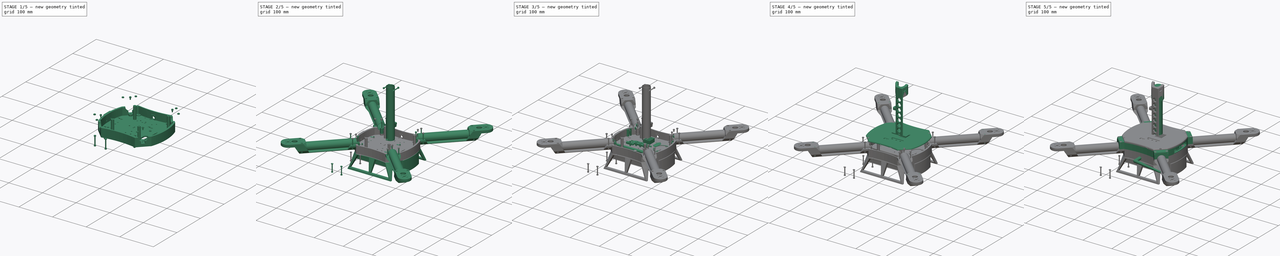
[diagram: build sequence overview — one tinted view per stage of 5, left to right]
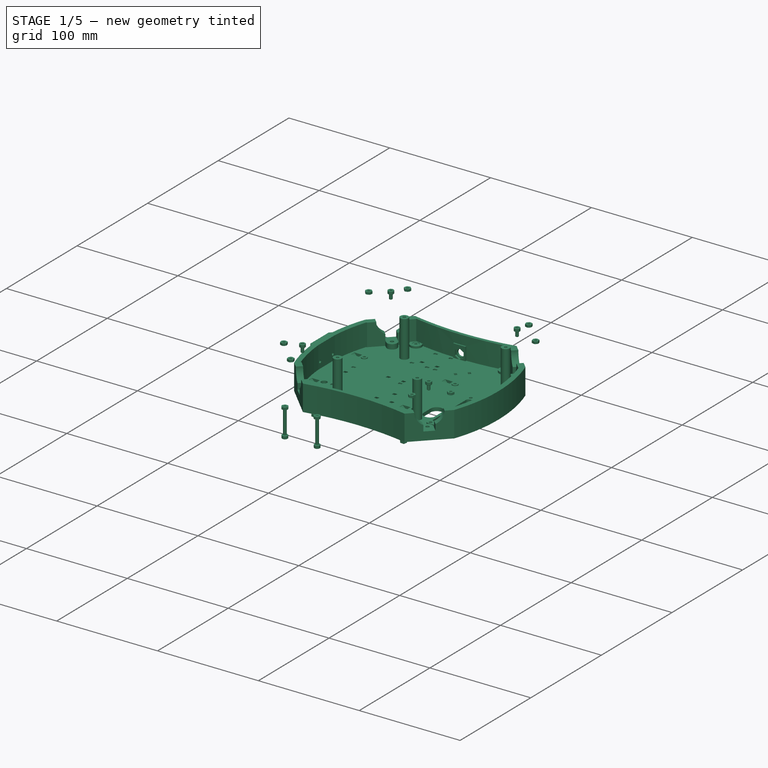
[diagram: stage 1 of 5 — iso view after this stage's code; geometry added in this stage tinted green]
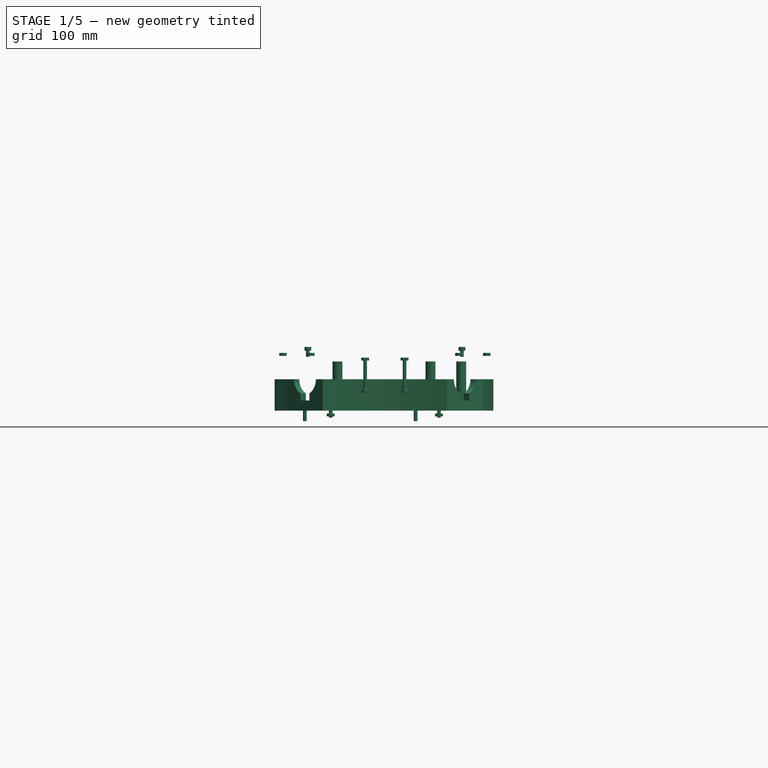
[diagram: stage 1 of 5 — front view after this stage's code; geometry added in this stage tinted green]
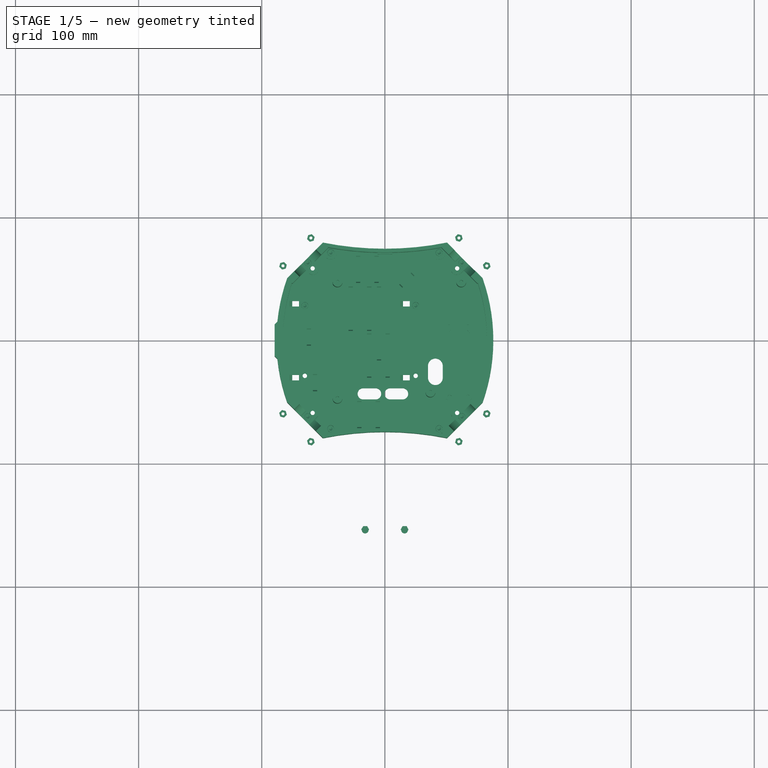
[diagram: stage 1 of 5 — top view after this stage's code; geometry added in this stage tinted green]
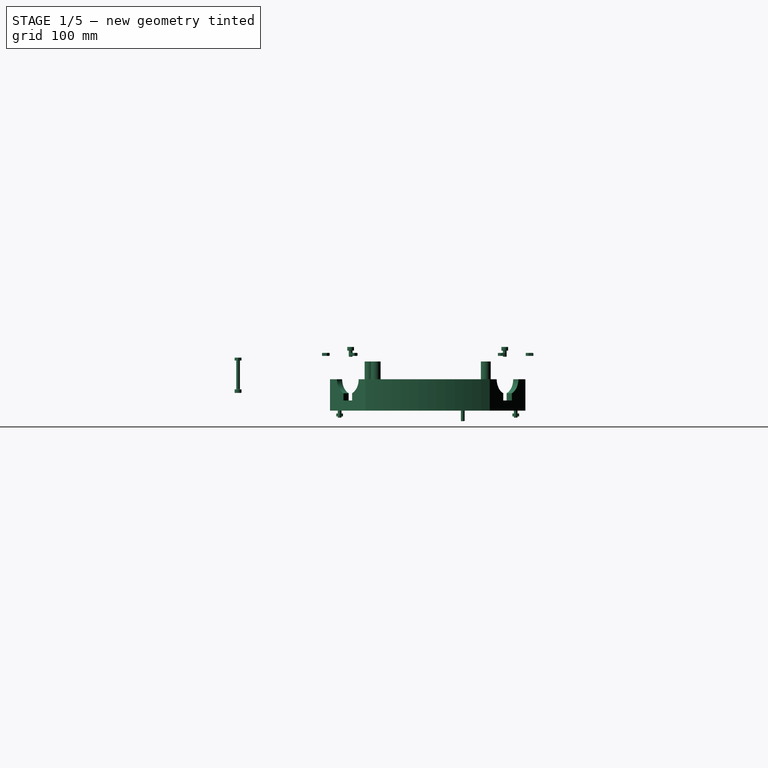
[diagram: stage 1 of 5 — right view after this stage's code; geometry added in this stage tinted green]
FCSTD DOCUMENT  (FreeCAD 0.16R6710 (Git))
Label: sto54
License: All rights reserved
LicenseURL: http://en.wikipedia.org/wiki/All_rights_reserved
objects: Sketcher::SketchObject×178, Part::Extrusion×174, Part::MultiFuse×78, Part::FeaturePython×65, Part::Cut×42, Part::Feature×30, Part::Box×16, Part::Cylinder×11, PartDesign::Pad×6, Part::Chamfer×5, Part::Loft×4, App::DocumentObjectGroup×4, Part::Cone×3, Part::Fillet×3, Part::Prism×2, Part::Revolution×2, Part::Sweep×2, Part::Sphere×1, Part::MultiCommon×1
note: 629 computed .brp shape members not serialized (recipe doc carries the construction recipe); baked Part::Feature solids carry a one-line shape summary decoded from their .brp

FEATURE [Part::FeaturePython] Screw002008  label="M3x10-Screw002"  # Fasteners workbench fastener (typed FeaturePython)
  Placement = pos=(25,28.5,-24) rot=(0,0,1;0rad)
  diameter = 4
  invert = false
  length = 3
  matchOuter = false
  offset = 0
  thread = false
  type = 15
FEATURE [Part::FeaturePython] Screw002009  label="M3x10-Screw003"  # Fasteners workbench fastener (typed FeaturePython)
  Placement = pos=(-65,28.5,-24) rot=(0,0,1;0rad)
  diameter = 4
  invert = false
  length = 3
  matchOuter = false
  offset = 0
  thread = false
  type = 15
FEATURE [Part::Feature] Array019001  label="LandingGearArray027"
  shape: bbox 152.2 x 177.1 x 58.61 mm, 114 faces, 2 solids (baked)
FEATURE [Part::FeaturePython] Screw002010  label="M3x8-Screw001"  # Fasteners workbench fastener (typed FeaturePython)
  Placement = pos=(-44,-71.5,-23.215) rot=(0,0,1;0rad)
  diameter = 4
  invert = false
  length = 2
  matchOuter = false
  offset = 0
  thread = false
  type = 15
FEATURE [Part::FeaturePython] Screw002011  label="M3x8-Screw004"  # Fasteners workbench fastener (typed FeaturePython)
  Placement = pos=(-44,71.5,-23.215) rot=(0,0,1;0rad)
  diameter = 4
  invert = false
  length = 2
  matchOuter = false
  offset = 0
  thread = false
  type = 15
FEATURE [Part::FeaturePython] Screw002012  label="M3x8-Screw002"  # Fasteners workbench fastener (typed FeaturePython)
  Placement = pos=(44,-71.5,-23.215) rot=(0,0,1;0rad)
  diameter = 4
  invert = false
  length = 2
  matchOuter = false
  offset = 0
  thread = false
  type = 15
FEATURE [Part::FeaturePython] Screw002013  label="M3x8-Screw003"  # Fasteners workbench fastener (typed FeaturePython)
  Placement = pos=(44,71.5,-23.215) rot=(0,0,1;0rad)
  diameter = 4
  invert = false
  length = 2
  matchOuter = false
  offset = 0
  thread = false
  type = 15
FEATURE [Part::MultiFuse] Fusion034004041077001008
  Shapes = -> [Screw002010,Screw002012,Screw002013,Screw002011]
FEATURE [Part::FeaturePython] Nut001005  label="M3-Nut010"  # Fasteners workbench fastener (typed FeaturePython)
  Placement = pos=(44,-71.5,28.8245) rot=(0,0,1;0rad)
  diameter = 4
  invert = false
  matchOuter = false
  offset = 0
  thread = false
  type = 1
FEATURE [Part::FeaturePython] Nut001006  label="M3-Nut011"  # Fasteners workbench fastener (typed FeaturePython)
  Placement = pos=(-44,-71.5,28.8245) rot=(0,0,1;0rad)
  diameter = 4
  invert = false
  matchOuter = false
  offset = 0
  thread = false
  type = 1
FEATURE [Part::FeaturePython] Nut001007  label="M3-Nut012"  # Fasteners workbench fastener (typed FeaturePython)
  Placement = pos=(44,71.5,28.8245) rot=(0,0,1;0rad)
  diameter = 4
  invert = false
  matchOuter = false
  offset = 0
  thread = false
  type = 1
FEATURE [Part::FeaturePython] Nut001008  label="M3-Nut013"  # Fasteners workbench fastener (typed FeaturePython)
  Placement = pos=(-44,71.5,28.8245) rot=(0,0,1;0rad)
  diameter = 4
  invert = false
  matchOuter = false
  offset = 0
  thread = false
  type = 1
FEATURE [Part::MultiFuse] Fusion034004041077001009
  Placement = pos=(0,0,-59) rot=(0,0,1;0rad)
  Shapes = -> [Nut001005,Nut001006,Nut001007,Nut001008]
FEATURE [Part::Feature] Cut009010006006006005007001  label="BodyCoverCut009010006006006005008"
  Placement = pos=(0,0,22) rot=(0,0,1;0rad)
  shape: bbox 178.7 x 158.7 x 8 mm, 176 faces (baked)
FEATURE [Part::Feature] Fillet007001  label="BatteryCoverFillet008"
  Placement = pos=(0,0,-25.5) rot=(0,0,1;0rad)
  shape: bbox 28.14 x 89.9 x 42.6 mm, 63 faces (baked)
FEATURE [Part::Feature] Fillet004001  label="LandingGearFillet005"
  Placement = pos=(0,0,0) rot=(1,0,0;1.22173rad)
  shape: bbox 152.2 x 61.4 x 17 mm, 57 faces (baked)
FEATURE [Part::Feature] Fusion034004041077001011001  label="EscPowerSqFusion034004041077001012"
  Placement = pos=(60,-17,-18) rot=(0,0,1;0rad)
  shape: bbox 23 x 63 x 33.1 mm, 1116 faces, 8 solids (baked)
FEATURE [App::DocumentObjectGroup] Group004  label="assembly"
  Group = -> [Fusion034004041014,Box001,Box002,Box004,Compound001,Fusion034004041016,Sketch017,Fusion034004041030,Revolve001,Fusion034004041077001011001]
FEATURE [Sketcher::SketchObject] Sketch306
  Placement = pos=(0,0,-22) rot=(0,0,1;0rad)
  sketch-geometry (15):
    g0: LineSegment [constr] StartX=-79.3638 StartY=50.3724 StartZ=0 EndX=-79.3638 EndY=-50.3724 EndZ=0
    g1: LineSegment StartX=-79.3638 StartY=-50.3724 StartZ=0 EndX=-50.3724 EndY=-79.3638 EndZ=0
    g2: LineSegment [constr] StartX=-50.3724 StartY=-79.3638 StartZ=0 EndX=50.3724 EndY=-79.3638 EndZ=0
    g3: LineSegment StartX=50.3724 StartY=-79.3638 StartZ=0 EndX=79.3638 EndY=-50.3724 EndZ=0
    g4: LineSegment [constr] StartX=79.3638 StartY=-50.3724 StartZ=0 EndX=79.3638 EndY=50.3724 EndZ=0
    g5: LineSegment StartX=79.3638 StartY=50.3724 StartZ=0 EndX=50.3724 EndY=79.3638 EndZ=0
    g6: LineSegment [constr] StartX=50.3724 StartY=79.3638 StartZ=0 EndX=-50.3724 EndY=79.3638 EndZ=0
    g7: LineSegment StartX=-50.3724 StartY=79.3638 StartZ=0 EndX=-79.3638 EndY=50.3724 EndZ=0
    g8: Circle [constr] CenterX=0 CenterY=0 CenterZ=0 NormalX=0 NormalY=0 NormalZ=1 Radius=94
    g9: ArcOfCircle CenterX=0 CenterY=329.364 CenterZ=0 NormalX=0 NormalY=0 NormalZ=1 Radius=255.024 StartAngle=4.51356 EndAngle=4.91122
    g10: ArcOfCircle CenterX=0 CenterY=-329.364 CenterZ=0 NormalX=0 NormalY=0 NormalZ=1 Radius=255.024 StartAngle=1.37197 EndAngle=1.76962
    g11: LineSegment [constr] StartX=0 StartY=-329.364 StartZ=0 EndX=0 EndY=-79.3638 EndZ=0
    g12: LineSegment [constr] StartX=0 StartY=329.364 StartZ=0 EndX=0 EndY=79.3638 EndZ=0
    g13: ArcOfCircle CenterX=61.9253 CenterY=0 CenterZ=0 NormalX=0 NormalY=0 NormalZ=1 Radius=150 StartAngle=2.79912 EndAngle=3.48406
    g14: ArcOfCircle CenterX=-61.9253 CenterY=0 CenterZ=0 NormalX=0 NormalY=0 NormalZ=1 Radius=150 StartAngle=5.94071 EndAngle=6.62566
  constraints (44):
    c: Coincident(g0,g1)
    c: Coincident(g1,g2)
    c: Coincident(g2,g3)
    c: Coincident(g3,g4)
    c: Coincident(g4,g5)
    c: Coincident(g5,g6)
    c: Coincident(g6,g7)
    c: Coincident(g7,g0)
    c: PointOnObject(g0,g8)
    c: PointOnObject(g1,g8)
    c: PointOnObject(g2,g8)
    c: PointOnObject(g3,g8)
    c: PointOnObject(g4,g8)
    c: PointOnObject(g5,g8)
    c: PointOnObject(g6,g8)
    c: PointOnObject(g7,g8)
    c: Coincident(g8,g-1)
    c: Horizontal(g2)
    c: Radius(g8) = 94
    c: Coincident(g9,g6)
    c: Coincident(g9,g5)
    c: Coincident(g10,g1)
    c: Coincident(g10,g2)
    c: Coincident(g11,g10)
    c: PointOnObject(g11,g2)
    c: Vertical(g11)
    c: Coincident(g12,g9)
    c: PointOnObject(g12,g6)
    c: Vertical(g12)
    c: Equal(g1,g3)
    c: Equal(g3,g5)
    c: Equal(g5,g7)
    c: Equal(g0,g2)
    c: Equal(g2,g4)
    c: Equal(g4,g6)
    c: Distance(g3) = 41
    c: Distance(g12) = 250
    c: Equal(g11,g12)
    c: Coincident(g13,g0)
    c: Coincident(g13,g0)
    c: Coincident(g14,g4)
    c: Coincident(g14,g3)
    c: Equal(g13,g14)
    c: Radius(g13) = 150
FEATURE [Part::Extrusion] Extrude136087
  Base = -> Sketch306
  Dir = (0,0,-3.5)
  Solid = true
FEATURE [Sketcher::SketchObject] Sketch307
  Placement = pos=(0,0,0) rot=(1,0,0;1.5708rad)
  sketch-geometry (4):
    g0: LineSegment StartX=20.5 StartY=-23 StartZ=0 EndX=20.5 EndY=0 EndZ=0
    g1: LineSegment StartX=20.5 StartY=0 StartZ=0 EndX=-20.5 EndY=0 EndZ=0
    g2: LineSegment StartX=-20.5 StartY=0 StartZ=0 EndX=-20.5 EndY=-23 EndZ=0
    g3: LineSegment StartX=-20.5 StartY=-23 StartZ=0 EndX=20.5 EndY=-23 EndZ=0
  constraints (12):
    c: Vertical(g0)
    c: Coincident(g0,g1)
    c: Horizontal(g1)
    c: Coincident(g1,g2)
    c: Vertical(g2)
    c: Coincident(g2,g3)
    c: Horizontal(g3)
    c: DistanceX(g2,g0) = 41
    c: DistanceY(g0,g0) = 23
    c: Symmetric(g0,g2,g-2)
    c: Coincident(g3,g0)
    c: PointOnObject(g1,g-1)
FEATURE [Part::Extrusion] Extrude136088
  Base = -> Sketch307
  Dir = (0,-11,0)
  Placement = pos=(0,-83,0) rot=(0,0,1;0rad)
  Solid = true
FEATURE [Part::FeaturePython] Array019002  # Draft array (typed FeaturePython)
  Angle = 360
  ArrayType = 1
  Axis = (0,0,1)
  Base = -> Extrude136088
  Center = (0,0,0)
  Fuse = false
  IntervalAxis = (0,0,0)
  IntervalX = (1,0,0)
  IntervalY = (0,1,0)
  IntervalZ = (0,0,0)
  NumberPolar = 4
  NumberX = 2
  NumberY = 2
  NumberZ = 1
  Placement = pos=(0,0,0) rot=(0,0,1;0.785398rad)
FEATURE [Sketcher::SketchObject] Sketch308
  Placement = pos=(0,0,0) rot=(1,0,0;1.5708rad)
  sketch-geometry (11):
    g0: LineSegment StartX=12.4995 StartY=0 StartZ=0 EndX=20.5 EndY=0 EndZ=0
    g1: LineSegment StartX=20.5 StartY=0 StartZ=0 EndX=20.5 EndY=-23 EndZ=0
    g2: LineSegment StartX=-20.5 StartY=-23 StartZ=0 EndX=-20.5 EndY=0 EndZ=0
    g3: LineSegment StartX=-20.5 StartY=0 StartZ=0 EndX=-12.4995 EndY=0 EndZ=0
    g4: LineSegment StartX=-20.5 StartY=-23 StartZ=0 EndX=-5 EndY=-23 EndZ=0
    g5: LineSegment StartX=20.5 StartY=-23 StartZ=0 EndX=5 EndY=-23 EndZ=0
    g6: LineSegment StartX=-5 StartY=-23 StartZ=0 EndX=-5 EndY=-11.3474 EndZ=0
    g7: LineSegment StartX=5 StartY=-23 StartZ=0 EndX=5 EndY=-11.3474 EndZ=0
    g8: ArcOfCircle CenterX=0 CenterY=0.109082 CenterZ=0 NormalX=0 NormalY=0 NormalZ=1 Radius=12.5 StartAngle=3.15032 EndAngle=4.30087
    g9: ArcOfCircle [constr] CenterX=0 CenterY=0.109082 CenterZ=0 NormalX=0 NormalY=0 NormalZ=1 Radius=12.5 StartAngle=3.15032 EndAngle=6.27446
    g10: ArcOfCircle CenterX=0 CenterY=0.109082 CenterZ=0 NormalX=0 NormalY=0 NormalZ=1 Radius=12.5 StartAngle=5.12391 EndAngle=6.27446
  constraints (33):
    c: Horizontal(g0)
    c: Coincident(g0,g1)
    c: Vertical(g1)
    c: Vertical(g2)
    c: Horizontal(g3)
    c: Equal(g0,g3)
    c: DistanceY(g1,g1) = 23
    c: DistanceX(g2,g1) = 41
    c: Equal(g1,g2)
    c: Symmetric(g2,g1,g-2)
    c: Coincident(g4,g2)
    c: Horizontal(g4)
    c: Coincident(g5,g1)
    c: Horizontal(g5)
    c: Symmetric(g4,g5,g-2)
    c: DistanceX(g4,g5) = 10
    c: Coincident(g6,g4)
    c: Vertical(g6)
    c: Coincident(g7,g5)
    c: Vertical(g7)
    c: Equal(g6,g7)
    c: Coincident(g8,g3)
    c: Coincident(g8,g6)
    c: Coincident(g10,g0)
    c: Coincident(g10,g7)
    c: Coincident(g3,g2)
    c: Coincident(g8,g10)
    c: Coincident(g9,g3)
    c: Coincident(g9,g0)
    c: Coincident(g8,g9)
    c: Angle(g9) = 3.12414
    c: Radius(g9) = 12.5
    c: PointOnObject(g0,g-1)
FEATURE [Part::Extrusion] Extrude136089
  Base = -> Sketch308
  Dir = (0,-6,0)
  Placement = pos=(0,-85.75,0) rot=(0,0,1;0rad)
  Solid = true
FEATURE [Part::FeaturePython] Array019003  # Draft array (typed FeaturePython)
  Angle = 360
  ArrayType = 1
  Axis = (0,0,1)
  Base = -> Extrude136089
  Center = (0,0,0)
  Fuse = false
  IntervalAxis = (0,0,0)
  IntervalX = (1,0,0)
  IntervalY = (0,1,0)
  IntervalZ = (0,0,0)
  NumberPolar = 4
  NumberX = 2
  NumberY = 2
  NumberZ = 1
  Placement = pos=(0,0,0) rot=(0,0,1;0.785398rad)
FEATURE [Sketcher::SketchObject] Sketch309
  sketch-geometry (5):
    g0: LineSegment StartX=-5 StartY=0 StartZ=0 EndX=-5 EndY=9 EndZ=0
    g1: LineSegment StartX=5 StartY=0 StartZ=0 EndX=5 EndY=9 EndZ=0
    g2: LineSegment StartX=-5 StartY=0 StartZ=0 EndX=5 EndY=0 EndZ=0
    g3: ArcOfCircle CenterX=0 CenterY=9 CenterZ=0 NormalX=0 NormalY=0 NormalZ=1 Radius=5 StartAngle=0 EndAngle=3.14159
    g4: LineSegment [constr] StartX=-5 StartY=9 StartZ=0 EndX=5 EndY=9 EndZ=0
  constraints (14):
    c: Vertical(g0)
    c: Vertical(g1)
    c: DistanceY(g1,g1) = 9
    c: Coincident(g2,g0)
    c: Coincident(g2,g1)
    c: PointOnObject(g0,g-1)
    c: Symmetric(g0,g1,g-2)
    c: DistanceX(g2,g2) = 10
    c: Coincident(g3,g1)
    c: Coincident(g3,g0)
    c: Coincident(g4,g0)
    c: Coincident(g4,g1)
    c: Horizontal(g4)
    c: PointOnObject(g3,g4)
FEATURE [Part::Extrusion] Extrude136090
  Base = -> Sketch309
  Dir = (0,0,4.75)
  Placement = pos=(0,-91.75,-22) rot=(0,0,1;0rad)
  Solid = true
FEATURE [Part::FeaturePython] Array019004  # Draft array (typed FeaturePython)
  Angle = 360
  ArrayType = 1
  Axis = (0,0,1)
  Base = -> Extrude136090
  Center = (0,0,0)
  Fuse = false
  IntervalAxis = (0,0,0)
  IntervalX = (1,0,0)
  IntervalY = (0,1,0)
  IntervalZ = (0,0,0)
  NumberPolar = 4
  NumberX = 2
  NumberY = 2
  NumberZ = 1
  Placement = pos=(0,0,0) rot=(0,0,1;0.785398rad)
FEATURE [Sketcher::SketchObject] Sketch310
  Placement = pos=(0,0,14.4) rot=(0,0,1;0rad)
  sketch-geometry (9):
    g0: Circle CenterX=62 CenterY=47.25 CenterZ=0 NormalX=0 NormalY=0 NormalZ=1 Radius=1.45
    g1: Circle CenterX=-38.5 CenterY=47.25 CenterZ=0 NormalX=0 NormalY=0 NormalZ=1 Radius=1.45
    g2: LineSegment [constr] StartX=-38.5 StartY=47.25 StartZ=0 EndX=62 EndY=47.25 EndZ=0
    g3: Circle CenterX=-38.5 CenterY=-47.25 CenterZ=0 NormalX=0 NormalY=0 NormalZ=1 Radius=1.45
    g4: LineSegment [constr] StartX=-38.5 StartY=47.25 StartZ=0 EndX=-38.5 EndY=-47.25 EndZ=0
    g5: LineSegment [constr] StartX=-38.5 StartY=-47.25 StartZ=0 EndX=62 EndY=-47.25 EndZ=0
    g6: LineSegment [constr] StartX=62 StartY=-47.25 StartZ=0 EndX=62 EndY=47.25 EndZ=0
    g7: LineSegment [constr] StartX=37 StartY=-47.25 StartZ=0 EndX=37 EndY=-42.25 EndZ=0
    g8: Circle CenterX=37 CenterY=-42.25 CenterZ=0 NormalX=0 NormalY=0 NormalZ=1 Radius=1.45
  constraints (24):
    c: Radius(g1) = 1.45
    c: Horizontal(g2)
    c: DistanceX(g2,g2) = 100.5
    c: Vertical(g4)
    c: DistanceY(g4,g4) = 94.5
    c: Horizontal(g5)
    c: Vertical(g6)
    c: PointOnObject(g7,g5)
    c: Vertical(g7)
    c: DistanceY(g7,g7) = 5
    c: Coincident(g8,g7)
    c: Equal(g3,g1)
    c: Equal(g1,g0)
    c: Equal(g0,g8)
    c: Coincident(g0,g2)
    c: DistanceX(g-1,g0) = 62
    c: Coincident(g6,g0)
    c: Coincident(g6,g5)
    c: Coincident(g4,g2)
    c: Coincident(g1,g2)
    c: Coincident(g3,g4)
    c: Coincident(g5,g3)
    c: DistanceX(g3,g7) = 75.5
    c: Symmetric(g3,g1,g-1)
FEATURE [Part::Extrusion] Extrude136091
  Base = -> Sketch310
  Dir = (0,0,-10)
  Solid = true
FEATURE [Sketcher::SketchObject] Sketch311
  Placement = pos=(0,0,14.4) rot=(0,0,1;0rad)
  sketch-geometry (9):
    g0: Circle CenterX=62 CenterY=47.25 CenterZ=0 NormalX=0 NormalY=0 NormalZ=1 Radius=4
    g1: Circle CenterX=-38.5 CenterY=47.25 CenterZ=0 NormalX=0 NormalY=0 NormalZ=1 Radius=4
    g2: LineSegment [constr] StartX=-38.5 StartY=47.25 StartZ=0 EndX=62 EndY=47.25 EndZ=0
    g3: Circle CenterX=-38.5 CenterY=-47.25 CenterZ=0 NormalX=0 NormalY=0 NormalZ=1 Radius=4
    g4: LineSegment [constr] StartX=-38.5 StartY=47.25 StartZ=0 EndX=-38.5 EndY=-47.25 EndZ=0
    g5: LineSegment [constr] StartX=-38.5 StartY=-47.25 StartZ=0 EndX=62 EndY=-47.25 EndZ=0
    g6: LineSegment [constr] StartX=62 StartY=-47.25 StartZ=0 EndX=62 EndY=47.25 EndZ=0
    g7: LineSegment [constr] StartX=37 StartY=-47.25 StartZ=0 EndX=37 EndY=-42.25 EndZ=0
    g8: Circle CenterX=37 CenterY=-42.25 CenterZ=0 NormalX=0 NormalY=0 NormalZ=1 Radius=4
  constraints (24):
    c: Radius(g1) = 4
    c: Horizontal(g2)
    c: DistanceX(g2,g2) = 100.5
    c: Vertical(g4)
    c: DistanceY(g4,g4) = 94.5
    c: Horizontal(g5)
    c: Vertical(g6)
    c: PointOnObject(g7,g5)
    c: Vertical(g7)
    c: DistanceY(g7,g7) = 5
    c: Coincident(g8,g7)
    c: Equal(g3,g1)
    c: Equal(g1,g0)
    c: Equal(g0,g8)
    c: Coincident(g0,g2)
    c: DistanceX(g-1,g0) = 62
    c: Coincident(g6,g0)
    c: Coincident(g6,g5)
    c: Coincident(g4,g2)
    c: Coincident(g1,g2)
    c: Coincident(g3,g4)
    c: Coincident(g5,g3)
    c: DistanceX(g3,g7) = 75.5
    c: Symmetric(g3,g1,g-1)
FEATURE [Part::Extrusion] Extrude136092
  Base = -> Sketch311
  Dir = (0,0,-38)
  Solid = true
FEATURE [Part::Cut] Cut009010006006006005025002
  Base = -> Extrude136092
  Tool = -> Extrude136091
FEATURE [Sketcher::SketchObject] Sketch312
  sketch-geometry (8):
    g0: LineSegment StartX=0 StartY=13 StartZ=0 EndX=0 EndY=-13 EndZ=0
    g1: LineSegment StartX=-7 StartY=-13 StartZ=0 EndX=-7 EndY=13 EndZ=0
    g2: LineSegment StartX=-7 StartY=13 StartZ=0 EndX=-3.5 EndY=16.5 EndZ=0
    g3: LineSegment StartX=-3.5 StartY=16.5 StartZ=0 EndX=0 EndY=13 EndZ=0
    g4: LineSegment StartX=-7 StartY=-13 StartZ=0 EndX=-3.5 EndY=-16.5 EndZ=0
    g5: LineSegment StartX=-3.5 StartY=-16.5 StartZ=0 EndX=0 EndY=-13 EndZ=0
    g6: LineSegment [constr] StartX=-7 StartY=13 StartZ=0 EndX=0 EndY=13 EndZ=0
    g7: LineSegment [constr] StartX=-7 StartY=-13 StartZ=0 EndX=0 EndY=-13 EndZ=0
  constraints (22):
    c: Vertical(g0)
    c: Vertical(g1)
    c: Symmetric(g1,g1,g-1)
    c: DistanceY(g1,g1) = 26
    c: DistanceX(g1,g0) = 7
    c: PointOnObject(g-1,g0)
    c: Coincident(g2,g1)
    c: Coincident(g2,g3)
    c: Coincident(g1,g4)
    c: Coincident(g4,g5)
    c: Coincident(g5,g0)
    c: Equal(g4,g5)
    c: Equal(g5,g2)
    c: Equal(g2,g3)
    c: Coincident(g3,g0)
    c: Equal(g0,g1)
    c: Coincident(g6,g1)
    c: Coincident(g6,g0)
    c: Horizontal(g6)
    c: Coincident(g7,g1)
    c: Coincident(g7,g0)
    c: Angle(g4,g1) = 2.35619
FEATURE [Part::Extrusion] Extrude136093
  Base = -> Sketch312
  Dir = (0,0,-25.5)
  Placement = pos=(-82.5,0,0) rot=(0,0,1;0rad)
  Solid = true
FEATURE [Part::Box] Box024  label="Cube021"
  Height = 13
  Length = 12
  Placement = pos=(-6,70,-22) rot=(0,0,1;0rad)
  Width = 3
FEATURE [Sketcher::SketchObject] Sketch313
  sketch-geometry (15):
    g0: LineSegment [constr] StartX=-79.3638 StartY=50.3724 StartZ=0 EndX=-79.3638 EndY=-50.3724 EndZ=0
    g1: LineSegment StartX=-79.3638 StartY=-50.3724 StartZ=0 EndX=-50.3724 EndY=-79.3638 EndZ=0
    g2: LineSegment [constr] StartX=-50.3724 StartY=-79.3638 StartZ=0 EndX=50.3724 EndY=-79.3638 EndZ=0
    g3: LineSegment StartX=50.3724 StartY=-79.3638 StartZ=0 EndX=79.3638 EndY=-50.3724 EndZ=0
    g4: LineSegment [constr] StartX=79.3638 StartY=-50.3724 StartZ=0 EndX=79.3638 EndY=50.3724 EndZ=0
    g5: LineSegment StartX=79.3638 StartY=50.3724 StartZ=0 EndX=50.3724 EndY=79.3638 EndZ=0
    g6: LineSegment [constr] StartX=50.3724 StartY=79.3638 StartZ=0 EndX=-50.3724 EndY=79.3638 EndZ=0
    g7: LineSegment StartX=-50.3724 StartY=79.3638 StartZ=0 EndX=-79.3638 EndY=50.3724 EndZ=0
    g8: Circle [constr] CenterX=0 CenterY=0 CenterZ=0 NormalX=0 NormalY=0 NormalZ=1 Radius=94
    g9: ArcOfCircle CenterX=0 CenterY=329.364 CenterZ=0 NormalX=0 NormalY=0 NormalZ=1 Radius=255.024 StartAngle=4.51356 EndAngle=4.91122
    g10: ArcOfCircle CenterX=0 CenterY=-329.364 CenterZ=0 NormalX=0 NormalY=0 NormalZ=1 Radius=255.024 StartAngle=1.37197 EndAngle=1.76962
    g11: LineSegment [constr] StartX=0 StartY=-329.364 StartZ=0 EndX=0 EndY=-79.3638 EndZ=0
    g12: LineSegment [constr] StartX=0 StartY=329.364 StartZ=0 EndX=0 EndY=79.3638 EndZ=0
    g13: ArcOfCircle CenterX=61.9253 CenterY=0 CenterZ=0 NormalX=0 NormalY=0 NormalZ=1 Radius=150 StartAngle=2.79912 EndAngle=3.48406
    g14: ArcOfCircle CenterX=-61.9253 CenterY=0 CenterZ=0 NormalX=0 NormalY=0 NormalZ=1 Radius=150 StartAngle=5.94071 EndAngle=6.62566
  constraints (44):
    c: Coincident(g0,g1)
    c: Coincident(g1,g2)
    c: Coincident(g2,g3)
    c: Coincident(g3,g4)
    c: Coincident(g4,g5)
    c: Coincident(g5,g6)
    c: Coincident(g6,g7)
    c: Coincident(g7,g0)
    c: PointOnObject(g0,g8)
    c: PointOnObject(g1,g8)
    c: PointOnObject(g2,g8)
    c: PointOnObject(g3,g8)
    c: PointOnObject(g4,g8)
    c: PointOnObject(g5,g8)
    c: PointOnObject(g6,g8)
    c: PointOnObject(g7,g8)
    c: Coincident(g8,g-1)
    c: Horizontal(g2)
    c: Radius(g8) = 94
    c: Coincident(g9,g6)
    c: Coincident(g9,g5)
    c: Coincident(g10,g1)
    c: Coincident(g10,g2)
    c: Coincident(g11,g10)
    c: PointOnObject(g11,g2)
    c: Vertical(g11)
    c: Coincident(g12,g9)
    c: PointOnObject(g12,g6)
    c: Vertical(g12)
    c: Equal(g1,g3)
    c: Equal(g3,g5)
    c: Equal(g5,g7)
    c: Equal(g0,g2)
    c: Equal(g2,g4)
    c: Equal(g4,g6)
    c: Distance(g3) = 41
    c: Distance(g12) = 250
    c: Equal(g11,g12)
    c: Coincident(g13,g0)
    c: Coincident(g13,g0)
    c: Coincident(g14,g4)
    c: Coincident(g14,g3)
    c: Equal(g13,g14)
    c: Radius(g13) = 150
FEATURE [Sketcher::SketchObject] Sketch314
  sketch-geometry (15):
    g0: LineSegment [constr] StartX=-75.5543 StartY=46.5629 StartZ=0 EndX=-75.5543 EndY=-46.5629 EndZ=0
    g1: LineSegment StartX=-75.5543 StartY=-46.5629 StartZ=0 EndX=-46.5629 EndY=-75.5543 EndZ=0
    g2: LineSegment [constr] StartX=-46.5629 StartY=-75.5543 StartZ=0 EndX=46.5629 EndY=-75.5543 EndZ=0
    g3: LineSegment StartX=46.5629 StartY=-75.5543 StartZ=0 EndX=75.5543 EndY=-46.5629 EndZ=0
    g4: LineSegment [constr] StartX=75.5543 StartY=-46.5629 StartZ=0 EndX=75.5543 EndY=46.5629 EndZ=0
    g5: LineSegment StartX=75.5543 StartY=46.5629 StartZ=0 EndX=46.5629 EndY=75.5543 EndZ=0
    g6: LineSegment [constr] StartX=46.5629 StartY=75.5543 StartZ=0 EndX=-46.5629 EndY=75.5543 EndZ=0
    g7: LineSegment StartX=-46.5629 StartY=75.5543 StartZ=0 EndX=-75.5543 EndY=46.5629 EndZ=0
    g8: Circle [constr] CenterX=0 CenterY=0 CenterZ=0 NormalX=0 NormalY=0 NormalZ=1 Radius=88.75
    g9: ArcOfCircle CenterX=0 CenterY=325.554 CenterZ=0 NormalX=0 NormalY=0 NormalZ=1 Radius=254.299 StartAngle=4.52825 EndAngle=4.89653
    g10: ArcOfCircle CenterX=0 CenterY=-325.554 CenterZ=0 NormalX=0 NormalY=0 NormalZ=1 Radius=254.299 StartAngle=1.38665 EndAngle=1.75494
    g11: LineSegment [constr] StartX=0 StartY=-325.554 StartZ=0 EndX=0 EndY=-75.5543 EndZ=0
    g12: LineSegment [constr] StartX=0 StartY=325.554 StartZ=0 EndX=0 EndY=75.5543 EndZ=0
    g13: ArcOfCircle CenterX=67.0356 CenterY=0 CenterZ=0 NormalX=0 NormalY=0 NormalZ=1 Radius=150 StartAngle=2.82596 EndAngle=3.45723
    g14: ArcOfCircle CenterX=-67.0356 CenterY=0 CenterZ=0 NormalX=0 NormalY=0 NormalZ=1 Radius=150 StartAngle=5.96755 EndAngle=6.59882
  constraints (44):
    c: Coincident(g0,g1)
    c: Coincident(g1,g2)
    c: Coincident(g2,g3)
    c: Coincident(g3,g4)
    c: Coincident(g4,g5)
    c: Coincident(g5,g6)
    c: Coincident(g6,g7)
    c: Coincident(g7,g0)
    c: PointOnObject(g0,g8)
    c: PointOnObject(g1,g8)
    c: PointOnObject(g2,g8)
    c: PointOnObject(g3,g8)
    c: PointOnObject(g4,g8)
    c: PointOnObject(g5,g8)
    c: PointOnObject(g6,g8)
    c: PointOnObject(g7,g8)
    c: Coincident(g8,g-1)
    c: Horizontal(g2)
    c: Radius(g8) = 88.75
    c: Coincident(g9,g6)
    c: Coincident(g9,g5)
    c: Coincident(g10,g1)
    c: Coincident(g10,g2)
    c: Coincident(g11,g10)
    c: PointOnObject(g11,g2)
    c: Vertical(g11)
    c: Coincident(g12,g9)
    c: PointOnObject(g12,g6)
    c: Vertical(g12)
    c: Equal(g1,g3)
    c: Equal(g3,g5)
    c: Equal(g5,g7)
    c: Equal(g0,g2)
    c: Equal(g2,g4)
    c: Equal(g4,g6)
    c: Distance(g3) = 41
    c: Distance(g12) = 250
    c: Equal(g11,g12)
    c: Coincident(g13,g0)
    c: Coincident(g13,g0)
    c: Coincident(g14,g4)
    c: Coincident(g14,g3)
    c: Equal(g13,g14)
    c: Radius(g13) = 150
FEATURE [Part::Extrusion] Extrude136094
  Base = -> Sketch313
  Dir = (0,0,-23)
  Solid = true
FEATURE [Part::Extrusion] Extrude136095
  Base = -> Sketch314
  Dir = (0,0,-23)
  Solid = true
FEATURE [Part::MultiFuse] Fusion034004041077001011002
  Shapes = -> [Extrude136095,Array019002]
FEATURE [Part::Cut] Cut009010006006006005025003
  Base = -> Extrude136094
  Tool = -> Fusion034004041077001011002
FEATURE [Sketcher::SketchObject] Sketch315
  sketch-geometry (1):
    g0: Circle CenterX=0 CenterY=0 CenterZ=0 NormalX=0 NormalY=0 NormalZ=1 Radius=1.75
  constraints (2):
    c: Radius(g0) = 1.75
    c: Coincident(g0,g-1)
FEATURE [Part::Extrusion] Extrude136096
  Base = -> Sketch315
  Dir = (0,0,20)
  Solid = true
FEATURE [Sketcher::SketchObject] Sketch316
  sketch-geometry (7):
    g0: LineSegment StartX=3.25 StartY=0 StartZ=0 EndX=1.625 EndY=2.81458 EndZ=0
    g1: LineSegment StartX=1.625 StartY=2.81458 StartZ=0 EndX=-1.625 EndY=2.81458 EndZ=0
    g2: LineSegment StartX=-1.625 StartY=2.81458 StartZ=0 EndX=-3.25 EndY=0 EndZ=0
    g3: LineSegment StartX=-3.25 StartY=0 StartZ=0 EndX=-1.625 EndY=-2.81458 EndZ=0
    g4: LineSegment StartX=-1.625 StartY=-2.81458 StartZ=0 EndX=1.625 EndY=-2.81458 EndZ=0
    g5: LineSegment StartX=1.625 StartY=-2.81458 StartZ=0 EndX=3.25 EndY=0 EndZ=0
    g6: Circle [constr] CenterX=0 CenterY=0 CenterZ=0 NormalX=0 NormalY=0 NormalZ=1 Radius=3.25
  constraints (16):
    c: Coincident(g0,g1)
    c: Coincident(g1,g2)
    c: Coincident(g2,g3)
    c: Coincident(g3,g4)
    c: Coincident(g4,g5)
    c: Coincident(g5,g0)
    c: Equal(g0, g1-g5) x5
    c: PointOnObject(g0,g6)
    c: PointOnObject(g1,g6)
    c: PointOnObject(g2,g6)
    c: PointOnObject(g3,g6)
    c: PointOnObject(g4,g6)
    c: PointOnObject(g5,g6)
    c: Radius(g6) = 3.25
    c: Coincident(g6,g-1)
    c: Horizontal(g1)
FEATURE [Part::Extrusion] Extrude136097
  Base = -> Sketch316
  Dir = (0,0,7)
  Solid = true
FEATURE [Sketcher::SketchObject] Sketch318
  sketch-geometry (8):
    g0: Circle CenterX=7.5 CenterY=28.5 CenterZ=0 NormalX=0 NormalY=0 NormalZ=1 Radius=1.5
    g1: Circle CenterX=-7.5 CenterY=28.5 CenterZ=0 NormalX=0 NormalY=0 NormalZ=1 Radius=1.5
    g2: Circle CenterX=-7.5 CenterY=-28.5 CenterZ=0 NormalX=0 NormalY=0 NormalZ=1 Radius=1.5
    g3: Circle CenterX=7.5 CenterY=-28.5 CenterZ=0 NormalX=0 NormalY=0 NormalZ=1 Radius=1.5
    g4: LineSegment [constr] StartX=-7.5 StartY=28.5 StartZ=0 EndX=7.5 EndY=28.5 EndZ=0
    g5: LineSegment [constr] StartX=7.5 StartY=28.5 StartZ=0 EndX=7.5 EndY=-28.5 EndZ=0
    g6: LineSegment [constr] StartX=7.5 StartY=-28.5 StartZ=0 EndX=-7.5 EndY=-28.5 EndZ=0
    g7: LineSegment [constr] StartX=-7.5 StartY=-28.5 StartZ=0 EndX=-7.5 EndY=28.5 EndZ=0
  constraints (20):
    c: Radius(g1) = 1.5
    c: Equal(g1,g0)
    c: Equal(g0,g3)
    c: Equal(g3,g2)
    c: Coincident(g4,g5)
    c: Coincident(g5,g6)
    c: Coincident(g6,g7)
    c: Coincident(g7,g4)
    c: Horizontal(g4)
    c: Horizontal(g6)
    c: Vertical(g5)
    c: Vertical(g7)
    c: Symmetric(g4,g5,g-1)
    c: Symmetric(g6,g5,g-2)
    c: DistanceY(g5,g5) = 57
    c: DistanceX(g4,g4) = 15
    c: Coincident(g1,g4)
    c: Coincident(g0,g4)
    c: Coincident(g3,g5)
    c: Coincident(g2,g6)
FEATURE [Part::Extrusion] Extrude136099
  Base = -> Sketch318
  Dir = (0,0,10)
  Placement = pos=(60,-17,-24) rot=(0,0,1;0rad)
  Solid = true
FEATURE [Sketcher::SketchObject] Sketch319
  Placement = pos=(0,0,0) rot=(1,0,0;1.5708rad)
  sketch-geometry (10):
    g0: LineSegment StartX=-17.134 StartY=0 StartZ=0 EndX=17.134 EndY=0 EndZ=0
    g1: LineSegment StartX=17.134 StartY=0 StartZ=0 EndX=18 EndY=1.5 EndZ=0
    g2: LineSegment StartX=18 StartY=1.5 StartZ=0 EndX=18 EndY=3.5 EndZ=0
    g3: LineSegment StartX=18 StartY=3.5 StartZ=0 EndX=16 EndY=3.5 EndZ=0
    g4: LineSegment StartX=16 StartY=3.5 StartZ=0 EndX=14.8453 EndY=1.5 EndZ=0
    g5: LineSegment StartX=14.8453 StartY=1.5 StartZ=0 EndX=-14.8453 EndY=1.5 EndZ=0
    g6: LineSegment StartX=-14.8453 StartY=1.5 StartZ=0 EndX=-16 EndY=3.5 EndZ=0
    g7: LineSegment StartX=-16 StartY=3.5 StartZ=0 EndX=-18 EndY=3.5 EndZ=0
    g8: LineSegment StartX=-18 StartY=3.5 StartZ=0 EndX=-18 EndY=1.5 EndZ=0
    g9: LineSegment StartX=-18 StartY=1.5 StartZ=0 EndX=-17.134 EndY=0 EndZ=0
  constraints (29):
    c: Horizontal(g0)
    c: Coincident(g0,g1)
    c: Coincident(g1,g2)
    c: Coincident(g2,g3)
    c: Coincident(g3,g4)
    c: Coincident(g4,g5)
    c: Horizontal(g5)
    c: Coincident(g5,g6)
    c: Coincident(g6,g7)
    c: Coincident(g7,g8)
    c: Vertical(g8)
    c: Coincident(g8,g9)
    c: Coincident(g9,g0)
    c: Horizontal(g7)
    c: Horizontal(g3)
    c: Vertical(g2)
    c: Parallel(g9,g6)
    c: Parallel(g4,g1)
    c: Angle(g5,g6) = 2.0944
    c: Angle(g4,g5) = 2.0944
    c: Equal(g7,g3)
    c: Equal(g9,g1)
    c: DistanceY(g9,g9) = 1.5
    c: DistanceY(g8,g8) = 2
    c: DistanceX(g7,g7) = 2
    c: DistanceY(g6,g6) = 2
    c: Equal(g6,g4)
    c: DistanceX(g6,g3) = 32
    c: Symmetric(g0,g0,g-1)
FEATURE [Sketcher::SketchObject] Sketch320
  Placement = pos=(0,0,0) rot=(1,0,0;1.5708rad)
  sketch-geometry (10):
    g0: LineSegment StartX=-10.134 StartY=0 StartZ=0 EndX=10.134 EndY=0 EndZ=0
    g1: LineSegment StartX=10.134 StartY=0 StartZ=0 EndX=11 EndY=1.5 EndZ=0
    g2: LineSegment StartX=11 StartY=1.5 StartZ=0 EndX=11 EndY=3.5 EndZ=0
    g3: LineSegment StartX=11 StartY=3.5 StartZ=0 EndX=9 EndY=3.5 EndZ=0
    g4: LineSegment StartX=9 StartY=3.5 StartZ=0 EndX=7.8453 EndY=1.5 EndZ=0
    g5: LineSegment StartX=7.8453 StartY=1.5 StartZ=0 EndX=-7.8453 EndY=1.5 EndZ=0
    g6: LineSegment StartX=-7.8453 StartY=1.5 StartZ=0 EndX=-9 EndY=3.5 EndZ=0
    g7: LineSegment StartX=-9 StartY=3.5 StartZ=0 EndX=-11 EndY=3.5 EndZ=0
    g8: LineSegment StartX=-11 StartY=3.5 StartZ=0 EndX=-11 EndY=1.5 EndZ=0
    g9: LineSegment StartX=-11 StartY=1.5 StartZ=0 EndX=-10.134 EndY=0 EndZ=0
  constraints (29):
    c: Horizontal(g0)
    c: Coincident(g0,g1)
    c: Coincident(g1,g2)
    c: Coincident(g2,g3)
    c: Coincident(g3,g4)
    c: Coincident(g4,g5)
    c: Horizontal(g5)
    c: Coincident(g5,g6)
    c: Coincident(g6,g7)
    c: Coincident(g7,g8)
    c: Vertical(g8)
    c: Coincident(g8,g9)
    c: Coincident(g9,g0)
    c: Horizontal(g7)
    c: Horizontal(g3)
    c: Vertical(g2)
    c: Parallel(g9,g6)
    c: Parallel(g4,g1)
    c: Angle(g5,g6) = 2.0944
    c: Angle(g4,g5) = 2.0944
    c: Equal(g7,g3)
    c: Equal(g9,g1)
    c: DistanceY(g9,g9) = 1.5
    c: DistanceY(g8,g8) = 2
    c: DistanceX(g7,g7) = 2
    c: DistanceY(g6,g6) = 2
    c: Equal(g6,g4)
    c: DistanceX(g6,g3) = 18
    c: Symmetric(g0,g0,g-1)
FEATURE [Sketcher::SketchObject] Sketch321
  Placement = pos=(0,0,-17) rot=(0,0,1;0rad)
  sketch-geometry (13):
    g0: ArcOfCircle CenterX=41 CenterY=-30 CenterZ=0 NormalX=0 NormalY=0 NormalZ=1 Radius=6 StartAngle=3.14159 EndAngle=6.28319
    g1: ArcOfCircle CenterX=41 CenterY=-20.5 CenterZ=0 NormalX=0 NormalY=0 NormalZ=1 Radius=6 StartAngle=0 EndAngle=3.14159
    g2: LineSegment StartX=47 StartY=-30 StartZ=0 EndX=47 EndY=-20.5 EndZ=0
    g3: LineSegment StartX=35 StartY=-30 StartZ=0 EndX=35 EndY=-20.5 EndZ=0
    g4: ArcOfCircle CenterX=-17.65 CenterY=-43.15 CenterZ=0 NormalX=0 NormalY=0 NormalZ=1 Radius=4.5 StartAngle=1.5708 EndAngle=4.71239
    g5: ArcOfCircle CenterX=-7.5 CenterY=-43.15 CenterZ=0 NormalX=0 NormalY=0 NormalZ=1 Radius=4.5 StartAngle=4.71239 EndAngle=7.85398
    g6: LineSegment StartX=-17.65 StartY=-47.65 StartZ=0 EndX=-7.5 EndY=-47.65 EndZ=0
    g7: LineSegment StartX=-17.65 StartY=-38.65 StartZ=0 EndX=-7.5 EndY=-38.65 EndZ=0
    g8: ArcOfCircle CenterX=4.25 CenterY=-43.15 CenterZ=0 NormalX=0 NormalY=0 NormalZ=1 Radius=4.5 StartAngle=1.5708 EndAngle=4.71239
    g9: ArcOfCircle CenterX=14.4 CenterY=-43.15 CenterZ=0 NormalX=0 NormalY=0 NormalZ=1 Radius=4.5 StartAngle=4.71239 EndAngle=7.85398
    g10: LineSegment StartX=4.25 StartY=-47.65 StartZ=0 EndX=14.4 EndY=-47.65 EndZ=0
    g11: LineSegment StartX=4.25 StartY=-38.65 StartZ=0 EndX=14.4 EndY=-38.65 EndZ=0
    g12: LineSegment [constr] StartX=-7.5 StartY=-43.15 StartZ=0 EndX=4.25 EndY=-43.15 EndZ=0
  constraints (32):
    c: Tangent(g0,g3) = 1.5708
    c: Tangent(g0,g2) = -1.5708
    c: Tangent(g2,g1) = -1.5708
    c: Tangent(g3,g1) = 1.5708
    c: Equal(g0,g1)
    c: Radius(g0) = 6
    c: Distance(g2) = 9.5
    c: Tangent(g4,g7) = 1.5708
    c: Tangent(g4,g6) = -1.5708
    c: Tangent(g6,g5) = -1.5708
    c: Tangent(g7,g5) = 1.5708
    c: Horizontal(g6)
    c: Equal(g4,g5)
    c: Tangent(g8,g11) = 1.5708
    c: Tangent(g8,g10) = -1.5708
    c: Tangent(g10,g9) = -1.5708
    c: Tangent(g11,g9) = 1.5708
    c: Horizontal(g10)
    c: Equal(g8,g9)
    c: Equal(g4,g8)
    c: Coincident(g12,g5)
    c: Coincident(g12,g8)
    c: Horizontal(g12)
    c: Equal(g6,g10)
    c: Radius(g4) = 4.5
    c: DistanceY(g5,g-1) = 43.15
    c: DistanceX(g5,g-1) = 7.5
    c: DistanceX(g12,g12) = 11.75
    c: DistanceX(g8,g9) = 10.15
    c: DistanceX(g-1,g0) = 41
    c: DistanceY(g0,g-1) = 30
    c: Vertical(g2)
FEATURE [Sketcher::SketchObject] Sketch322
  Placement = pos=(0,0,-22) rot=(0,0,1;0rad)
  sketch-geometry (32):
    g0: LineSegment [constr] StartX=-65 StartY=28.5 StartZ=0 EndX=25 EndY=28.5 EndZ=0
    g1: LineSegment [constr] StartX=25 StartY=28.5 StartZ=0 EndX=25 EndY=-28.5 EndZ=0
    g2: LineSegment [constr] StartX=25 StartY=-28.5 StartZ=0 EndX=-65 EndY=-28.5 EndZ=0
    g3: LineSegment [constr] StartX=-65 StartY=-28.5 StartZ=0 EndX=-65 EndY=28.5 EndZ=0
    g4: LineSegment [constr] StartX=-62.5318 StartY=29.925 StartZ=0 EndX=-65 EndY=31.35 EndZ=0
    g5: LineSegment [constr] StartX=-65 StartY=31.35 StartZ=0 EndX=-67.4682 EndY=29.925 EndZ=0
    g6: LineSegment [constr] StartX=-67.4682 StartY=29.925 StartZ=0 EndX=-67.4682 EndY=27.075 EndZ=0
    g7: LineSegment [constr] StartX=-67.4682 StartY=27.075 StartZ=0 EndX=-65 EndY=25.65 EndZ=0
    g8: LineSegment [constr] StartX=-65 StartY=25.65 StartZ=0 EndX=-62.5318 EndY=27.075 EndZ=0
    g9: LineSegment [constr] StartX=-62.5318 StartY=27.075 StartZ=0 EndX=-62.5318 EndY=29.925 EndZ=0
    g10: Circle CenterX=-65 CenterY=28.5 CenterZ=0 NormalX=0 NormalY=0 NormalZ=1 Radius=2.85
    g11: LineSegment [constr] StartX=27.4682 StartY=29.925 StartZ=0 EndX=25 EndY=31.35 EndZ=0
    g12: LineSegment [constr] StartX=25 StartY=31.35 StartZ=0 EndX=22.5318 EndY=29.925 EndZ=0
    g13: LineSegment [constr] StartX=22.5318 StartY=29.925 StartZ=0 EndX=22.5318 EndY=27.075 EndZ=0
    g14: LineSegment [constr] StartX=22.5318 StartY=27.075 StartZ=0 EndX=25 EndY=25.65 EndZ=0
    g15: LineSegment [constr] StartX=25 StartY=25.65 StartZ=0 EndX=27.4682 EndY=27.075 EndZ=0
    g16: LineSegment [constr] StartX=27.4682 StartY=27.075 StartZ=0 EndX=27.4682 EndY=29.925 EndZ=0
    g17: Circle CenterX=25 CenterY=28.5 CenterZ=0 NormalX=0 NormalY=0 NormalZ=1 Radius=2.85
    g18: LineSegment [constr] StartX=25 StartY=-25.65 StartZ=0 EndX=22.5318 EndY=-27.075 EndZ=0
    g19: LineSegment [constr] StartX=22.5318 StartY=-27.075 StartZ=0 EndX=22.5318 EndY=-29.925 EndZ=0
    g20: LineSegment [constr] StartX=22.5318 StartY=-29.925 StartZ=0 EndX=25 EndY=-31.35 EndZ=0
    g21: LineSegment [constr] StartX=25 StartY=-31.35 StartZ=0 EndX=27.4682 EndY=-29.925 EndZ=0
    g22: LineSegment [constr] StartX=27.4682 StartY=-29.925 StartZ=0 EndX=27.4682 EndY=-27.075 EndZ=0
    g23: LineSegment [constr] StartX=27.4682 StartY=-27.075 StartZ=0 EndX=25 EndY=-25.65 EndZ=0
    g24: Circle CenterX=25 CenterY=-28.5 CenterZ=0 NormalX=0 NormalY=0 NormalZ=1 Radius=2.85
    g25: LineSegment [constr] StartX=-65 StartY=-25.65 StartZ=0 EndX=-67.4682 EndY=-27.075 EndZ=0
    g26: LineSegment [constr] StartX=-67.4682 StartY=-27.075 StartZ=0 EndX=-67.4682 EndY=-29.925 EndZ=0
    g27: LineSegment [constr] StartX=-67.4682 StartY=-29.925 StartZ=0 EndX=-65 EndY=-31.35 EndZ=0
    g28: LineSegment [constr] StartX=-65 StartY=-31.35 StartZ=0 EndX=-62.5318 EndY=-29.925 EndZ=0
    g29: LineSegment [constr] StartX=-62.5318 StartY=-29.925 StartZ=0 EndX=-62.5318 EndY=-27.075 EndZ=0
    g30: LineSegment [constr] StartX=-62.5318 StartY=-27.075 StartZ=0 EndX=-65 EndY=-25.65 EndZ=0
    g31: Circle CenterX=-65 CenterY=-28.5 CenterZ=0 NormalX=0 NormalY=0 NormalZ=1 Radius=2.85
  constraints (76):
    c: Coincident(g0,g1)
    c: Coincident(g1,g2)
    c: Coincident(g2,g3)
    c: Coincident(g3,g0)
    c: Horizontal(g0)
    c: Horizontal(g2)
    c: Vertical(g1)
    c: Vertical(g3)
    c: Symmetric(g2,g0,g-1)
    c: DistanceY(g3,g3) = 57
    c: DistanceX(g2,g2) = 90
    c: Coincident(g4,g5)
    c: Coincident(g5,g6)
    c: Coincident(g6,g7)
    c: Coincident(g7,g8)
    c: Coincident(g8,g9)
    c: Coincident(g9,g4)
    c: Equal(g4, g5-g9) x5
    c: PointOnObject(g4,g10)
    c: PointOnObject(g5,g10)
    c: PointOnObject(g6,g10)
    c: PointOnObject(g7,g10)
    c: PointOnObject(g8,g10)
    c: PointOnObject(g9,g10)
    c: Coincident(g10,g0)
    c: Vertical(g9)
    c: Coincident(g11,g12)
    c: Coincident(g12,g13)
    c: Coincident(g13,g14)
    c: Coincident(g14,g15)
    c: Coincident(g15,g16)
    c: Coincident(g16,g11)
    c: Equal(g11, g12-g16) x5
    c: PointOnObject(g11,g17)
    c: PointOnObject(g12,g17)
    c: PointOnObject(g13,g17)
    c: PointOnObject(g14,g17)
    c: PointOnObject(g15,g17)
    c: PointOnObject(g16,g17)
    c: Coincident(g17,g0)
    c: Vertical(g16)
    c: Coincident(g18,g19)
    c: Coincident(g19,g20)
    c: Coincident(g20,g21)
    c: Coincident(g21,g22)
    c: Coincident(g22,g23)
    c: Coincident(g23,g18)
    c: Equal(g18, g19-g23) x5
    c: PointOnObject(g18,g24)
    c: PointOnObject(g19,g24)
    c: PointOnObject(g20,g24)
    c: PointOnObject(g21,g24)
    c: PointOnObject(g22,g24)
    c: PointOnObject(g23,g24)
    c: Coincident(g24,g1)
    c: Coincident(g25,g26)
    c: Coincident(g26,g27)
    c: Coincident(g27,g28)
    c: Coincident(g28,g29)
    c: Coincident(g29,g30)
    c: Coincident(g30,g25)
    c: Equal(g25, g26-g30) x5
    c: PointOnObject(g25,g31)
    c: PointOnObject(g26,g31)
    c: PointOnObject(g27,g31)
    c: PointOnObject(g28,g31)
    c: PointOnObject(g29,g31)
    c: PointOnObject(g30,g31)
    c: Coincident(g31,g2)
    c: Vertical(g29)
    c: Vertical(g22)
    c: Radius(g31) = 2.85
    c: Equal(g31,g24)
    c: Equal(g31,g17)
    c: Equal(g31,g10)
    c: DistanceX(g-1,g0) = 25
FEATURE [Part::Extrusion] Extrude136100
  Base = -> Sketch321
  Dir = (0,0,-12)
  Solid = true
FEATURE [Part::Extrusion] Extrude136101
  Base = -> Sketch322
  Dir = (0,0,-2.5)
  Solid = true
FEATURE [Sketcher::SketchObject] Sketch323
  Placement = pos=(0,0,0) rot=(0.57735,0.57735,0.57735;2.0944rad)
  sketch-geometry (8):
    g0: LineSegment [constr] StartX=-9 StartY=15.75 StartZ=0 EndX=9 EndY=15.75 EndZ=0
    g1: LineSegment [constr] StartX=9 StartY=15.75 StartZ=0 EndX=9 EndY=-15.75 EndZ=0
    g2: LineSegment [constr] StartX=9 StartY=-15.75 StartZ=0 EndX=-9 EndY=-15.75 EndZ=0
    g3: LineSegment [constr] StartX=-9 StartY=-15.75 StartZ=0 EndX=-9 EndY=15.75 EndZ=0
    g4: Circle CenterX=-9 CenterY=15.75 CenterZ=0 NormalX=0 NormalY=0 NormalZ=1 Radius=1.35
    g5: Circle CenterX=9 CenterY=15.75 CenterZ=0 NormalX=0 NormalY=0 NormalZ=1 Radius=1.35
    g6: Circle CenterX=-9 CenterY=-15.75 CenterZ=0 NormalX=0 NormalY=0 NormalZ=1 Radius=1.35
    g7: Circle CenterX=9 CenterY=-15.75 CenterZ=0 NormalX=0 NormalY=0 NormalZ=1 Radius=1.35
  constraints (20):
    c: Coincident(g0,g1)
    c: Coincident(g1,g2)
    c: Coincident(g2,g3)
    c: Coincident(g3,g0)
    c: Horizontal(g0)
    c: Horizontal(g2)
    c: Vertical(g1)
    c: Vertical(g3)
    c: DistanceX(g2,g2) = 18
    c: DistanceY(g1,g1) = 31.5
    c: Radius(g4) = 1.35
    c: Equal(g4,g5)
    c: Symmetric(g0,g0,g-2)
    c: Symmetric(g0,g2,g-1)
    c: Coincident(g5,g0)
    c: Coincident(g4,g0)
    c: Coincident(g6,g2)
    c: Coincident(g7,g1)
    c: Equal(g6,g7)
    c: Equal(g7,g4)
FEATURE [Part::Extrusion] Extrude136102
  Base = -> Sketch323
  Dir = (10,0,0)
  Placement = pos=(-88,0,0) rot=(0,0,1;0rad)
  Solid = true
FEATURE [Part::Cylinder] Cylinder018
  Angle = 360
  Height = 6
  Placement = pos=(0,0,-1) rot=(-1,0,0;1.5708rad)
  Radius = 3.5
FEATURE [Part::Prism] Prism002
  Circumradius = 5
  Height = 4
  Placement = pos=(0,-4,-1) rot=(0.57735,-0.57735,-0.57735;4.18879rad)
  Polygon = 6
FEATURE [Part::Cylinder] Cylinder019
  Angle = 360
  Height = 4
  Placement = pos=(0,2,-1) rot=(-1,0,0;1.5708rad)
  Radius = 5.5
FEATURE [Part::MultiFuse] Fusion034004041077001011006
  Placement = pos=(0,72,-16) rot=(0,0,1;0rad)
  Shapes = -> [Cylinder018,Prism002,Cylinder019]
FEATURE [Part::Extrusion] Extrude136103
  Base = -> Sketch319
  Dir = (0,3.5,0)
  Solid = true
FEATURE [Part::Extrusion] Extrude136104
  Base = -> Sketch319
  Dir = (0,3.5,0)
  Placement = pos=(0,15,0) rot=(0,0,1;0rad)
  Solid = true
FEATURE [Part::MultiFuse] Fusion034004041077001011007
  Placement = pos=(-11,26,-24.5) rot=(0,0,1;1.5708rad)
  Shapes = -> [Extrude136104,Extrude136103]
FEATURE [Part::MultiFuse] Fusion034004041077001011008
  Placement = pos=(4,-12,-24.5) rot=(0,0,1;1.5708rad)
  Shapes = -> [Extrude136104,Extrude136103]
FEATURE [Part::Extrusion] Extrude136105
  Base = -> Sketch320
  Dir = (0,3.5,0)
  Placement = pos=(0,15,0) rot=(0,0,1;0rad)
  Solid = true
FEATURE [Part::Extrusion] Extrude136106
  Base = -> Sketch320
  Dir = (0,3.5,0)
  Solid = true
FEATURE [Part::MultiFuse] Fusion034004041077001011009
  Placement = pos=(-5,58,-24.5) rot=(0,0,1;1.5708rad)
  Shapes = -> [Extrude136105,Extrude136106]
FEATURE [Sketcher::SketchObject] Sketch324
  Placement = pos=(0,0,0) rot=(1,0,0;1.5708rad)
  sketch-geometry (10):
    g0: LineSegment StartX=-6.13397 StartY=0 StartZ=0 EndX=6.13397 EndY=0 EndZ=0
    g1: LineSegment StartX=6.13397 StartY=0 StartZ=0 EndX=7 EndY=1.5 EndZ=0
    g2: LineSegment StartX=7 StartY=1.5 StartZ=0 EndX=7 EndY=3.5 EndZ=0
    g3: LineSegment StartX=7 StartY=3.5 StartZ=0 EndX=5 EndY=3.5 EndZ=0
    g4: LineSegment StartX=5 StartY=3.5 StartZ=0 EndX=3.8453 EndY=1.5 EndZ=0
    g5: LineSegment StartX=3.8453 StartY=1.5 StartZ=0 EndX=-3.8453 EndY=1.5 EndZ=0
    g6: LineSegment StartX=-3.8453 StartY=1.5 StartZ=0 EndX=-5 EndY=3.5 EndZ=0
    g7: LineSegment StartX=-5 StartY=3.5 StartZ=0 EndX=-7 EndY=3.5 EndZ=0
    g8: LineSegment StartX=-7 StartY=3.5 StartZ=0 EndX=-7 EndY=1.5 EndZ=0
    g9: LineSegment StartX=-7 StartY=1.5 StartZ=0 EndX=-6.13397 EndY=0 EndZ=0
  constraints (29):
    c: Horizontal(g0)
    c: Coincident(g0,g1)
    c: Coincident(g1,g2)
    c: Coincident(g2,g3)
    c: Coincident(g3,g4)
    c: Coincident(g4,g5)
    c: Horizontal(g5)
    c: Coincident(g5,g6)
    c: Coincident(g6,g7)
    c: Coincident(g7,g8)
    c: Vertical(g8)
    c: Coincident(g8,g9)
    c: Coincident(g9,g0)
    c: Horizontal(g7)
    c: Horizontal(g3)
    c: Vertical(g2)
    c: Parallel(g9,g6)
    c: Parallel(g4,g1)
    c: Angle(g5,g6) = 2.0944
    c: Angle(g4,g5) = 2.0944
    c: Equal(g7,g3)
    c: Equal(g9,g1)
    c: DistanceY(g9,g9) = 1.5
    c: DistanceY(g8,g8) = 2
    c: DistanceX(g7,g7) = 2
    c: DistanceY(g6,g6) = 2
    c: Equal(g6,g4)
    c: DistanceX(g6,g3) = 10
    c: Symmetric(g0,g0,g-1)
FEATURE [Part::Extrusion] Extrude136108
  Base = -> Sketch324
  Dir = (0,3.5,0)
  Placement = pos=(-60,3,-24.5) rot=(0,0,1;1.5708rad)
  Solid = true
FEATURE [Part::Extrusion] Extrude136109
  Base = -> Sketch324
  Dir = (0,3.5,0)
  Placement = pos=(-55,-34,-24.5) rot=(0,0,1;1.5708rad)
  Solid = true
FEATURE [Part::Extrusion] Extrude136111
  Base = -> Sketch324
  Dir = (0,3.5,0)
  Placement = pos=(19,48,-24.5) rot=(0,0,1;0.785398rad)
  Solid = true
FEATURE [Part::MultiFuse] Fusion034004041077001011011
  Placement = pos=(-4,-60,-24.5) rot=(0,0,1;1.5708rad)
  Shapes = -> [Extrude136105,Extrude136106]
FEATURE [Sketcher::SketchObject] Sketch325
  Placement = pos=(0,0,-20) rot=(0,0,1;0rad)
  sketch-geometry (32):
    g0: LineSegment [constr] StartX=-44 StartY=71.5 StartZ=0 EndX=44 EndY=71.5 EndZ=0
    g1: LineSegment [constr] StartX=44 StartY=71.5 StartZ=0 EndX=44 EndY=-71.5 EndZ=0
    g2: LineSegment [constr] StartX=44 StartY=-71.5 StartZ=0 EndX=-44 EndY=-71.5 EndZ=0
    g3: LineSegment [constr] StartX=-44 StartY=-71.5 StartZ=0 EndX=-44 EndY=71.5 EndZ=0
    g4: LineSegment [constr] StartX=-39.2369 StartY=74.25 StartZ=0 EndX=-44 EndY=77 EndZ=0
    g5: LineSegment [constr] StartX=-44 StartY=77 StartZ=0 EndX=-48.7631 EndY=74.25 EndZ=0
    g6: LineSegment [constr] StartX=-48.7631 StartY=74.25 StartZ=0 EndX=-48.7631 EndY=68.75 EndZ=0
    g7: LineSegment [constr] StartX=-48.7631 StartY=68.75 StartZ=0 EndX=-44 EndY=66 EndZ=0
    g8: LineSegment [constr] StartX=-44 StartY=66 StartZ=0 EndX=-39.2369 EndY=68.75 EndZ=0
    g9: LineSegment [constr] StartX=-39.2369 StartY=68.75 StartZ=0 EndX=-39.2369 EndY=74.25 EndZ=0
    g10: Circle CenterX=-44 CenterY=71.5 CenterZ=0 NormalX=0 NormalY=0 NormalZ=1 Radius=5.5
    g11: LineSegment [constr] StartX=48.7631 StartY=74.25 StartZ=0 EndX=44 EndY=77 EndZ=0
    g12: LineSegment [constr] StartX=44 StartY=77 StartZ=0 EndX=39.2369 EndY=74.25 EndZ=0
    g13: LineSegment [constr] StartX=39.2369 StartY=74.25 StartZ=0 EndX=39.2369 EndY=68.75 EndZ=0
    g14: LineSegment [constr] StartX=39.2369 StartY=68.75 StartZ=0 EndX=44 EndY=66 EndZ=0
    g15: LineSegment [constr] StartX=44 StartY=66 StartZ=0 EndX=48.7631 EndY=68.75 EndZ=0
    g16: LineSegment [constr] StartX=48.7631 StartY=68.75 StartZ=0 EndX=48.7631 EndY=74.25 EndZ=0
    g17: Circle CenterX=44 CenterY=71.5 CenterZ=0 NormalX=0 NormalY=0 NormalZ=1 Radius=5.5
    g18: LineSegment [constr] StartX=44 StartY=-66 StartZ=0 EndX=39.2369 EndY=-68.75 EndZ=0
    g19: LineSegment [constr] StartX=39.2369 StartY=-68.75 StartZ=0 EndX=39.2369 EndY=-74.25 EndZ=0
    g20: LineSegment [constr] StartX=39.2369 StartY=-74.25 StartZ=0 EndX=44 EndY=-77 EndZ=0
    g21: LineSegment [constr] StartX=44 StartY=-77 StartZ=0 EndX=48.7631 EndY=-74.25 EndZ=0
    g22: LineSegment [constr] StartX=48.7631 StartY=-74.25 StartZ=0 EndX=48.7631 EndY=-68.75 EndZ=0
    g23: LineSegment [constr] StartX=48.7631 StartY=-68.75 StartZ=0 EndX=44 EndY=-66 EndZ=0
    g24: Circle CenterX=44 CenterY=-71.5 CenterZ=0 NormalX=0 NormalY=0 NormalZ=1 Radius=5.5
    g25: LineSegment [constr] StartX=-44 StartY=-66 StartZ=0 EndX=-48.7631 EndY=-68.75 EndZ=0
    g26: LineSegment [constr] StartX=-48.7631 StartY=-68.75 StartZ=0 EndX=-48.7631 EndY=-74.25 EndZ=0
    g27: LineSegment [constr] StartX=-48.7631 StartY=-74.25 StartZ=0 EndX=-44 EndY=-77 EndZ=0
    g28: LineSegment [constr] StartX=-44 StartY=-77 StartZ=0 EndX=-39.2369 EndY=-74.25 EndZ=0
    g29: LineSegment [constr] StartX=-39.2369 StartY=-74.25 StartZ=0 EndX=-39.2369 EndY=-68.75 EndZ=0
    g30: LineSegment [constr] StartX=-39.2369 StartY=-68.75 StartZ=0 EndX=-44 EndY=-66 EndZ=0
    g31: Circle CenterX=-44 CenterY=-71.5 CenterZ=0 NormalX=0 NormalY=0 NormalZ=1 Radius=5.5
  constraints (76):
    c: Coincident(g0,g1)
    c: Coincident(g1,g2)
    c: Coincident(g2,g3)
    c: Coincident(g3,g0)
    c: Horizontal(g0)
    c: Horizontal(g2)
    c: Vertical(g1)
    c: Vertical(g3)
    c: Symmetric(g0,g0,g-2)
    c: Symmetric(g2,g0,g-1)
    c: DistanceY(g3,g3) = 143
    c: DistanceX(g2,g2) = 88
    c: Coincident(g4,g5)
    c: Coincident(g5,g6)
    c: Coincident(g6,g7)
    c: Coincident(g7,g8)
    c: Coincident(g8,g9)
    c: Coincident(g9,g4)
    c: Equal(g4, g5-g9) x5
    c: PointOnObject(g4,g10)
    c: PointOnObject(g5,g10)
    c: PointOnObject(g6,g10)
    c: PointOnObject(g7,g10)
    c: PointOnObject(g8,g10)
    c: PointOnObject(g9,g10)
    c: Coincident(g10,g0)
    c: Vertical(g9)
    c: Coincident(g11,g12)
    c: Coincident(g12,g13)
    c: Coincident(g13,g14)
    c: Coincident(g14,g15)
    c: Coincident(g15,g16)
    c: Coincident(g16,g11)
    c: Equal(g11, g12-g16) x5
    c: PointOnObject(g11,g17)
    c: PointOnObject(g12,g17)
    c: PointOnObject(g13,g17)
    c: PointOnObject(g14,g17)
    c: PointOnObject(g15,g17)
    c: PointOnObject(g16,g17)
    c: Coincident(g17,g0)
    c: Vertical(g16)
    c: Coincident(g18,g19)
    c: Coincident(g19,g20)
    c: Coincident(g20,g21)
    c: Coincident(g21,g22)
    c: Coincident(g22,g23)
    c: Coincident(g23,g18)
    c: Equal(g18, g19-g23) x5
    c: PointOnObject(g18,g24)
    c: PointOnObject(g19,g24)
    c: PointOnObject(g20,g24)
    c: PointOnObject(g21,g24)
    c: PointOnObject(g22,g24)
    c: PointOnObject(g23,g24)
    c: Coincident(g24,g1)
    c: Coincident(g25,g26)
    c: Coincident(g26,g27)
    c: Coincident(g27,g28)
    c: Coincident(g28,g29)
    c: Coincident(g29,g30)
    c: Coincident(g30,g25)
    c: Equal(g25, g26-g30) x5
    c: PointOnObject(g25,g31)
    c: PointOnObject(g26,g31)
    c: PointOnObject(g27,g31)
    c: PointOnObject(g28,g31)
    c: PointOnObject(g29,g31)
    c: PointOnObject(g30,g31)
    c: Coincident(g31,g2)
    c: Vertical(g29)
    c: Vertical(g22)
    c: Radius(g31) = 5.5
    c: Equal(g31,g24)
    c: Equal(g31,g17)
    c: Equal(g31,g10)
FEATURE [Part::Extrusion] Extrude136112
  Base = -> Sketch325
  Dir = (0,0,-2)
  Solid = true
FEATURE [Sketcher::SketchObject] Sketch326
  Placement = pos=(0,0,-20) rot=(0,0,1;0rad)
  sketch-geometry (32):
    g0: LineSegment [constr] StartX=-44 StartY=71.5 StartZ=0 EndX=44 EndY=71.5 EndZ=0
    g1: LineSegment [constr] StartX=44 StartY=71.5 StartZ=0 EndX=44 EndY=-71.5 EndZ=0
    g2: LineSegment [constr] StartX=44 StartY=-71.5 StartZ=0 EndX=-44 EndY=-71.5 EndZ=0
    g3: LineSegment [constr] StartX=-44 StartY=-71.5 StartZ=0 EndX=-44 EndY=71.5 EndZ=0
    g4: LineSegment [constr] StartX=-41.5751 StartY=72.9 StartZ=0 EndX=-44 EndY=74.3 EndZ=0
    g5: LineSegment [constr] StartX=-44 StartY=74.3 StartZ=0 EndX=-46.4249 EndY=72.9 EndZ=0
    g6: LineSegment [constr] StartX=-46.4249 StartY=72.9 StartZ=0 EndX=-46.4249 EndY=70.1 EndZ=0
    g7: LineSegment [constr] StartX=-46.4249 StartY=70.1 StartZ=0 EndX=-44 EndY=68.7 EndZ=0
    g8: LineSegment [constr] StartX=-44 StartY=68.7 StartZ=0 EndX=-41.5751 EndY=70.1 EndZ=0
    g9: LineSegment [constr] StartX=-41.5751 StartY=70.1 StartZ=0 EndX=-41.5751 EndY=72.9 EndZ=0
    g10: Circle CenterX=-44 CenterY=71.5 CenterZ=0 NormalX=0 NormalY=0 NormalZ=1 Radius=2.8
    g11: LineSegment [constr] StartX=46.4249 StartY=72.9 StartZ=0 EndX=44 EndY=74.3 EndZ=0
    g12: LineSegment [constr] StartX=44 StartY=74.3 StartZ=0 EndX=41.5751 EndY=72.9 EndZ=0
    g13: LineSegment [constr] StartX=41.5751 StartY=72.9 StartZ=0 EndX=41.5751 EndY=70.1 EndZ=0
    g14: LineSegment [constr] StartX=41.5751 StartY=70.1 StartZ=0 EndX=44 EndY=68.7 EndZ=0
    g15: LineSegment [constr] StartX=44 StartY=68.7 StartZ=0 EndX=46.4249 EndY=70.1 EndZ=0
    g16: LineSegment [constr] StartX=46.4249 StartY=70.1 StartZ=0 EndX=46.4249 EndY=72.9 EndZ=0
    g17: Circle CenterX=44 CenterY=71.5 CenterZ=0 NormalX=0 NormalY=0 NormalZ=1 Radius=2.8
    g18: LineSegment [constr] StartX=44 StartY=-68.7 StartZ=0 EndX=41.5751 EndY=-70.1 EndZ=0
    g19: LineSegment [constr] StartX=41.5751 StartY=-70.1 StartZ=0 EndX=41.5751 EndY=-72.9 EndZ=0
    g20: LineSegment [constr] StartX=41.5751 StartY=-72.9 StartZ=0 EndX=44 EndY=-74.3 EndZ=0
    g21: LineSegment [constr] StartX=44 StartY=-74.3 StartZ=0 EndX=46.4249 EndY=-72.9 EndZ=0
    g22: LineSegment [constr] StartX=46.4249 StartY=-72.9 StartZ=0 EndX=46.4249 EndY=-70.1 EndZ=0
    g23: LineSegment [constr] StartX=46.4249 StartY=-70.1 StartZ=0 EndX=44 EndY=-68.7 EndZ=0
    g24: Circle CenterX=44 CenterY=-71.5 CenterZ=0 NormalX=0 NormalY=0 NormalZ=1 Radius=2.8
    g25: LineSegment [constr] StartX=-44 StartY=-68.7 StartZ=0 EndX=-46.4249 EndY=-70.1 EndZ=0
    g26: LineSegment [constr] StartX=-46.4249 StartY=-70.1 StartZ=0 EndX=-46.4249 EndY=-72.9 EndZ=0
    g27: LineSegment [constr] StartX=-46.4249 StartY=-72.9 StartZ=0 EndX=-44 EndY=-74.3 EndZ=0
    g28: LineSegment [constr] StartX=-44 StartY=-74.3 StartZ=0 EndX=-41.5751 EndY=-72.9 EndZ=0
    g29: LineSegment [constr] StartX=-41.5751 StartY=-72.9 StartZ=0 EndX=-41.5751 EndY=-70.1 EndZ=0
    g30: LineSegment [constr] StartX=-41.5751 StartY=-70.1 StartZ=0 EndX=-44 EndY=-68.7 EndZ=0
    g31: Circle CenterX=-44 CenterY=-71.5 CenterZ=0 NormalX=0 NormalY=0 NormalZ=1 Radius=2.8
  constraints (76):
    c: Coincident(g0,g1)
    c: Coincident(g1,g2)
    c: Coincident(g2,g3)
    c: Coincident(g3,g0)
    c: Horizontal(g0)
    c: Horizontal(g2)
    c: Vertical(g1)
    c: Vertical(g3)
    c: Symmetric(g0,g0,g-2)
    c: Symmetric(g2,g0,g-1)
    c: DistanceY(g3,g3) = 143
    c: DistanceX(g2,g2) = 88
    c: Coincident(g4,g5)
    c: Coincident(g5,g6)
    c: Coincident(g6,g7)
    c: Coincident(g7,g8)
    c: Coincident(g8,g9)
    c: Coincident(g9,g4)
    c: Equal(g4, g5-g9) x5
    c: PointOnObject(g4,g10)
    c: PointOnObject(g5,g10)
    c: PointOnObject(g6,g10)
    c: PointOnObject(g7,g10)
    c: PointOnObject(g8,g10)
    c: PointOnObject(g9,g10)
    c: Coincident(g10,g0)
    c: Vertical(g9)
    c: Coincident(g11,g12)
    c: Coincident(g12,g13)
    c: Coincident(g13,g14)
    c: Coincident(g14,g15)
    c: Coincident(g15,g16)
    c: Coincident(g16,g11)
    c: Equal(g11, g12-g16) x5
    c: PointOnObject(g11,g17)
    c: PointOnObject(g12,g17)
    c: PointOnObject(g13,g17)
    c: PointOnObject(g14,g17)
    c: PointOnObject(g15,g17)
    c: PointOnObject(g16,g17)
    c: Coincident(g17,g0)
    c: Vertical(g16)
    c: Coincident(g18,g19)
    c: Coincident(g19,g20)
    c: Coincident(g20,g21)
    c: Coincident(g21,g22)
    c: Coincident(g22,g23)
    c: Coincident(g23,g18)
    c: Equal(g18, g19-g23) x5
    c: PointOnObject(g18,g24)
    c: PointOnObject(g19,g24)
    c: PointOnObject(g20,g24)
    c: PointOnObject(g21,g24)
    c: PointOnObject(g22,g24)
    c: PointOnObject(g23,g24)
    c: Coincident(g24,g1)
    c: Coincident(g25,g26)
    c: Coincident(g26,g27)
    c: Coincident(g27,g28)
    c: Coincident(g28,g29)
    c: Coincident(g29,g30)
    c: Coincident(g30,g25)
    c: Equal(g25, g26-g30) x5
    c: PointOnObject(g25,g31)
    c: PointOnObject(g26,g31)
    c: PointOnObject(g27,g31)
    c: PointOnObject(g28,g31)
    c: PointOnObject(g29,g31)
    c: PointOnObject(g30,g31)
    c: Coincident(g31,g2)
    c: Vertical(g29)
    c: Vertical(g22)
    c: Radius(g31) = 2.8
    c: Equal(g31,g24)
    c: Equal(g31,g17)
    c: Equal(g31,g10)
FEATURE [Part::Extrusion] Extrude136113
  Base = -> Sketch326
  Dir = (0,0,-3.5)
  Solid = true
FEATURE [Sketcher::SketchObject] Sketch327
  Placement = pos=(0,0,-20) rot=(0,0,1;0rad)
  sketch-geometry (32):
    g0: LineSegment [constr] StartX=-44 StartY=71.5 StartZ=0 EndX=44 EndY=71.5 EndZ=0
    g1: LineSegment [constr] StartX=44 StartY=71.5 StartZ=0 EndX=44 EndY=-71.5 EndZ=0
    g2: LineSegment [constr] StartX=44 StartY=-71.5 StartZ=0 EndX=-44 EndY=-71.5 EndZ=0
    g3: LineSegment [constr] StartX=-44 StartY=-71.5 StartZ=0 EndX=-44 EndY=71.5 EndZ=0
    g4: LineSegment [constr] StartX=-41.4019 StartY=73 StartZ=0 EndX=-44 EndY=74.5 EndZ=0
    g5: LineSegment [constr] StartX=-44 StartY=74.5 StartZ=0 EndX=-46.5981 EndY=73 EndZ=0
    g6: LineSegment [constr] StartX=-46.5981 StartY=73 StartZ=0 EndX=-46.5981 EndY=70 EndZ=0
    g7: LineSegment [constr] StartX=-46.5981 StartY=70 StartZ=0 EndX=-44 EndY=68.5 EndZ=0
    g8: LineSegment [constr] StartX=-44 StartY=68.5 StartZ=0 EndX=-41.4019 EndY=70 EndZ=0
    g9: LineSegment [constr] StartX=-41.4019 StartY=70 StartZ=0 EndX=-41.4019 EndY=73 EndZ=0
    g10: Circle CenterX=-44 CenterY=71.5 CenterZ=0 NormalX=0 NormalY=0 NormalZ=1 Radius=3
    g11: LineSegment [constr] StartX=46.5981 StartY=73 StartZ=0 EndX=44 EndY=74.5 EndZ=0
    g12: LineSegment [constr] StartX=44 StartY=74.5 StartZ=0 EndX=41.4019 EndY=73 EndZ=0
    g13: LineSegment [constr] StartX=41.4019 StartY=73 StartZ=0 EndX=41.4019 EndY=70 EndZ=0
    g14: LineSegment [constr] StartX=41.4019 StartY=70 StartZ=0 EndX=44 EndY=68.5 EndZ=0
    g15: LineSegment [constr] StartX=44 StartY=68.5 StartZ=0 EndX=46.5981 EndY=70 EndZ=0
    g16: LineSegment [constr] StartX=46.5981 StartY=70 StartZ=0 EndX=46.5981 EndY=73 EndZ=0
    g17: Circle CenterX=44 CenterY=71.5 CenterZ=0 NormalX=0 NormalY=0 NormalZ=1 Radius=3
    g18: LineSegment [constr] StartX=44 StartY=-68.5 StartZ=0 EndX=41.4019 EndY=-70 EndZ=0
    g19: LineSegment [constr] StartX=41.4019 StartY=-70 StartZ=0 EndX=41.4019 EndY=-73 EndZ=0
    g20: LineSegment [constr] StartX=41.4019 StartY=-73 StartZ=0 EndX=44 EndY=-74.5 EndZ=0
    g21: LineSegment [constr] StartX=44 StartY=-74.5 StartZ=0 EndX=46.5981 EndY=-73 EndZ=0
    g22: LineSegment [constr] StartX=46.5981 StartY=-73 StartZ=0 EndX=46.5981 EndY=-70 EndZ=0
    g23: LineSegment [constr] StartX=46.5981 StartY=-70 StartZ=0 EndX=44 EndY=-68.5 EndZ=0
    g24: Circle CenterX=44 CenterY=-71.5 CenterZ=0 NormalX=0 NormalY=0 NormalZ=1 Radius=3
    g25: LineSegment [constr] StartX=-44 StartY=-68.5 StartZ=0 EndX=-46.5981 EndY=-70 EndZ=0
    g26: LineSegment [constr] StartX=-46.5981 StartY=-70 StartZ=0 EndX=-46.5981 EndY=-73 EndZ=0
    g27: LineSegment [constr] StartX=-46.5981 StartY=-73 StartZ=0 EndX=-44 EndY=-74.5 EndZ=0
    g28: LineSegment [constr] StartX=-44 StartY=-74.5 StartZ=0 EndX=-41.4019 EndY=-73 EndZ=0
    g29: LineSegment [constr] StartX=-41.4019 StartY=-73 StartZ=0 EndX=-41.4019 EndY=-70 EndZ=0
    g30: LineSegment [constr] StartX=-41.4019 StartY=-70 StartZ=0 EndX=-44 EndY=-68.5 EndZ=0
    g31: Circle CenterX=-44 CenterY=-71.5 CenterZ=0 NormalX=0 NormalY=0 NormalZ=1 Radius=3
  constraints (76):
    c: Coincident(g0,g1)
    c: Coincident(g1,g2)
    c: Coincident(g2,g3)
    c: Coincident(g3,g0)
    c: Horizontal(g0)
    c: Horizontal(g2)
    c: Vertical(g1)
    c: Vertical(g3)
    c: Symmetric(g0,g0,g-2)
    c: Symmetric(g2,g0,g-1)
    c: DistanceY(g3,g3) = 143
    c: DistanceX(g2,g2) = 88
    c: Coincident(g4,g5)
    c: Coincident(g5,g6)
    c: Coincident(g6,g7)
    c: Coincident(g7,g8)
    c: Coincident(g8,g9)
    c: Coincident(g9,g4)
    c: Equal(g4, g5-g9) x5
    c: PointOnObject(g4,g10)
    c: PointOnObject(g5,g10)
    c: PointOnObject(g6,g10)
    c: PointOnObject(g7,g10)
    c: PointOnObject(g8,g10)
    c: PointOnObject(g9,g10)
    c: Coincident(g10,g0)
    c: Vertical(g9)
    c: Coincident(g11,g12)
    c: Coincident(g12,g13)
    c: Coincident(g13,g14)
    c: Coincident(g14,g15)
    c: Coincident(g15,g16)
    c: Coincident(g16,g11)
    c: Equal(g11, g12-g16) x5
    c: PointOnObject(g11,g17)
    c: PointOnObject(g12,g17)
    c: PointOnObject(g13,g17)
    c: PointOnObject(g14,g17)
    c: PointOnObject(g15,g17)
    c: PointOnObject(g16,g17)
    c: Coincident(g17,g0)
    c: Vertical(g16)
    c: Coincident(g18,g19)
    c: Coincident(g19,g20)
    c: Coincident(g20,g21)
    c: Coincident(g21,g22)
    c: Coincident(g22,g23)
    c: Coincident(g23,g18)
    c: Equal(g18, g19-g23) x5
    c: PointOnObject(g18,g24)
    c: PointOnObject(g19,g24)
    c: PointOnObject(g20,g24)
    c: PointOnObject(g21,g24)
    c: PointOnObject(g22,g24)
    c: PointOnObject(g23,g24)
    c: Coincident(g24,g1)
    c: Coincident(g25,g26)
    c: Coincident(g26,g27)
    c: Coincident(g27,g28)
    c: Coincident(g28,g29)
    c: Coincident(g29,g30)
    c: Coincident(g30,g25)
    c: Equal(g25, g26-g30) x5
    c: PointOnObject(g25,g31)
    c: PointOnObject(g26,g31)
    c: PointOnObject(g27,g31)
    c: PointOnObject(g28,g31)
    c: PointOnObject(g29,g31)
    c: PointOnObject(g30,g31)
    c: Coincident(g31,g2)
    c: Vertical(g29)
    c: Vertical(g22)
    c: Radius(g31) = 3
    c: Equal(g31,g24)
    c: Equal(g31,g17)
    c: Equal(g31,g10)
FEATURE [Part::Extrusion] Extrude136114
  Base = -> Sketch327
  Dir = (0,0,-0.6)
  Solid = true
FEATURE [Sketcher::SketchObject] Sketch328
  Placement = pos=(0,0,-17) rot=(0,0,1;0rad)
  sketch-geometry (8):
    g0: LineSegment [constr] StartX=-44 StartY=71.5 StartZ=0 EndX=44 EndY=71.5 EndZ=0
    g1: LineSegment [constr] StartX=44 StartY=71.5 StartZ=0 EndX=44 EndY=-71.5 EndZ=0
    g2: LineSegment [constr] StartX=44 StartY=-71.5 StartZ=0 EndX=-44 EndY=-71.5 EndZ=0
    g3: LineSegment [constr] StartX=-44 StartY=-71.5 StartZ=0 EndX=-44 EndY=71.5 EndZ=0
    g4: Circle CenterX=-44 CenterY=71.5 CenterZ=0 NormalX=0 NormalY=0 NormalZ=1 Radius=1.8
    g5: Circle CenterX=44 CenterY=71.5 CenterZ=0 NormalX=0 NormalY=0 NormalZ=1 Radius=1.8
    g6: Circle CenterX=-44 CenterY=-71.5 CenterZ=0 NormalX=0 NormalY=0 NormalZ=1 Radius=1.8
    g7: Circle CenterX=44 CenterY=-71.5 CenterZ=0 NormalX=0 NormalY=0 NormalZ=1 Radius=1.8
  constraints (20):
    c: Coincident(g0,g1)
    c: Coincident(g1,g2)
    c: Coincident(g2,g3)
    c: Coincident(g3,g0)
    c: Horizontal(g0)
    c: Horizontal(g2)
    c: Vertical(g1)
    c: Vertical(g3)
    c: Symmetric(g0,g0,g-2)
    c: Symmetric(g2,g0,g-1)
    c: DistanceY(g3,g3) = 143
    c: DistanceX(g2,g2) = 88
    c: Coincident(g4,g0)
    c: Coincident(g5,g0)
    c: Coincident(g6,g2)
    c: Coincident(g7,g1)
    c: Radius(g6) = 1.8
    c: Equal(g6,g7)
    c: Equal(g6,g5)
    c: Equal(g6,g4)
FEATURE [Part::Extrusion] Extrude136115
  Base = -> Sketch328
  Dir = (0,0,-12)
  Solid = true
FEATURE [Part::MultiFuse] Fusion034004041077001011012
  Shapes = -> [Extrude136113,Extrude136114,Extrude136115]
FEATURE [Sketcher::SketchObject] Sketch329
  Placement = pos=(0,0,-17) rot=(0,0,1;0rad)
  sketch-geometry (8):
    g0: LineSegment [constr] StartX=-65 StartY=28.5 StartZ=0 EndX=25 EndY=28.5 EndZ=0
    g1: LineSegment [constr] StartX=25 StartY=28.5 StartZ=0 EndX=25 EndY=-28.5 EndZ=0
    g2: LineSegment [constr] StartX=25 StartY=-28.5 StartZ=0 EndX=-65 EndY=-28.5 EndZ=0
    g3: LineSegment [constr] StartX=-65 StartY=-28.5 StartZ=0 EndX=-65 EndY=28.5 EndZ=0
    g4: Circle CenterX=-65 CenterY=28.5 CenterZ=0 NormalX=0 NormalY=0 NormalZ=1 Radius=1.8
    g5: Circle CenterX=25 CenterY=28.5 CenterZ=0 NormalX=0 NormalY=0 NormalZ=1 Radius=1.8
    g6: Circle CenterX=-65 CenterY=-28.5 CenterZ=0 NormalX=0 NormalY=0 NormalZ=1 Radius=1.8
    g7: Circle CenterX=25 CenterY=-28.5 CenterZ=0 NormalX=0 NormalY=0 NormalZ=1 Radius=1.8
  constraints (20):
    c: Coincident(g0,g1)
    c: Coincident(g1,g2)
    c: Coincident(g2,g3)
    c: Coincident(g3,g0)
    c: Horizontal(g0)
    c: Horizontal(g2)
    c: Vertical(g1)
    c: Vertical(g3)
    c: Symmetric(g2,g0,g-1)
    c: DistanceY(g3,g3) = 57
    c: DistanceX(g2,g2) = 90
    c: Coincident(g4,g0)
    c: Coincident(g5,g0)
    c: Coincident(g6,g2)
    c: Coincident(g7,g1)
    c: Radius(g6) = 1.8
    c: Equal(g6,g7)
    c: Equal(g6,g5)
    c: Equal(g6,g4)
    c: DistanceX(g-1,g0) = 25
FEATURE [Part::Extrusion] Extrude136116
  Base = -> Sketch329
  Dir = (0,0,-12)
  Solid = true
FEATURE [Part::MultiFuse] Fusion034004041077001011013
  Shapes = -> [Extrude136116,Extrude136101]
FEATURE [Sketcher::SketchObject] Sketch330
  Placement = pos=(0,-2.25,0) rot=(1,0,0;1.5708rad)
  sketch-geometry (12):
    g0: LineSegment StartX=-77.5 StartY=4 StartZ=0 EndX=-69.75 EndY=4 EndZ=0
    g1: LineSegment StartX=-69.75 StartY=4 StartZ=0 EndX=-69.75 EndY=0 EndZ=0
    g2: LineSegment StartX=-69.75 StartY=0 StartZ=0 EndX=-75.25 EndY=0 EndZ=0
    g3: LineSegment StartX=-77.5 StartY=3.5 StartZ=0 EndX=-75.25 EndY=1.25 EndZ=0
    g4: LineSegment StartX=14.75 StartY=0 StartZ=0 EndX=14.75 EndY=1.25 EndZ=0
    g5: LineSegment StartX=12.5 StartY=4 StartZ=0 EndX=20.25 EndY=4 EndZ=0
    g6: LineSegment StartX=20.25 StartY=4 StartZ=0 EndX=20.25 EndY=0 EndZ=0
    g7: LineSegment StartX=20.25 StartY=0 StartZ=0 EndX=14.75 EndY=0 EndZ=0
    g8: LineSegment StartX=12.5 StartY=4 StartZ=0 EndX=12.5 EndY=3.5 EndZ=0
    g9: LineSegment StartX=12.5 StartY=3.5 StartZ=0 EndX=14.75 EndY=1.25 EndZ=0
    g10: LineSegment StartX=-75.25 StartY=0 StartZ=0 EndX=-75.25 EndY=1.25 EndZ=0
    g11: LineSegment StartX=-77.5 StartY=3.5 StartZ=0 EndX=-77.5 EndY=4 EndZ=0
  constraints (36):
    c: Horizontal(g0)
    c: Coincident(g0,g1)
    c: Vertical(g1)
    c: Coincident(g1,g2)
    c: Horizontal(g2)
    c: DistanceY(g1,g1) = 4
    c: Angle(g3,g0) = 0.785398
    c: DistanceY(g2,g3) = 1.25
    c: DistanceX(g3,g2) = 2.25
    c: Vertical(g4)
    c: Horizontal(g5)
    c: Coincident(g5,g6)
    c: Vertical(g6)
    c: Coincident(g6,g7)
    c: Coincident(g7,g4)
    c: Horizontal(g7)
    c: Equal(g1,g6) = 4
    c: Coincident(g5,g8)
    c: Vertical(g8)
    c: Coincident(g8,g9)
    c: Coincident(g9,g4)
    c: Angle(g9,g5) = 0.785398
    c: Equal(g7,g2)
    c: Coincident(g10,g2)
    c: Coincident(g10,g3)
    c: Vertical(g10)
    c: Equal(g4,g10)
    c: Equal(g5,g0)
    c: DistanceX(g1,g6) = 90
    c: PointOnObject(g1,g7)
    c: PointOnObject(g2,g-1)
    c: DistanceX(g2,g-1) = 75.25
    c: Coincident(g11,g3)
    c: Vertical(g11)
    c: Coincident(g0,g11)
    c: DistanceX(g2,g2) = 5.5
FEATURE [Part::Extrusion] Extrude136117
  Base = -> Sketch330
  Dir = (0,4.5,0)
  Placement = pos=(0,30,0) rot=(0,0,1;0rad)
  Solid = true
FEATURE [Part::Extrusion] Extrude136118
  Base = -> Sketch330
  Dir = (0,4.5,0)
  Placement = pos=(0,-30,0) rot=(0,0,1;0rad)
  Solid = true
FEATURE [Part::MultiFuse] Fusion034004041077001011014
  Placement = pos=(0,0,-25.75) rot=(0,0,1;0rad)
  Shapes = -> [Extrude136117,Extrude136118]
FEATURE [Sketcher::SketchObject] Sketch331
  Placement = pos=(0,0,0) rot=(1,0,0;1.5708rad)
  sketch-geometry (10):
    g0: LineSegment StartX=-29.134 StartY=0 StartZ=0 EndX=29.134 EndY=0 EndZ=0
    g1: LineSegment StartX=29.134 StartY=0 StartZ=0 EndX=30 EndY=1.5 EndZ=0
    g2: LineSegment StartX=30 StartY=1.5 StartZ=0 EndX=30 EndY=3.5 EndZ=0
    g3: LineSegment StartX=30 StartY=3.5 StartZ=0 EndX=28 EndY=3.5 EndZ=0
    g4: LineSegment StartX=28 StartY=3.5 StartZ=0 EndX=26.8453 EndY=1.5 EndZ=0
    g5: LineSegment StartX=26.8453 StartY=1.5 StartZ=0 EndX=-26.8453 EndY=1.5 EndZ=0
    g6: LineSegment StartX=-26.8453 StartY=1.5 StartZ=0 EndX=-28 EndY=3.5 EndZ=0
    g7: LineSegment StartX=-28 StartY=3.5 StartZ=0 EndX=-30 EndY=3.5 EndZ=0
    g8: LineSegment StartX=-30 StartY=3.5 StartZ=0 EndX=-30 EndY=1.5 EndZ=0
    g9: LineSegment StartX=-30 StartY=1.5 StartZ=0 EndX=-29.134 EndY=0 EndZ=0
  constraints (29):
    c: Horizontal(g0)
    c: Coincident(g0,g1)
    c: Coincident(g1,g2)
    c: Coincident(g2,g3)
    c: Coincident(g3,g4)
    c: Coincident(g4,g5)
    c: Horizontal(g5)
    c: Coincident(g5,g6)
    c: Coincident(g6,g7)
    c: Coincident(g7,g8)
    c: Vertical(g8)
    c: Coincident(g8,g9)
    c: Coincident(g9,g0)
    c: Horizontal(g7)
    c: Horizontal(g3)
    c: Vertical(g2)
    c: Parallel(g9,g6)
    c: Parallel(g4,g1)
    c: Angle(g5,g6) = 2.0944
    c: Angle(g4,g5) = 2.0944
    c: Equal(g7,g3)
    c: Equal(g9,g1)
    c: DistanceY(g9,g9) = 1.5
    c: DistanceY(g8,g8) = 2
    c: DistanceX(g7,g7) = 2
    c: DistanceY(g6,g6) = 2
    c: Equal(g6,g4)
    c: DistanceX(g6,g3) = 56
    c: Symmetric(g0,g0,g-1)
FEATURE [Part::Extrusion] Extrude136119
  Base = -> Sketch331
  Dir = (0,3.5,0)
  Placement = pos=(-3,14,-24.5) rot=(0,0,1;1.5708rad)
  Solid = true
FEATURE [Part::MultiFuse] Fusion034004041077001011010
  Shapes = -> [Fusion034004041077001011007,Fusion034004041077001011008,Extrude136108,Extrude136109,Fusion034004041077001011009,Extrude136111,Fusion034004041077001011011,Extrude136119]
FEATURE [Sketcher::SketchObject] Sketch332
  sketch-geometry (4):
    g0: LineSegment StartX=-1.25 StartY=10.5 StartZ=0 EndX=1.25 EndY=10.5 EndZ=0
    g1: LineSegment StartX=1.25 StartY=10.5 StartZ=0 EndX=1.25 EndY=-10.5 EndZ=0
    g2: LineSegment StartX=1.25 StartY=-10.5 StartZ=0 EndX=-1.25 EndY=-10.5 EndZ=0
    g3: LineSegment StartX=-1.25 StartY=-10.5 StartZ=0 EndX=-1.25 EndY=10.5 EndZ=0
  constraints (12):
    c: Coincident(g0,g1)
    c: Coincident(g1,g2)
    c: Coincident(g2,g3)
    c: Coincident(g3,g0)
    c: Horizontal(g0)
    c: Horizontal(g2)
    c: Vertical(g1)
    c: Vertical(g3)
    c: Symmetric(g1,g0,g-1)
    c: Symmetric(g0,g0,g-2)
    c: DistanceY(g1,g1) = 21
    c: DistanceX(g0,g0) = 2.5
FEATURE [Part::Extrusion] Extrude136120
  Base = -> Sketch332
  Dir = (0,0,3)
  Solid = true
FEATURE [Part::Chamfer] Chamfer004
  Base = -> Extrude136120
  Edges = 2 edges r=1.2: [Edge7,Edge12]
  Placement = pos=(85,0,-25.5) rot=(0,0,1;0rad)
FEATURE [Sketcher::SketchObject] Sketch333
  sketch-geometry (7):
    g0: LineSegment StartX=3.5 StartY=0 StartZ=0 EndX=1.75 EndY=3.03109 EndZ=0
    g1: LineSegment StartX=1.75 StartY=3.03109 StartZ=0 EndX=-1.75 EndY=3.03109 EndZ=0
    g2: LineSegment StartX=-1.75 StartY=3.03109 StartZ=0 EndX=-3.5 EndY=0 EndZ=0
    g3: LineSegment StartX=-3.5 StartY=0 StartZ=0 EndX=-1.75 EndY=-3.03109 EndZ=0
    g4: LineSegment StartX=-1.75 StartY=-3.03109 StartZ=0 EndX=1.75 EndY=-3.03109 EndZ=0
    g5: LineSegment StartX=1.75 StartY=-3.03109 StartZ=0 EndX=3.5 EndY=0 EndZ=0
    g6: Circle [constr] CenterX=0 CenterY=0 CenterZ=0 NormalX=0 NormalY=0 NormalZ=1 Radius=3.5
  constraints (16):
    c: Coincident(g0,g1)
    c: Coincident(g1,g2)
    c: Coincident(g2,g3)
    c: Coincident(g3,g4)
    c: Coincident(g4,g5)
    c: Coincident(g5,g0)
    c: Equal(g0, g1-g5) x5
    c: PointOnObject(g0,g6)
    c: PointOnObject(g1,g6)
    c: PointOnObject(g2,g6)
    c: PointOnObject(g3,g6)
    c: PointOnObject(g4,g6)
    c: PointOnObject(g5,g6)
    c: Radius(g6) = 3.5
    c: Coincident(g6,g-1)
    c: Horizontal(g1)
FEATURE [Part::Extrusion] Extrude136121
  Base = -> Sketch333
  Dir = (0,0,2)
  Solid = true
FEATURE [Part::MultiFuse] Fusion034004041077001011004
  Placement = pos=(0,-83,-26) rot=(0,0,1;0rad)
  Shapes = -> [Extrude136096,Extrude136097,Extrude136121]
FEATURE [Part::FeaturePython] Array019005  # Draft array (typed FeaturePython)
  Angle = 360
  ArrayType = 1
  Axis = (0,0,1)
  Base = -> Fusion034004041077001011004
  Center = (0,0,0)
  Fuse = false
  IntervalAxis = (0,0,0)
  IntervalX = (1,0,0)
  IntervalY = (0,1,0)
  IntervalZ = (0,0,0)
  NumberPolar = 4
  NumberX = 2
  NumberY = 2
  NumberZ = 1
  Placement = pos=(0,0,0) rot=(0,0,1;0.785398rad)
FEATURE [Sketcher::SketchObject] Sketch334
  sketch-geometry (8):
    g0: LineSegment StartX=-8.5 StartY=31 StartZ=0 EndX=8.5 EndY=31 EndZ=0
    g1: LineSegment StartX=11 StartY=28.5 StartZ=0 EndX=11 EndY=-28.5 EndZ=0
    g2: LineSegment StartX=8.5 StartY=-31 StartZ=0 EndX=-8.5 EndY=-31 EndZ=0
    g3: LineSegment StartX=-11 StartY=-28.5 StartZ=0 EndX=-11 EndY=28.5 EndZ=0
    g4: ArcOfCircle CenterX=-8.5 CenterY=28.5 CenterZ=0 NormalX=0 NormalY=0 NormalZ=1 Radius=2.5 StartAngle=1.5708 EndAngle=3.14159
    g5: ArcOfCircle CenterX=8.5 CenterY=28.5 CenterZ=0 NormalX=0 NormalY=0 NormalZ=1 Radius=2.5 StartAngle=0 EndAngle=1.5708
    g6: ArcOfCircle CenterX=8.5 CenterY=-28.5 CenterZ=0 NormalX=0 NormalY=0 NormalZ=1 Radius=2.5 StartAngle=4.71239 EndAngle=6.28319
    g7: ArcOfCircle CenterX=-8.5 CenterY=-28.5 CenterZ=0 NormalX=0 NormalY=0 NormalZ=1 Radius=2.5 StartAngle=3.14159 EndAngle=4.71239
  constraints (20):
    c: Horizontal(g0)
    c: Horizontal(g2)
    c: Vertical(g1)
    c: Vertical(g3)
    c: Tangent(g3,g4) = 1.5708
    c: Tangent(g0,g4) = 1.5708
    c: Tangent(g0,g5) = 1.5708
    c: Tangent(g1,g5) = 1.5708
    c: Tangent(g2,g6) = 1.5708
    c: Tangent(g1,g6) = 1.5708
    c: Tangent(g2,g7) = 1.5708
    c: Tangent(g3,g7) = 1.5708
    c: Radius(g7) = 2.5
    c: Equal(g7,g6)
    c: Equal(g7,g5)
    c: Equal(g7,g4)
    c: Symmetric(g2,g2,g-2)
    c: Symmetric(g1,g1,g-1)
    c: DistanceY(g2,g0) = 62
    c: DistanceX(g3,g1) = 22
FEATURE [Part::Extrusion] Extrude136122
  Base = -> Sketch334
  Dir = (0,0,3)
  Placement = pos=(60,-17,-23) rot=(0,0,1;0rad)
  Solid = true
FEATURE [Part::MultiFuse] Fusion034004041077001011003
  Shapes = -> [Extrude136087,Cut009010006006006005025003,Array019003,Cut009010006006006005025002,Box024,Array019004,Extrude136093,Extrude136112,Extrude136122]
FEATURE [Sketcher::SketchObject] Sketch335
  sketch-geometry (8):
    g0: LineSegment StartX=-6 StartY=25.5 StartZ=0 EndX=6 EndY=25.5 EndZ=0
    g1: LineSegment StartX=8.5 StartY=23 StartZ=0 EndX=8.5 EndY=-23 EndZ=0
    g2: LineSegment StartX=6 StartY=-25.5 StartZ=0 EndX=-6 EndY=-25.5 EndZ=0
    g3: LineSegment StartX=-8.5 StartY=-23 StartZ=0 EndX=-8.5 EndY=23 EndZ=0
    g4: ArcOfCircle CenterX=-6 CenterY=23 CenterZ=0 NormalX=0 NormalY=0 NormalZ=1 Radius=2.5 StartAngle=1.5708 EndAngle=3.14159
    g5: ArcOfCircle CenterX=6 CenterY=23 CenterZ=0 NormalX=0 NormalY=0 NormalZ=1 Radius=2.5 StartAngle=0 EndAngle=1.5708
    g6: ArcOfCircle CenterX=6 CenterY=-23 CenterZ=0 NormalX=0 NormalY=0 NormalZ=1 Radius=2.5 StartAngle=4.71239 EndAngle=6.28319
    g7: ArcOfCircle CenterX=-6 CenterY=-23 CenterZ=0 NormalX=0 NormalY=0 NormalZ=1 Radius=2.5 StartAngle=3.14159 EndAngle=4.71239
  constraints (20):
    c: Horizontal(g0)
    c: Horizontal(g2)
    c: Vertical(g1)
    c: Vertical(g3)
    c: Tangent(g3,g4) = 1.5708
    c: Tangent(g0,g4) = 1.5708
    c: Tangent(g0,g5) = 1.5708
    c: Tangent(g1,g5) = 1.5708
    c: Tangent(g2,g6) = 1.5708
    c: Tangent(g1,g6) = 1.5708
    c: Tangent(g2,g7) = 1.5708
    c: Tangent(g3,g7) = 1.5708
    c: Radius(g7) = 2.5
    c: Equal(g7,g6)
    c: Equal(g7,g5)
    c: Equal(g7,g4)
    c: Symmetric(g2,g2,g-2)
    c: Symmetric(g1,g1,g-1)
    c: DistanceY(g2,g0) = 51
    c: DistanceX(g3,g1) = 17
FEATURE [Part::Extrusion] Extrude136123
  Base = -> Sketch335
  Dir = (0,0,4)
  Placement = pos=(60,-17,-24) rot=(0,0,1;0rad)
  Solid = true
FEATURE [Part::MultiFuse] Fusion034004041077001011005
  Shapes = -> [Array019005,Extrude136099,Extrude136100,Extrude136102,Fusion034004041077001011006,Fusion034004041077001011010,Fusion034004041077001011012,Fusion034004041077001011013,Fusion034004041077001011014,Chamfer004,Extrude136123]
FEATURE [Part::Cut] Cut009010006006006005025004  label="BodyBottomSqPowerCut003004006"
  Base = -> Fusion034004041077001011003
  Tool = -> Fusion034004041077001011005
FEATURE [Part::Feature] Cut009010006006006005025004001  label="BodyBottomSqPowerCut003004007"
  shape: bbox 177.6 x 158.7 x 39.9 mm, 463 faces (baked)
FEATURE [Part::FeaturePython] Nut001009  label="M3-Nut014"  # Fasteners workbench fastener (typed FeaturePython)
  Placement = pos=(82.7315,-60.1041,19) rot=(0,0,1;2.35619rad)
  diameter = 4
  invert = false
  matchOuter = false
  offset = 0
  thread = false
  type = 1
FEATURE [Part::FeaturePython] Nut001010  label="M3-Nut015"  # Fasteners workbench fastener (typed FeaturePython)
  Placement = pos=(60.1041,-82.7315,19) rot=(0,0,1;2.35619rad)
  diameter = 4
  invert = false
  matchOuter = false
  offset = 0
  thread = false
  type = 1
FEATURE [Part::MultiFuse] Fusion034004041077001011015
  Shapes = -> [Nut001009,Nut001010]
FEATURE [Part::FeaturePython] Array019006  # Draft array (typed FeaturePython)
  Angle = 360
  ArrayType = 1
  Axis = (0,0,1)
  Base = -> Fusion034004041077001011015
  Center = (0,0,0)
  Fuse = false
  IntervalAxis = (0,0,0)
  IntervalX = (1,0,0)
  IntervalY = (0,1,0)
  IntervalZ = (0,0,0)
  NumberPolar = 4
  NumberX = 2
  NumberY = 2
  NumberZ = 1
FEATURE [Part::Feature] Clone001001001  label="Clone of Chamfer002"
  Placement = pos=(0,-191,0) rot=(0,0,1;0rad)
  shape: bbox 41 x 70.5 x 17.5 mm, 101 faces (baked)
FEATURE [Part::Feature] Cut009010006005001001  label="165mmWingCut009010006007"
  Placement = pos=(0,0,-17) rot=(1,0,0;1.5708rad)
  shape: bbox 41 x 183.9 x 16.89 mm, 113 faces (baked)
FEATURE [Part::Feature] Cut009010006006006005025004002  label="165mmTubeCut009010006006006005028"
  Placement = pos=(0,0,-17) rot=(1,0,0;1.5708rad)
  shape: bbox 25 x 165 x 25 mm, 4 faces (baked)
FEATURE [Part::FeaturePython] Screw  label="M3x25-Screw004"  # Fasteners workbench fastener (typed FeaturePython)
  Placement = pos=(16,-154,-8.1) rot=(1,0,0;3.14159rad)
  diameter = 4
  invert = false
  length = 8
  matchOuter = false
  offset = 0
  thread = false
  type = 15
FEATURE [Part::FeaturePython] Screw002018  label="M3x25-Screw005"  # Fasteners workbench fastener (typed FeaturePython)
  Placement = pos=(-16,-154,-8.1) rot=(1,0,0;3.14159rad)
  diameter = 4
  invert = false
  length = 8
  matchOuter = false
  offset = 0
  thread = false
  type = 15
FEATURE [Part::FeaturePython] Nut001011  label="M3-Nut016"  # Fasteners workbench fastener (typed FeaturePython)
  Placement = pos=(16,-154,14.1933) rot=(0,0,1;0rad)
  diameter = 4
  invert = false
  matchOuter = false
  offset = 0
  thread = false
  type = 1
FEATURE [Part::FeaturePython] Nut001012  label="M3-Nut017"  # Fasteners workbench fastener (typed FeaturePython)
  Placement = pos=(-16,-154,14.1933) rot=(0,0,1;0rad)
  diameter = 4
  invert = false
  matchOuter = false
  offset = 0
  thread = false
  type = 1
FEATURE [Part::MultiFuse] Fusion034004041077001011016
  Placement = pos=(0,0,1) rot=(0,0,1;0rad)
  Shapes = -> [Nut001011,Nut001012]
FEATURE [Part::MultiFuse] Fusion034004041077001011017
  Shapes = -> [Screw,Screw002018]
FEATURE [App::DocumentObjectGroup] Group005  label="WingAssembly"
  Group = -> [Clone001001001,Cut009010006005001001,Cut009010006006006005025004002,Fusion034004041077001011016,Fusion034004041077001011017]
FEATURE [Part::FeaturePython] Screw002019  label="M3x5-Screw004"  # Fasteners workbench fastener (typed FeaturePython)
  Placement = pos=(-62.579,62.579,23.285) rot=(0,0,1;0rad)
  diameter = 4
  invert = false
  length = 0
  matchOuter = false
  offset = 0
  thread = false
  type = 15
FEATURE [Part::FeaturePython] Array019007  # Draft array (typed FeaturePython)
  Angle = 360
  ArrayType = 1
  Axis = (0,0,1)
  Base = -> Screw002019
  Center = (0,0,0)
  Fuse = false
  IntervalAxis = (0,0,0)
  IntervalX = (1,0,0)
  IntervalY = (0,1,0)
  IntervalZ = (0,0,0)
  NumberPolar = 4
  NumberX = 2
  NumberY = 2
  NumberZ = 1
FEATURE [App::DocumentObjectGroup] Group  label="Rendering"
  Group = -> [Cut003004004001,Cut003004006001,Array021,Array022,Array023,Array024,Array025,Array026,Fillet004002,Fusion034004041077001007,Array019001,Fusion034004041077001008,Fusion034004041077001009,Cut009010006006006005007001,Fillet007001,Fillet004001,Cut009010006006006005025004001,Group005,Array019006,Array019007]
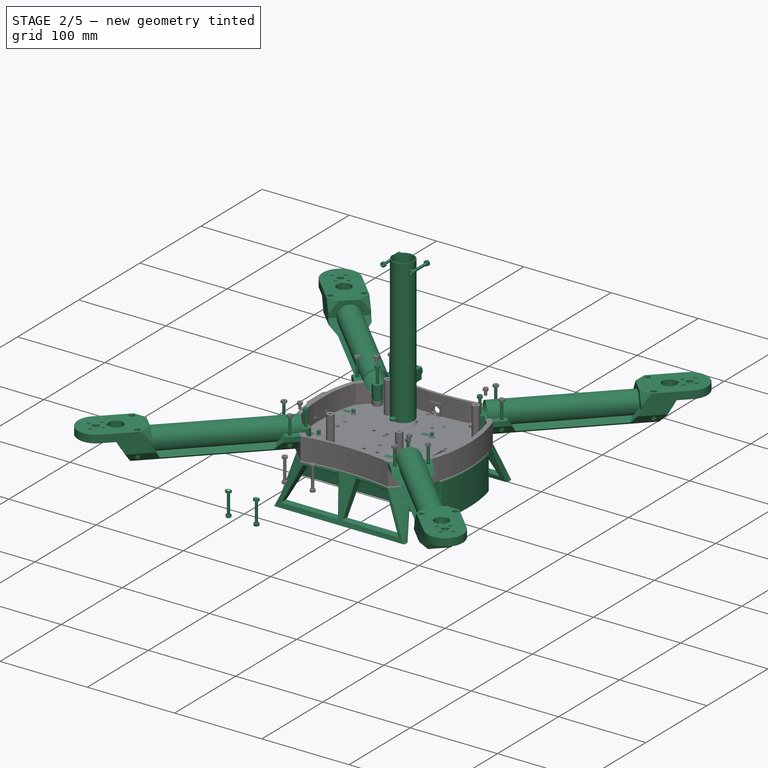
[diagram: stage 2 of 5 — iso view after this stage's code; geometry added in this stage tinted green]
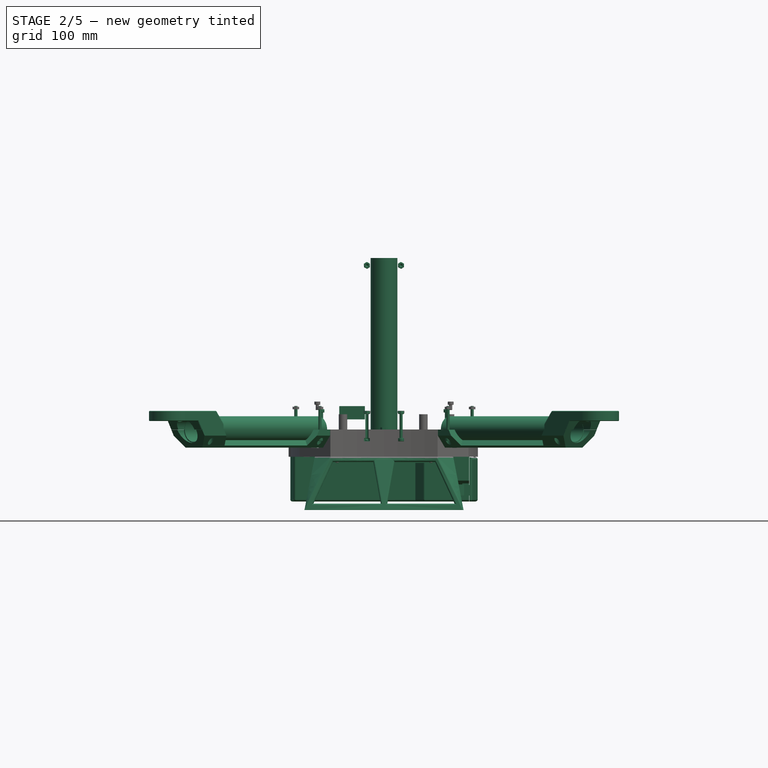
[diagram: stage 2 of 5 — front view after this stage's code; geometry added in this stage tinted green]
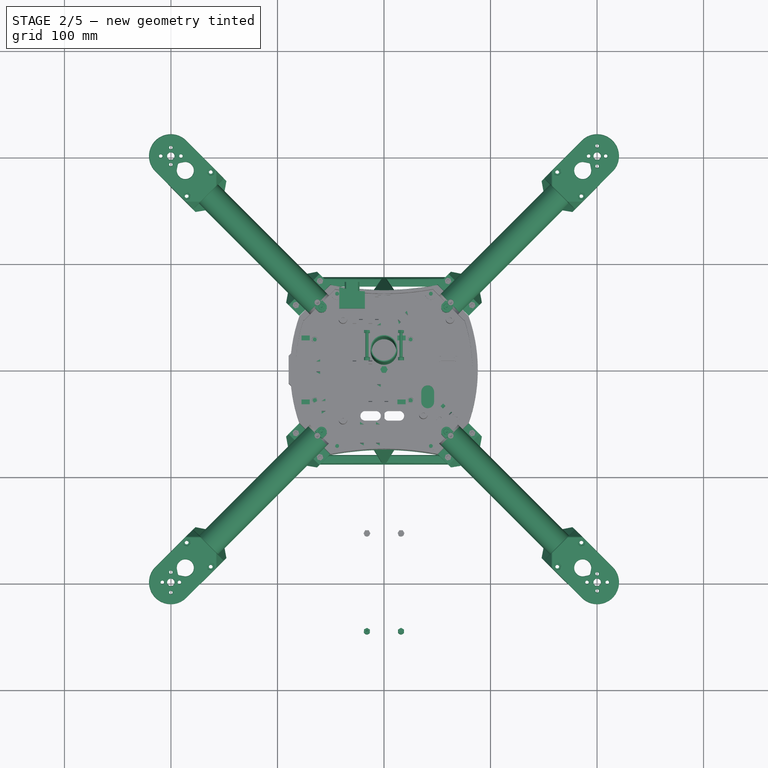
[diagram: stage 2 of 5 — top view after this stage's code; geometry added in this stage tinted green]
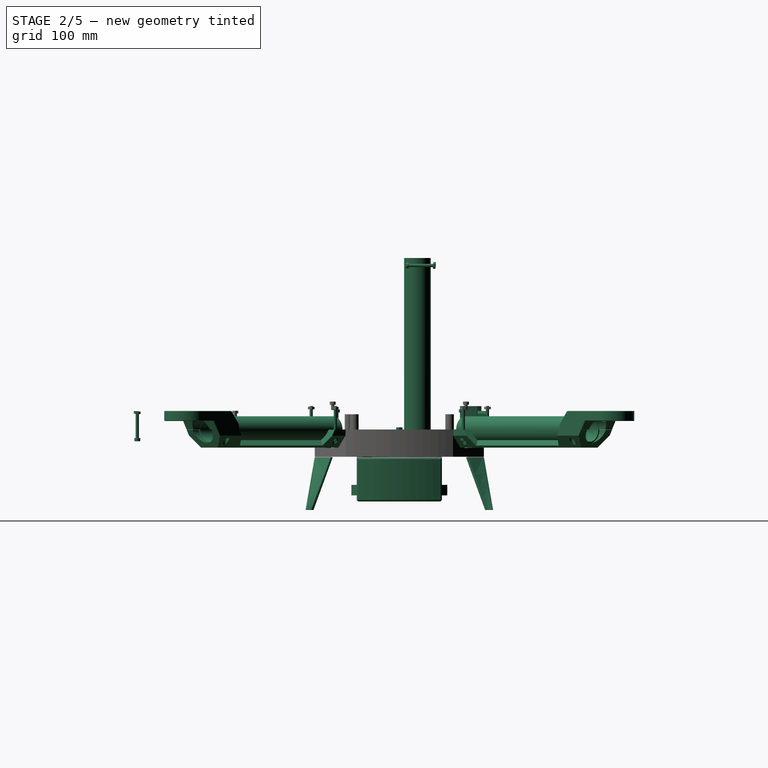
[diagram: stage 2 of 5 — right view after this stage's code; geometry added in this stage tinted green]
FEATURE [Part::Extrusion] Extrude121
  Base = -> Sketch132
  Dir = (0,0,-2.5)
  Solid = true
FEATURE [Part::Extrusion] Extrude174
  Base = -> Sketch129
  Dir = (0,3.5,0)
  Placement = pos=(0,15,0) rot=(0,0,1;0rad)
  Solid = true
FEATURE [Part::Extrusion] Extrude175
  Base = -> Sketch129
  Dir = (0,3.5,0)
  Solid = true
FEATURE [Part::Extrusion] Extrude177
  Base = -> Sketch193
  Dir = (0,3.5,0)
  Placement = pos=(-60,3,-24.5) rot=(0,0,1;1.5708rad)
  Solid = true
FEATURE [Part::Extrusion] Extrude178
  Base = -> Sketch193
  Dir = (0,3.5,0)
  Placement = pos=(-55,-34,-24.5) rot=(0,0,1;1.5708rad)
  Solid = true
FEATURE [Part::Extrusion] Extrude136040
  Base = -> Sketch193
  Dir = (0,3.5,0)
  Placement = pos=(58,-39,-24.5) rot=(0,0,-1;0.785398rad)
  Solid = true
FEATURE [Part::Extrusion] Extrude136041
  Base = -> Sketch193
  Dir = (0,3.5,0)
  Placement = pos=(19,48,-24.5) rot=(0,0,1;0.785398rad)
  Solid = true
FEATURE [Part::MultiFuse] Fusion034004041047
  Placement = pos=(-4,-60,-24.5) rot=(0,0,1;1.5708rad)
  Shapes = -> [Extrude174,Extrude175]
FEATURE [Sketcher::SketchObject] Sketch263
  Placement = pos=(0,0,-20) rot=(0,0,1;0rad)
  sketch-geometry (32):
    g0: LineSegment [constr] StartX=-44 StartY=71.5 StartZ=0 EndX=44 EndY=71.5 EndZ=0
    g1: LineSegment [constr] StartX=44 StartY=71.5 StartZ=0 EndX=44 EndY=-71.5 EndZ=0
    g2: LineSegment [constr] StartX=44 StartY=-71.5 StartZ=0 EndX=-44 EndY=-71.5 EndZ=0
    g3: LineSegment [constr] StartX=-44 StartY=-71.5 StartZ=0 EndX=-44 EndY=71.5 EndZ=0
    g4: LineSegment [constr] StartX=-39.2369 StartY=74.25 StartZ=0 EndX=-44 EndY=77 EndZ=0
    g5: LineSegment [constr] StartX=-44 StartY=77 StartZ=0 EndX=-48.7631 EndY=74.25 EndZ=0
    g6: LineSegment [constr] StartX=-48.7631 StartY=74.25 StartZ=0 EndX=-48.7631 EndY=68.75 EndZ=0
    g7: LineSegment [constr] StartX=-48.7631 StartY=68.75 StartZ=0 EndX=-44 EndY=66 EndZ=0
    g8: LineSegment [constr] StartX=-44 StartY=66 StartZ=0 EndX=-39.2369 EndY=68.75 EndZ=0
    g9: LineSegment [constr] StartX=-39.2369 StartY=68.75 StartZ=0 EndX=-39.2369 EndY=74.25 EndZ=0
    g10: Circle CenterX=-44 CenterY=71.5 CenterZ=0 NormalX=0 NormalY=0 NormalZ=1 Radius=5.5
    g11: LineSegment [constr] StartX=48.7631 StartY=74.25 StartZ=0 EndX=44 EndY=77 EndZ=0
    g12: LineSegment [constr] StartX=44 StartY=77 StartZ=0 EndX=39.2369 EndY=74.25 EndZ=0
    g13: LineSegment [constr] StartX=39.2369 StartY=74.25 StartZ=0 EndX=39.2369 EndY=68.75 EndZ=0
    g14: LineSegment [constr] StartX=39.2369 StartY=68.75 StartZ=0 EndX=44 EndY=66 EndZ=0
    g15: LineSegment [constr] StartX=44 StartY=66 StartZ=0 EndX=48.7631 EndY=68.75 EndZ=0
    g16: LineSegment [constr] StartX=48.7631 StartY=68.75 StartZ=0 EndX=48.7631 EndY=74.25 EndZ=0
    g17: Circle CenterX=44 CenterY=71.5 CenterZ=0 NormalX=0 NormalY=0 NormalZ=1 Radius=5.5
    g18: LineSegment [constr] StartX=44 StartY=-66 StartZ=0 EndX=39.2369 EndY=-68.75 EndZ=0
    g19: LineSegment [constr] StartX=39.2369 StartY=-68.75 StartZ=0 EndX=39.2369 EndY=-74.25 EndZ=0
    g20: LineSegment [constr] StartX=39.2369 StartY=-74.25 StartZ=0 EndX=44 EndY=-77 EndZ=0
    g21: LineSegment [constr] StartX=44 StartY=-77 StartZ=0 EndX=48.7631 EndY=-74.25 EndZ=0
    g22: LineSegment [constr] StartX=48.7631 StartY=-74.25 StartZ=0 EndX=48.7631 EndY=-68.75 EndZ=0
    g23: LineSegment [constr] StartX=48.7631 StartY=-68.75 StartZ=0 EndX=44 EndY=-66 EndZ=0
    g24: Circle CenterX=44 CenterY=-71.5 CenterZ=0 NormalX=0 NormalY=0 NormalZ=1 Radius=5.5
    g25: LineSegment [constr] StartX=-44 StartY=-66 StartZ=0 EndX=-48.7631 EndY=-68.75 EndZ=0
    g26: LineSegment [constr] StartX=-48.7631 StartY=-68.75 StartZ=0 EndX=-48.7631 EndY=-74.25 EndZ=0
    g27: LineSegment [constr] StartX=-48.7631 StartY=-74.25 StartZ=0 EndX=-44 EndY=-77 EndZ=0
    g28: LineSegment [constr] StartX=-44 StartY=-77 StartZ=0 EndX=-39.2369 EndY=-74.25 EndZ=0
    g29: LineSegment [constr] StartX=-39.2369 StartY=-74.25 StartZ=0 EndX=-39.2369 EndY=-68.75 EndZ=0
    g30: LineSegment [constr] StartX=-39.2369 StartY=-68.75 StartZ=0 EndX=-44 EndY=-66 EndZ=0
    g31: Circle CenterX=-44 CenterY=-71.5 CenterZ=0 NormalX=0 NormalY=0 NormalZ=1 Radius=5.5
  constraints (76):
    c: Coincident(g0,g1)
    c: Coincident(g1,g2)
    c: Coincident(g2,g3)
    c: Coincident(g3,g0)
    c: Horizontal(g0)
    c: Horizontal(g2)
    c: Vertical(g1)
    c: Vertical(g3)
    c: Symmetric(g0,g0,g-2)
    c: Symmetric(g2,g0,g-1)
    c: DistanceY(g3,g3) = 143
    c: DistanceX(g2,g2) = 88
    c: Coincident(g4,g5)
    c: Coincident(g5,g6)
    c: Coincident(g6,g7)
    c: Coincident(g7,g8)
    c: Coincident(g8,g9)
    c: Coincident(g9,g4)
    c: Equal(g4, g5-g9) x5
    c: PointOnObject(g4,g10)
    c: PointOnObject(g5,g10)
    c: PointOnObject(g6,g10)
    c: PointOnObject(g7,g10)
    c: PointOnObject(g8,g10)
    c: PointOnObject(g9,g10)
    c: Coincident(g10,g0)
    c: Vertical(g9)
    c: Coincident(g11,g12)
    c: Coincident(g12,g13)
    c: Coincident(g13,g14)
    c: Coincident(g14,g15)
    c: Coincident(g15,g16)
    c: Coincident(g16,g11)
    c: Equal(g11, g12-g16) x5
    c: PointOnObject(g11,g17)
    c: PointOnObject(g12,g17)
    c: PointOnObject(g13,g17)
    c: PointOnObject(g14,g17)
    c: PointOnObject(g15,g17)
    c: PointOnObject(g16,g17)
    c: Coincident(g17,g0)
    c: Vertical(g16)
    c: Coincident(g18,g19)
    c: Coincident(g19,g20)
    c: Coincident(g20,g21)
    c: Coincident(g21,g22)
    c: Coincident(g22,g23)
    c: Coincident(g23,g18)
    c: Equal(g18, g19-g23) x5
    c: PointOnObject(g18,g24)
    c: PointOnObject(g19,g24)
    c: PointOnObject(g20,g24)
    c: PointOnObject(g21,g24)
    c: PointOnObject(g22,g24)
    c: PointOnObject(g23,g24)
    c: Coincident(g24,g1)
    c: Coincident(g25,g26)
    c: Coincident(g26,g27)
    c: Coincident(g27,g28)
    c: Coincident(g28,g29)
    c: Coincident(g29,g30)
    c: Coincident(g30,g25)
    c: Equal(g25, g26-g30) x5
    c: PointOnObject(g25,g31)
    c: PointOnObject(g26,g31)
    c: PointOnObject(g27,g31)
    c: PointOnObject(g28,g31)
    c: PointOnObject(g29,g31)
    c: PointOnObject(g30,g31)
    c: Coincident(g31,g2)
    c: Vertical(g29)
    c: Vertical(g22)
    c: Radius(g31) = 5.5
    c: Equal(g31,g24)
    c: Equal(g31,g17)
    c: Equal(g31,g10)
FEATURE [Part::Extrusion] Extrude136045
  Base = -> Sketch263
  Dir = (0,0,-2)
  Solid = true
FEATURE [Sketcher::SketchObject] Sketch264
  Placement = pos=(0,0,-20) rot=(0,0,1;0rad)
  sketch-geometry (32):
    g0: LineSegment [constr] StartX=-44 StartY=71.5 StartZ=0 EndX=44 EndY=71.5 EndZ=0
    g1: LineSegment [constr] StartX=44 StartY=71.5 StartZ=0 EndX=44 EndY=-71.5 EndZ=0
    g2: LineSegment [constr] StartX=44 StartY=-71.5 StartZ=0 EndX=-44 EndY=-71.5 EndZ=0
    g3: LineSegment [constr] StartX=-44 StartY=-71.5 StartZ=0 EndX=-44 EndY=71.5 EndZ=0
    g4: LineSegment [constr] StartX=-41.5751 StartY=72.9 StartZ=0 EndX=-44 EndY=74.3 EndZ=0
    g5: LineSegment [constr] StartX=-44 StartY=74.3 StartZ=0 EndX=-46.4249 EndY=72.9 EndZ=0
    g6: LineSegment [constr] StartX=-46.4249 StartY=72.9 StartZ=0 EndX=-46.4249 EndY=70.1 EndZ=0
    g7: LineSegment [constr] StartX=-46.4249 StartY=70.1 StartZ=0 EndX=-44 EndY=68.7 EndZ=0
    g8: LineSegment [constr] StartX=-44 StartY=68.7 StartZ=0 EndX=-41.5751 EndY=70.1 EndZ=0
    g9: LineSegment [constr] StartX=-41.5751 StartY=70.1 StartZ=0 EndX=-41.5751 EndY=72.9 EndZ=0
    g10: Circle CenterX=-44 CenterY=71.5 CenterZ=0 NormalX=0 NormalY=0 NormalZ=1 Radius=2.8
    g11: LineSegment [constr] StartX=46.4249 StartY=72.9 StartZ=0 EndX=44 EndY=74.3 EndZ=0
    g12: LineSegment [constr] StartX=44 StartY=74.3 StartZ=0 EndX=41.5751 EndY=72.9 EndZ=0
    g13: LineSegment [constr] StartX=41.5751 StartY=72.9 StartZ=0 EndX=41.5751 EndY=70.1 EndZ=0
    g14: LineSegment [constr] StartX=41.5751 StartY=70.1 StartZ=0 EndX=44 EndY=68.7 EndZ=0
    g15: LineSegment [constr] StartX=44 StartY=68.7 StartZ=0 EndX=46.4249 EndY=70.1 EndZ=0
    g16: LineSegment [constr] StartX=46.4249 StartY=70.1 StartZ=0 EndX=46.4249 EndY=72.9 EndZ=0
    g17: Circle CenterX=44 CenterY=71.5 CenterZ=0 NormalX=0 NormalY=0 NormalZ=1 Radius=2.8
    g18: LineSegment [constr] StartX=44 StartY=-68.7 StartZ=0 EndX=41.5751 EndY=-70.1 EndZ=0
    g19: LineSegment [constr] StartX=41.5751 StartY=-70.1 StartZ=0 EndX=41.5751 EndY=-72.9 EndZ=0
    g20: LineSegment [constr] StartX=41.5751 StartY=-72.9 StartZ=0 EndX=44 EndY=-74.3 EndZ=0
    g21: LineSegment [constr] StartX=44 StartY=-74.3 StartZ=0 EndX=46.4249 EndY=-72.9 EndZ=0
    g22: LineSegment [constr] StartX=46.4249 StartY=-72.9 StartZ=0 EndX=46.4249 EndY=-70.1 EndZ=0
    g23: LineSegment [constr] StartX=46.4249 StartY=-70.1 StartZ=0 EndX=44 EndY=-68.7 EndZ=0
    g24: Circle CenterX=44 CenterY=-71.5 CenterZ=0 NormalX=0 NormalY=0 NormalZ=1 Radius=2.8
    g25: LineSegment [constr] StartX=-44 StartY=-68.7 StartZ=0 EndX=-46.4249 EndY=-70.1 EndZ=0
    g26: LineSegment [constr] StartX=-46.4249 StartY=-70.1 StartZ=0 EndX=-46.4249 EndY=-72.9 EndZ=0
    g27: LineSegment [constr] StartX=-46.4249 StartY=-72.9 StartZ=0 EndX=-44 EndY=-74.3 EndZ=0
    g28: LineSegment [constr] StartX=-44 StartY=-74.3 StartZ=0 EndX=-41.5751 EndY=-72.9 EndZ=0
    g29: LineSegment [constr] StartX=-41.5751 StartY=-72.9 StartZ=0 EndX=-41.5751 EndY=-70.1 EndZ=0
    g30: LineSegment [constr] StartX=-41.5751 StartY=-70.1 StartZ=0 EndX=-44 EndY=-68.7 EndZ=0
    g31: Circle CenterX=-44 CenterY=-71.5 CenterZ=0 NormalX=0 NormalY=0 NormalZ=1 Radius=2.8
  constraints (76):
    c: Coincident(g0,g1)
    c: Coincident(g1,g2)
    c: Coincident(g2,g3)
    c: Coincident(g3,g0)
    c: Horizontal(g0)
    c: Horizontal(g2)
    c: Vertical(g1)
    c: Vertical(g3)
    c: Symmetric(g0,g0,g-2)
    c: Symmetric(g2,g0,g-1)
    c: DistanceY(g3,g3) = 143
    c: DistanceX(g2,g2) = 88
    c: Coincident(g4,g5)
    c: Coincident(g5,g6)
    c: Coincident(g6,g7)
    c: Coincident(g7,g8)
    c: Coincident(g8,g9)
    c: Coincident(g9,g4)
    c: Equal(g4, g5-g9) x5
    c: PointOnObject(g4,g10)
    c: PointOnObject(g5,g10)
    c: PointOnObject(g6,g10)
    c: PointOnObject(g7,g10)
    c: PointOnObject(g8,g10)
    c: PointOnObject(g9,g10)
    c: Coincident(g10,g0)
    c: Vertical(g9)
    c: Coincident(g11,g12)
    c: Coincident(g12,g13)
    c: Coincident(g13,g14)
    c: Coincident(g14,g15)
    c: Coincident(g15,g16)
    c: Coincident(g16,g11)
    c: Equal(g11, g12-g16) x5
    c: PointOnObject(g11,g17)
    c: PointOnObject(g12,g17)
    c: PointOnObject(g13,g17)
    c: PointOnObject(g14,g17)
    c: PointOnObject(g15,g17)
    c: PointOnObject(g16,g17)
    c: Coincident(g17,g0)
    c: Vertical(g16)
    c: Coincident(g18,g19)
    c: Coincident(g19,g20)
    c: Coincident(g20,g21)
    c: Coincident(g21,g22)
    c: Coincident(g22,g23)
    c: Coincident(g23,g18)
    c: Equal(g18, g19-g23) x5
    c: PointOnObject(g18,g24)
    c: PointOnObject(g19,g24)
    c: PointOnObject(g20,g24)
    c: PointOnObject(g21,g24)
    c: PointOnObject(g22,g24)
    c: PointOnObject(g23,g24)
    c: Coincident(g24,g1)
    c: Coincident(g25,g26)
    c: Coincident(g26,g27)
    c: Coincident(g27,g28)
    c: Coincident(g28,g29)
    c: Coincident(g29,g30)
    c: Coincident(g30,g25)
    c: Equal(g25, g26-g30) x5
    c: PointOnObject(g25,g31)
    c: PointOnObject(g26,g31)
    c: PointOnObject(g27,g31)
    c: PointOnObject(g28,g31)
    c: PointOnObject(g29,g31)
    c: PointOnObject(g30,g31)
    c: Coincident(g31,g2)
    c: Vertical(g29)
    c: Vertical(g22)
    c: Radius(g31) = 2.8
    c: Equal(g31,g24)
    c: Equal(g31,g17)
    c: Equal(g31,g10)
FEATURE [Part::Extrusion] Extrude136046
  Base = -> Sketch264
  Dir = (0,0,-3.5)
  Solid = true
FEATURE [Sketcher::SketchObject] Sketch265
  Placement = pos=(0,0,-20) rot=(0,0,1;0rad)
  sketch-geometry (32):
    g0: LineSegment [constr] StartX=-44 StartY=71.5 StartZ=0 EndX=44 EndY=71.5 EndZ=0
    g1: LineSegment [constr] StartX=44 StartY=71.5 StartZ=0 EndX=44 EndY=-71.5 EndZ=0
    g2: LineSegment [constr] StartX=44 StartY=-71.5 StartZ=0 EndX=-44 EndY=-71.5 EndZ=0
    g3: LineSegment [constr] StartX=-44 StartY=-71.5 StartZ=0 EndX=-44 EndY=71.5 EndZ=0
    g4: LineSegment [constr] StartX=-41.4019 StartY=73 StartZ=0 EndX=-44 EndY=74.5 EndZ=0
    g5: LineSegment [constr] StartX=-44 StartY=74.5 StartZ=0 EndX=-46.5981 EndY=73 EndZ=0
    g6: LineSegment [constr] StartX=-46.5981 StartY=73 StartZ=0 EndX=-46.5981 EndY=70 EndZ=0
    g7: LineSegment [constr] StartX=-46.5981 StartY=70 StartZ=0 EndX=-44 EndY=68.5 EndZ=0
    g8: LineSegment [constr] StartX=-44 StartY=68.5 StartZ=0 EndX=-41.4019 EndY=70 EndZ=0
    g9: LineSegment [constr] StartX=-41.4019 StartY=70 StartZ=0 EndX=-41.4019 EndY=73 EndZ=0
    g10: Circle CenterX=-44 CenterY=71.5 CenterZ=0 NormalX=0 NormalY=0 NormalZ=1 Radius=3
    g11: LineSegment [constr] StartX=46.5981 StartY=73 StartZ=0 EndX=44 EndY=74.5 EndZ=0
    g12: LineSegment [constr] StartX=44 StartY=74.5 StartZ=0 EndX=41.4019 EndY=73 EndZ=0
    g13: LineSegment [constr] StartX=41.4019 StartY=73 StartZ=0 EndX=41.4019 EndY=70 EndZ=0
    g14: LineSegment [constr] StartX=41.4019 StartY=70 StartZ=0 EndX=44 EndY=68.5 EndZ=0
    g15: LineSegment [constr] StartX=44 StartY=68.5 StartZ=0 EndX=46.5981 EndY=70 EndZ=0
    g16: LineSegment [constr] StartX=46.5981 StartY=70 StartZ=0 EndX=46.5981 EndY=73 EndZ=0
    g17: Circle CenterX=44 CenterY=71.5 CenterZ=0 NormalX=0 NormalY=0 NormalZ=1 Radius=3
    g18: LineSegment [constr] StartX=44 StartY=-68.5 StartZ=0 EndX=41.4019 EndY=-70 EndZ=0
    g19: LineSegment [constr] StartX=41.4019 StartY=-70 StartZ=0 EndX=41.4019 EndY=-73 EndZ=0
    g20: LineSegment [constr] StartX=41.4019 StartY=-73 StartZ=0 EndX=44 EndY=-74.5 EndZ=0
    g21: LineSegment [constr] StartX=44 StartY=-74.5 StartZ=0 EndX=46.5981 EndY=-73 EndZ=0
    g22: LineSegment [constr] StartX=46.5981 StartY=-73 StartZ=0 EndX=46.5981 EndY=-70 EndZ=0
    g23: LineSegment [constr] StartX=46.5981 StartY=-70 StartZ=0 EndX=44 EndY=-68.5 EndZ=0
    g24: Circle CenterX=44 CenterY=-71.5 CenterZ=0 NormalX=0 NormalY=0 NormalZ=1 Radius=3
    g25: LineSegment [constr] StartX=-44 StartY=-68.5 StartZ=0 EndX=-46.5981 EndY=-70 EndZ=0
    g26: LineSegment [constr] StartX=-46.5981 StartY=-70 StartZ=0 EndX=-46.5981 EndY=-73 EndZ=0
    g27: LineSegment [constr] StartX=-46.5981 StartY=-73 StartZ=0 EndX=-44 EndY=-74.5 EndZ=0
    g28: LineSegment [constr] StartX=-44 StartY=-74.5 StartZ=0 EndX=-41.4019 EndY=-73 EndZ=0
    g29: LineSegment [constr] StartX=-41.4019 StartY=-73 StartZ=0 EndX=-41.4019 EndY=-70 EndZ=0
    g30: LineSegment [constr] StartX=-41.4019 StartY=-70 StartZ=0 EndX=-44 EndY=-68.5 EndZ=0
    g31: Circle CenterX=-44 CenterY=-71.5 CenterZ=0 NormalX=0 NormalY=0 NormalZ=1 Radius=3
  constraints (76):
    c: Coincident(g0,g1)
    c: Coincident(g1,g2)
    c: Coincident(g2,g3)
    c: Coincident(g3,g0)
    c: Horizontal(g0)
    c: Horizontal(g2)
    c: Vertical(g1)
    c: Vertical(g3)
    c: Symmetric(g0,g0,g-2)
    c: Symmetric(g2,g0,g-1)
    c: DistanceY(g3,g3) = 143
    c: DistanceX(g2,g2) = 88
    c: Coincident(g4,g5)
    c: Coincident(g5,g6)
    c: Coincident(g6,g7)
    c: Coincident(g7,g8)
    c: Coincident(g8,g9)
    c: Coincident(g9,g4)
    c: Equal(g4, g5-g9) x5
    c: PointOnObject(g4,g10)
    c: PointOnObject(g5,g10)
    c: PointOnObject(g6,g10)
    c: PointOnObject(g7,g10)
    c: PointOnObject(g8,g10)
    c: PointOnObject(g9,g10)
    c: Coincident(g10,g0)
    c: Vertical(g9)
    c: Coincident(g11,g12)
    c: Coincident(g12,g13)
    c: Coincident(g13,g14)
    c: Coincident(g14,g15)
    c: Coincident(g15,g16)
    c: Coincident(g16,g11)
    c: Equal(g11, g12-g16) x5
    c: PointOnObject(g11,g17)
    c: PointOnObject(g12,g17)
    c: PointOnObject(g13,g17)
    c: PointOnObject(g14,g17)
    c: PointOnObject(g15,g17)
    c: PointOnObject(g16,g17)
    c: Coincident(g17,g0)
    c: Vertical(g16)
    c: Coincident(g18,g19)
    c: Coincident(g19,g20)
    c: Coincident(g20,g21)
    c: Coincident(g21,g22)
    c: Coincident(g22,g23)
    c: Coincident(g23,g18)
    c: Equal(g18, g19-g23) x5
    c: PointOnObject(g18,g24)
    c: PointOnObject(g19,g24)
    c: PointOnObject(g20,g24)
    c: PointOnObject(g21,g24)
    c: PointOnObject(g22,g24)
    c: PointOnObject(g23,g24)
    c: Coincident(g24,g1)
    c: Coincident(g25,g26)
    c: Coincident(g26,g27)
    c: Coincident(g27,g28)
    c: Coincident(g28,g29)
    c: Coincident(g29,g30)
    c: Coincident(g30,g25)
    c: Equal(g25, g26-g30) x5
    c: PointOnObject(g25,g31)
    c: PointOnObject(g26,g31)
    c: PointOnObject(g27,g31)
    c: PointOnObject(g28,g31)
    c: PointOnObject(g29,g31)
    c: PointOnObject(g30,g31)
    c: Coincident(g31,g2)
    c: Vertical(g29)
    c: Vertical(g22)
    c: Radius(g31) = 3
    c: Equal(g31,g24)
    c: Equal(g31,g17)
    c: Equal(g31,g10)
FEATURE [Part::Extrusion] Extrude136047
  Base = -> Sketch265
  Dir = (0,0,-0.6)
  Solid = true
FEATURE [Sketcher::SketchObject] Sketch266
  Placement = pos=(0,0,-17) rot=(0,0,1;0rad)
  sketch-geometry (8):
    g0: LineSegment [constr] StartX=-44 StartY=71.5 StartZ=0 EndX=44 EndY=71.5 EndZ=0
    g1: LineSegment [constr] StartX=44 StartY=71.5 StartZ=0 EndX=44 EndY=-71.5 EndZ=0
    g2: LineSegment [constr] StartX=44 StartY=-71.5 StartZ=0 EndX=-44 EndY=-71.5 EndZ=0
    g3: LineSegment [constr] StartX=-44 StartY=-71.5 StartZ=0 EndX=-44 EndY=71.5 EndZ=0
    g4: Circle CenterX=-44 CenterY=71.5 CenterZ=0 NormalX=0 NormalY=0 NormalZ=1 Radius=1.8
    g5: Circle CenterX=44 CenterY=71.5 CenterZ=0 NormalX=0 NormalY=0 NormalZ=1 Radius=1.8
    g6: Circle CenterX=-44 CenterY=-71.5 CenterZ=0 NormalX=0 NormalY=0 NormalZ=1 Radius=1.8
    g7: Circle CenterX=44 CenterY=-71.5 CenterZ=0 NormalX=0 NormalY=0 NormalZ=1 Radius=1.8
  constraints (20):
    c: Coincident(g0,g1)
    c: Coincident(g1,g2)
    c: Coincident(g2,g3)
    c: Coincident(g3,g0)
    c: Horizontal(g0)
    c: Horizontal(g2)
    c: Vertical(g1)
    c: Vertical(g3)
    c: Symmetric(g0,g0,g-2)
    c: Symmetric(g2,g0,g-1)
    c: DistanceY(g3,g3) = 143
    c: DistanceX(g2,g2) = 88
    c: Coincident(g4,g0)
    c: Coincident(g5,g0)
    c: Coincident(g6,g2)
    c: Coincident(g7,g1)
    c: Radius(g6) = 1.8
    c: Equal(g6,g7)
    c: Equal(g6,g5)
    c: Equal(g6,g4)
FEATURE [Part::Extrusion] Extrude136048
  Base = -> Sketch266
  Dir = (0,0,-12)
  Solid = true
FEATURE [Part::MultiFuse] Fusion034004041048
  Shapes = -> [Extrude136046,Extrude136047,Extrude136048]
FEATURE [Sketcher::SketchObject] Sketch268
  sketch-geometry (6):
    g0: LineSegment StartX=-65 StartY=0 StartZ=0 EndX=-47.1237 EndY=15 EndZ=0
    g1: LineSegment StartX=65 StartY=0 StartZ=0 EndX=47.1237 EndY=15 EndZ=0
    g2: ArcOfCircle CenterX=0 CenterY=209.369 CenterZ=0 NormalX=0 NormalY=0 NormalZ=1 Radius=200 StartAngle=4.47453 EndAngle=4.95024
    g3: LineSegment StartX=-65 StartY=0 StartZ=0 EndX=-65 EndY=-2 EndZ=0
    g4: LineSegment StartX=-65 StartY=-2 StartZ=0 EndX=65 EndY=-2 EndZ=0
    g5: LineSegment StartX=65 StartY=-2 StartZ=0 EndX=65 EndY=0 EndZ=0
  constraints (18):
    c: Coincident(g2,g0)
    c: Coincident(g2,g1)
    c: Radius(g2) = 200
    c: Symmetric(g0,g1,g-1)
    c: Equal(g0,g1)
    c: PointOnObject(g2,g-2)
    c: DistanceY(g0,g0) = 15
    c: Vertical(g3)
    c: Coincident(g3,g4)
    c: Horizontal(g4)
    c: Coincident(g4,g5)
    c: Vertical(g5)
    c: DistanceY(g5,g5) = 2
    c: DistanceX(g4,g4) = 130
    c: Angle(g4,g0) = 0.698132
    c: Coincident(g3,g0)
    c: Coincident(g5,g1)
    c: PointOnObject(g0,g-1)
FEATURE [Sketcher::SketchObject] Sketch269
  Placement = pos=(0,0,-55) rot=(0,0,1;0rad)
  sketch-geometry (7):
    g0: LineSegment [constr] StartX=-75 StartY=0 StartZ=0 EndX=75 EndY=0 EndZ=0
    g1: LineSegment StartX=-75 StartY=0 StartZ=0 EndX=-75 EndY=5 EndZ=0
    g2: LineSegment StartX=75 StartY=0 StartZ=0 EndX=75 EndY=5 EndZ=0
    g3: LineSegment StartX=-75 StartY=5 StartZ=0 EndX=75 EndY=5 EndZ=0
    g4: LineSegment StartX=-75 StartY=0 StartZ=0 EndX=-73.8453 EndY=-2 EndZ=0
    g5: LineSegment StartX=-73.8453 StartY=-2 StartZ=0 EndX=73.8453 EndY=-2 EndZ=0
    g6: LineSegment StartX=73.8453 StartY=-2 StartZ=0 EndX=75 EndY=0 EndZ=0
  constraints (20):
    c: Horizontal(g0)
    c: Coincident(g1,g0)
    c: Coincident(g2,g0)
    c: Equal(g1,g2)
    c: DistanceX(g0,g0) = 150
    c: Angle(g0,g1) = 1.5708
    c: Distance(g1) = 5
    c: Coincident(g3,g1)
    c: Coincident(g3,g2)
    c: Horizontal(g3)
    c: Symmetric(g0,g0,g-2)
    c: PointOnObject(g0,g-1)
    c: Coincident(g0,g4)
    c: Coincident(g4,g5)
    c: Horizontal(g5)
    c: Coincident(g5,g6)
    c: Coincident(g6,g0)
    c: Equal(g4,g6)
    c: DistanceY(g5,g0) = 2
    c: Angle(g6,g5) = 2.0944
FEATURE [Part::Loft] Loft005
  Closed = false
  Placement = pos=(0,0,0) rot=(1,0,0;0.349066rad)
  Ruled = true
  Sections = -> [Sketch268,Sketch269]
  Solid = true
FEATURE [Part::Box] Box019  label="Cube016"
  Height = 10
  Length = 200
  Placement = pos=(-100,-5,0) rot=(0,0,1;0rad)
  Width = 30
FEATURE [Part::Box] Box020  label="Cube017"
  Height = 10
  Length = 200
  Placement = pos=(-100,-5,-60) rot=(0,0,1;0rad)
  Width = 30
FEATURE [Sketcher::SketchObject] Sketch270
  Placement = pos=(0,0,0) rot=(1,0,0;1.5708rad)
  sketch-geometry (8):
    g0: LineSegment StartX=-48 StartY=-5 StartZ=0 EndX=-10 EndY=-5 EndZ=0
    g1: LineSegment StartX=-10 StartY=-5 StartZ=0 EndX=-3.12325 EndY=-44 EndZ=0
    g2: LineSegment StartX=-3.12325 StartY=-44 StartZ=0 EndX=-66.186 EndY=-44 EndZ=0
    g3: LineSegment StartX=-66.186 StartY=-44 StartZ=0 EndX=-48 EndY=-5 EndZ=0
    g4: LineSegment StartX=48 StartY=-5 StartZ=0 EndX=10 EndY=-5 EndZ=0
    g5: LineSegment StartX=10 StartY=-5 StartZ=0 EndX=3.12325 EndY=-44 EndZ=0
    g6: LineSegment StartX=3.12325 StartY=-44 StartZ=0 EndX=66.186 EndY=-44 EndZ=0
    g7: LineSegment StartX=66.186 StartY=-44 StartZ=0 EndX=48 EndY=-5 EndZ=0
  constraints (23):
    c: Coincident(g0,g1)
    c: Coincident(g1,g2)
    c: Coincident(g3,g0)
    c: Horizontal(g0)
    c: Horizontal(g2)
    c: Angle(g2,g3) = 1.13446
    c: DistanceY(g0,g-1) = 5
    c: Coincident(g2,g3)
    c: DistanceY(g2,g-1) = 44
    c: DistanceX(g0,g-1) = 10
    c: DistanceX(g0,g-1) = 48
    c: Coincident(g4,g5)
    c: Coincident(g5,g6)
    c: Coincident(g7,g4)
    c: Horizontal(g4)
    c: Horizontal(g6)
    c: Coincident(g6,g7)
    c: Equal(g4,g0)
    c: Equal(g6,g2)
    c: Equal(g5,g1)
    c: Symmetric(g4,g0,g-2)
    c: Symmetric(g5,g1,g-2)
    c: Angle(g1,g2) = 1.39626
FEATURE [Part::Extrusion] Extrude136049
  Base = -> Sketch270
  Dir = (0,30,0)
  Solid = true
FEATURE [Sketcher::SketchObject] Sketch271
  sketch-geometry (3):
    g0: Circle CenterX=-44 CenterY=7 CenterZ=0 NormalX=0 NormalY=0 NormalZ=1 Radius=1.85
    g1: Circle CenterX=44 CenterY=7 CenterZ=0 NormalX=0 NormalY=0 NormalZ=1 Radius=1.85
    g2: LineSegment [constr] StartX=-44 StartY=7 StartZ=0 EndX=44 EndY=7 EndZ=0
  constraints (8):
    c: Coincident(g2,g0)
    c: Coincident(g2,g1)
    c: Horizontal(g2)
    c: DistanceX(g2,g2) = 88
    c: Equal(g0,g1)
    c: Radius(g0) = 1.85
    c: Symmetric(g0,g1,g-2)
    c: DistanceY(g-1,g0) = 7
FEATURE [Part::Extrusion] Extrude136050
  Base = -> Sketch271
  Dir = (0,0,-15)
  Solid = true
FEATURE [Sketcher::SketchObject] Sketch272
  Placement = pos=(0,0,-2.5) rot=(0,0,1;0rad)
  sketch-geometry (3):
    g0: Circle CenterX=-44 CenterY=7 CenterZ=0 NormalX=0 NormalY=0 NormalZ=1 Radius=2.75
    g1: Circle CenterX=44 CenterY=7 CenterZ=0 NormalX=0 NormalY=0 NormalZ=1 Radius=2.75
    g2: LineSegment [constr] StartX=-44 StartY=7 StartZ=0 EndX=44 EndY=7 EndZ=0
  constraints (8):
    c: Coincident(g2,g0)
    c: Coincident(g2,g1)
    c: Horizontal(g2)
    c: DistanceX(g2,g2) = 88
    c: Equal(g0,g1)
    c: Radius(g0) = 2.75
    c: Symmetric(g0,g1,g-2)
    c: DistanceY(g-1,g0) = 7
FEATURE [Part::Extrusion] Extrude136051
  Base = -> Sketch272
  Dir = (0,0,-15)
  Solid = true
FEATURE [Sketcher::SketchObject] Sketch275
  Placement = pos=(0,0,-17) rot=(0,0,1;0rad)
  sketch-geometry (8):
    g0: LineSegment [constr] StartX=-65 StartY=28.5 StartZ=0 EndX=25 EndY=28.5 EndZ=0
    g1: LineSegment [constr] StartX=25 StartY=28.5 StartZ=0 EndX=25 EndY=-28.5 EndZ=0
    g2: LineSegment [constr] StartX=25 StartY=-28.5 StartZ=0 EndX=-65 EndY=-28.5 EndZ=0
    g3: LineSegment [constr] StartX=-65 StartY=-28.5 StartZ=0 EndX=-65 EndY=28.5 EndZ=0
    g4: Circle CenterX=-65 CenterY=28.5 CenterZ=0 NormalX=0 NormalY=0 NormalZ=1 Radius=1.8
    g5: Circle CenterX=25 CenterY=28.5 CenterZ=0 NormalX=0 NormalY=0 NormalZ=1 Radius=1.8
    g6: Circle CenterX=-65 CenterY=-28.5 CenterZ=0 NormalX=0 NormalY=0 NormalZ=1 Radius=1.8
    g7: Circle CenterX=25 CenterY=-28.5 CenterZ=0 NormalX=0 NormalY=0 NormalZ=1 Radius=1.8
  constraints (20):
    c: Coincident(g0,g1)
    c: Coincident(g1,g2)
    c: Coincident(g2,g3)
    c: Coincident(g3,g0)
    c: Horizontal(g0)
    c: Horizontal(g2)
    c: Vertical(g1)
    c: Vertical(g3)
    c: Symmetric(g2,g0,g-1)
    c: DistanceY(g3,g3) = 57
    c: DistanceX(g2,g2) = 90
    c: Coincident(g4,g0)
    c: Coincident(g5,g0)
    c: Coincident(g6,g2)
    c: Coincident(g7,g1)
    c: Radius(g6) = 1.8
    c: Equal(g6,g7)
    c: Equal(g6,g5)
    c: Equal(g6,g4)
    c: DistanceX(g-1,g0) = 25
FEATURE [Part::Extrusion] Extrude136054
  Base = -> Sketch275
  Dir = (0,0,-12)
  Solid = true
FEATURE [Part::MultiFuse] Fusion034004041051
  Shapes = -> [Extrude136054,Extrude121]
FEATURE [Sketcher::SketchObject] Sketch276
  sketch-geometry (10):
    g0: LineSegment [constr] StartX=82.5107 StartY=40 StartZ=0 EndX=82.5107 EndY=-40 EndZ=0
    g1: LineSegment [constr] StartX=-84.4893 StartY=-32 StartZ=0 EndX=-84.4893 EndY=32 EndZ=0
    g2: ArcOfCircle CenterX=62.0576 CenterY=0 CenterZ=0 NormalX=0 NormalY=0 NormalZ=1 Radius=150 StartAngle=2.92661 EndAngle=3.35658
    g3: ArcOfCircle CenterX=-62.0576 CenterY=0 CenterZ=0 NormalX=0 NormalY=0 NormalZ=1 Radius=150 StartAngle=6.01325 EndAngle=6.55312
    g4: LineSegment StartX=-84.4893 StartY=32 StartZ=0 EndX=29.5107 EndY=32 EndZ=0
    g5: LineSegment StartX=29.5107 StartY=32 StartZ=0 EndX=37.5107 EndY=40 EndZ=0
    g6: LineSegment StartX=37.5107 StartY=40 StartZ=0 EndX=82.5107 EndY=40 EndZ=0
    g7: LineSegment StartX=-84.4893 StartY=-32 StartZ=0 EndX=29.5107 EndY=-32 EndZ=0
    g8: LineSegment StartX=29.5107 StartY=-32 StartZ=0 EndX=37.5107 EndY=-40 EndZ=0
    g9: LineSegment StartX=37.5107 StartY=-40 StartZ=0 EndX=82.5107 EndY=-40 EndZ=0
  constraints (29):
    c: Vertical(g0)
    c: Vertical(g1)
    c: PointOnObject(g2,g-1)
    c: Radius(g2) = 150
    c: Coincident(g3,g0)
    c: Equal(g3,g2)
    c: DistanceX(g1,g0) = 167
    c: Symmetric(g3,g2,g-2)
    c: Coincident(g1,g2)
    c: Coincident(g3,g0)
    c: Coincident(g1,g4)
    c: Horizontal(g4)
    c: Coincident(g4,g5)
    c: Coincident(g5,g6)
    c: Horizontal(g6)
    c: Angle(g5,g4) = 2.35619
    c: DistanceX(g4,g4) = 114
    c: Coincident(g2,g1)
    c: DistanceY(g1,g1) = 64
    c: Coincident(g0,g6)
    c: DistanceY(g0,g0) = 80
    c: Coincident(g1,g7)
    c: Horizontal(g7)
    c: Coincident(g7,g8)
    c: Coincident(g8,g9)
    c: Coincident(g9,g0)
    c: Horizontal(g9)
    c: Equal(g8,g5)
    c: Equal(g9,g6)
FEATURE [Part::Extrusion] Extrude136055
  Base = -> Sketch276
  Dir = (0,0,-42)
  Solid = true
FEATURE [Sketcher::SketchObject] Sketch277
  sketch-geometry (26):
    g0: LineSegment [constr] StartX=81.0383 StartY=34.5 StartZ=0 EndX=81.0383 EndY=-34.5 EndZ=0
    g1: LineSegment [constr] StartX=-82.9617 StartY=-25 StartZ=0 EndX=-82.9617 EndY=25 EndZ=0
    g2: ArcOfCircle CenterX=-64.9403 CenterY=0 CenterZ=0 NormalX=0 NormalY=0 NormalZ=1 Radius=150 StartAngle=6.05111 EndAngle=6.51526
    g3: LineSegment StartX=63.0383 StartY=38 StartZ=0 EndX=66.5383 EndY=34.5 EndZ=0
    g4: LineSegment StartX=66.5383 StartY=34.5 StartZ=0 EndX=81.0383 EndY=34.5 EndZ=0
    g5: LineSegment StartX=63.0383 StartY=-38 StartZ=0 EndX=66.5383 EndY=-34.5 EndZ=0
    g6: LineSegment StartX=66.5383 StartY=-34.5 StartZ=0 EndX=81.0383 EndY=-34.5 EndZ=0
    g7: GeomPoint [constr] X=-82.9617 Y=0 Z=0
    g8: GeomPoint [constr] X=81.0383 Y=0 Z=0
    g9: LineSegment StartX=10.0383 StartY=-30 StartZ=0 EndX=12.6364 EndY=-25.5 EndZ=0
    g10: LineSegment StartX=12.6364 StartY=-25.5 StartZ=0 EndX=27.5383 EndY=-25.5 EndZ=0
    g11: LineSegment StartX=27.5383 StartY=-25.5 StartZ=0 EndX=40.0383 EndY=-38 EndZ=0
    g12: LineSegment StartX=40.0383 StartY=-38 StartZ=0 EndX=63.0383 EndY=-38 EndZ=0
    g13: LineSegment [constr] StartX=10.0383 StartY=-30 StartZ=0 EndX=40.0383 EndY=-38 EndZ=0
    g14: LineSegment StartX=10.0383 StartY=30 StartZ=0 EndX=12.6364 EndY=25.5 EndZ=0
    g15: LineSegment StartX=12.6364 StartY=25.5 StartZ=0 EndX=27.5383 EndY=25.5 EndZ=0
    g16: LineSegment StartX=27.5383 StartY=25.5 StartZ=0 EndX=40.0383 EndY=38 EndZ=0
    g17: LineSegment StartX=40.0383 StartY=38 StartZ=0 EndX=63.0383 EndY=38 EndZ=0
    g18: LineSegment [constr] StartX=10.0383 StartY=30 StartZ=0 EndX=40.0383 EndY=38 EndZ=0
    g19: ArcOfCircle CenterX=64.9403 CenterY=0 CenterZ=0 NormalX=0 NormalY=0 NormalZ=1 Radius=150 StartAngle=2.97414 EndAngle=3.30904
    g20: LineSegment StartX=-62.9617 StartY=-26 StartZ=0 EndX=-52.9617 EndY=-30 EndZ=0
    g21: LineSegment StartX=-62.9617 StartY=26 StartZ=0 EndX=-52.9617 EndY=30 EndZ=0
    g22: LineSegment StartX=-82.9617 StartY=25 StartZ=0 EndX=-62.9617 EndY=26 EndZ=0
    g23: LineSegment StartX=-82.9617 StartY=-25 StartZ=0 EndX=-62.9617 EndY=-26 EndZ=0
    g24: LineSegment StartX=10.0383 StartY=-30 StartZ=0 EndX=-52.9617 EndY=-30 EndZ=0
    g25: LineSegment StartX=10.0383 StartY=30 StartZ=0 EndX=-52.9617 EndY=30 EndZ=0
  constraints (72):
    c: Vertical(g0)
    c: Vertical(g1)
    c: Coincident(g2,g0)
    c: Coincident(g3,g4)
    c: Horizontal(g4)
    c: Coincident(g2,g0)
    c: Coincident(g4,g0)
    c: Coincident(g5,g6)
    c: Coincident(g6,g0)
    c: Horizontal(g6)
    c: Equal(g5,g3)
    c: Equal(g6,g4)
    c: PointOnObject(g7,g1)
    c: Symmetric(g1,g1,g7)
    c: PointOnObject(g8,g0)
    c: Symmetric(g0,g0,g8)
    c: Coincident(g9,g10)
    c: Horizontal(g10)
    c: Coincident(g10,g11)
    c: Coincident(g11,g12)
    c: Coincident(g12,g5)
    c: Horizontal(g12)
    c: Coincident(g13,g11)
    c: DistanceX(g1,g0) = 164
    c: Angle(g5,g6) = 2.35619
    c: Coincident(g14,g15)
    c: Horizontal(g15)
    c: Coincident(g15,g16)
    c: Coincident(g16,g17)
    c: Coincident(g17,g3)
    c: Horizontal(g17)
    c: Equal(g17,g12)
    c: Equal(g15,g10)
    c: Coincident(g18,g16)
    c: Equal(g16,g11)
    c: DistanceY(g1,g1) = 50
    c: Symmetric(g21,g20,g-1)
    c: DistanceX(g1,g20) = 30
    c: DistanceY(g20,g21) = 60
    c: Coincident(g19,g1)
    c: Coincident(g19,g1)
    c: Radius(g19) = 150
    c: Equal(g19,g2)
    c: DistanceX(g1,g20) = 20
    c: Equal(g21,g20)
    c: Symmetric(g21,g20,g-1)
    c: Coincident(g22,g1)
    c: Coincident(g22,g21)
    c: Coincident(g23,g1)
    c: Coincident(g23,g20)
    c: PointOnObject(g7,g-1)
    c: DistanceY(g20,g21) = 52
    c: Coincident(g9,g24)
    c: Horizontal(g24)
    c: Coincident(g9,g13)
    c: Equal(g14,g9)
    c: Coincident(g14,g18)
    c: Coincident(g25,g14)
    c: Horizontal(g25)
    c: Coincident(g24,g20)
    c: Coincident(g25,g21)
    c: Equal(g24,g25)
    c: Angle(g9,g24) = 2.0944
    c: DistanceX(g1,g9) = 93
    c: Symmetric(g2,g19,g-2)
    c: Angle(g25,g14) = 2.0944
    c: Angle(g12,g11) = 2.35619
    c: DistanceY(g0,g0) = 69
    c: DistanceY(g5,g3) = 76
    c: DistanceY(g10,g15) = 51
    c: DistanceX(g1,g11) = 123
    c: DistanceX(g1,g5) = 146
FEATURE [Part::Extrusion] Extrude136056
  Base = -> Sketch277
  Dir = (0,0,-40)
  Solid = true
FEATURE [Part::Box] Box022  label="Cube019"
  Height = 51
  Length = 25
  Placement = pos=(80,-40,-44) rot=(0,0,1;0rad)
  Width = 80
FEATURE [Part::Box] Box023  label="Cube020"
  Height = 51
  Length = 25
  Placement = pos=(80.25,-40,-51.5) rot=(0,0,1;0rad)
  Width = 80
FEATURE [Part::Cut] Cut009010006006006005016
  Base = -> Extrude136055
  Tool = -> Extrude136056
FEATURE [Sketcher::SketchObject] Sketch292
  Placement = pos=(0,0,0) rot=(0.57735,0.57735,0.57735;2.0944rad)
  sketch-geometry (10):
    g0: LineSegment StartX=-40 StartY=8.5 StartZ=0 EndX=-37.5 EndY=6 EndZ=0
    g1: LineSegment StartX=-37.5 StartY=6 StartZ=0 EndX=-37.5 EndY=-6 EndZ=0
    g2: LineSegment StartX=-37.5 StartY=-6 StartZ=0 EndX=-40 EndY=-6 EndZ=0
    g3: LineSegment StartX=-40 StartY=-6 StartZ=0 EndX=-40 EndY=8.5 EndZ=0
    g4: LineSegment StartX=40 StartY=8.5 StartZ=0 EndX=37.5 EndY=6 EndZ=0
    g5: LineSegment StartX=37.5 StartY=6 StartZ=0 EndX=37.5 EndY=-6 EndZ=0
    g6: LineSegment StartX=37.5 StartY=-6 StartZ=0 EndX=40 EndY=-6 EndZ=0
    g7: LineSegment StartX=40 StartY=-6 StartZ=0 EndX=40 EndY=8.5 EndZ=0
    g8: GeomPoint [constr] X=-40 Y=0 Z=0
    g9: GeomPoint [constr] X=40 Y=0 Z=0
  constraints (27):
    c: Coincident(g0,g1)
    c: Coincident(g1,g2)
    c: Coincident(g2,g3)
    c: Coincident(g3,g0)
    c: Vertical(g1)
    c: Vertical(g3)
    c: Coincident(g4,g5)
    c: Coincident(g5,g6)
    c: Coincident(g6,g7)
    c: Coincident(g7,g4)
    c: Vertical(g5)
    c: Vertical(g7)
    c: Equal(g5,g1)
    c: DistanceY(g1,g1) = 12
    c: DistanceX(g0,g0) = 2.5
    c: Equal(g4,g0)
    c: DistanceX(g0,g4) = 80
    c: PointOnObject(g8,g3)
    c: PointOnObject(g9,g7)
    c: Symmetric(g8,g9,g-1)
    c: PointOnObject(g8,g-1)
    c: Angle(g3,g0) = 0.785398
    c: Angle(g4,g7) = 0.785398
    c: Horizontal(g2)
    c: Horizontal(g6)
    c: Symmetric(g1,g0,g-1)
    c: PointOnObject(g5,g2)
FEATURE [Part::Extrusion] Extrude136071
  Base = -> Sketch292
  Dir = (15,0,0)
  Solid = true
FEATURE [Sketcher::SketchObject] Sketch293
  sketch-geometry (8):
    g0: LineSegment StartX=0 StartY=37.5 StartZ=0 EndX=5 EndY=37.5 EndZ=0
    g1: LineSegment StartX=5 StartY=37.5 StartZ=0 EndX=5 EndY=35.5 EndZ=0
    g2: LineSegment StartX=5 StartY=35.5 StartZ=0 EndX=2 EndY=35.5 EndZ=0
    g3: LineSegment StartX=2 StartY=35.5 StartZ=0 EndX=0 EndY=37.5 EndZ=0
    g4: LineSegment StartX=0 StartY=-37.5 StartZ=0 EndX=5 EndY=-37.5 EndZ=0
    g5: LineSegment StartX=5 StartY=-37.5 StartZ=0 EndX=5 EndY=-35.5 EndZ=0
    g6: LineSegment StartX=5 StartY=-35.5 StartZ=0 EndX=2 EndY=-35.5 EndZ=0
    g7: LineSegment StartX=2 StartY=-35.5 StartZ=0 EndX=0 EndY=-37.5 EndZ=0
  constraints (24):
    c: Coincident(g0,g1)
    c: Coincident(g1,g2)
    c: Coincident(g2,g3)
    c: Coincident(g3,g0)
    c: Horizontal(g0)
    c: Horizontal(g2)
    c: Vertical(g1)
    c: Angle(g3,g0) = 0.785398
    c: DistanceY(g1,g1) = 2
    c: DistanceX(g2,g2) = 3
    c: Coincident(g4,g5)
    c: Coincident(g5,g6)
    c: Coincident(g6,g7)
    c: Coincident(g7,g4)
    c: Horizontal(g4)
    c: Horizontal(g6)
    c: Vertical(g5)
    c: Angle(g4,g7) = 0.785398
    c: Equal(g4,g0)
    c: Equal(g1,g5)
    c: PointOnObject(g4,g-2)
    c: PointOnObject(g0,g-2)
    c: Symmetric(g0,g4,g-1)
    c: DistanceY(g4,g0) = 75
FEATURE [Part::Extrusion] Extrude136072
  Base = -> Sketch293
  Dir = (0,0,-12)
  Placement = pos=(4,0,6) rot=(0,0,1;0rad)
  Solid = true
FEATURE [Part::Chamfer] Chamfer001
  Base = -> Extrude136071
  Edges = 2 edges r=2: [Edge6,Edge18]
  Placement = pos=(1.5,0,0) rot=(0,0,1;0rad)
FEATURE [Sketcher::SketchObject] Sketch294
  sketch-geometry (25):
    g0: LineSegment StartX=-1 StartY=35.75 StartZ=0 EndX=0 EndY=35.75 EndZ=0
    g1: LineSegment StartX=0 StartY=35.75 StartZ=0 EndX=0.352654 EndY=37.75 EndZ=0
    g2: LineSegment StartX=0.352654 StartY=37.75 StartZ=0 EndX=8.25 EndY=37.75 EndZ=0
    g3: LineSegment StartX=8.25 StartY=37.75 StartZ=0 EndX=8.25 EndY=40 EndZ=0
    g4: LineSegment StartX=-4.75 StartY=38.3758 StartZ=0 EndX=-1 EndY=35.75 EndZ=0
    g5: LineSegment StartX=8.25 StartY=40 StartZ=0 EndX=2.25 EndY=40 EndZ=0
    g6: LineSegment StartX=-6.28553 StartY=44.9497 StartZ=0 EndX=-2.69975 EndY=44.9497 EndZ=0
    g7: LineSegment StartX=-2.69975 StartY=44.9497 StartZ=0 EndX=2.25 EndY=40 EndZ=0
    g8: LineSegment [constr] StartX=0 StartY=-35.75 StartZ=0 EndX=0 EndY=35.75 EndZ=0
    g9: LineSegment StartX=-6.28553 StartY=44.9497 StartZ=0 EndX=-6.28553 EndY=42.9497 EndZ=0
    g10: LineSegment StartX=-6.28553 StartY=42.9497 StartZ=0 EndX=-4.04289 EndY=40.7071 EndZ=0
    g11: LineSegment StartX=-4.04289 StartY=40.7071 StartZ=0 EndX=-4.75 EndY=40 EndZ=0
    g12: LineSegment StartX=-4.75 StartY=40 StartZ=0 EndX=-4.75 EndY=38.3758 EndZ=0
    g13: LineSegment StartX=-1 StartY=-35.75 StartZ=0 EndX=0 EndY=-35.75 EndZ=0
    g14: LineSegment StartX=0 StartY=-35.75 StartZ=0 EndX=0.352654 EndY=-37.75 EndZ=0
    g15: LineSegment StartX=0.352654 StartY=-37.75 StartZ=0 EndX=8.25 EndY=-37.75 EndZ=0
    g16: LineSegment StartX=8.25 StartY=-37.75 StartZ=0 EndX=8.25 EndY=-40 EndZ=0
    g17: LineSegment StartX=-4.75 StartY=-38.3758 StartZ=0 EndX=-1 EndY=-35.75 EndZ=0
    g18: LineSegment StartX=8.25 StartY=-40 StartZ=0 EndX=2.25 EndY=-40 EndZ=0
    g19: LineSegment StartX=-6.28553 StartY=-44.9497 StartZ=0 EndX=-2.69975 EndY=-44.9497 EndZ=0
    g20: LineSegment StartX=-2.69975 StartY=-44.9497 StartZ=0 EndX=2.25 EndY=-40 EndZ=0
    g21: LineSegment StartX=-6.28553 StartY=-44.9497 StartZ=0 EndX=-6.28553 EndY=-42.9497 EndZ=0
    g22: LineSegment StartX=-6.28553 StartY=-42.9497 StartZ=0 EndX=-4.04289 EndY=-40.7071 EndZ=0
    g23: LineSegment StartX=-4.04289 StartY=-40.7071 StartZ=0 EndX=-4.75 EndY=-40 EndZ=0
    g24: LineSegment StartX=-4.75 StartY=-40 StartZ=0 EndX=-4.75 EndY=-38.3758 EndZ=0
  constraints (74):
    c: Horizontal(g0)
    c: Coincident(g0,g1)
    c: Coincident(g1,g2)
    c: Horizontal(g2)
    c: Coincident(g2,g3)
    c: Vertical(g3)
    c: Coincident(g4,g0)
    c: DistanceX(g0,g0) = 1
    c: Angle(g0,g4) = 2.53073
    c: Coincident(g3,g5)
    c: Horizontal(g5)
    c: Horizontal(g6)
    c: Coincident(g6,g7)
    c: Coincident(g7,g5)
    c: DistanceX(g4,g0) = 4.75
    c: DistanceX(g4,g2) = 13
    c: Coincident(g8,g0)
    c: Vertical(g8)
    c: PointOnObject(g-1,g8)
    c: DistanceY(g-1,g0) = 35.75
    c: Coincident(g6,g9)
    c: Vertical(g9)
    c: Coincident(g9,g10)
    c: Coincident(g10,g11)
    c: Coincident(g11,g12)
    c: Coincident(g12,g4)
    c: Vertical(g12)
    c: Parallel(g10,g7)
    c: Perpendicular(g10,g11)
    c: Angle(g5,g7) = 2.35619
    c: PointOnObject(g11,g5)
    c: Distance(g7) = 7
    c: Equal(g11,g0)
    c: DistanceX(g5,g5) = 6
    c: DistanceY(g9,g9) = 2
    c: Horizontal(g13)
    c: Coincident(g13,g14)
    c: Coincident(g14,g15)
    c: Horizontal(g15)
    c: Coincident(g15,g16)
    c: Vertical(g16)
    c: Coincident(g17,g13)
    c: Coincident(g16,g18)
    c: Horizontal(g18)
    c: Horizontal(g19)
    c: Coincident(g19,g20)
    c: Coincident(g20,g18)
    c: Coincident(g19,g21)
    c: Vertical(g21)
    c: Coincident(g21,g22)
    c: Coincident(g22,g23)
    c: Coincident(g23,g24)
    c: Coincident(g24,g17)
    c: Vertical(g24)
    c: Parallel(g22,g20)
    c: Perpendicular(g22,g23)
    c: PointOnObject(g23,g18)
    c: Distance(g20) = 7
    c: Equal(g23,g13)
    c: Equal(g18,g5)
    c: Equal(g2,g15)
    c: Equal(g3,g16)
    c: Equal(g17,g4)
    c: Equal(g12,g24)
    c: Equal(g21,g9)
    c: Angle(g20,g18) = 2.35619
    c: Equal(g13,g0)
    c: Angle(g17,g13) = 2.53073
    c: Coincident(g13,g8)
    c: Symmetric(g8,g0,g-1)
    c: Angle(g1,g2) = 1.74533
    c: Equal(g19,g6)
    c: DistanceY(g0,g2) = 2
    c: DistanceY(g0,g3) = 4.25
FEATURE [Part::Extrusion] Extrude136073
  Base = -> Sketch294
  Dir = (0,0,-9.75)
  Placement = pos=(73,0,-26.5) rot=(0,0,1;0rad)
  Solid = true
FEATURE [Part::FeaturePython] Clone010  label="Clone of Cut009010006006006005016"  # Draft clone (typed FeaturePython)
  Objects = -> [Cut009010006006006005016]
  Scale = (1,1,1)
FEATURE [Part::Cut] Cut009010006006006005021
  Base = -> Cut009010006006006005016
  Tool = -> Box022
FEATURE [Part::MultiCommon] Common001
  Shapes = -> [Clone010,Box023]
FEATURE [Sketcher::SketchObject] Sketch295
  sketch-geometry (8):
    g0: LineSegment [constr] StartX=-65 StartY=28.5 StartZ=0 EndX=25 EndY=28.5 EndZ=0
    g1: LineSegment [constr] StartX=25 StartY=28.5 StartZ=0 EndX=25 EndY=-28.5 EndZ=0
    g2: LineSegment [constr] StartX=25 StartY=-28.5 StartZ=0 EndX=-65 EndY=-28.5 EndZ=0
    g3: LineSegment [constr] StartX=-65 StartY=-28.5 StartZ=0 EndX=-65 EndY=28.5 EndZ=0
    g4: Circle CenterX=-65 CenterY=28.5 CenterZ=0 NormalX=0 NormalY=0 NormalZ=1 Radius=1.4
    g5: Circle CenterX=25 CenterY=28.5 CenterZ=0 NormalX=0 NormalY=0 NormalZ=1 Radius=1.4
    g6: Circle CenterX=-65 CenterY=-28.5 CenterZ=0 NormalX=0 NormalY=0 NormalZ=1 Radius=1.4
    g7: Circle CenterX=25 CenterY=-28.5 CenterZ=0 NormalX=0 NormalY=0 NormalZ=1 Radius=1.4
  constraints (20):
    c: Coincident(g0,g1)
    c: Coincident(g1,g2)
    c: Coincident(g2,g3)
    c: Coincident(g3,g0)
    c: Horizontal(g0)
    c: Horizontal(g2)
    c: Vertical(g1)
    c: Vertical(g3)
    c: Symmetric(g2,g0,g-1)
    c: DistanceY(g3,g3) = 57
    c: DistanceX(g2,g2) = 90
    c: Coincident(g4,g0)
    c: Coincident(g5,g0)
    c: Coincident(g6,g2)
    c: Coincident(g7,g1)
    c: Radius(g6) = 1.4
    c: Equal(g6,g7)
    c: Equal(g6,g5)
    c: Equal(g6,g4)
    c: DistanceX(g-1,g0) = 25
FEATURE [Part::Extrusion] Extrude136074
  Base = -> Sketch295
  Dir = (0,0,-50)
  Solid = true
FEATURE [Sketcher::SketchObject] Sketch296
  Placement = pos=(0,-2,0) rot=(1,0,0;1.5708rad)
  sketch-geometry (12):
    g0: LineSegment StartX=-77 StartY=3.5 StartZ=0 EndX=-72 EndY=3.5 EndZ=0
    g1: LineSegment StartX=-72 StartY=3.5 StartZ=0 EndX=-72 EndY=0 EndZ=0
    g2: LineSegment StartX=-72 StartY=0 StartZ=0 EndX=-75 EndY=0 EndZ=0
    g3: LineSegment StartX=-77 StartY=3 StartZ=0 EndX=-75 EndY=1 EndZ=0
    g4: LineSegment StartX=15 StartY=0 StartZ=0 EndX=15 EndY=1 EndZ=0
    g5: LineSegment StartX=13 StartY=3.5 StartZ=0 EndX=18 EndY=3.5 EndZ=0
    g6: LineSegment StartX=18 StartY=3.5 StartZ=0 EndX=18 EndY=0 EndZ=0
    g7: LineSegment StartX=18 StartY=0 StartZ=0 EndX=15 EndY=0 EndZ=0
    g8: LineSegment StartX=13 StartY=3.5 StartZ=0 EndX=13 EndY=3 EndZ=0
    g9: LineSegment StartX=13 StartY=3 StartZ=0 EndX=15 EndY=1 EndZ=0
    g10: LineSegment StartX=-75 StartY=0 StartZ=0 EndX=-75 EndY=1 EndZ=0
    g11: LineSegment StartX=-77 StartY=3 StartZ=0 EndX=-77 EndY=3.5 EndZ=0
  constraints (36):
    c: Horizontal(g0)
    c: Coincident(g0,g1)
    c: Vertical(g1)
    c: Coincident(g1,g2)
    c: Horizontal(g2)
    c: DistanceY(g1,g1) = 3.5
    c: Angle(g3,g0) = 0.785398
    c: DistanceY(g2,g3) = 1
    c: DistanceX(g3,g1) = 5
    c: DistanceX(g3,g2) = 2
    c: Vertical(g4)
    c: Horizontal(g5)
    c: Coincident(g5,g6)
    c: Vertical(g6)
    c: Coincident(g6,g7)
    c: Coincident(g7,g4)
    c: Horizontal(g7)
    c: Equal(g1,g6) = 4
    c: Coincident(g5,g8)
    c: Vertical(g8)
    c: Coincident(g8,g9)
    c: Coincident(g9,g4)
    c: Angle(g9,g5) = 0.785398
    c: Equal(g7,g2)
    c: Coincident(g10,g2)
    c: Coincident(g10,g3)
    c: Vertical(g10)
    c: Equal(g4,g10)
    c: Equal(g5,g0)
    c: DistanceX(g1,g6) = 90
    c: PointOnObject(g1,g7)
    c: PointOnObject(g2,g-1)
    c: DistanceX(g2,g-1) = 75
    c: Coincident(g11,g3)
    c: Vertical(g11)
    c: Coincident(g0,g11)
FEATURE [Part::Extrusion] Extrude136075
  Base = -> Sketch296
  Dir = (0,4,0)
  Placement = pos=(0,30,0) rot=(0,0,1;0rad)
  Solid = true
FEATURE [Part::Extrusion] Extrude136076
  Base = -> Sketch296
  Dir = (0,4,0)
  Placement = pos=(0,-30,0) rot=(0,0,1;0rad)
  Solid = true
FEATURE [Part::MultiFuse] Fusion034004041067
  Shapes = -> [Extrude136075,Extrude136076]
FEATURE [Part::MultiFuse] Fusion034004041068
  Shapes = -> [Cut009010006006006005021,Fusion034004041067]
FEATURE [Sketcher::SketchObject] Sketch297
  Placement = pos=(0,-2.25,0) rot=(1,0,0;1.5708rad)
  sketch-geometry (12):
    g0: LineSegment StartX=-77.5 StartY=4 StartZ=0 EndX=-69.75 EndY=4 EndZ=0
    g1: LineSegment StartX=-69.75 StartY=4 StartZ=0 EndX=-69.75 EndY=0 EndZ=0
    g2: LineSegment StartX=-69.75 StartY=0 StartZ=0 EndX=-75.25 EndY=0 EndZ=0
    g3: LineSegment StartX=-77.5 StartY=3.5 StartZ=0 EndX=-75.25 EndY=1.25 EndZ=0
    g4: LineSegment StartX=14.75 StartY=0 StartZ=0 EndX=14.75 EndY=1.25 EndZ=0
    g5: LineSegment StartX=12.5 StartY=4 StartZ=0 EndX=20.25 EndY=4 EndZ=0
    g6: LineSegment StartX=20.25 StartY=4 StartZ=0 EndX=20.25 EndY=0 EndZ=0
    g7: LineSegment StartX=20.25 StartY=0 StartZ=0 EndX=14.75 EndY=0 EndZ=0
    g8: LineSegment StartX=12.5 StartY=4 StartZ=0 EndX=12.5 EndY=3.5 EndZ=0
    g9: LineSegment StartX=12.5 StartY=3.5 StartZ=0 EndX=14.75 EndY=1.25 EndZ=0
    g10: LineSegment StartX=-75.25 StartY=0 StartZ=0 EndX=-75.25 EndY=1.25 EndZ=0
    g11: LineSegment StartX=-77.5 StartY=3.5 StartZ=0 EndX=-77.5 EndY=4 EndZ=0
  constraints (36):
    c: Horizontal(g0)
    c: Coincident(g0,g1)
    c: Vertical(g1)
    c: Coincident(g1,g2)
    c: Horizontal(g2)
    c: DistanceY(g1,g1) = 4
    c: Angle(g3,g0) = 0.785398
    c: DistanceY(g2,g3) = 1.25
    c: DistanceX(g3,g2) = 2.25
    c: Vertical(g4)
    c: Horizontal(g5)
    c: Coincident(g5,g6)
    c: Vertical(g6)
    c: Coincident(g6,g7)
    c: Coincident(g7,g4)
    c: Horizontal(g7)
    c: Equal(g1,g6) = 4
    c: Coincident(g5,g8)
    c: Vertical(g8)
    c: Coincident(g8,g9)
    c: Coincident(g9,g4)
    c: Angle(g9,g5) = 0.785398
    c: Equal(g7,g2)
    c: Coincident(g10,g2)
    c: Coincident(g10,g3)
    c: Vertical(g10)
    c: Equal(g4,g10)
    c: Equal(g5,g0)
    c: DistanceX(g1,g6) = 90
    c: PointOnObject(g1,g7)
    c: PointOnObject(g2,g-1)
    c: DistanceX(g2,g-1) = 75.25
    c: Coincident(g11,g3)
    c: Vertical(g11)
    c: Coincident(g0,g11)
    c: DistanceX(g2,g2) = 5.5
FEATURE [Part::Extrusion] Extrude136077
  Base = -> Sketch297
  Dir = (0,4.5,0)
  Placement = pos=(0,30,0) rot=(0,0,1;0rad)
  Solid = true
FEATURE [Part::Extrusion] Extrude136078
  Base = -> Sketch297
  Dir = (0,4.5,0)
  Placement = pos=(0,-30,0) rot=(0,0,1;0rad)
  Solid = true
FEATURE [Part::MultiFuse] Fusion034004041069
  Placement = pos=(0,0,-25.75) rot=(0,0,1;0rad)
  Shapes = -> [Extrude136077,Extrude136078]
FEATURE [Part::Chamfer] Chamfer002
  Base = -> Extrude136072
  Edges = 2 edges r=1: [Edge9,Edge21]
FEATURE [Part::MultiFuse] Fusion034004041070
  Placement = pos=(64.5,0,-31) rot=(0,0,1;0rad)
  Shapes = -> [Chamfer001,Chamfer002]
FEATURE [Part::MultiFuse] Fusion034004041071
  Shapes = -> [Extrude136074,Fusion034004041070]
FEATURE [Part::Cut] Cut009010006006006005024
  Base = -> Fusion034004041068
  Tool = -> Fusion034004041071
FEATURE [Sketcher::SketchObject] Sketch298
  Placement = pos=(0,0,0) rot=(1,0,0;1.5708rad)
  sketch-geometry (9):
    g0: LineSegment StartX=-35.5 StartY=17.5 StartZ=0 EndX=-24.5 EndY=17.5 EndZ=0
    g1: LineSegment StartX=-24.5 StartY=17.5 StartZ=0 EndX=-23.0359 EndY=14.9641 EndZ=0
    g2: LineSegment StartX=-23.0359 StartY=14.9641 StartZ=0 EndX=-23.0359 EndY=12.0359 EndZ=0
    g3: LineSegment StartX=-23.0359 StartY=12.0359 StartZ=0 EndX=-24.5 EndY=9.5 EndZ=0
    g4: LineSegment StartX=-24.5 StartY=9.5 StartZ=0 EndX=-35.5 EndY=9.5 EndZ=0
    g5: LineSegment StartX=-35.5 StartY=9.5 StartZ=0 EndX=-36.9641 EndY=12.0359 EndZ=0
    g6: LineSegment StartX=-36.9641 StartY=12.0359 StartZ=0 EndX=-36.9641 EndY=14.9641 EndZ=0
    g7: LineSegment StartX=-36.9641 StartY=14.9641 StartZ=0 EndX=-35.5 EndY=17.5 EndZ=0
    g8: LineSegment [constr] StartX=-35.5 StartY=17.5 StartZ=0 EndX=-35.5 EndY=9.5 EndZ=0
  constraints (26):
    c: Horizontal(g0)
    c: Coincident(g0,g1)
    c: Coincident(g1,g2)
    c: Vertical(g2)
    c: Coincident(g2,g3)
    c: Coincident(g3,g4)
    c: Horizontal(g4)
    c: Coincident(g4,g5)
    c: Coincident(g5,g6)
    c: Vertical(g6)
    c: Coincident(g6,g7)
    c: Coincident(g7,g0)
    c: Equal(g7,g6)
    c: Equal(g6,g5)
    c: Equal(g5,g3)
    c: Equal(g3,g2)
    c: Equal(g2,g1)
    c: Equal(g4,g0)
    c: Angle(g4,g5) = 2.0944
    c: Coincident(g8,g0)
    c: Coincident(g8,g4)
    c: Vertical(g8)
    c: DistanceY(g8,g8) = 8
    c: DistanceX(g4,g4) = 11
    c: DistanceX(g3,g-1) = 24.5
    c: DistanceY(g-1,g4) = 9.5
FEATURE [Part::Extrusion] Extrude136079
  Base = -> Sketch298
  Dir = (0,25,0)
  Placement = pos=(0,57,0) rot=(0,0,1;0rad)
  Solid = true
FEATURE [Sketcher::SketchObject] Sketch299
  Placement = pos=(0,0,22) rot=(0,0,1;0rad)
  sketch-geometry (4):
    g0: LineSegment StartX=-42 StartY=77 StartZ=0 EndX=-42 EndY=57 EndZ=0
    g1: LineSegment StartX=-42 StartY=57 StartZ=0 EndX=-18 EndY=57 EndZ=0
    g2: LineSegment StartX=-18 StartY=57 StartZ=0 EndX=-18 EndY=73 EndZ=0
    g3: ArcOfCircle CenterX=-13.6822 CenterY=172.907 CenterZ=0 NormalX=0 NormalY=0 NormalZ=1 Radius=100 StartAngle=4.42528 EndAngle=4.6692
  constraints (13):
    c: Vertical(g0)
    c: Coincident(g0,g1)
    c: Horizontal(g1)
    c: Coincident(g1,g2)
    c: Vertical(g2)
    c: Coincident(g3,g0)
    c: Coincident(g3,g2)
    c: DistanceY(g-1,g1) = 57
    c: DistanceY(g-1,g2) = 73
    c: DistanceY(g-1,g0) = 77
    c: DistanceX(g1,g-1) = 18
    c: DistanceX(g0,g-1) = 42
    c: Radius(g3) = 100
FEATURE [Part::Extrusion] Extrude136080
  Base = -> Sketch299
  Dir = (0,0,-12.5)
  Solid = true
FEATURE [Sketcher::SketchObject] Sketch300
  Placement = pos=(0,0,0) rot=(1,0,0;1.5708rad)
  sketch-geometry (10):
    g0: LineSegment StartX=-29.134 StartY=0 StartZ=0 EndX=29.134 EndY=0 EndZ=0
    g1: LineSegment StartX=29.134 StartY=0 StartZ=0 EndX=30 EndY=1.5 EndZ=0
    g2: LineSegment StartX=30 StartY=1.5 StartZ=0 EndX=30 EndY=3.5 EndZ=0
    g3: LineSegment StartX=30 StartY=3.5 StartZ=0 EndX=28 EndY=3.5 EndZ=0
    g4: LineSegment StartX=28 StartY=3.5 StartZ=0 EndX=26.8453 EndY=1.5 EndZ=0
    g5: LineSegment StartX=26.8453 StartY=1.5 StartZ=0 EndX=-26.8453 EndY=1.5 EndZ=0
    g6: LineSegment StartX=-26.8453 StartY=1.5 StartZ=0 EndX=-28 EndY=3.5 EndZ=0
    g7: LineSegment StartX=-28 StartY=3.5 StartZ=0 EndX=-30 EndY=3.5 EndZ=0
    g8: LineSegment StartX=-30 StartY=3.5 StartZ=0 EndX=-30 EndY=1.5 EndZ=0
    g9: LineSegment StartX=-30 StartY=1.5 StartZ=0 EndX=-29.134 EndY=0 EndZ=0
  constraints (29):
    c: Horizontal(g0)
    c: Coincident(g0,g1)
    c: Coincident(g1,g2)
    c: Coincident(g2,g3)
    c: Coincident(g3,g4)
    c: Coincident(g4,g5)
    c: Horizontal(g5)
    c: Coincident(g5,g6)
    c: Coincident(g6,g7)
    c: Coincident(g7,g8)
    c: Vertical(g8)
    c: Coincident(g8,g9)
    c: Coincident(g9,g0)
    c: Horizontal(g7)
    c: Horizontal(g3)
    c: Vertical(g2)
    c: Parallel(g9,g6)
    c: Parallel(g4,g1)
    c: Angle(g5,g6) = 2.0944
    c: Angle(g4,g5) = 2.0944
    c: Equal(g7,g3)
    c: Equal(g9,g1)
    c: DistanceY(g9,g9) = 1.5
    c: DistanceY(g8,g8) = 2
    c: DistanceX(g7,g7) = 2
    c: DistanceY(g6,g6) = 2
    c: Equal(g6,g4)
    c: DistanceX(g6,g3) = 56
    c: Symmetric(g0,g0,g-1)
FEATURE [Part::Extrusion] Extrude136081
  Base = -> Sketch300
  Dir = (0,3.5,0)
  Placement = pos=(-3,14,-24.5) rot=(0,0,1;1.5708rad)
  Solid = true
FEATURE [Sketcher::SketchObject] Sketch302
  Placement = pos=(0,-10,0) rot=(1,0,0;1.5708rad)
  sketch-geometry (4):
    g0: LineSegment StartX=2 StartY=-3.4641 StartZ=0 EndX=0 EndY=0 EndZ=0
    g1: LineSegment StartX=0 StartY=0 StartZ=0 EndX=1.03923 EndY=0.6 EndZ=0
    g2: LineSegment StartX=2 StartY=0.6 StartZ=0 EndX=2 EndY=-3.4641 EndZ=0
    g3: LineSegment StartX=1.03923 StartY=0.6 StartZ=0 EndX=2 EndY=0.6 EndZ=0
  constraints (11):
    c: Coincident(g0,g1)
    c: Coincident(g2,g0)
    c: Vertical(g2)
    c: Angle(g2,g0) = 0.523599
    c: DistanceY(g1,g1) = 0.6
    c: Coincident(g0,g-1)
    c: Coincident(g3,g1)
    c: Coincident(g3,g2)
    c: Horizontal(g3)
    c: Angle(g-1,g1) = 0.523599
    c: DistanceX(g-1,g2) = 2
FEATURE [Part::Extrusion] Extrude136083
  Base = -> Sketch302
  Dir = (0,20,0)
  Placement = pos=(84,0,0) rot=(0,0,1;0rad)
  Solid = true
FEATURE [Part::MultiFuse] Fusion034004041072
  Shapes = -> [Extrude136073,Extrude136083]
FEATURE [Part::MultiFuse] Fusion034004041073
  Shapes = -> [Common001,Fusion034004041072]
FEATURE [Sketcher::SketchObject] Sketch303
  sketch-geometry (4):
    g0: LineSegment StartX=-1.25 StartY=10.5 StartZ=0 EndX=1.25 EndY=10.5 EndZ=0
    g1: LineSegment StartX=1.25 StartY=10.5 StartZ=0 EndX=1.25 EndY=-10.5 EndZ=0
    g2: LineSegment StartX=1.25 StartY=-10.5 StartZ=0 EndX=-1.25 EndY=-10.5 EndZ=0
    g3: LineSegment StartX=-1.25 StartY=-10.5 StartZ=0 EndX=-1.25 EndY=10.5 EndZ=0
  constraints (12):
    c: Coincident(g0,g1)
    c: Coincident(g1,g2)
    c: Coincident(g2,g3)
    c: Coincident(g3,g0)
    c: Horizontal(g0)
    c: Horizontal(g2)
    c: Vertical(g1)
    c: Vertical(g3)
    c: Symmetric(g1,g0,g-1)
    c: Symmetric(g0,g0,g-2)
    c: DistanceY(g1,g1) = 21
    c: DistanceX(g0,g0) = 2.5
FEATURE [Part::Extrusion] Extrude136084
  Base = -> Sketch303
  Dir = (0,0,3)
  Solid = true
FEATURE [Part::Chamfer] Chamfer003
  Base = -> Extrude136084
  Edges = 2 edges r=1.2: [Edge7,Edge12]
  Placement = pos=(85,0,-25.5) rot=(0,0,1;0rad)
FEATURE [Sketcher::SketchObject] Sketch304
  sketch-geometry (7):
    g0: LineSegment StartX=3.5 StartY=0 StartZ=0 EndX=1.75 EndY=3.03109 EndZ=0
    g1: LineSegment StartX=1.75 StartY=3.03109 StartZ=0 EndX=-1.75 EndY=3.03109 EndZ=0
    g2: LineSegment StartX=-1.75 StartY=3.03109 StartZ=0 EndX=-3.5 EndY=0 EndZ=0
    g3: LineSegment StartX=-3.5 StartY=0 StartZ=0 EndX=-1.75 EndY=-3.03109 EndZ=0
    g4: LineSegment StartX=-1.75 StartY=-3.03109 StartZ=0 EndX=1.75 EndY=-3.03109 EndZ=0
    g5: LineSegment StartX=1.75 StartY=-3.03109 StartZ=0 EndX=3.5 EndY=0 EndZ=0
    g6: Circle [constr] CenterX=0 CenterY=0 CenterZ=0 NormalX=0 NormalY=0 NormalZ=1 Radius=3.5
  constraints (16):
    c: Coincident(g0,g1)
    c: Coincident(g1,g2)
    c: Coincident(g2,g3)
    c: Coincident(g3,g4)
    c: Coincident(g4,g5)
    c: Coincident(g5,g0)
    c: Equal(g0, g1-g5) x5
    c: PointOnObject(g0,g6)
    c: PointOnObject(g1,g6)
    c: PointOnObject(g2,g6)
    c: PointOnObject(g3,g6)
    c: PointOnObject(g4,g6)
    c: PointOnObject(g5,g6)
    c: Radius(g6) = 3.5
    c: Coincident(g6,g-1)
    c: Horizontal(g1)
FEATURE [Part::Extrusion] Extrude136085
  Base = -> Sketch304
  Dir = (0,0,2)
  Solid = true
FEATURE [Sketcher::SketchObject] Sketch305
  Placement = pos=(0,0,-20) rot=(0,0,1;0rad)
  sketch-geometry (15):
    g0: LineSegment [constr] StartX=-44 StartY=0 StartZ=0 EndX=44 EndY=0 EndZ=0
    g1: LineSegment StartX=-41.1854 StartY=1.625 StartZ=0 EndX=-44 EndY=3.25 EndZ=0
    g2: LineSegment StartX=-44 StartY=3.25 StartZ=0 EndX=-46.8146 EndY=1.625 EndZ=0
    g3: LineSegment StartX=-46.8146 StartY=1.625 StartZ=0 EndX=-46.8146 EndY=-1.625 EndZ=0
    g4: LineSegment StartX=-46.8146 StartY=-1.625 StartZ=0 EndX=-44 EndY=-3.25 EndZ=0
    g5: LineSegment StartX=-44 StartY=-3.25 StartZ=0 EndX=-41.1854 EndY=-1.625 EndZ=0
    g6: LineSegment StartX=-41.1854 StartY=-1.625 StartZ=0 EndX=-41.1854 EndY=1.625 EndZ=0
    g7: Circle [constr] CenterX=-44 CenterY=0 CenterZ=0 NormalX=0 NormalY=0 NormalZ=1 Radius=3.25
    g8: LineSegment StartX=46.8146 StartY=1.625 StartZ=0 EndX=44 EndY=3.25 EndZ=0
    g9: LineSegment StartX=44 StartY=3.25 StartZ=0 EndX=41.1854 EndY=1.625 EndZ=0
    g10: LineSegment StartX=41.1854 StartY=1.625 StartZ=0 EndX=41.1854 EndY=-1.625 EndZ=0
    g11: LineSegment StartX=41.1854 StartY=-1.625 StartZ=0 EndX=44 EndY=-3.25 EndZ=0
    g12: LineSegment StartX=44 StartY=-3.25 StartZ=0 EndX=46.8146 EndY=-1.625 EndZ=0
    g13: LineSegment StartX=46.8146 StartY=-1.625 StartZ=0 EndX=46.8146 EndY=1.625 EndZ=0
    g14: Circle [constr] CenterX=44 CenterY=0 CenterZ=0 NormalX=0 NormalY=0 NormalZ=1 Radius=3.25
  constraints (36):
    c: Horizontal(g0)
    c: Symmetric(g0,g0,g-2)
    c: Coincident(g1,g2)
    c: Coincident(g2,g3)
    c: Coincident(g3,g4)
    c: Coincident(g4,g5)
    c: Coincident(g5,g6)
    c: Coincident(g6,g1)
    c: Equal(g1, g2-g6) x5
    c: PointOnObject(g1,g7)
    c: PointOnObject(g2,g7)
    c: PointOnObject(g3,g7)
    c: PointOnObject(g4,g7)
    c: PointOnObject(g5,g7)
    c: PointOnObject(g6,g7)
    c: Coincident(g7,g0)
    c: Vertical(g6)
    c: Coincident(g8,g9)
    c: Coincident(g9,g10)
    c: Coincident(g10,g11)
    c: Coincident(g11,g12)
    c: Coincident(g12,g13)
    c: Coincident(g13,g8)
    c: Equal(g8, g9-g13) x5
    c: PointOnObject(g8,g14)
    c: PointOnObject(g9,g14)
    c: PointOnObject(g10,g14)
    c: PointOnObject(g11,g14)
    c: PointOnObject(g12,g14)
    c: PointOnObject(g13,g14)
    c: Coincident(g14,g0)
    c: Vertical(g13)
    c: DistanceX(g0,g0) = 88
    c: Radius(g7) = 3.25
    c: Equal(g7,g14)
    c: PointOnObject(g0,g-1)
FEATURE [Part::Extrusion] Extrude136086
  Base = -> Sketch305
  Dir = (0,0,-3.5)
  Placement = pos=(0,7,18) rot=(0,0,1;0rad)
  Solid = true
FEATURE [Part::MultiFuse] Fusion034004041049
  Shapes = -> [Box019,Box020,Extrude136049,Extrude136050,Extrude136051,Extrude136086]
FEATURE [Part::Cut] Cut009010006006006005008
  Base = -> Loft005
  Placement = pos=(0,64.5,-25.5) rot=(0,0,1;0rad)
  Tool = -> Fusion034004041049
FEATURE [Part::Fillet] Fillet004
  Base = -> Cut009010006006006005008
  Edges = 19 edges r=1.5: [Edge4,Edge5,Edge7,Edge15,Edge16,Edge17,Edge18,Edge19,Edge20,Edge21,Edge22,Edge23,Edge24,Edge25,Edge31,Edge32,Edge33,Edge38,Edge39]
FEATURE [Part::FeaturePython] Array019  # Draft array (typed FeaturePython)
  Angle = 360
  ArrayType = 1
  Axis = (0,0,1)
  Base = -> Fillet004
  Center = (0,0,0)
  Fuse = false
  IntervalAxis = (0,0,0)
  IntervalX = (1,0,0)
  IntervalY = (0,1,0)
  IntervalZ = (0,0,0)
  NumberPolar = 2
  NumberX = 2
  NumberY = 2
  NumberZ = 1
FEATURE [Part::Fillet] Fillet  label="BatteryBoxFillet"
  Base = -> Cut009010006006006005024
  Edges = 11 edges r=2: [Edge1,Edge2,Edge4,Edge6,Edge13,Edge60,Edge61,Edge62,Edge64,Edge74,Edge85]
  Placement = pos=(0,0,-25.5) rot=(0,0,1;0rad)
FEATURE [Part::Fillet] Fillet007  label="BatteryCoverFillet007"
  Base = -> Fusion034004041073
  Edges = 6 edges r=2: [Edge1,Edge2,Edge3,Edge11,Edge12,Edge13]
  Placement = pos=(0,0,-25.5) rot=(0,0,1;0rad)
FEATURE [Part::Cylinder] Cylinder015  label="165mmCylinder001"
  Angle = 360
  Height = 165
  Placement = pos=(0,17,-4) rot=(0,0,1;0rad)
  Radius = 12.5
FEATURE [Part::Cylinder] Cylinder016  label="165mmCylinder002"
  Angle = 360
  Height = 165
  Placement = pos=(0,17,-4) rot=(0,0,1;0rad)
  Radius = 11.5
FEATURE [Part::Cut] Cut009010006006006005025  label="165mmTubeCut009010006006006005025"
  Base = -> Cylinder015
  Tool = -> Cylinder016
FEATURE [Part::FeaturePython] Screw001  label="M3x25-Screw"  # Fasteners workbench fastener (typed FeaturePython)
  Placement = pos=(16,9,154) rot=(1,0,0;1.5708rad)
  diameter = 4
  invert = false
  length = 8
  matchOuter = false
  offset = 0
  thread = false
  type = 15
FEATURE [Part::FeaturePython] Screw002  label="M3x25-Screw001"  # Fasteners workbench fastener (typed FeaturePython)
  Placement = pos=(-16,9,154) rot=(1,0,0;1.5708rad)
  diameter = 4
  invert = false
  length = 8
  matchOuter = false
  offset = 0
  thread = false
  type = 15
FEATURE [Part::FeaturePython] Nut  label="M3-Nut"  # Fasteners workbench fastener (typed FeaturePython)
  Placement = pos=(16,34.1328,154) rot=(0.931631,0.226034,-0.284557;1.56401rad)
  diameter = 4
  invert = false
  matchOuter = false
  offset = 0
  thread = false
  type = 1
FEATURE [Part::FeaturePython] Nut001  label="M3-Nut001"  # Fasteners workbench fastener (typed FeaturePython)
  Placement = pos=(-16,34.1328,154) rot=(0.931631,0.226034,-0.284557;1.56401rad)
  diameter = 4
  invert = false
  matchOuter = false
  offset = 0
  thread = false
  type = 1
FEATURE [Part::Feature] Clone001001  label="Clone of Chamfer001"
  Placement = pos=(0,17,191) rot=(-1,0,0;1.5708rad)
  shape: bbox 41 x 17.5 x 70.5 mm, 101 faces (baked)
FEATURE [Part::Feature] Cut009010006005001  label="165mmWingCut009010006006"
  shape: bbox 41 x 16.89 x 183.9 mm, 113 faces (baked)
FEATURE [Part::Feature] Nut002  label="M3-Nut002"
  Placement = pos=(16,34.1328,154) rot=(0.931631,0.226034,-0.284557;1.56401rad)
  shape: bbox 6.424 x 2.911 x 6.509 mm, 25 faces (baked)
FEATURE [Part::Feature] Cut009010006006006005025001  label="165mmTubeCut009010006006006005026"
  Placement = pos=(0,-92,-17) rot=(1,0,0;1.5708rad)
  shape: bbox 25 x 165 x 25 mm, 4 faces (baked)
FEATURE [Part::Feature] Screw001001  label="M3x25-Screw002"
  Placement = pos=(16,9,154) rot=(1,0,0;1.5708rad)
  shape: bbox 5.5 x 28 x 5.5 mm, 19 faces (baked)
FEATURE [Part::Feature] Screw002001  label="M3x25-Screw003"
  Placement = pos=(-16,9,154) rot=(1,0,0;1.5708rad)
  shape: bbox 5.5 x 28 x 5.5 mm, 19 faces (baked)
FEATURE [Part::Feature] Nut001001  label="M3-Nut003"
  Placement = pos=(-16,34.1328,154) rot=(0.931631,0.226034,-0.284557;1.56401rad)
  shape: bbox 6.424 x 2.911 x 6.509 mm, 25 faces (baked)
FEATURE [Part::Feature] Cut003004004001  label="BodyBottomCut003004005"
  shape: bbox 177.6 x 158.7 x 39.9 mm, 472 faces (baked)
FEATURE [Part::Feature] Cut003004006001  label="BodyTopCut003004007"
  shape: bbox 179.3 x 179.3 x 22 mm, 388 faces (baked)
FEATURE [Part::FeaturePython] Screw002002  label="M3x30-Screw"  # Fasteners workbench fastener (typed FeaturePython)
  Placement = pos=(82.7315,-60.1041,-7.785) rot=(1,0,0;3.14159rad)
  diameter = 3
  invert = false
  length = 8
  matchOuter = false
  offset = 0
  thread = false
  type = 5
FEATURE [Part::FeaturePython] Screw002003  label="M3x30-Screw001"  # Fasteners workbench fastener (typed FeaturePython)
  Placement = pos=(60.1041,-82.7315,-7.785) rot=(1,0,0;3.14159rad)
  diameter = 3
  invert = false
  length = 8
  matchOuter = false
  offset = 0
  thread = false
  type = 5
FEATURE [Part::MultiFuse] Fusion034004041077001004  label="WingFusion034004041077001004"
  Placement = pos=(0,-92,-17) rot=(1,0,0;1.5708rad)
  Shapes = -> [Clone001001,Cut009010006005001]
FEATURE [Part::MultiFuse] Fusion034004041077001005  label="ScrewNutsFusion034004041077001005"
  Placement = pos=(0,-92,-17) rot=(1,0,0;1.5708rad)
  Shapes = -> [Nut002,Screw001001,Screw002001,Nut001001]
FEATURE [Part::FeaturePython] Array021  # Draft array (typed FeaturePython)
  Angle = 360
  ArrayType = 1
  Axis = (0,0,1)
  Base = -> Fusion034004041077001004
  Center = (0,0,0)
  Fuse = false
  IntervalAxis = (0,0,0)
  IntervalX = (1,0,0)
  IntervalY = (0,1,0)
  IntervalZ = (0,0,0)
  NumberPolar = 4
  NumberX = 2
  NumberY = 2
  NumberZ = 1
  Placement = pos=(0,0,0) rot=(0,0,1;0.785398rad)
FEATURE [Part::FeaturePython] Array022  # Draft array (typed FeaturePython)
  Angle = 360
  ArrayType = 1
  Axis = (0,0,1)
  Base = -> Cut009010006006006005025001
  Center = (0,0,0)
  Fuse = false
  IntervalAxis = (0,0,0)
  IntervalX = (1,0,0)
  IntervalY = (0,1,0)
  IntervalZ = (0,0,0)
  NumberPolar = 4
  NumberX = 2
  NumberY = 2
  NumberZ = 1
  Placement = pos=(0,0,0) rot=(0,0,1;0.785398rad)
FEATURE [Part::FeaturePython] Array023  # Draft array (typed FeaturePython)
  Angle = 360
  ArrayType = 1
  Axis = (0,0,1)
  Base = -> Fusion034004041077001005
  Center = (0,0,0)
  Fuse = false
  IntervalAxis = (0,0,0)
  IntervalX = (1,0,0)
  IntervalY = (0,1,0)
  IntervalZ = (0,0,0)
  NumberPolar = 4
  NumberX = 2
  NumberY = 2
  NumberZ = 1
  Placement = pos=(0,0,0) rot=(0,0,1;0.785398rad)
FEATURE [Part::MultiFuse] Fusion034004041077001006
  Shapes = -> [Screw002002,Screw002003]
FEATURE [Part::FeaturePython] Array024  # Draft array (typed FeaturePython)
  Angle = 360
  ArrayType = 1
  Axis = (0,0,1)
  Base = -> Fusion034004041077001006
  Center = (0,0,0)
  Fuse = false
  IntervalAxis = (0,0,0)
  IntervalX = (1,0,0)
  IntervalY = (0,1,0)
  IntervalZ = (0,0,0)
  NumberPolar = 4
  NumberX = 2
  NumberY = 2
  NumberZ = 1
FEATURE [Part::FeaturePython] Screw002004  label="M3x40-Screw"  # Fasteners workbench fastener (typed FeaturePython)
  Placement = pos=(58.6899,58.6899,16) rot=(0,0,1;0rad)
  diameter = 3
  invert = false
  length = 10
  matchOuter = false
  offset = 0
  thread = false
  type = 5
FEATURE [Part::FeaturePython] Array025  # Draft array (typed FeaturePython)
  Angle = 360
  ArrayType = 1
  Axis = (0,0,1)
  Base = -> Screw002004
  Center = (0,0,0)
  Fuse = false
  IntervalAxis = (0,0,0)
  IntervalX = (1,0,0)
  IntervalY = (0,1,0)
  IntervalZ = (0,0,0)
  NumberPolar = 4
  NumberX = 2
  NumberY = 2
  NumberZ = 1
FEATURE [Part::FeaturePython] Nut001004  label="M3-Nut009"  # Fasteners workbench fastener (typed FeaturePython)
  Placement = pos=(58.6899,58.6899,0) rot=(0,0,1;0rad)
  diameter = 4
  invert = false
  matchOuter = false
  offset = 0
  thread = false
  type = 1
FEATURE [Part::FeaturePython] Array026  # Draft array (typed FeaturePython)
  Angle = 360
  ArrayType = 1
  Axis = (0,0,1)
  Base = -> Nut001004
  Center = (0,0,0)
  Fuse = false
  IntervalAxis = (0,0,0)
  IntervalX = (1,0,0)
  IntervalY = (0,1,0)
  IntervalZ = (0,0,0)
  NumberPolar = 4
  NumberX = 2
  NumberY = 2
  NumberZ = 1
  Placement = pos=(0,0,-25) rot=(0,0,1;0rad)
FEATURE [Part::Feature] Fillet004002  label="BatteryBoxFillet001"
  Placement = pos=(0,0,-25.5) rot=(0,0,1;0rad)
  shape: bbox 176.9 x 80 x 45.5 mm, 101 faces (baked)
FEATURE [Part::FeaturePython] Screw002006  label="M3x10-Screw"  # Fasteners workbench fastener (typed FeaturePython)
  Placement = pos=(25,-28.5,-24) rot=(0,0,1;0rad)
  diameter = 4
  invert = false
  length = 3
  matchOuter = false
  offset = 0
  thread = false
  type = 15
FEATURE [Part::FeaturePython] Screw002007  label="M3x10-Screw001"  # Fasteners workbench fastener (typed FeaturePython)
  Placement = pos=(-65,-28.5,-24) rot=(0,0,1;0rad)
  diameter = 4
  invert = false
  length = 3
  matchOuter = false
  offset = 0
  thread = false
  type = 15
FEATURE [Part::MultiFuse] Fusion034004041077001007  label="BatteryBoxScrewsFusion034004041077001007"
  Shapes = -> [Screw002006,Screw002008,Screw002009,Screw002007]
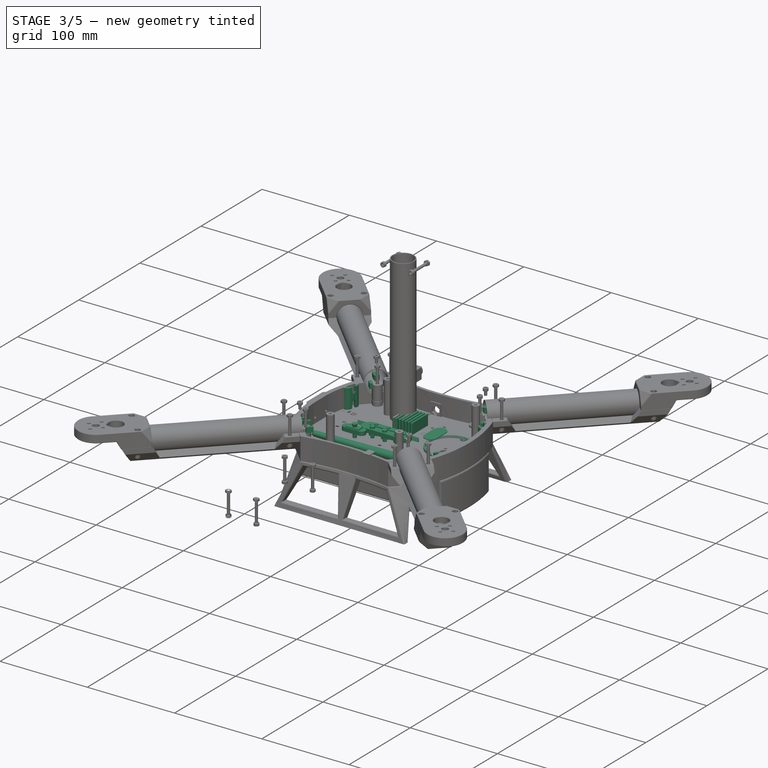
[diagram: stage 3 of 5 — iso view after this stage's code; geometry added in this stage tinted green]
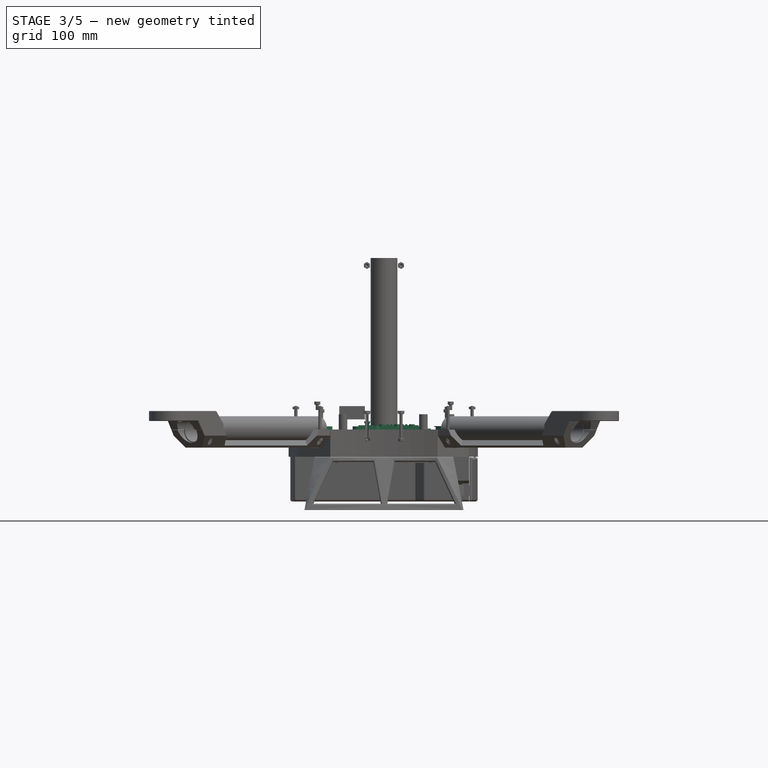
[diagram: stage 3 of 5 — front view after this stage's code; geometry added in this stage tinted green]
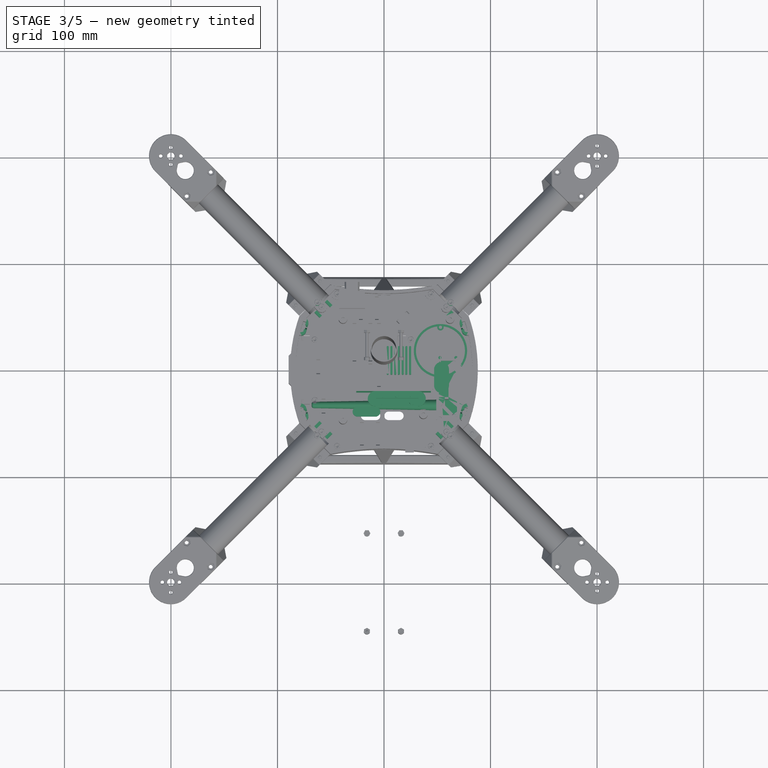
[diagram: stage 3 of 5 — top view after this stage's code; geometry added in this stage tinted green]
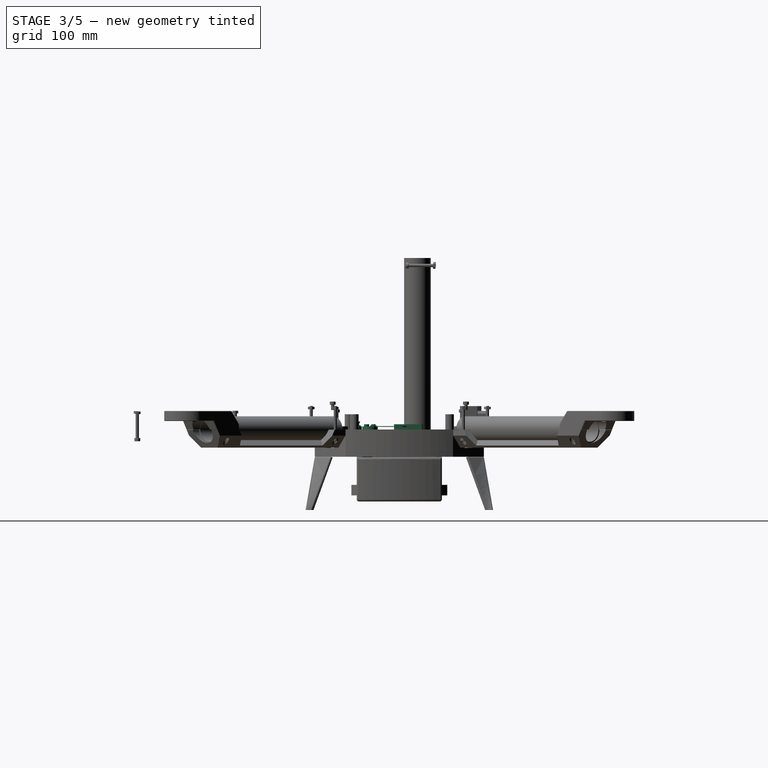
[diagram: stage 3 of 5 — right view after this stage's code; geometry added in this stage tinted green]
FEATURE [Sketcher::SketchObject] Sketch123
  Placement = pos=(0,0,-22) rot=(0,0,1;0rad)
  sketch-geometry (15):
    g0: LineSegment [constr] StartX=-79.3638 StartY=50.3724 StartZ=0 EndX=-79.3638 EndY=-50.3724 EndZ=0
    g1: LineSegment StartX=-79.3638 StartY=-50.3724 StartZ=0 EndX=-50.3724 EndY=-79.3638 EndZ=0
    g2: LineSegment [constr] StartX=-50.3724 StartY=-79.3638 StartZ=0 EndX=50.3724 EndY=-79.3638 EndZ=0
    g3: LineSegment StartX=50.3724 StartY=-79.3638 StartZ=0 EndX=79.3638 EndY=-50.3724 EndZ=0
    g4: LineSegment [constr] StartX=79.3638 StartY=-50.3724 StartZ=0 EndX=79.3638 EndY=50.3724 EndZ=0
    g5: LineSegment StartX=79.3638 StartY=50.3724 StartZ=0 EndX=50.3724 EndY=79.3638 EndZ=0
    g6: LineSegment [constr] StartX=50.3724 StartY=79.3638 StartZ=0 EndX=-50.3724 EndY=79.3638 EndZ=0
    g7: LineSegment StartX=-50.3724 StartY=79.3638 StartZ=0 EndX=-79.3638 EndY=50.3724 EndZ=0
    g8: Circle [constr] CenterX=0 CenterY=0 CenterZ=0 NormalX=0 NormalY=0 NormalZ=1 Radius=94
    g9: ArcOfCircle CenterX=0 CenterY=329.364 CenterZ=0 NormalX=0 NormalY=0 NormalZ=1 Radius=255.024 StartAngle=4.51356 EndAngle=4.91122
    g10: ArcOfCircle CenterX=0 CenterY=-329.364 CenterZ=0 NormalX=0 NormalY=0 NormalZ=1 Radius=255.024 StartAngle=1.37197 EndAngle=1.76962
    g11: LineSegment [constr] StartX=0 StartY=-329.364 StartZ=0 EndX=0 EndY=-79.3638 EndZ=0
    g12: LineSegment [constr] StartX=0 StartY=329.364 StartZ=0 EndX=0 EndY=79.3638 EndZ=0
    g13: ArcOfCircle CenterX=61.9253 CenterY=0 CenterZ=0 NormalX=0 NormalY=0 NormalZ=1 Radius=150 StartAngle=2.79912 EndAngle=3.48406
    g14: ArcOfCircle CenterX=-61.9253 CenterY=0 CenterZ=0 NormalX=0 NormalY=0 NormalZ=1 Radius=150 StartAngle=5.94071 EndAngle=6.62566
  constraints (44):
    c: Coincident(g0,g1)
    c: Coincident(g1,g2)
    c: Coincident(g2,g3)
    c: Coincident(g3,g4)
    c: Coincident(g4,g5)
    c: Coincident(g5,g6)
    c: Coincident(g6,g7)
    c: Coincident(g7,g0)
    c: PointOnObject(g0,g8)
    c: PointOnObject(g1,g8)
    c: PointOnObject(g2,g8)
    c: PointOnObject(g3,g8)
    c: PointOnObject(g4,g8)
    c: PointOnObject(g5,g8)
    c: PointOnObject(g6,g8)
    c: PointOnObject(g7,g8)
    c: Coincident(g8,g-1)
    c: Horizontal(g2)
    c: Radius(g8) = 94
    c: Coincident(g9,g6)
    c: Coincident(g9,g5)
    c: Coincident(g10,g1)
    c: Coincident(g10,g2)
    c: Coincident(g11,g10)
    c: PointOnObject(g11,g2)
    c: Vertical(g11)
    c: Coincident(g12,g9)
    c: PointOnObject(g12,g6)
    c: Vertical(g12)
    c: Equal(g1,g3)
    c: Equal(g3,g5)
    c: Equal(g5,g7)
    c: Equal(g0,g2)
    c: Equal(g2,g4)
    c: Equal(g4,g6)
    c: Distance(g3) = 41
    c: Distance(g12) = 250
    c: Equal(g11,g12)
    c: Coincident(g13,g0)
    c: Coincident(g13,g0)
    c: Coincident(g14,g4)
    c: Coincident(g14,g3)
    c: Equal(g13,g14)
    c: Radius(g13) = 150
FEATURE [Part::Extrusion] Extrude108
  Base = -> Sketch123
  Dir = (0,0,-3.5)
  Solid = true
FEATURE [Sketcher::SketchObject] Sketch097
  Placement = pos=(0,0,0) rot=(1,0,0;1.5708rad)
  sketch-geometry (4):
    g0: LineSegment StartX=20.5 StartY=-23 StartZ=0 EndX=20.5 EndY=0 EndZ=0
    g1: LineSegment StartX=20.5 StartY=0 StartZ=0 EndX=-20.5 EndY=0 EndZ=0
    g2: LineSegment StartX=-20.5 StartY=0 StartZ=0 EndX=-20.5 EndY=-23 EndZ=0
    g3: LineSegment StartX=-20.5 StartY=-23 StartZ=0 EndX=20.5 EndY=-23 EndZ=0
  constraints (12):
    c: Vertical(g0)
    c: Coincident(g0,g1)
    c: Horizontal(g1)
    c: Coincident(g1,g2)
    c: Vertical(g2)
    c: Coincident(g2,g3)
    c: Horizontal(g3)
    c: DistanceX(g2,g0) = 41
    c: DistanceY(g0,g0) = 23
    c: Symmetric(g0,g2,g-2)
    c: Coincident(g3,g0)
    c: PointOnObject(g1,g-1)
FEATURE [Part::Extrusion] Extrude094
  Base = -> Sketch097
  Dir = (0,-11,0)
  Placement = pos=(0,-83,0) rot=(0,0,1;0rad)
  Solid = true
FEATURE [Part::FeaturePython] Array006  # Draft array (typed FeaturePython)
  Angle = 360
  ArrayType = 1
  Axis = (0,0,1)
  Base = -> Extrude094
  Center = (0,0,0)
  Fuse = false
  IntervalAxis = (0,0,0)
  IntervalX = (1,0,0)
  IntervalY = (0,1,0)
  IntervalZ = (0,0,0)
  NumberPolar = 4
  NumberX = 2
  NumberY = 2
  NumberZ = 1
  Placement = pos=(0,0,0) rot=(0,0,1;0.785398rad)
FEATURE [Sketcher::SketchObject] Sketch083
  Placement = pos=(0,0,0) rot=(1,0,0;1.5708rad)
  sketch-geometry (11):
    g0: LineSegment StartX=12.4995 StartY=0 StartZ=0 EndX=20.5 EndY=0 EndZ=0
    g1: LineSegment StartX=20.5 StartY=0 StartZ=0 EndX=20.5 EndY=-23 EndZ=0
    g2: LineSegment StartX=-20.5 StartY=-23 StartZ=0 EndX=-20.5 EndY=0 EndZ=0
    g3: LineSegment StartX=-20.5 StartY=0 StartZ=0 EndX=-12.4995 EndY=0 EndZ=0
    g4: LineSegment StartX=-20.5 StartY=-23 StartZ=0 EndX=-5 EndY=-23 EndZ=0
    g5: LineSegment StartX=20.5 StartY=-23 StartZ=0 EndX=5 EndY=-23 EndZ=0
    g6: LineSegment StartX=-5 StartY=-23 StartZ=0 EndX=-5 EndY=-11.3474 EndZ=0
    g7: LineSegment StartX=5 StartY=-23 StartZ=0 EndX=5 EndY=-11.3474 EndZ=0
    g8: ArcOfCircle CenterX=0 CenterY=0.109082 CenterZ=0 NormalX=0 NormalY=0 NormalZ=1 Radius=12.5 StartAngle=3.15032 EndAngle=4.30087
    g9: ArcOfCircle [constr] CenterX=0 CenterY=0.109082 CenterZ=0 NormalX=0 NormalY=0 NormalZ=1 Radius=12.5 StartAngle=3.15032 EndAngle=6.27446
    g10: ArcOfCircle CenterX=0 CenterY=0.109082 CenterZ=0 NormalX=0 NormalY=0 NormalZ=1 Radius=12.5 StartAngle=5.12391 EndAngle=6.27446
  constraints (33):
    c: Horizontal(g0)
    c: Coincident(g0,g1)
    c: Vertical(g1)
    c: Vertical(g2)
    c: Horizontal(g3)
    c: Equal(g0,g3)
    c: DistanceY(g1,g1) = 23
    c: DistanceX(g2,g1) = 41
    c: Equal(g1,g2)
    c: Symmetric(g2,g1,g-2)
    c: Coincident(g4,g2)
    c: Horizontal(g4)
    c: Coincident(g5,g1)
    c: Horizontal(g5)
    c: Symmetric(g4,g5,g-2)
    c: DistanceX(g4,g5) = 10
    c: Coincident(g6,g4)
    c: Vertical(g6)
    c: Coincident(g7,g5)
    c: Vertical(g7)
    c: Equal(g6,g7)
    c: Coincident(g8,g3)
    c: Coincident(g8,g6)
    c: Coincident(g10,g0)
    c: Coincident(g10,g7)
    c: Coincident(g3,g2)
    c: Coincident(g8,g10)
    c: Coincident(g9,g3)
    c: Coincident(g9,g0)
    c: Coincident(g8,g9)
    c: Angle(g9) = 3.12414
    c: Radius(g9) = 12.5
    c: PointOnObject(g0,g-1)
FEATURE [Part::Extrusion] Extrude083
  Base = -> Sketch083
  Dir = (0,-6,0)
  Placement = pos=(0,-85.75,0) rot=(0,0,1;0rad)
  Solid = true
FEATURE [Part::FeaturePython] Array001  # Draft array (typed FeaturePython)
  Angle = 360
  ArrayType = 1
  Axis = (0,0,1)
  Base = -> Extrude083
  Center = (0,0,0)
  Fuse = false
  IntervalAxis = (0,0,0)
  IntervalX = (1,0,0)
  IntervalY = (0,1,0)
  IntervalZ = (0,0,0)
  NumberPolar = 4
  NumberX = 2
  NumberY = 2
  NumberZ = 1
  Placement = pos=(0,0,0) rot=(0,0,1;0.785398rad)
FEATURE [Sketcher::SketchObject] Sketch126
  sketch-geometry (5):
    g0: LineSegment StartX=-5 StartY=0 StartZ=0 EndX=-5 EndY=9 EndZ=0
    g1: LineSegment StartX=5 StartY=0 StartZ=0 EndX=5 EndY=9 EndZ=0
    g2: LineSegment StartX=-5 StartY=0 StartZ=0 EndX=5 EndY=0 EndZ=0
    g3: ArcOfCircle CenterX=0 CenterY=9 CenterZ=0 NormalX=0 NormalY=0 NormalZ=1 Radius=5 StartAngle=0 EndAngle=3.14159
    g4: LineSegment [constr] StartX=-5 StartY=9 StartZ=0 EndX=5 EndY=9 EndZ=0
  constraints (14):
    c: Vertical(g0)
    c: Vertical(g1)
    c: DistanceY(g1,g1) = 9
    c: Coincident(g2,g0)
    c: Coincident(g2,g1)
    c: PointOnObject(g0,g-1)
    c: Symmetric(g0,g1,g-2)
    c: DistanceX(g2,g2) = 10
    c: Coincident(g3,g1)
    c: Coincident(g3,g0)
    c: Coincident(g4,g0)
    c: Coincident(g4,g1)
    c: Horizontal(g4)
    c: PointOnObject(g3,g4)
FEATURE [Part::Extrusion] Extrude110
  Base = -> Sketch126
  Dir = (0,0,4.75)
  Placement = pos=(0,-91.75,-22) rot=(0,0,1;0rad)
  Solid = true
FEATURE [Part::FeaturePython] Array  # Draft array (typed FeaturePython)
  Angle = 360
  ArrayType = 1
  Axis = (0,0,1)
  Base = -> Extrude110
  Center = (0,0,0)
  Fuse = false
  IntervalAxis = (0,0,0)
  IntervalX = (1,0,0)
  IntervalY = (0,1,0)
  IntervalZ = (0,0,0)
  NumberPolar = 4
  NumberX = 2
  NumberY = 2
  NumberZ = 1
  Placement = pos=(0,0,0) rot=(0,0,1;0.785398rad)
FEATURE [Part::Cylinder] Cylinder005
  Angle = 360
  Height = 4
  Placement = pos=(53,18,-24) rot=(0,0,1;0rad)
  Radius = 25
FEATURE [Sketcher::SketchObject] Sketch127
  Placement = pos=(0,0,14.4) rot=(0,0,1;0rad)
  sketch-geometry (9):
    g0: Circle CenterX=62 CenterY=47.25 CenterZ=0 NormalX=0 NormalY=0 NormalZ=1 Radius=1.45
    g1: Circle CenterX=-38.5 CenterY=47.25 CenterZ=0 NormalX=0 NormalY=0 NormalZ=1 Radius=1.45
    g2: LineSegment [constr] StartX=-38.5 StartY=47.25 StartZ=0 EndX=62 EndY=47.25 EndZ=0
    g3: Circle CenterX=-38.5 CenterY=-47.25 CenterZ=0 NormalX=0 NormalY=0 NormalZ=1 Radius=1.45
    g4: LineSegment [constr] StartX=-38.5 StartY=47.25 StartZ=0 EndX=-38.5 EndY=-47.25 EndZ=0
    g5: LineSegment [constr] StartX=-38.5 StartY=-47.25 StartZ=0 EndX=62 EndY=-47.25 EndZ=0
    g6: LineSegment [constr] StartX=62 StartY=-47.25 StartZ=0 EndX=62 EndY=47.25 EndZ=0
    g7: LineSegment [constr] StartX=37 StartY=-47.25 StartZ=0 EndX=37 EndY=-42.25 EndZ=0
    g8: Circle CenterX=37 CenterY=-42.25 CenterZ=0 NormalX=0 NormalY=0 NormalZ=1 Radius=1.45
  constraints (24):
    c: Radius(g1) = 1.45
    c: Horizontal(g2)
    c: DistanceX(g2,g2) = 100.5
    c: Vertical(g4)
    c: DistanceY(g4,g4) = 94.5
    c: Horizontal(g5)
    c: Vertical(g6)
    c: PointOnObject(g7,g5)
    c: Vertical(g7)
    c: DistanceY(g7,g7) = 5
    c: Coincident(g8,g7)
    c: Equal(g3,g1)
    c: Equal(g1,g0)
    c: Equal(g0,g8)
    c: Coincident(g0,g2)
    c: DistanceX(g-1,g0) = 62
    c: Coincident(g6,g0)
    c: Coincident(g6,g5)
    c: Coincident(g4,g2)
    c: Coincident(g1,g2)
    c: Coincident(g3,g4)
    c: Coincident(g5,g3)
    c: DistanceX(g3,g7) = 75.5
    c: Symmetric(g3,g1,g-1)
FEATURE [Part::Extrusion] Extrude112
  Base = -> Sketch127
  Dir = (0,0,-10)
  Solid = true
FEATURE [Sketcher::SketchObject] Sketch128
  Placement = pos=(0,0,14.4) rot=(0,0,1;0rad)
  sketch-geometry (9):
    g0: Circle CenterX=62 CenterY=47.25 CenterZ=0 NormalX=0 NormalY=0 NormalZ=1 Radius=4
    g1: Circle CenterX=-38.5 CenterY=47.25 CenterZ=0 NormalX=0 NormalY=0 NormalZ=1 Radius=4
    g2: LineSegment [constr] StartX=-38.5 StartY=47.25 StartZ=0 EndX=62 EndY=47.25 EndZ=0
    g3: Circle CenterX=-38.5 CenterY=-47.25 CenterZ=0 NormalX=0 NormalY=0 NormalZ=1 Radius=4
    g4: LineSegment [constr] StartX=-38.5 StartY=47.25 StartZ=0 EndX=-38.5 EndY=-47.25 EndZ=0
    g5: LineSegment [constr] StartX=-38.5 StartY=-47.25 StartZ=0 EndX=62 EndY=-47.25 EndZ=0
    g6: LineSegment [constr] StartX=62 StartY=-47.25 StartZ=0 EndX=62 EndY=47.25 EndZ=0
    g7: LineSegment [constr] StartX=37 StartY=-47.25 StartZ=0 EndX=37 EndY=-42.25 EndZ=0
    g8: Circle CenterX=37 CenterY=-42.25 CenterZ=0 NormalX=0 NormalY=0 NormalZ=1 Radius=4
  constraints (24):
    c: Radius(g1) = 4
    c: Horizontal(g2)
    c: DistanceX(g2,g2) = 100.5
    c: Vertical(g4)
    c: DistanceY(g4,g4) = 94.5
    c: Horizontal(g5)
    c: Vertical(g6)
    c: PointOnObject(g7,g5)
    c: Vertical(g7)
    c: DistanceY(g7,g7) = 5
    c: Coincident(g8,g7)
    c: Equal(g3,g1)
    c: Equal(g1,g0)
    c: Equal(g0,g8)
    c: Coincident(g0,g2)
    c: DistanceX(g-1,g0) = 62
    c: Coincident(g6,g0)
    c: Coincident(g6,g5)
    c: Coincident(g4,g2)
    c: Coincident(g1,g2)
    c: Coincident(g3,g4)
    c: Coincident(g5,g3)
    c: DistanceX(g3,g7) = 75.5
    c: Symmetric(g3,g1,g-1)
FEATURE [Part::Extrusion] Extrude113
  Base = -> Sketch128
  Dir = (0,0,-38)
  Solid = true
FEATURE [Part::Cut] Cut003004003
  Base = -> Extrude113
  Tool = -> Extrude112
FEATURE [Sketcher::SketchObject] Sketch185
  sketch-geometry (8):
    g0: LineSegment StartX=0 StartY=13 StartZ=0 EndX=0 EndY=-13 EndZ=0
    g1: LineSegment StartX=-7 StartY=-13 StartZ=0 EndX=-7 EndY=13 EndZ=0
    g2: LineSegment StartX=-7 StartY=13 StartZ=0 EndX=-3.5 EndY=16.5 EndZ=0
    g3: LineSegment StartX=-3.5 StartY=16.5 StartZ=0 EndX=0 EndY=13 EndZ=0
    g4: LineSegment StartX=-7 StartY=-13 StartZ=0 EndX=-3.5 EndY=-16.5 EndZ=0
    g5: LineSegment StartX=-3.5 StartY=-16.5 StartZ=0 EndX=0 EndY=-13 EndZ=0
    g6: LineSegment [constr] StartX=-7 StartY=13 StartZ=0 EndX=0 EndY=13 EndZ=0
    g7: LineSegment [constr] StartX=-7 StartY=-13 StartZ=0 EndX=0 EndY=-13 EndZ=0
  constraints (22):
    c: Vertical(g0)
    c: Vertical(g1)
    c: Symmetric(g1,g1,g-1)
    c: DistanceY(g1,g1) = 26
    c: DistanceX(g1,g0) = 7
    c: PointOnObject(g-1,g0)
    c: Coincident(g2,g1)
    c: Coincident(g2,g3)
    c: Coincident(g1,g4)
    c: Coincident(g4,g5)
    c: Coincident(g5,g0)
    c: Equal(g4,g5)
    c: Equal(g5,g2)
    c: Equal(g2,g3)
    c: Coincident(g3,g0)
    c: Equal(g0,g1)
    c: Coincident(g6,g1)
    c: Coincident(g6,g0)
    c: Horizontal(g6)
    c: Coincident(g7,g1)
    c: Coincident(g7,g0)
    c: Angle(g4,g1) = 2.35619
FEATURE [Part::Extrusion] Extrude166
  Base = -> Sketch185
  Dir = (0,0,-25.5)
  Placement = pos=(-82.5,0,0) rot=(0,0,1;0rad)
  Solid = true
FEATURE [Part::Box] Box015  label="Cube011"
  Height = 13
  Length = 12
  Placement = pos=(-6,70,-22) rot=(0,0,1;0rad)
  Width = 3
FEATURE [Sketcher::SketchObject] Sketch187
  sketch-geometry (15):
    g0: LineSegment [constr] StartX=-79.3638 StartY=50.3724 StartZ=0 EndX=-79.3638 EndY=-50.3724 EndZ=0
    g1: LineSegment StartX=-79.3638 StartY=-50.3724 StartZ=0 EndX=-50.3724 EndY=-79.3638 EndZ=0
    g2: LineSegment [constr] StartX=-50.3724 StartY=-79.3638 StartZ=0 EndX=50.3724 EndY=-79.3638 EndZ=0
    g3: LineSegment StartX=50.3724 StartY=-79.3638 StartZ=0 EndX=79.3638 EndY=-50.3724 EndZ=0
    g4: LineSegment [constr] StartX=79.3638 StartY=-50.3724 StartZ=0 EndX=79.3638 EndY=50.3724 EndZ=0
    g5: LineSegment StartX=79.3638 StartY=50.3724 StartZ=0 EndX=50.3724 EndY=79.3638 EndZ=0
    g6: LineSegment [constr] StartX=50.3724 StartY=79.3638 StartZ=0 EndX=-50.3724 EndY=79.3638 EndZ=0
    g7: LineSegment StartX=-50.3724 StartY=79.3638 StartZ=0 EndX=-79.3638 EndY=50.3724 EndZ=0
    g8: Circle [constr] CenterX=0 CenterY=0 CenterZ=0 NormalX=0 NormalY=0 NormalZ=1 Radius=94
    g9: ArcOfCircle CenterX=0 CenterY=329.364 CenterZ=0 NormalX=0 NormalY=0 NormalZ=1 Radius=255.024 StartAngle=4.51356 EndAngle=4.91122
    g10: ArcOfCircle CenterX=0 CenterY=-329.364 CenterZ=0 NormalX=0 NormalY=0 NormalZ=1 Radius=255.024 StartAngle=1.37197 EndAngle=1.76962
    g11: LineSegment [constr] StartX=0 StartY=-329.364 StartZ=0 EndX=0 EndY=-79.3638 EndZ=0
    g12: LineSegment [constr] StartX=0 StartY=329.364 StartZ=0 EndX=0 EndY=79.3638 EndZ=0
    g13: ArcOfCircle CenterX=61.9253 CenterY=0 CenterZ=0 NormalX=0 NormalY=0 NormalZ=1 Radius=150 StartAngle=2.79912 EndAngle=3.48406
    g14: ArcOfCircle CenterX=-61.9253 CenterY=0 CenterZ=0 NormalX=0 NormalY=0 NormalZ=1 Radius=150 StartAngle=5.94071 EndAngle=6.62566
  constraints (44):
    c: Coincident(g0,g1)
    c: Coincident(g1,g2)
    c: Coincident(g2,g3)
    c: Coincident(g3,g4)
    c: Coincident(g4,g5)
    c: Coincident(g5,g6)
    c: Coincident(g6,g7)
    c: Coincident(g7,g0)
    c: PointOnObject(g0,g8)
    c: PointOnObject(g1,g8)
    c: PointOnObject(g2,g8)
    c: PointOnObject(g3,g8)
    c: PointOnObject(g4,g8)
    c: PointOnObject(g5,g8)
    c: PointOnObject(g6,g8)
    c: PointOnObject(g7,g8)
    c: Coincident(g8,g-1)
    c: Horizontal(g2)
    c: Radius(g8) = 94
    c: Coincident(g9,g6)
    c: Coincident(g9,g5)
    c: Coincident(g10,g1)
    c: Coincident(g10,g2)
    c: Coincident(g11,g10)
    c: PointOnObject(g11,g2)
    c: Vertical(g11)
    c: Coincident(g12,g9)
    c: PointOnObject(g12,g6)
    c: Vertical(g12)
    c: Equal(g1,g3)
    c: Equal(g3,g5)
    c: Equal(g5,g7)
    c: Equal(g0,g2)
    c: Equal(g2,g4)
    c: Equal(g4,g6)
    c: Distance(g3) = 41
    c: Distance(g12) = 250
    c: Equal(g11,g12)
    c: Coincident(g13,g0)
    c: Coincident(g13,g0)
    c: Coincident(g14,g4)
    c: Coincident(g14,g3)
    c: Equal(g13,g14)
    c: Radius(g13) = 150
FEATURE [Sketcher::SketchObject] Sketch188
  sketch-geometry (15):
    g0: LineSegment [constr] StartX=-75.5543 StartY=46.5629 StartZ=0 EndX=-75.5543 EndY=-46.5629 EndZ=0
    g1: LineSegment StartX=-75.5543 StartY=-46.5629 StartZ=0 EndX=-46.5629 EndY=-75.5543 EndZ=0
    g2: LineSegment [constr] StartX=-46.5629 StartY=-75.5543 StartZ=0 EndX=46.5629 EndY=-75.5543 EndZ=0
    g3: LineSegment StartX=46.5629 StartY=-75.5543 StartZ=0 EndX=75.5543 EndY=-46.5629 EndZ=0
    g4: LineSegment [constr] StartX=75.5543 StartY=-46.5629 StartZ=0 EndX=75.5543 EndY=46.5629 EndZ=0
    g5: LineSegment StartX=75.5543 StartY=46.5629 StartZ=0 EndX=46.5629 EndY=75.5543 EndZ=0
    g6: LineSegment [constr] StartX=46.5629 StartY=75.5543 StartZ=0 EndX=-46.5629 EndY=75.5543 EndZ=0
    g7: LineSegment StartX=-46.5629 StartY=75.5543 StartZ=0 EndX=-75.5543 EndY=46.5629 EndZ=0
    g8: Circle [constr] CenterX=0 CenterY=0 CenterZ=0 NormalX=0 NormalY=0 NormalZ=1 Radius=88.75
    g9: ArcOfCircle CenterX=0 CenterY=325.554 CenterZ=0 NormalX=0 NormalY=0 NormalZ=1 Radius=254.299 StartAngle=4.52825 EndAngle=4.89653
    g10: ArcOfCircle CenterX=0 CenterY=-325.554 CenterZ=0 NormalX=0 NormalY=0 NormalZ=1 Radius=254.299 StartAngle=1.38665 EndAngle=1.75494
    g11: LineSegment [constr] StartX=0 StartY=-325.554 StartZ=0 EndX=0 EndY=-75.5543 EndZ=0
    g12: LineSegment [constr] StartX=0 StartY=325.554 StartZ=0 EndX=0 EndY=75.5543 EndZ=0
    g13: ArcOfCircle CenterX=67.0356 CenterY=0 CenterZ=0 NormalX=0 NormalY=0 NormalZ=1 Radius=150 StartAngle=2.82596 EndAngle=3.45723
    g14: ArcOfCircle CenterX=-67.0356 CenterY=0 CenterZ=0 NormalX=0 NormalY=0 NormalZ=1 Radius=150 StartAngle=5.96755 EndAngle=6.59882
  constraints (44):
    c: Coincident(g0,g1)
    c: Coincident(g1,g2)
    c: Coincident(g2,g3)
    c: Coincident(g3,g4)
    c: Coincident(g4,g5)
    c: Coincident(g5,g6)
    c: Coincident(g6,g7)
    c: Coincident(g7,g0)
    c: PointOnObject(g0,g8)
    c: PointOnObject(g1,g8)
    c: PointOnObject(g2,g8)
    c: PointOnObject(g3,g8)
    c: PointOnObject(g4,g8)
    c: PointOnObject(g5,g8)
    c: PointOnObject(g6,g8)
    c: PointOnObject(g7,g8)
    c: Coincident(g8,g-1)
    c: Horizontal(g2)
    c: Radius(g8) = 88.75
    c: Coincident(g9,g6)
    c: Coincident(g9,g5)
    c: Coincident(g10,g1)
    c: Coincident(g10,g2)
    c: Coincident(g11,g10)
    c: PointOnObject(g11,g2)
    c: Vertical(g11)
    c: Coincident(g12,g9)
    c: PointOnObject(g12,g6)
    c: Vertical(g12)
    c: Equal(g1,g3)
    c: Equal(g3,g5)
    c: Equal(g5,g7)
    c: Equal(g0,g2)
    c: Equal(g2,g4)
    c: Equal(g4,g6)
    c: Distance(g3) = 41
    c: Distance(g12) = 250
    c: Equal(g11,g12)
    c: Coincident(g13,g0)
    c: Coincident(g13,g0)
    c: Coincident(g14,g4)
    c: Coincident(g14,g3)
    c: Equal(g13,g14)
    c: Radius(g13) = 150
FEATURE [Part::Extrusion] Extrude
  Base = -> Sketch187
  Dir = (0,0,-23)
  Solid = true
FEATURE [Part::Extrusion] Extrude168
  Base = -> Sketch188
  Dir = (0,0,-23)
  Solid = true
FEATURE [Part::MultiFuse] Fusion
  Shapes = -> [Extrude168,Array006]
FEATURE [Part::Cut] Cut
  Base = -> Extrude
  Tool = -> Fusion
FEATURE [Sketcher::SketchObject] Sketch125
  sketch-geometry (1):
    g0: Circle CenterX=0 CenterY=0 CenterZ=0 NormalX=0 NormalY=0 NormalZ=1 Radius=1.75
  constraints (2):
    c: Radius(g0) = 1.75
    c: Coincident(g0,g-1)
FEATURE [Part::Extrusion] Extrude169
  Base = -> Sketch125
  Dir = (0,0,20)
  Solid = true
FEATURE [Sketcher::SketchObject] Sketch189
  sketch-geometry (7):
    g0: LineSegment StartX=3.25 StartY=0 StartZ=0 EndX=1.625 EndY=2.81458 EndZ=0
    g1: LineSegment StartX=1.625 StartY=2.81458 StartZ=0 EndX=-1.625 EndY=2.81458 EndZ=0
    g2: LineSegment StartX=-1.625 StartY=2.81458 StartZ=0 EndX=-3.25 EndY=0 EndZ=0
    g3: LineSegment StartX=-3.25 StartY=0 StartZ=0 EndX=-1.625 EndY=-2.81458 EndZ=0
    g4: LineSegment StartX=-1.625 StartY=-2.81458 StartZ=0 EndX=1.625 EndY=-2.81458 EndZ=0
    g5: LineSegment StartX=1.625 StartY=-2.81458 StartZ=0 EndX=3.25 EndY=0 EndZ=0
    g6: Circle [constr] CenterX=0 CenterY=0 CenterZ=0 NormalX=0 NormalY=0 NormalZ=1 Radius=3.25
  constraints (16):
    c: Coincident(g0,g1)
    c: Coincident(g1,g2)
    c: Coincident(g2,g3)
    c: Coincident(g3,g4)
    c: Coincident(g4,g5)
    c: Coincident(g5,g0)
    c: Equal(g0, g1-g5) x5
    c: PointOnObject(g0,g6)
    c: PointOnObject(g1,g6)
    c: PointOnObject(g2,g6)
    c: PointOnObject(g3,g6)
    c: PointOnObject(g4,g6)
    c: PointOnObject(g5,g6)
    c: Radius(g6) = 3.25
    c: Coincident(g6,g-1)
    c: Horizontal(g1)
FEATURE [Part::Extrusion] Extrude111
  Base = -> Sketch189
  Dir = (0,0,7)
  Solid = true
FEATURE [Sketcher::SketchObject] Sketch054
  sketch-geometry (10):
    g0: ArcOfCircle CenterX=22 CenterY=0 CenterZ=0 NormalX=0 NormalY=0 NormalZ=1 Radius=3 StartAngle=1.5708 EndAngle=4.71239
    g1: ArcOfCircle CenterX=-22 CenterY=0 CenterZ=0 NormalX=0 NormalY=0 NormalZ=1 Radius=3 StartAngle=4.71239 EndAngle=7.85398
    g2: LineSegment [constr] StartX=-22 StartY=3 StartZ=0 EndX=-22 EndY=-3 EndZ=0
    g3: LineSegment [constr] StartX=22 StartY=3 StartZ=0 EndX=22 EndY=-3 EndZ=0
    g4: ArcOfCircle CenterX=0 CenterY=0 CenterZ=0 NormalX=0 NormalY=0 NormalZ=1 Radius=23 StartAngle=3.2724 EndAngle=6.15238
    g5: LineSegment StartX=22 StartY=-3 StartZ=0 EndX=22.8035 EndY=-3 EndZ=0
    g6: LineSegment StartX=22 StartY=3 StartZ=0 EndX=22.8035 EndY=3 EndZ=0
    g7: LineSegment StartX=-22 StartY=3 StartZ=0 EndX=-22.8035 EndY=3 EndZ=0
    g8: LineSegment StartX=-22 StartY=-3 StartZ=0 EndX=-22.8035 EndY=-3 EndZ=0
    g9: ArcOfCircle CenterX=0 CenterY=0 CenterZ=0 NormalX=0 NormalY=0 NormalZ=1 Radius=23 StartAngle=0.130807 EndAngle=3.01079
  constraints (31):
    c: Radius(g1) = 3
    c: Equal(g1,g0)
    c: Coincident(g2,g1)
    c: Coincident(g2,g1)
    c: Coincident(g3,g0)
    c: Coincident(g3,g0)
    c: PointOnObject(g1,g2)
    c: PointOnObject(g0,g3)
    c: Vertical(g2)
    c: Vertical(g3)
    c: PointOnObject(g1,g-1)
    c: DistanceX(g1,g0) = 44
    c: Coincident(g4,g-1)
    c: Radius(g4) = 23
    c: PointOnObject(g0,g-1)
    c: Coincident(g5,g0)
    c: Horizontal(g5)
    c: Coincident(g6,g0)
    c: Horizontal(g6)
    c: Coincident(g7,g1)
    c: Horizontal(g7)
    c: Coincident(g8,g1)
    c: Horizontal(g8)
    c: Equal(g8,g7)
    c: Equal(g7,g5)
    c: Equal(g5,g6)
    c: Coincident(g4,g5)
    c: Coincident(g8,g4)
    c: Coincident(g9,g-1)
    c: Coincident(g9,g7)
    c: Coincident(g9,g6)
FEATURE [Part::Extrusion] Extrude053
  Base = -> Sketch054
  Dir = (0,0,3.5)
  Placement = pos=(53,18,-23.5) rot=(0,0,1;1.5708rad)
  Solid = true
FEATURE [Sketcher::SketchObject] Sketch058
  sketch-geometry (2):
    g0: Circle CenterX=22 CenterY=0 CenterZ=0 NormalX=0 NormalY=0 NormalZ=1 Radius=1.5
    g1: Circle CenterX=-22 CenterY=0 CenterZ=0 NormalX=0 NormalY=0 NormalZ=1 Radius=1.5
  constraints (5):
    c: Radius(g1) = 1.5
    c: Equal(g1,g0)
    c: DistanceX(g1,g0) = 44
    c: Symmetric(g0,g1,g-1)
    c: PointOnObject(g0,g-1)
FEATURE [Part::Extrusion] Extrude057
  Base = -> Sketch058
  Dir = (0,0,10)
  Placement = pos=(53,18,-25) rot=(0,0,1;1.5708rad)
  Solid = true
FEATURE [Sketcher::SketchObject] Sketch053
  Placement = pos=(0,0,0) rot=(1,0,0;1.5708rad)
  sketch-geometry (10):
    g0: LineSegment StartX=-17.134 StartY=0 StartZ=0 EndX=17.134 EndY=0 EndZ=0
    g1: LineSegment StartX=17.134 StartY=0 StartZ=0 EndX=18 EndY=1.5 EndZ=0
    g2: LineSegment StartX=18 StartY=1.5 StartZ=0 EndX=18 EndY=3.5 EndZ=0
    g3: LineSegment StartX=18 StartY=3.5 StartZ=0 EndX=16 EndY=3.5 EndZ=0
    g4: LineSegment StartX=16 StartY=3.5 StartZ=0 EndX=14.8453 EndY=1.5 EndZ=0
    g5: LineSegment StartX=14.8453 StartY=1.5 StartZ=0 EndX=-14.8453 EndY=1.5 EndZ=0
    g6: LineSegment StartX=-14.8453 StartY=1.5 StartZ=0 EndX=-16 EndY=3.5 EndZ=0
    g7: LineSegment StartX=-16 StartY=3.5 StartZ=0 EndX=-18 EndY=3.5 EndZ=0
    g8: LineSegment StartX=-18 StartY=3.5 StartZ=0 EndX=-18 EndY=1.5 EndZ=0
    g9: LineSegment StartX=-18 StartY=1.5 StartZ=0 EndX=-17.134 EndY=0 EndZ=0
  constraints (29):
    c: Horizontal(g0)
    c: Coincident(g0,g1)
    c: Coincident(g1,g2)
    c: Coincident(g2,g3)
    c: Coincident(g3,g4)
    c: Coincident(g4,g5)
    c: Horizontal(g5)
    c: Coincident(g5,g6)
    c: Coincident(g6,g7)
    c: Coincident(g7,g8)
    c: Vertical(g8)
    c: Coincident(g8,g9)
    c: Coincident(g9,g0)
    c: Horizontal(g7)
    c: Horizontal(g3)
    c: Vertical(g2)
    c: Parallel(g9,g6)
    c: Parallel(g4,g1)
    c: Angle(g5,g6) = 2.0944
    c: Angle(g4,g5) = 2.0944
    c: Equal(g7,g3)
    c: Equal(g9,g1)
    c: DistanceY(g9,g9) = 1.5
    c: DistanceY(g8,g8) = 2
    c: DistanceX(g7,g7) = 2
    c: DistanceY(g6,g6) = 2
    c: Equal(g6,g4)
    c: DistanceX(g6,g3) = 32
    c: Symmetric(g0,g0,g-1)
FEATURE [Sketcher::SketchObject] Sketch129
  Placement = pos=(0,0,0) rot=(1,0,0;1.5708rad)
  sketch-geometry (10):
    g0: LineSegment StartX=-10.134 StartY=0 StartZ=0 EndX=10.134 EndY=0 EndZ=0
    g1: LineSegment StartX=10.134 StartY=0 StartZ=0 EndX=11 EndY=1.5 EndZ=0
    g2: LineSegment StartX=11 StartY=1.5 StartZ=0 EndX=11 EndY=3.5 EndZ=0
    g3: LineSegment StartX=11 StartY=3.5 StartZ=0 EndX=9 EndY=3.5 EndZ=0
    g4: LineSegment StartX=9 StartY=3.5 StartZ=0 EndX=7.8453 EndY=1.5 EndZ=0
    g5: LineSegment StartX=7.8453 StartY=1.5 StartZ=0 EndX=-7.8453 EndY=1.5 EndZ=0
    g6: LineSegment StartX=-7.8453 StartY=1.5 StartZ=0 EndX=-9 EndY=3.5 EndZ=0
    g7: LineSegment StartX=-9 StartY=3.5 StartZ=0 EndX=-11 EndY=3.5 EndZ=0
    g8: LineSegment StartX=-11 StartY=3.5 StartZ=0 EndX=-11 EndY=1.5 EndZ=0
    g9: LineSegment StartX=-11 StartY=1.5 StartZ=0 EndX=-10.134 EndY=0 EndZ=0
  constraints (29):
    c: Horizontal(g0)
    c: Coincident(g0,g1)
    c: Coincident(g1,g2)
    c: Coincident(g2,g3)
    c: Coincident(g3,g4)
    c: Coincident(g4,g5)
    c: Horizontal(g5)
    c: Coincident(g5,g6)
    c: Coincident(g6,g7)
    c: Coincident(g7,g8)
    c: Vertical(g8)
    c: Coincident(g8,g9)
    c: Coincident(g9,g0)
    c: Horizontal(g7)
    c: Horizontal(g3)
    c: Vertical(g2)
    c: Parallel(g9,g6)
    c: Parallel(g4,g1)
    c: Angle(g5,g6) = 2.0944
    c: Angle(g4,g5) = 2.0944
    c: Equal(g7,g3)
    c: Equal(g9,g1)
    c: DistanceY(g9,g9) = 1.5
    c: DistanceY(g8,g8) = 2
    c: DistanceX(g7,g7) = 2
    c: DistanceY(g6,g6) = 2
    c: Equal(g6,g4)
    c: DistanceX(g6,g3) = 18
    c: Symmetric(g0,g0,g-1)
FEATURE [Sketcher::SketchObject] Sketch131
  Placement = pos=(0,0,-17) rot=(0,0,1;0rad)
  sketch-geometry (13):
    g0: ArcOfCircle CenterX=35 CenterY=-24 CenterZ=0 NormalX=0 NormalY=0 NormalZ=1 Radius=6 StartAngle=1.5708 EndAngle=4.71239
    g1: ArcOfCircle CenterX=44.5 CenterY=-24 CenterZ=0 NormalX=0 NormalY=0 NormalZ=1 Radius=6 StartAngle=4.71239 EndAngle=7.85398
    g2: LineSegment StartX=35 StartY=-30 StartZ=0 EndX=44.5 EndY=-30 EndZ=0
    g3: LineSegment StartX=35 StartY=-18 StartZ=0 EndX=44.5 EndY=-18 EndZ=0
    g4: ArcOfCircle CenterX=-17.65 CenterY=-43.15 CenterZ=0 NormalX=0 NormalY=0 NormalZ=1 Radius=4 StartAngle=1.5708 EndAngle=4.71239
    g5: ArcOfCircle CenterX=-7.5 CenterY=-43.15 CenterZ=0 NormalX=0 NormalY=0 NormalZ=1 Radius=4 StartAngle=4.71239 EndAngle=7.85398
    g6: LineSegment StartX=-17.65 StartY=-47.15 StartZ=0 EndX=-7.5 EndY=-47.15 EndZ=0
    g7: LineSegment StartX=-17.65 StartY=-39.15 StartZ=0 EndX=-7.5 EndY=-39.15 EndZ=0
    g8: ArcOfCircle CenterX=4.25 CenterY=-43.15 CenterZ=0 NormalX=0 NormalY=0 NormalZ=1 Radius=4 StartAngle=1.5708 EndAngle=4.71239
    g9: ArcOfCircle CenterX=14.4 CenterY=-43.15 CenterZ=0 NormalX=0 NormalY=0 NormalZ=1 Radius=4 StartAngle=4.71239 EndAngle=7.85398
    g10: LineSegment StartX=4.25 StartY=-47.15 StartZ=0 EndX=14.4 EndY=-47.15 EndZ=0
    g11: LineSegment StartX=4.25 StartY=-39.15 StartZ=0 EndX=14.4 EndY=-39.15 EndZ=0
    g12: LineSegment [constr] StartX=-7.5 StartY=-43.15 StartZ=0 EndX=4.25 EndY=-43.15 EndZ=0
  constraints (32):
    c: Tangent(g0,g3) = 1.5708
    c: Tangent(g0,g2) = -1.5708
    c: Tangent(g2,g1) = -1.5708
    c: Tangent(g3,g1) = 1.5708
    c: Equal(g0,g1)
    c: Radius(g0) = 6
    c: Distance(g2) = 9.5
    c: Tangent(g4,g7) = 1.5708
    c: Tangent(g4,g6) = -1.5708
    c: Tangent(g6,g5) = -1.5708
    c: Tangent(g7,g5) = 1.5708
    c: Horizontal(g6)
    c: Equal(g4,g5)
    c: Tangent(g8,g11) = 1.5708
    c: Tangent(g8,g10) = -1.5708
    c: Tangent(g10,g9) = -1.5708
    c: Tangent(g11,g9) = 1.5708
    c: Horizontal(g10)
    c: Equal(g8,g9)
    c: Equal(g4,g8)
    c: Coincident(g12,g5)
    c: Coincident(g12,g8)
    c: Horizontal(g12)
    c: Equal(g6,g10)
    c: Radius(g4) = 4
    c: DistanceY(g5,g-1) = 43.15
    c: DistanceX(g5,g-1) = 7.5
    c: DistanceX(g12,g12) = 11.75
    c: DistanceX(g8,g9) = 10.15
    c: Horizontal(g2)
    c: DistanceX(g-1,g0) = 35
    c: DistanceY(g0,g-1) = 24
FEATURE [Sketcher::SketchObject] Sketch132
  Placement = pos=(0,0,-22) rot=(0,0,1;0rad)
  sketch-geometry (32):
    g0: LineSegment [constr] StartX=-65 StartY=28.5 StartZ=0 EndX=25 EndY=28.5 EndZ=0
    g1: LineSegment [constr] StartX=25 StartY=28.5 StartZ=0 EndX=25 EndY=-28.5 EndZ=0
    g2: LineSegment [constr] StartX=25 StartY=-28.5 StartZ=0 EndX=-65 EndY=-28.5 EndZ=0
    g3: LineSegment [constr] StartX=-65 StartY=-28.5 StartZ=0 EndX=-65 EndY=28.5 EndZ=0
    g4: LineSegment [constr] StartX=-62.5318 StartY=29.925 StartZ=0 EndX=-65 EndY=31.35 EndZ=0
    g5: LineSegment [constr] StartX=-65 StartY=31.35 StartZ=0 EndX=-67.4682 EndY=29.925 EndZ=0
    g6: LineSegment [constr] StartX=-67.4682 StartY=29.925 StartZ=0 EndX=-67.4682 EndY=27.075 EndZ=0
    g7: LineSegment [constr] StartX=-67.4682 StartY=27.075 StartZ=0 EndX=-65 EndY=25.65 EndZ=0
    g8: LineSegment [constr] StartX=-65 StartY=25.65 StartZ=0 EndX=-62.5318 EndY=27.075 EndZ=0
    g9: LineSegment [constr] StartX=-62.5318 StartY=27.075 StartZ=0 EndX=-62.5318 EndY=29.925 EndZ=0
    g10: Circle CenterX=-65 CenterY=28.5 CenterZ=0 NormalX=0 NormalY=0 NormalZ=1 Radius=2.85
    g11: LineSegment [constr] StartX=27.4682 StartY=29.925 StartZ=0 EndX=25 EndY=31.35 EndZ=0
    g12: LineSegment [constr] StartX=25 StartY=31.35 StartZ=0 EndX=22.5318 EndY=29.925 EndZ=0
    g13: LineSegment [constr] StartX=22.5318 StartY=29.925 StartZ=0 EndX=22.5318 EndY=27.075 EndZ=0
    g14: LineSegment [constr] StartX=22.5318 StartY=27.075 StartZ=0 EndX=25 EndY=25.65 EndZ=0
    g15: LineSegment [constr] StartX=25 StartY=25.65 StartZ=0 EndX=27.4682 EndY=27.075 EndZ=0
    g16: LineSegment [constr] StartX=27.4682 StartY=27.075 StartZ=0 EndX=27.4682 EndY=29.925 EndZ=0
    g17: Circle CenterX=25 CenterY=28.5 CenterZ=0 NormalX=0 NormalY=0 NormalZ=1 Radius=2.85
    g18: LineSegment [constr] StartX=25 StartY=-25.65 StartZ=0 EndX=22.5318 EndY=-27.075 EndZ=0
    g19: LineSegment [constr] StartX=22.5318 StartY=-27.075 StartZ=0 EndX=22.5318 EndY=-29.925 EndZ=0
    g20: LineSegment [constr] StartX=22.5318 StartY=-29.925 StartZ=0 EndX=25 EndY=-31.35 EndZ=0
    g21: LineSegment [constr] StartX=25 StartY=-31.35 StartZ=0 EndX=27.4682 EndY=-29.925 EndZ=0
    g22: LineSegment [constr] StartX=27.4682 StartY=-29.925 StartZ=0 EndX=27.4682 EndY=-27.075 EndZ=0
    g23: LineSegment [constr] StartX=27.4682 StartY=-27.075 StartZ=0 EndX=25 EndY=-25.65 EndZ=0
    g24: Circle CenterX=25 CenterY=-28.5 CenterZ=0 NormalX=0 NormalY=0 NormalZ=1 Radius=2.85
    g25: LineSegment [constr] StartX=-65 StartY=-25.65 StartZ=0 EndX=-67.4682 EndY=-27.075 EndZ=0
    g26: LineSegment [constr] StartX=-67.4682 StartY=-27.075 StartZ=0 EndX=-67.4682 EndY=-29.925 EndZ=0
    g27: LineSegment [constr] StartX=-67.4682 StartY=-29.925 StartZ=0 EndX=-65 EndY=-31.35 EndZ=0
    g28: LineSegment [constr] StartX=-65 StartY=-31.35 StartZ=0 EndX=-62.5318 EndY=-29.925 EndZ=0
    g29: LineSegment [constr] StartX=-62.5318 StartY=-29.925 StartZ=0 EndX=-62.5318 EndY=-27.075 EndZ=0
    g30: LineSegment [constr] StartX=-62.5318 StartY=-27.075 StartZ=0 EndX=-65 EndY=-25.65 EndZ=0
    g31: Circle CenterX=-65 CenterY=-28.5 CenterZ=0 NormalX=0 NormalY=0 NormalZ=1 Radius=2.85
  constraints (76):
    c: Coincident(g0,g1)
    c: Coincident(g1,g2)
    c: Coincident(g2,g3)
    c: Coincident(g3,g0)
    c: Horizontal(g0)
    c: Horizontal(g2)
    c: Vertical(g1)
    c: Vertical(g3)
    c: Symmetric(g2,g0,g-1)
    c: DistanceY(g3,g3) = 57
    c: DistanceX(g2,g2) = 90
    c: Coincident(g4,g5)
    c: Coincident(g5,g6)
    c: Coincident(g6,g7)
    c: Coincident(g7,g8)
    c: Coincident(g8,g9)
    c: Coincident(g9,g4)
    c: Equal(g4, g5-g9) x5
    c: PointOnObject(g4,g10)
    c: PointOnObject(g5,g10)
    c: PointOnObject(g6,g10)
    c: PointOnObject(g7,g10)
    c: PointOnObject(g8,g10)
    c: PointOnObject(g9,g10)
    c: Coincident(g10,g0)
    c: Vertical(g9)
    c: Coincident(g11,g12)
    c: Coincident(g12,g13)
    c: Coincident(g13,g14)
    c: Coincident(g14,g15)
    c: Coincident(g15,g16)
    c: Coincident(g16,g11)
    c: Equal(g11, g12-g16) x5
    c: PointOnObject(g11,g17)
    c: PointOnObject(g12,g17)
    c: PointOnObject(g13,g17)
    c: PointOnObject(g14,g17)
    c: PointOnObject(g15,g17)
    c: PointOnObject(g16,g17)
    c: Coincident(g17,g0)
    c: Vertical(g16)
    c: Coincident(g18,g19)
    c: Coincident(g19,g20)
    c: Coincident(g20,g21)
    c: Coincident(g21,g22)
    c: Coincident(g22,g23)
    c: Coincident(g23,g18)
    c: Equal(g18, g19-g23) x5
    c: PointOnObject(g18,g24)
    c: PointOnObject(g19,g24)
    c: PointOnObject(g20,g24)
    c: PointOnObject(g21,g24)
    c: PointOnObject(g22,g24)
    c: PointOnObject(g23,g24)
    c: Coincident(g24,g1)
    c: Coincident(g25,g26)
    c: Coincident(g26,g27)
    c: Coincident(g27,g28)
    c: Coincident(g28,g29)
    c: Coincident(g29,g30)
    c: Coincident(g30,g25)
    c: Equal(g25, g26-g30) x5
    c: PointOnObject(g25,g31)
    c: PointOnObject(g26,g31)
    c: PointOnObject(g27,g31)
    c: PointOnObject(g28,g31)
    c: PointOnObject(g29,g31)
    c: PointOnObject(g30,g31)
    c: Coincident(g31,g2)
    c: Vertical(g29)
    c: Vertical(g22)
    c: Radius(g31) = 2.85
    c: Equal(g31,g24)
    c: Equal(g31,g17)
    c: Equal(g31,g10)
    c: DistanceX(g-1,g0) = 25
FEATURE [Part::Extrusion] Extrude120
  Base = -> Sketch131
  Dir = (0,0,-12)
  Solid = true
FEATURE [Sketcher::SketchObject] Sketch169
  Placement = pos=(0,0,0) rot=(0.57735,0.57735,0.57735;2.0944rad)
  sketch-geometry (8):
    g0: LineSegment [constr] StartX=-9 StartY=15.75 StartZ=0 EndX=9 EndY=15.75 EndZ=0
    g1: LineSegment [constr] StartX=9 StartY=15.75 StartZ=0 EndX=9 EndY=-15.75 EndZ=0
    g2: LineSegment [constr] StartX=9 StartY=-15.75 StartZ=0 EndX=-9 EndY=-15.75 EndZ=0
    g3: LineSegment [constr] StartX=-9 StartY=-15.75 StartZ=0 EndX=-9 EndY=15.75 EndZ=0
    g4: Circle CenterX=-9 CenterY=15.75 CenterZ=0 NormalX=0 NormalY=0 NormalZ=1 Radius=1.35
    g5: Circle CenterX=9 CenterY=15.75 CenterZ=0 NormalX=0 NormalY=0 NormalZ=1 Radius=1.35
    g6: Circle CenterX=-9 CenterY=-15.75 CenterZ=0 NormalX=0 NormalY=0 NormalZ=1 Radius=1.35
    g7: Circle CenterX=9 CenterY=-15.75 CenterZ=0 NormalX=0 NormalY=0 NormalZ=1 Radius=1.35
  constraints (20):
    c: Coincident(g0,g1)
    c: Coincident(g1,g2)
    c: Coincident(g2,g3)
    c: Coincident(g3,g0)
    c: Horizontal(g0)
    c: Horizontal(g2)
    c: Vertical(g1)
    c: Vertical(g3)
    c: DistanceX(g2,g2) = 18
    c: DistanceY(g1,g1) = 31.5
    c: Radius(g4) = 1.35
    c: Equal(g4,g5)
    c: Symmetric(g0,g0,g-2)
    c: Symmetric(g0,g2,g-1)
    c: Coincident(g5,g0)
    c: Coincident(g4,g0)
    c: Coincident(g6,g2)
    c: Coincident(g7,g1)
    c: Equal(g6,g7)
    c: Equal(g7,g4)
FEATURE [Part::Extrusion] Extrude144
  Base = -> Sketch169
  Dir = (10,0,0)
  Placement = pos=(-88,0,0) rot=(0,0,1;0rad)
  Solid = true
FEATURE [Part::Cylinder] Cylinder012
  Angle = 360
  Height = 6
  Placement = pos=(0,0,-1) rot=(-1,0,0;1.5708rad)
  Radius = 3.5
FEATURE [Part::Prism] Prism001
  Circumradius = 5
  Height = 4
  Placement = pos=(0,-4,-1) rot=(0.57735,-0.57735,-0.57735;4.18879rad)
  Polygon = 6
FEATURE [Part::Cylinder] Cylinder013
  Angle = 360
  Height = 4
  Placement = pos=(0,2,-1) rot=(-1,0,0;1.5708rad)
  Radius = 5.5
FEATURE [Part::MultiFuse] Fusion034004041013
  Placement = pos=(0,72,-16) rot=(0,0,1;0rad)
  Shapes = -> [Cylinder012,Prism001,Cylinder013]
FEATURE [Part::Extrusion] Extrude172
  Base = -> Sketch053
  Dir = (0,3.5,0)
  Solid = true
FEATURE [Part::Extrusion] Extrude173
  Base = -> Sketch053
  Dir = (0,3.5,0)
  Placement = pos=(0,15,0) rot=(0,0,1;0rad)
  Solid = true
FEATURE [Part::MultiFuse] Fusion034004041017
  Placement = pos=(-11,26,-24.5) rot=(0,0,1;1.5708rad)
  Shapes = -> [Extrude173,Extrude172]
FEATURE [Part::MultiFuse] Fusion034004041018
  Placement = pos=(4,-12,-24.5) rot=(0,0,1;1.5708rad)
  Shapes = -> [Extrude173,Extrude172]
FEATURE [Part::MultiFuse] Fusion034004041019
  Placement = pos=(-5,58,-24.5) rot=(0,0,1;1.5708rad)
  Shapes = -> [Extrude174,Extrude175]
FEATURE [Sketcher::SketchObject] Sketch193
  Placement = pos=(0,0,0) rot=(1,0,0;1.5708rad)
  sketch-geometry (10):
    g0: LineSegment StartX=-6.13397 StartY=0 StartZ=0 EndX=6.13397 EndY=0 EndZ=0
    g1: LineSegment StartX=6.13397 StartY=0 StartZ=0 EndX=7 EndY=1.5 EndZ=0
    g2: LineSegment StartX=7 StartY=1.5 StartZ=0 EndX=7 EndY=3.5 EndZ=0
    g3: LineSegment StartX=7 StartY=3.5 StartZ=0 EndX=5 EndY=3.5 EndZ=0
    g4: LineSegment StartX=5 StartY=3.5 StartZ=0 EndX=3.8453 EndY=1.5 EndZ=0
    g5: LineSegment StartX=3.8453 StartY=1.5 StartZ=0 EndX=-3.8453 EndY=1.5 EndZ=0
    g6: LineSegment StartX=-3.8453 StartY=1.5 StartZ=0 EndX=-5 EndY=3.5 EndZ=0
    g7: LineSegment StartX=-5 StartY=3.5 StartZ=0 EndX=-7 EndY=3.5 EndZ=0
    g8: LineSegment StartX=-7 StartY=3.5 StartZ=0 EndX=-7 EndY=1.5 EndZ=0
    g9: LineSegment StartX=-7 StartY=1.5 StartZ=0 EndX=-6.13397 EndY=0 EndZ=0
  constraints (29):
    c: Horizontal(g0)
    c: Coincident(g0,g1)
    c: Coincident(g1,g2)
    c: Coincident(g2,g3)
    c: Coincident(g3,g4)
    c: Coincident(g4,g5)
    c: Horizontal(g5)
    c: Coincident(g5,g6)
    c: Coincident(g6,g7)
    c: Coincident(g7,g8)
    c: Vertical(g8)
    c: Coincident(g8,g9)
    c: Coincident(g9,g0)
    c: Horizontal(g7)
    c: Horizontal(g3)
    c: Vertical(g2)
    c: Parallel(g9,g6)
    c: Parallel(g4,g1)
    c: Angle(g5,g6) = 2.0944
    c: Angle(g4,g5) = 2.0944
    c: Equal(g7,g3)
    c: Equal(g9,g1)
    c: DistanceY(g9,g9) = 1.5
    c: DistanceY(g8,g8) = 2
    c: DistanceX(g7,g7) = 2
    c: DistanceY(g6,g6) = 2
    c: Equal(g6,g4)
    c: DistanceX(g6,g3) = 10
    c: Symmetric(g0,g0,g-1)
FEATURE [Part::Extrusion] Extrude176
  Base = -> Sketch193
  Dir = (0,3.5,0)
  Placement = pos=(57,-21,-24.5) rot=(0,0,-1;1.5708rad)
  Solid = true
FEATURE [Sketcher::SketchObject] Sketch
  sketch-geometry (4):
    g0: LineSegment StartX=-4.75 StartY=0 StartZ=0 EndX=4.75 EndY=0 EndZ=0
    g1: LineSegment StartX=4.75 StartY=0 StartZ=0 EndX=4.75 EndY=4 EndZ=0
    g2: LineSegment StartX=-4.75 StartY=0 StartZ=0 EndX=-4.75 EndY=4 EndZ=0
    g3: ArcOfCircle CenterX=0 CenterY=-1.80409 CenterZ=0 NormalX=0 NormalY=0 NormalZ=1 Radius=7.5 StartAngle=0.884943 EndAngle=2.25665
  constraints (12):
    c: Horizontal(g0)
    c: Coincident(g0,g1)
    c: Vertical(g1)
    c: Coincident(g2,g0)
    c: Vertical(g2)
    c: Equal(g2,g1)
    c: Symmetric(g0,g0,g-1)
    c: DistanceY(g1,g1) = 4
    c: DistanceX(g0,g0) = 9.5
    c: Coincident(g3,g2)
    c: Coincident(g3,g1)
    c: Radius(g3) = 7.5
FEATURE [Sketcher::SketchObject] Sketch194
  Placement = pos=(0,0,4.5) rot=(0,0,1;0rad)
  sketch-geometry (4):
    g0: LineSegment StartX=-4.75 StartY=0 StartZ=0 EndX=4.75 EndY=0 EndZ=0
    g1: LineSegment StartX=4.75 StartY=0 StartZ=0 EndX=4.75 EndY=4.35 EndZ=0
    g2: LineSegment StartX=-4.75 StartY=0 StartZ=0 EndX=-4.75 EndY=4.35 EndZ=0
    g3: ArcOfCircle CenterX=0 CenterY=-1.45409 CenterZ=0 NormalX=0 NormalY=0 NormalZ=1 Radius=7.5 StartAngle=0.884943 EndAngle=2.25665
  constraints (12):
    c: Horizontal(g0)
    c: Coincident(g0,g1)
    c: Vertical(g1)
    c: Coincident(g2,g0)
    c: Vertical(g2)
    c: Equal(g2,g1)
    c: Symmetric(g0,g0,g-1)
    c: DistanceY(g1,g1) = 4.35
    c: DistanceX(g0,g0) = 9.5
    c: Coincident(g3,g2)
    c: Coincident(g3,g1)
    c: Radius(g3) = 7.5
FEATURE [Sketcher::SketchObject] Sketch195
  Placement = pos=(0,0,9.5) rot=(0,0,1;0rad)
  sketch-geometry (4):
    g0: LineSegment StartX=-4.75 StartY=0 StartZ=0 EndX=4.75 EndY=0 EndZ=0
    g1: LineSegment StartX=4.75 StartY=0 StartZ=0 EndX=4.75 EndY=4.75 EndZ=0
    g2: LineSegment StartX=-4.75 StartY=0 StartZ=0 EndX=-4.75 EndY=4.75 EndZ=0
    g3: ArcOfCircle CenterX=0 CenterY=-1.05409 CenterZ=0 NormalX=0 NormalY=0 NormalZ=1 Radius=7.5 StartAngle=0.884943 EndAngle=2.25665
  constraints (12):
    c: Horizontal(g0)
    c: Coincident(g0,g1)
    c: Vertical(g1)
    c: Coincident(g2,g0)
    c: Vertical(g2)
    c: Equal(g2,g1)
    c: Symmetric(g0,g0,g-1)
    c: DistanceY(g1,g1) = 4.75
    c: DistanceX(g0,g0) = 9.5
    c: Coincident(g3,g2)
    c: Coincident(g3,g1)
    c: Radius(g3) = 7.5
FEATURE [Sketcher::SketchObject] Sketch196
  Placement = pos=(0,0,14) rot=(0,0,1;0rad)
  sketch-geometry (4):
    g0: LineSegment StartX=-4.75 StartY=0 StartZ=0 EndX=4.75 EndY=0 EndZ=0
    g1: LineSegment StartX=4.75 StartY=0 StartZ=0 EndX=4.75 EndY=4.5 EndZ=0
    g2: LineSegment StartX=-4.75 StartY=0 StartZ=0 EndX=-4.75 EndY=4.5 EndZ=0
    g3: ArcOfCircle CenterX=6e-12 CenterY=-1.30409 CenterZ=0 NormalX=0 NormalY=0 NormalZ=1 Radius=7.5 StartAngle=0.884943 EndAngle=2.25665
  constraints (12):
    c: Horizontal(g0)
    c: Coincident(g0,g1)
    c: Vertical(g1)
    c: Coincident(g2,g0)
    c: Vertical(g2)
    c: Equal(g2,g1)
    c: Symmetric(g0,g0,g-1)
    c: DistanceY(g1,g1) = 4.5
    c: DistanceX(g0,g0) = 9.5
    c: Coincident(g3,g2)
    c: Coincident(g3,g1)
    c: Radius(g3) = 7.5
FEATURE [Sketcher::SketchObject] Sketch197
  Placement = pos=(0,0,19) rot=(0,0,1;0rad)
  sketch-geometry (4):
    g0: LineSegment StartX=-4.75 StartY=0 StartZ=0 EndX=4.75 EndY=0 EndZ=0
    g1: LineSegment StartX=4.75 StartY=0 StartZ=0 EndX=4.75 EndY=4.5 EndZ=0
    g2: LineSegment StartX=-4.75 StartY=0 StartZ=0 EndX=-4.75 EndY=4.5 EndZ=0
    g3: ArcOfCircle CenterX=6e-12 CenterY=-1.30409 CenterZ=0 NormalX=0 NormalY=0 NormalZ=1 Radius=7.5 StartAngle=0.884943 EndAngle=2.25665
  constraints (12):
    c: Horizontal(g0)
    c: Coincident(g0,g1)
    c: Vertical(g1)
    c: Coincident(g2,g0)
    c: Vertical(g2)
    c: Equal(g2,g1)
    c: Symmetric(g0,g0,g-1)
    c: DistanceY(g1,g1) = 4.5
    c: DistanceX(g0,g0) = 9.5
    c: Coincident(g3,g2)
    c: Coincident(g3,g1)
    c: Radius(g3) = 7.5
FEATURE [Part::Box] Box  label="Cube"
  Height = 22
  Length = 4
  Placement = pos=(-2,-0.85,0) rot=(0,0,1;0rad)
  Width = 3
FEATURE [Sketcher::SketchObject] Sketch254
  Placement = pos=(0,0,22) rot=(0,0,1;0rad)
  sketch-geometry (4):
    g0: LineSegment StartX=-4.75 StartY=0 StartZ=0 EndX=4.75 EndY=0 EndZ=0
    g1: LineSegment StartX=4.75 StartY=0 StartZ=0 EndX=4.75 EndY=4.5 EndZ=0
    g2: LineSegment StartX=-4.75 StartY=0 StartZ=0 EndX=-4.75 EndY=4.5 EndZ=0
    g3: ArcOfCircle CenterX=6e-12 CenterY=-1.30409 CenterZ=0 NormalX=0 NormalY=0 NormalZ=1 Radius=7.5 StartAngle=0.884943 EndAngle=2.25665
  constraints (12):
    c: Horizontal(g0)
    c: Coincident(g0,g1)
    c: Vertical(g1)
    c: Coincident(g2,g0)
    c: Vertical(g2)
    c: Equal(g2,g1)
    c: Symmetric(g0,g0,g-1)
    c: DistanceY(g1,g1) = 4.5
    c: DistanceX(g0,g0) = 9.5
    c: Coincident(g3,g2)
    c: Coincident(g3,g1)
    c: Radius(g3) = 7.5
FEATURE [Part::Loft] Loft
  Closed = false
  Ruled = false
  Sections = -> [Sketch,Sketch194,Sketch195,Sketch196,Sketch197,Sketch254]
  Solid = true
FEATURE [Sketcher::SketchObject] Sketch255
  Placement = pos=(0,0,0) rot=(1,0,0;1.5708rad)
  sketch-geometry (8):
    g0: LineSegment StartX=0 StartY=12 StartZ=0 EndX=-2.5 EndY=9.5 EndZ=0
    g1: LineSegment StartX=-2.5 StartY=9.5 StartZ=0 EndX=-2.5 EndY=2.5 EndZ=0
    g2: LineSegment StartX=-2.5 StartY=2.5 StartZ=0 EndX=0 EndY=0 EndZ=0
    g3: LineSegment StartX=0 StartY=0 StartZ=0 EndX=2.5 EndY=2.5 EndZ=0
    g4: LineSegment StartX=2.5 StartY=2.5 StartZ=0 EndX=2.5 EndY=9.5 EndZ=0
    g5: LineSegment StartX=2.5 StartY=9.5 StartZ=0 EndX=0 EndY=12 EndZ=0
    g6: LineSegment [constr] StartX=-2.5 StartY=9.5 StartZ=0 EndX=2.5 EndY=9.5 EndZ=0
    g7: LineSegment [constr] StartX=-2.5 StartY=2.5 StartZ=0 EndX=2.5 EndY=2.5 EndZ=0
  constraints (23):
    c: Coincident(g0,g1)
    c: Vertical(g1)
    c: Coincident(g1,g2)
    c: Coincident(g2,g3)
    c: Coincident(g3,g4)
    c: Vertical(g4)
    c: Coincident(g4,g5)
    c: Coincident(g5,g0)
    c: Equal(g1,g4)
    c: Coincident(g6,g0)
    c: Horizontal(g6)
    c: Coincident(g7,g1)
    c: Coincident(g7,g3)
    c: Horizontal(g7)
    c: Coincident(g6,g4)
    c: Perpendicular(g5,g0)
    c: Perpendicular(g3,g2)
    c: Equal(g2,g3)
    c: Equal(g3,g0)
    c: Equal(g0,g5)
    c: DistanceX(g7,g7) = 5
    c: DistanceY(g4,g4) = 7
    c: Coincident(g2,g-1)
FEATURE [Part::Extrusion] Extrude136042
  Base = -> Sketch255
  Dir = (0,4,0)
  Placement = pos=(0,4,2) rot=(0,0,1;0rad)
  Solid = true
FEATURE [Sketcher::SketchObject] Sketch256
  sketch-geometry (4):
    g0: ArcOfCircle CenterX=0 CenterY=3.5 CenterZ=0 NormalX=0 NormalY=0 NormalZ=1 Radius=5.1 StartAngle=0 EndAngle=3.14159
    g1: ArcOfCircle CenterX=0 CenterY=-3.5 CenterZ=0 NormalX=0 NormalY=0 NormalZ=1 Radius=5.1 StartAngle=3.14159 EndAngle=6.28319
    g2: LineSegment StartX=-5.1 StartY=3.5 StartZ=0 EndX=-5.1 EndY=-3.5 EndZ=0
    g3: LineSegment StartX=5.1 StartY=3.5 StartZ=0 EndX=5.1 EndY=-3.5 EndZ=0
  constraints (9):
    c: Tangent(g0,g3) = 1.5708
    c: Tangent(g0,g2) = -1.5708
    c: Tangent(g2,g1) = -1.5708
    c: Tangent(g3,g1) = 1.5708
    c: Vertical(g2)
    c: Equal(g0,g1)
    c: DistanceY(g3,g3) = 7
    c: Radius(g0) = 5.1
    c: Symmetric(g0,g1,g-1)
FEATURE [Part::Extrusion] Extrude136043
  Base = -> Sketch256
  Dir = (0,0,-23)
  Placement = pos=(-77,40.5,0) rot=(0,0,-1;0.279253rad)
  Solid = true
FEATURE [Part::FeaturePython] Clone006  label="Clone of Extrude136043"  # Draft clone (typed FeaturePython)
  Objects = -> [Extrude136043]
  Placement = pos=(77,40.5,0) rot=(0,0,1;0.279253rad)
  Scale = (1,1,1)
FEATURE [Part::FeaturePython] Clone007  label="Clone of Extrude136044"  # Draft clone (typed FeaturePython)
  Objects = -> [Extrude136043]
  Placement = pos=(-77,-40.5,0) rot=(0,0,1;0.279253rad)
  Scale = (1,1,1)
FEATURE [Part::FeaturePython] Clone008  label="Clone of Extrude136045"  # Draft clone (typed FeaturePython)
  Objects = -> [Extrude136043]
  Placement = pos=(77,-40.5,0) rot=(0,0,-1;0.279253rad)
  Scale = (1,1,1)
FEATURE [Part::MultiFuse] Fusion034004041045
  Shapes = -> [Extrude136043,Clone006,Clone007,Clone008]
FEATURE [Sketcher::SketchObject] Sketch257
  Placement = pos=(0,0,0) rot=(1,0,0;1.5708rad)
  sketch-geometry (15):
    g0: LineSegment StartX=-2 StartY=0 StartZ=0 EndX=2 EndY=0 EndZ=0
    g1: LineSegment StartX=2 StartY=0 StartZ=0 EndX=2 EndY=6 EndZ=0
    g2: LineSegment [constr] StartX=2 StartY=6 StartZ=0 EndX=-2 EndY=6 EndZ=0
    g3: LineSegment StartX=-2 StartY=6 StartZ=0 EndX=-2 EndY=0 EndZ=0
    g4: LineSegment StartX=-2 StartY=22 StartZ=0 EndX=2 EndY=22 EndZ=0
    g5: LineSegment StartX=2 StartY=22 StartZ=0 EndX=2 EndY=17 EndZ=0
    g6: LineSegment [constr] StartX=2 StartY=17 StartZ=0 EndX=-2 EndY=17 EndZ=0
    g7: LineSegment StartX=-2 StartY=17 StartZ=0 EndX=-2 EndY=22 EndZ=0
    g8: LineSegment [constr] StartX=-0.5 StartY=14.4019 StartZ=0 EndX=0.5 EndY=14.4019 EndZ=0
    g9: LineSegment StartX=0.5 StartY=14.4019 StartZ=0 EndX=0.5 EndY=8.59808 EndZ=0
    g10: LineSegment StartX=-0.5 StartY=8.59808 StartZ=0 EndX=-0.5 EndY=14.4019 EndZ=0
    g11: LineSegment StartX=-2 StartY=17 StartZ=0 EndX=-0.5 EndY=14.4019 EndZ=0
    g12: LineSegment StartX=-2 StartY=6 StartZ=0 EndX=-0.5 EndY=8.59808 EndZ=0
    g13: LineSegment StartX=0.5 StartY=8.59808 StartZ=0 EndX=2 EndY=6 EndZ=0
    g14: LineSegment StartX=0.5 StartY=14.4019 StartZ=0 EndX=2 EndY=17 EndZ=0
  constraints (42):
    c: Coincident(g0,g1)
    c: Coincident(g1,g2)
    c: Coincident(g2,g3)
    c: Coincident(g3,g0)
    c: Horizontal(g0)
    c: Horizontal(g2)
    c: Vertical(g1)
    c: Vertical(g3)
    c: Coincident(g4,g5)
    c: Coincident(g5,g6)
    c: Coincident(g6,g7)
    c: Coincident(g7,g4)
    c: Horizontal(g4)
    c: Horizontal(g6)
    c: Vertical(g5)
    c: Vertical(g7)
    c: Coincident(g8,g9)
    c: Coincident(g10,g8)
    c: Horizontal(g8)
    c: Vertical(g9)
    c: Vertical(g10)
    c: Coincident(g11,g6)
    c: Coincident(g11,g8)
    c: Coincident(g12,g2)
    c: Coincident(g13,g9)
    c: Coincident(g13,g1)
    c: Coincident(g14,g8)
    c: Coincident(g14,g5)
    c: Symmetric(g8,g8,g-2)
    c: Symmetric(g6,g5,g-2)
    c: Equal(g2,g6)
    c: Symmetric(g2,g1,g-2)
    c: Coincident(g12,g10)
    c: Equal(g10,g9)
    c: Equal(g12,g11)
    c: DistanceX(g8,g8) = 1
    c: Symmetric(g0,g0,g-1)
    c: Angle(g10,g12) = 2.61799
    c: DistanceY(g-1,g1) = 6
    c: DistanceX(g0,g0) = 4
    c: DistanceY(g-1,g5) = 17
    c: DistanceY(g-1,g4) = 22
FEATURE [Part::Extrusion] Extrude136044
  Base = -> Sketch257
  Dir = (0,4,0)
  Placement = pos=(0,-4,0) rot=(0,0,1;0rad)
  Solid = true
FEATURE [Part::MultiFuse] Fusion034004041022
  Placement = pos=(-74.5,40,-22) rot=(0,0,1;1.29154rad)
  Shapes = -> [Box,Loft,Extrude136042,Extrude136044]
FEATURE [Part::FeaturePython] Clone003  label="Clone of Fusion034004041022"  # Draft clone (typed FeaturePython)
  Objects = -> [Fusion034004041022]
  Placement = pos=(74.5,40,-22) rot=(0,0,-1;1.29154rad)
  Scale = (1,1,1)
FEATURE [Part::FeaturePython] Clone004  label="Clone of Fusion034004041023"  # Draft clone (typed FeaturePython)
  Objects = -> [Fusion034004041022]
  Placement = pos=(-74.5,-40,-22) rot=(0,0,1;1.85005rad)
  Scale = (1,1,1)
FEATURE [Part::FeaturePython] Clone005  label="Clone of Fusion034004041024"  # Draft clone (typed FeaturePython)
  Objects = -> [Fusion034004041022]
  Placement = pos=(74.5,-40,-22) rot=(0,0,-1;1.85005rad)
  Scale = (1,1,1)
FEATURE [Part::MultiFuse] Fusion034004041044
  Shapes = -> [Fusion034004041022,Clone003,Clone004,Clone005]
FEATURE [Sketcher::SketchObject] Sketch080
  sketch-geometry (8):
    g0: LineSegment StartX=-8.00003 StartY=-20.25 StartZ=0 EndX=32 EndY=-20.25 EndZ=0
    g1: LineSegment StartX=32 StartY=-34.75 StartZ=0 EndX=-8.00003 EndY=-34.75 EndZ=0
    g2: ArcOfCircle CenterX=-8 CenterY=-27.5 CenterZ=0 NormalX=0 NormalY=0 NormalZ=1 Radius=7.25 StartAngle=1.5708 EndAngle=4.71239
    g3: ArcOfCircle CenterX=32 CenterY=-27.5 CenterZ=0 NormalX=0 NormalY=0 NormalZ=1 Radius=7.25 StartAngle=4.71239 EndAngle=7.85398
    g4: ArcOfCircle CenterX=-25 CenterY=-39.75 CenterZ=0 NormalX=0 NormalY=0 NormalZ=1 Radius=4.5 StartAngle=1.5708 EndAngle=4.71239
    g5: ArcOfCircle CenterX=-8 CenterY=-39.75 CenterZ=0 NormalX=0 NormalY=0 NormalZ=1 Radius=4.5 StartAngle=4.71239 EndAngle=7.85398
    g6: LineSegment StartX=-25 StartY=-44.25 StartZ=0 EndX=-8 EndY=-44.25 EndZ=0
    g7: LineSegment StartX=-25 StartY=-35.25 StartZ=0 EndX=-8 EndY=-35.25 EndZ=0
  constraints (24):
    c: Horizontal(g0)
    c: Horizontal(g1)
    c: DistanceY(g1,g0) = 14.5
    c: DistanceX(g0,g0) = 40
    c: DistanceY(g0,g-1) = 20.25
    c: Coincident(g2,g0)
    c: Coincident(g2,g1)
    c: Tangent(g2,g0)
    c: Tangent(g2,g1)
    c: Coincident(g3,g0)
    c: Coincident(g3,g1)
    c: Tangent(g3,g0)
    c: Tangent(g3,g1)
    c: Tangent(g4,g7) = 1.5708
    c: Tangent(g4,g6) = -1.5708
    c: Tangent(g6,g5) = -1.5708
    c: Tangent(g7,g5) = 1.5708
    c: Horizontal(g6)
    c: Equal(g4,g5)
    c: DistanceX(g6,g6) = 17
    c: Radius(g4) = 4.5
    c: DistanceY(g4,g-1) = 39.75
    c: DistanceX(g2,g-1) = 8
    c: DistanceX(g4,g2) = 17
FEATURE [Part::Extrusion] Extrude101
  Base = -> Sketch080
  Dir = (0,0,-4.5)
  Placement = pos=(0,0,3) rot=(0,0,1;0rad)
  Solid = true
FEATURE [Sketcher::SketchObject] Sketch147
  Placement = pos=(9.75,0.05,-1.5) rot=(0,0,1;0rad)
  sketch-geometry (8):
    g0: LineSegment [constr] StartX=-11.5 StartY=-24.3 StartZ=0 EndX=2.5 EndY=-24.3 EndZ=0
    g1: LineSegment [constr] StartX=2.5 StartY=-24.3 StartZ=0 EndX=16.5 EndY=-24.3 EndZ=0
    g2: LineSegment [constr] StartX=-11.5 StartY=-24.3 StartZ=0 EndX=-11.5 EndY=-30.8 EndZ=0
    g3: LineSegment [constr] StartX=2.5 StartY=-24.3 StartZ=0 EndX=2.5 EndY=-30.8 EndZ=0
    g4: LineSegment [constr] StartX=16.5 StartY=-24.3 StartZ=0 EndX=16.5 EndY=-30.8 EndZ=0
    g5: Circle CenterX=-11.5 CenterY=-30.8 CenterZ=0 NormalX=0 NormalY=0 NormalZ=1 Radius=3.35
    g6: Circle CenterX=2.5 CenterY=-30.8 CenterZ=0 NormalX=0 NormalY=0 NormalZ=1 Radius=3.35
    g7: Circle CenterX=16.5 CenterY=-30.8 CenterZ=0 NormalX=0 NormalY=0 NormalZ=1 Radius=3.35
  constraints (22):
    c: Horizontal(g0)
    c: Coincident(g1,g0)
    c: Horizontal(g1)
    c: Equal(g0,g1)
    c: DistanceX(g0,g0) = 14
    c: Vertical(g2)
    c: Coincident(g3,g0)
    c: Vertical(g3)
    c: Coincident(g4,g1)
    c: Vertical(g4)
    c: Equal(g2,g3)
    c: Equal(g3,g4)
    c: DistanceY(g4,g4) = 6.5
    c: Coincident(g5,g2)
    c: Coincident(g6,g3)
    c: Coincident(g7,g4)
    c: Radius(g7) = 3.35
    c: Equal(g7,g6)
    c: Equal(g7,g5)
    c: DistanceY(g0,g-1) = 24.3
    c: Coincident(g2,g0)
    c: DistanceX(g2,g-1) = 11.5
FEATURE [Part::Extrusion] Extrude090
  Base = -> Sketch147
  Dir = (0,0,-2.5)
  Solid = true
FEATURE [Part::Box] Box006  label="Cube015"
  Height = 6
  Length = 3
  Placement = pos=(5.5,0,0) rot=(0,0,1;0rad)
  Width = 7
FEATURE [Part::Box] Box007  label="Cube003"
  Height = 6
  Length = 3
  Placement = pos=(-8.5,0,0) rot=(0,0,1;0rad)
  Width = 7
FEATURE [Part::MultiFuse] Fusion034004039
  Placement = pos=(0,-84,-3) rot=(0,0,1;0rad)
  Shapes = -> [Box006,Box007]
FEATURE [Part::FeaturePython] Array012  # Draft array (typed FeaturePython)
  Angle = 180
  ArrayType = 1
  Axis = (0,0,1)
  Base = -> Fusion034004039
  Center = (0,0,0)
  Fuse = false
  IntervalAxis = (0,0,0)
  IntervalX = (1,0,0)
  IntervalY = (0,1,0)
  IntervalZ = (0,0,0)
  NumberPolar = 3
  NumberX = 2
  NumberY = 2
  NumberZ = 1
  Placement = pos=(0,0,0) rot=(0,0,1;3.92699rad)
FEATURE [Sketcher::SketchObject] Sketch107
  sketch-geometry (44):
    g0: ArcOfCircle CenterX=3.5 CenterY=21 CenterZ=0 NormalX=0 NormalY=0 NormalZ=1 Radius=1 StartAngle=0 EndAngle=3.14159
    g1: ArcOfCircle CenterX=3.5 CenterY=-4 CenterZ=0 NormalX=0 NormalY=0 NormalZ=1 Radius=1 StartAngle=3.14159 EndAngle=6.28319
    g2: LineSegment StartX=2.5 StartY=21 StartZ=0 EndX=2.5 EndY=-4 EndZ=0
    g3: LineSegment StartX=4.5 StartY=21 StartZ=0 EndX=4.5 EndY=-4 EndZ=0
    g4: ArcOfCircle CenterX=7 CenterY=21 CenterZ=0 NormalX=0 NormalY=0 NormalZ=1 Radius=1 StartAngle=0 EndAngle=3.14159
    g5: ArcOfCircle CenterX=7 CenterY=-4 CenterZ=0 NormalX=0 NormalY=0 NormalZ=1 Radius=1 StartAngle=3.14159 EndAngle=6.28319
    g6: LineSegment StartX=6 StartY=21 StartZ=0 EndX=6 EndY=-4 EndZ=0
    g7: LineSegment StartX=8 StartY=21 StartZ=0 EndX=8 EndY=-4 EndZ=0
    g8: ArcOfCircle CenterX=10.5 CenterY=21 CenterZ=0 NormalX=0 NormalY=0 NormalZ=1 Radius=1 StartAngle=0 EndAngle=3.14159
    g9: ArcOfCircle CenterX=10.5 CenterY=-4 CenterZ=0 NormalX=0 NormalY=0 NormalZ=1 Radius=1 StartAngle=3.14159 EndAngle=6.28319
    g10: LineSegment StartX=9.5 StartY=21 StartZ=0 EndX=9.5 EndY=-4 EndZ=0
    g11: LineSegment StartX=11.5 StartY=21 StartZ=0 EndX=11.5 EndY=-4 EndZ=0
    g12: ArcOfCircle CenterX=14 CenterY=21 CenterZ=0 NormalX=0 NormalY=0 NormalZ=1 Radius=1 StartAngle=0 EndAngle=3.14159
    g13: ArcOfCircle CenterX=14 CenterY=-4 CenterZ=0 NormalX=0 NormalY=0 NormalZ=1 Radius=1 StartAngle=3.14159 EndAngle=6.28319
    g14: LineSegment StartX=13 StartY=21 StartZ=0 EndX=13 EndY=-4 EndZ=0
    g15: LineSegment StartX=15 StartY=21 StartZ=0 EndX=15 EndY=-4 EndZ=0
    g16: ArcOfCircle CenterX=24.5 CenterY=21 CenterZ=0 NormalX=0 NormalY=0 NormalZ=1 Radius=1 StartAngle=0 EndAngle=3.14159
    g17: ArcOfCircle CenterX=24.5 CenterY=-4 CenterZ=0 NormalX=0 NormalY=0 NormalZ=1 Radius=1 StartAngle=3.14159 EndAngle=6.28319
    g18: LineSegment StartX=23.5 StartY=21 StartZ=0 EndX=23.5 EndY=-4 EndZ=0
    g19: LineSegment StartX=25.5 StartY=21 StartZ=0 EndX=25.5 EndY=-4 EndZ=0
    g20: LineSegment [constr] StartX=3.5 StartY=21 StartZ=0 EndX=24.5 EndY=21 EndZ=0
    g21: LineSegment [constr] StartX=24.5 StartY=21 StartZ=0 EndX=24.5 EndY=-4 EndZ=0
    g22: LineSegment [constr] StartX=24.5 StartY=-4 StartZ=0 EndX=3.5 EndY=-4 EndZ=0
    g23: LineSegment [constr] StartX=3.5 StartY=-4 StartZ=0 EndX=3.5 EndY=21 EndZ=0
    g24: ArcOfCircle CenterX=17.5 CenterY=21 CenterZ=0 NormalX=0 NormalY=0 NormalZ=1 Radius=1 StartAngle=0 EndAngle=3.14159
    g25: ArcOfCircle CenterX=17.5 CenterY=-4 CenterZ=0 NormalX=0 NormalY=0 NormalZ=1 Radius=1 StartAngle=3.14159 EndAngle=6.28319
    g26: LineSegment StartX=16.5 StartY=21 StartZ=0 EndX=16.5 EndY=-4 EndZ=0
    g27: LineSegment StartX=18.5 StartY=21 StartZ=0 EndX=18.5 EndY=-4 EndZ=0
    g28: ArcOfCircle CenterX=21 CenterY=21 CenterZ=0 NormalX=0 NormalY=0 NormalZ=1 Radius=1 StartAngle=0 EndAngle=3.14159
    g29: ArcOfCircle CenterX=21 CenterY=-4 CenterZ=0 NormalX=0 NormalY=0 NormalZ=1 Radius=1 StartAngle=3.14159 EndAngle=6.28319
    g30: LineSegment StartX=20 StartY=21 StartZ=0 EndX=20 EndY=-4 EndZ=0
    g31: LineSegment StartX=22 StartY=21 StartZ=0 EndX=22 EndY=-4 EndZ=0
    g32: Circle CenterX=-15.8 CenterY=-39.75 CenterZ=0 NormalX=0 NormalY=0 NormalZ=1 Radius=2
    g33: LineSegment [constr] StartX=-1.75 StartY=-24.35 StartZ=0 EndX=-1.75 EndY=-30.75 EndZ=0
    g34: LineSegment [constr] StartX=26.25 StartY=-24.35 StartZ=0 EndX=26.25 EndY=-30.75 EndZ=0
    g35: Circle CenterX=-1.75 CenterY=-30.75 CenterZ=0 NormalX=0 NormalY=0 NormalZ=1 Radius=1.9
    g36: Circle CenterX=12.25 CenterY=-30.75 CenterZ=0 NormalX=0 NormalY=0 NormalZ=1 Radius=1.9
    g37: Circle CenterX=26.25 CenterY=-30.75 CenterZ=0 NormalX=0 NormalY=0 NormalZ=1 Radius=1.9
    g38: Circle CenterX=-1.75 CenterY=-24.35 CenterZ=0 NormalX=0 NormalY=0 NormalZ=1 Radius=2
    g39: Circle CenterX=12.25 CenterY=-24.35 CenterZ=0 NormalX=0 NormalY=0 NormalZ=1 Radius=2
    g40: Circle CenterX=26.25 CenterY=-24.35 CenterZ=0 NormalX=0 NormalY=0 NormalZ=1 Radius=2
    g41: LineSegment [constr] StartX=-1.75 StartY=-30.75 StartZ=0 EndX=12.25 EndY=-30.75 EndZ=0
    g42: LineSegment [constr] StartX=12.25 StartY=-30.75 StartZ=0 EndX=26.25 EndY=-30.75 EndZ=0
    g43: LineSegment [constr] StartX=12.25 StartY=-30.75 StartZ=0 EndX=12.25 EndY=-24.35 EndZ=0
  constraints (111):
    c: Tangent(g0,g3) = 1.5708
    c: Tangent(g0,g2) = -1.5708
    c: Tangent(g2,g1) = -1.5708
    c: Tangent(g3,g1) = 1.5708
    c: Vertical(g2)
    c: Equal(g0,g1)
    c: Tangent(g4,g7) = 1.5708
    c: Tangent(g4,g6) = -1.5708
    c: Tangent(g6,g5) = -1.5708
    c: Tangent(g7,g5) = 1.5708
    c: Vertical(g6)
    c: Equal(g4,g5)
    c: Tangent(g8,g11) = 1.5708
    c: Tangent(g8,g10) = -1.5708
    c: Tangent(g10,g9) = -1.5708
    c: Tangent(g11,g9) = 1.5708
    c: Vertical(g10)
    c: Equal(g8,g9)
    c: Tangent(g12,g15) = 1.5708
    c: Tangent(g12,g14) = -1.5708
    c: Tangent(g14,g13) = -1.5708
    c: Tangent(g15,g13) = 1.5708
    c: Vertical(g14)
    c: Equal(g12,g13)
    c: Tangent(g16,g19) = 1.5708
    c: Tangent(g16,g18) = -1.5708
    c: Tangent(g18,g17) = -1.5708
    c: Tangent(g19,g17) = 1.5708
    c: Vertical(g18)
    c: Equal(g16,g17)
    c: Radius(g0) = 1
    c: Equal(g0,g4)
    c: Equal(g0,g8)
    c: Equal(g0,g12)
    c: Equal(g0,g16)
    c: Equal(g2,g6)
    c: Equal(g6,g10)
    c: Equal(g10,g14)
    c: Equal(g14,g18)
    c: Coincident(g20,g21)
    c: Coincident(g21,g22)
    c: Coincident(g22,g23)
    c: Coincident(g23,g20)
    c: Horizontal(g20)
    c: Horizontal(g22)
    c: Vertical(g21)
    c: Vertical(g23)
    c: Coincident(g20,g0)
    c: Coincident(g21,g17)
    c: PointOnObject(g4,g20)
    c: PointOnObject(g8,g20)
    c: PointOnObject(g12,g20)
    c: Coincident(g16,g20)
    c: DistanceY(g23,g23) = 25
    c: DistanceX(g0,g4) = 3.5
    c: DistanceX(g4,g8) = 3.5
    c: DistanceX(g8,g12) = 3.5
    c: Tangent(g24,g27) = 1.5708
    c: Tangent(g24,g26) = -1.5708
    c: Tangent(g26,g25) = -1.5708
    c: Tangent(g27,g25) = 1.5708
    c: Vertical(g26)
    c: Equal(g24,g25)
    c: Tangent(g28,g31) = 1.5708
    c: Tangent(g28,g30) = -1.5708
    c: Tangent(g30,g29) = -1.5708
    c: Tangent(g31,g29) = 1.5708
    c: Vertical(g30)
    c: Equal(g28,g29)
    c: PointOnObject(g24,g20)
    c: PointOnObject(g28,g20)
    c: Equal(g28,g16)
    c: DistanceX(g12,g24) = 3.5
    c: DistanceX(g24,g28) = 3.5
    c: DistanceX(g28,g16) = 3.5
    c: Equal(g2,g26)
    c: Equal(g26,g30)
    c: DistanceY(g1,g-1) = 4
    c: Equal(g24,g0)
    c: Vertical(g33)
    c: Vertical(g34)
    c: Coincident(g35,g33)
    c: Coincident(g37,g34)
    c: Radius(g37) = 1.9
    c: Equal(g37,g36)
    c: Equal(g37,g35)
    c: Radius(g32) = 2
    c: DistanceY(g32,g9) = 35.75
    c: Equal(g38,g32)
    c: Equal(g39,g32)
    c: Coincident(g41,g33)
    c: Coincident(g41,g36)
    c: Horizontal(g41)
    c: Coincident(g42,g36)
    c: Coincident(g42,g34)
    c: Horizontal(g42)
    c: Coincident(g43,g36)
    c: Coincident(g43,g39)
    c: Vertical(g43)
    c: Coincident(g40,g34)
    c: DistanceX(g41,g41) = 14
    c: Equal(g41,g42)
    c: Equal(g34,g43)
    c: Equal(g43,g33)
    c: Equal(g39,g40)
    c: Coincident(g38,g33)
    c: DistanceY(g34,g34) = 6.4
    c: DistanceY(g34,g-1) = 30.75
    c: DistanceX(g32,g33) = 14.05
    c: DistanceX(g33,g-1) = 1.75
    c: DistanceX(g33,g1) = 5.25
FEATURE [Part::Extrusion] Extrude097
  Base = -> Sketch107
  Dir = (0,0,12)
  Placement = pos=(0,0,-7) rot=(0,0,1;0rad)
  Solid = true
FEATURE [Sketcher::SketchObject] Sketch110
  sketch-geometry (8):
    g0: LineSegment [constr] StartX=-1.75 StartY=-24.35 StartZ=0 EndX=-1.75 EndY=-30.75 EndZ=0
    g1: LineSegment [constr] StartX=12.25 StartY=-24.35 StartZ=0 EndX=12.25 EndY=-30.75 EndZ=0
    g2: LineSegment [constr] StartX=26.25 StartY=-24.35 StartZ=0 EndX=26.25 EndY=-30.75 EndZ=0
    g3: Circle CenterX=-1.75 CenterY=-30.75 CenterZ=0 NormalX=0 NormalY=0 NormalZ=1 Radius=2.45
    g4: Circle CenterX=12.25 CenterY=-30.75 CenterZ=0 NormalX=0 NormalY=0 NormalZ=1 Radius=2.45
    g5: Circle CenterX=26.25 CenterY=-30.75 CenterZ=0 NormalX=0 NormalY=0 NormalZ=1 Radius=2.45
    g6: LineSegment [constr] StartX=-1.75 StartY=-30.75 StartZ=0 EndX=12.25 EndY=-30.75 EndZ=0
    g7: LineSegment [constr] StartX=12.25 StartY=-30.75 StartZ=0 EndX=26.25 EndY=-30.75 EndZ=0
  constraints (22):
    c: DistanceX(g0,g1) = 14
    c: Vertical(g0)
    c: Vertical(g1)
    c: Vertical(g2)
    c: Equal(g0,g1)
    c: Equal(g1,g2)
    c: DistanceY(g2,g2) = 6.4
    c: Coincident(g3,g0)
    c: Coincident(g4,g1)
    c: Coincident(g5,g2)
    c: Radius(g5) = 2.45
    c: Equal(g5,g4)
    c: Equal(g5,g3)
    c: Coincident(g6,g0)
    c: Coincident(g6,g1)
    c: Horizontal(g6)
    c: Coincident(g7,g1)
    c: Coincident(g7,g2)
    c: Horizontal(g7)
    c: Equal(g6,g7)
    c: DistanceY(g2,g-1) = 30.75
    c: DistanceX(g0,g-1) = 1.75
FEATURE [Part::Extrusion] Extrude099
  Base = -> Sketch110
  Dir = (0,0,3)
  Placement = pos=(0,0,2) rot=(0,0,1;0rad)
  Solid = true
FEATURE [Part::Cone] Cone
  Angle = 360
  Height = 3
  Placement = pos=(-15.8,-39.75,4.5) rot=(0,0,1;0rad)
  Radius1 = 1.75
  Radius2 = 3
FEATURE [Part::Cone] Cone001
  Angle = 360
  Height = 3
  Placement = pos=(-1.75,-24.35,-1.5) rot=(0,0,1;0rad)
  Radius1 = 1.75
  Radius2 = 3
FEATURE [Part::FeaturePython] Array007  # Draft array (typed FeaturePython)
  Angle = 360
  ArrayType = 0
  Axis = (0,0,1)
  Base = -> Cone001
  Center = (0,0,0)
  Fuse = false
  IntervalAxis = (0,0,0)
  IntervalX = (14,0,0)
  IntervalY = (0,1,0)
  IntervalZ = (0,0,0)
  NumberPolar = 1
  NumberX = 3
  NumberY = 1
  NumberZ = 1
  Placement = pos=(0,0,2) rot=(0,0,1;0rad)
FEATURE [PartDesign::Pad] Pad003
  Length = 40
  Length2 = 100
  Midplane = true
  Placement = pos=(12.5,-24.25,0) rot=(0.57735,0.57735,0.57735;2.0944rad)
  Type = 0
FEATURE [Sketcher::SketchObject] Sketch114
  sketch-geometry (4):
    g0: ArcOfCircle CenterX=54 CenterY=-15 CenterZ=0 NormalX=0 NormalY=0 NormalZ=1 Radius=7 StartAngle=3.14159 EndAngle=6.28319
    g1: ArcOfCircle CenterX=54 CenterY=1e-12 CenterZ=0 NormalX=0 NormalY=0 NormalZ=1 Radius=7 StartAngle=1e-12 EndAngle=3.14159
    g2: LineSegment StartX=61 StartY=-15 StartZ=0 EndX=61 EndY=1e-11 EndZ=0
    g3: LineSegment StartX=47 StartY=-15 StartZ=0 EndX=47 EndY=1e-12 EndZ=0
  constraints (10):
    c: Tangent(g0,g3) = 1.5708
    c: Tangent(g0,g2) = -1.5708
    c: Tangent(g2,g1) = -1.5708
    c: Tangent(g3,g1) = 1.5708
    c: Equal(g0,g1)
    c: Radius(g1) = 7
    c: DistanceY(g0,g-1) = 15
    c: DistanceX(g-1,g0) = 54
    c: Distance(g2) = 15
    c: Vertical(g3)
FEATURE [Part::Extrusion] Extrude100
  Base = -> Sketch114
  Dir = (0,0,0.7)
  Placement = pos=(0,0,2.5) rot=(0,0,1;0rad)
  Solid = true
FEATURE [PartDesign::Pad] Pad004
  Length = 15
  Length2 = 100
  Midplane = true
  Placement = pos=(-16.5,-39.75,0) rot=(0.57735,0.57735,0.57735;2.0944rad)
  Type = 0
FEATURE [PartDesign::Pad] Pad005
  Length = 70
  Length2 = 100
  Midplane = true
  Placement = pos=(9,-21.6642,-3) rot=(0.57735,0.57735,0.57735;2.0944rad)
  Type = 0
FEATURE [Sketcher::SketchObject] Sketch149
  sketch-geometry (1):
    g0: Circle CenterX=0 CenterY=0 CenterZ=0 NormalX=0 NormalY=0 NormalZ=1 Radius=1.75
  constraints (2):
    c: Coincident(g0,g-1)
    c: Radius(g0) = 1.75
FEATURE [Part::Extrusion] Extrude126
  Base = -> Sketch149
  Dir = (0,0,5)
  Solid = true
FEATURE [Sketcher::SketchObject] Sketch150
  sketch-geometry (4):
    g0: LineSegment StartX=-2.85 StartY=1.61584e-05 StartZ=0 EndX=-2.85 EndY=-6.99998 EndZ=0
    g1: LineSegment StartX=-2.85 StartY=-6.99998 StartZ=0 EndX=2.85 EndY=-6.99998 EndZ=0
    g2: LineSegment StartX=2.85 StartY=-6.99998 StartZ=0 EndX=2.85 EndY=8.94552e-06 EndZ=0
    g3: ArcOfCircle CenterX=0 CenterY=0 CenterZ=0 NormalX=0 NormalY=0 NormalZ=1 Radius=2.85 StartAngle=3.13878e-06 EndAngle=3.14159
  constraints (12):
    c: Coincident(g0,g1)
    c: Coincident(g1,g2)
    c: Coincident(g3,g0)
    c: Coincident(g3,g2)
    c: Tangent(g0,g3)
    c: Tangent(g2,g3)
    c: Perpendicular(g1,g2)
    c: Perpendicular(g1,g0)
    c: Radius(g3) = 2.85
    c: Distance(g0) = 7
    c: Coincident(g3,g-1)
    c: Horizontal(g1)
FEATURE [Part::Extrusion] Extrude127
  Base = -> Sketch150
  Dir = (0,0,5)
  Placement = pos=(0,0,1.5) rot=(0,0,1;0rad)
  Solid = true
FEATURE [Part::MultiFuse] Fusion034004038
  Placement = pos=(0,-88.5,0) rot=(0,0,1;0rad)
  Shapes = -> [Extrude126,Extrude127]
FEATURE [Part::FeaturePython] Array016  # Draft array (typed FeaturePython)
  Angle = 360
  ArrayType = 1
  Axis = (0,0,1)
  Base = -> Fusion034004038
  Center = (0,0,0)
  Fuse = false
  IntervalAxis = (0,0,0)
  IntervalX = (1,0,0)
  IntervalY = (0,1,0)
  IntervalZ = (0,0,0)
  NumberPolar = 4
  NumberX = 2
  NumberY = 2
  NumberZ = 1
  Placement = pos=(0,0,0) rot=(0,0,1;0.785398rad)
FEATURE [Part::Cone] Cone002
  Angle = 360
  Height = 1.5
  Placement = pos=(-1.75,-30.75,-1.5) rot=(0,0,1;0rad)
  Radius1 = 1.75
  Radius2 = 2.45
FEATURE [Part::FeaturePython] Array013  # Draft array (typed FeaturePython)
  Angle = 360
  ArrayType = 0
  Axis = (0,0,1)
  Base = -> Cone002
  Center = (0,0,0)
  Fuse = false
  IntervalAxis = (0,0,0)
  IntervalX = (14,0,0)
  IntervalY = (0,1,0)
  IntervalZ = (0,0,0)
  NumberPolar = 1
  NumberX = 3
  NumberY = 1
  NumberZ = 1
  Placement = pos=(0,0,2) rot=(0,0,1;0rad)
FEATURE [Part::Box] Box008  label="Cube004"
  Height = 0.8
  Length = 8
  Placement = pos=(20,-78,0) rot=(0,0,1;0rad)
  Width = 10
FEATURE [Part::MultiFuse] Fusion029
  Shapes = -> [Cone,Pad003,Extrude100,Pad004,Pad005,Extrude097,Extrude099,Array007,Array016,Array013,Box008]
FEATURE [Part::MultiFuse] Fusion001
  Shapes = -> [Extrude108,Cut,Array001,Cut003004003,Box015,Array,Cylinder005,Extrude166,Extrude136045]
FEATURE [Sketcher::SketchObject] Sketch273
  Placement = pos=(0,0,0) rot=(1,0,0;1.5708rad)
  sketch-geometry (5):
    g0: LineSegment StartX=0 StartY=0 StartZ=0 EndX=5 EndY=0 EndZ=0
    g1: LineSegment StartX=5 StartY=0 StartZ=0 EndX=3 EndY=115.035 EndZ=0
    g2: LineSegment StartX=1.0003 StartY=117 StartZ=0 EndX=0 EndY=117 EndZ=0
    g3: ArcOfCircle CenterX=1.0003 CenterY=115 CenterZ=0 NormalX=0 NormalY=0 NormalZ=1 Radius=2 StartAngle=0.0173843 EndAngle=1.5708
    g4: LineSegment StartX=0 StartY=0 StartZ=0 EndX=0 EndY=117 EndZ=0
  constraints (13):
    c: Coincident(g-1,g0)
    c: Horizontal(g0)
    c: Coincident(g0,g1)
    c: Horizontal(g2)
    c: DistanceX(g0,g0) = 5
    c: DistanceY(g-1,g2) = 117
    c: Tangent(g2,g3) = -1.5708
    c: Tangent(g1,g3) = -1.5708
    c: DistanceX(g2,g1) = 3
    c: Coincident(g4,g-1)
    c: Coincident(g4,g2)
    c: Vertical(g4)
    c: Radius(g3) = 2
FEATURE [Part::Revolution] Revolve001  label="InternalAntenaRevolve001"
  Angle = 360
  Axis = (0,0,1)
  Base = (0,0,0)
  Placement = pos=(49,-33,-19) rot=(0,-1,0;1.5708rad)
  Solid = true
  Source = -> Sketch273
FEATURE [Part::Box] Box021  label="Cube018"
  Height = 6
  Length = 3
  Placement = pos=(-8.5,-84,-3) rot=(0,0,1;0rad)
  Width = 7
FEATURE [Part::FeaturePython] Array018  # Draft array (typed FeaturePython)
  Angle = 360
  ArrayType = 1
  Axis = (0,0,1)
  Base = -> Box021
  Center = (0,0,0)
  Fuse = false
  IntervalAxis = (0,0,0)
  IntervalX = (1,0,0)
  IntervalY = (0,1,0)
  IntervalZ = (0,0,0)
  NumberPolar = 1
  NumberX = 2
  NumberY = 2
  NumberZ = 1
  Placement = pos=(0,0,0) rot=(0,0,1;2.35619rad)
FEATURE [Part::MultiFuse] Fusion034004041020
  Shapes = -> [Fusion034004041017,Fusion034004041018,Extrude177,Extrude178,Fusion034004041019,Extrude176,Extrude136040,Extrude136041,Fusion034004041047,Extrude136081]
FEATURE [Part::MultiFuse] Fusion034004015
  Placement = pos=(0,-83,-26) rot=(0,0,1;0rad)
  Shapes = -> [Extrude169,Extrude111,Extrude136085]
FEATURE [Part::FeaturePython] Array009  # Draft array (typed FeaturePython)
  Angle = 360
  ArrayType = 1
  Axis = (0,0,1)
  Base = -> Fusion034004015
  Center = (0,0,0)
  Fuse = false
  IntervalAxis = (0,0,0)
  IntervalX = (1,0,0)
  IntervalY = (0,1,0)
  IntervalZ = (0,0,0)
  NumberPolar = 4
  NumberX = 2
  NumberY = 2
  NumberZ = 1
  Placement = pos=(0,0,0) rot=(0,0,1;0.785398rad)
FEATURE [Part::MultiFuse] Fusion034004016
  Shapes = -> [Array009,Extrude053,Extrude057,Extrude120,Extrude144,Fusion034004041013,Fusion034004041020,Fusion034004041048,Fusion034004041051,Fusion034004041069,Chamfer003]
FEATURE [Part::Cut] Cut003004004  label="BodyBottomCut003004004"
  Base = -> Fusion001
  Tool = -> Fusion034004016
FEATURE [Part::FeaturePython] Clone009  label="Clone of BodyBottomCut003004004"  # Draft clone (typed FeaturePython)
  Objects = -> [Cut003004004]
  Scale = (1,1,1)
FEATURE [Part::MultiFuse] Fusion034004041052
  Shapes = -> [Fusion034004041045,Clone009]
FEATURE [Part::Cut] Cut009010006006006005009  label="BodyBottomWithLedsCut009010006006006005009"
  Base = -> Fusion034004041052
  Tool = -> Fusion034004041044
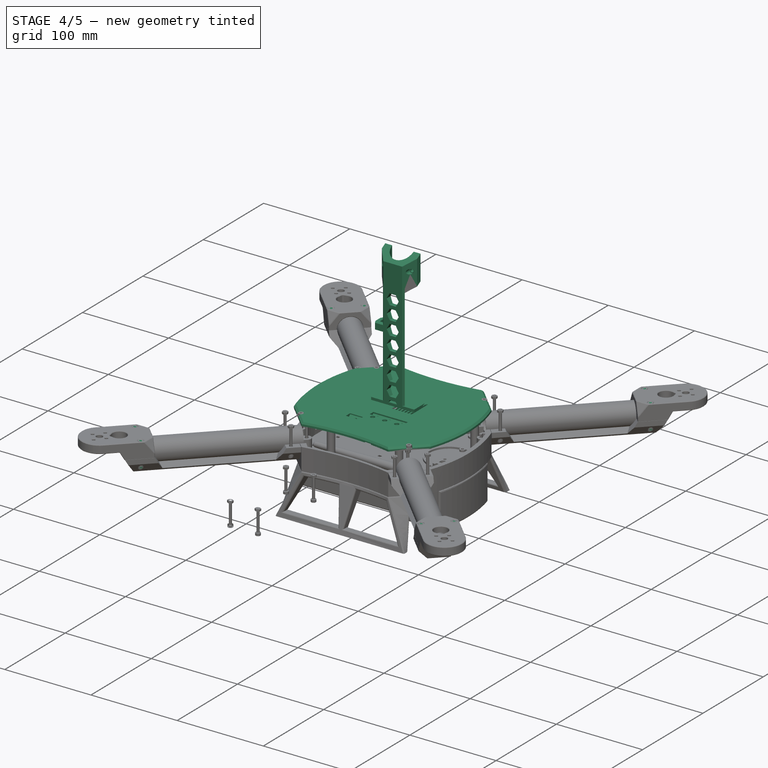
[diagram: stage 4 of 5 — iso view after this stage's code; geometry added in this stage tinted green]
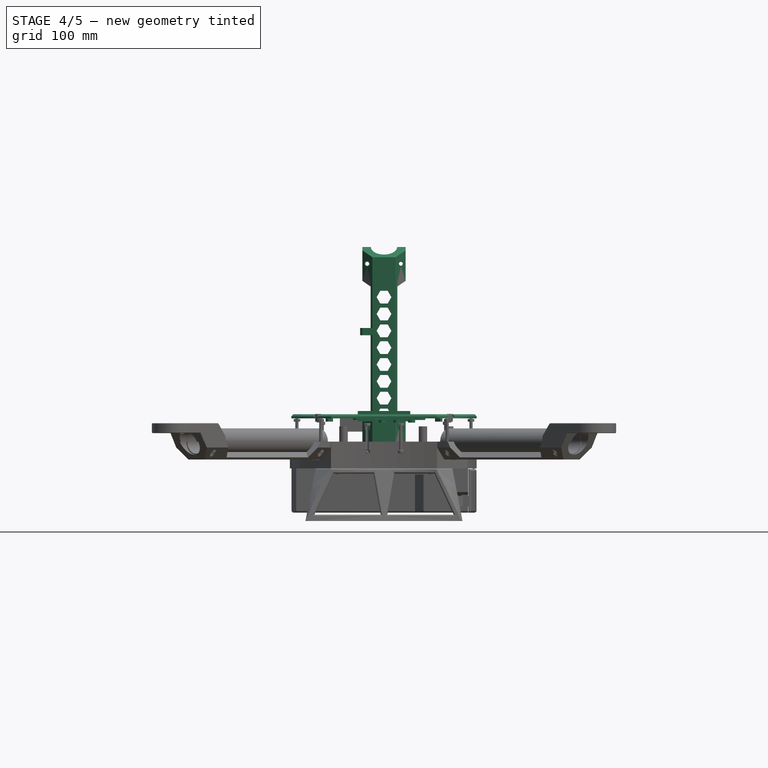
[diagram: stage 4 of 5 — front view after this stage's code; geometry added in this stage tinted green]
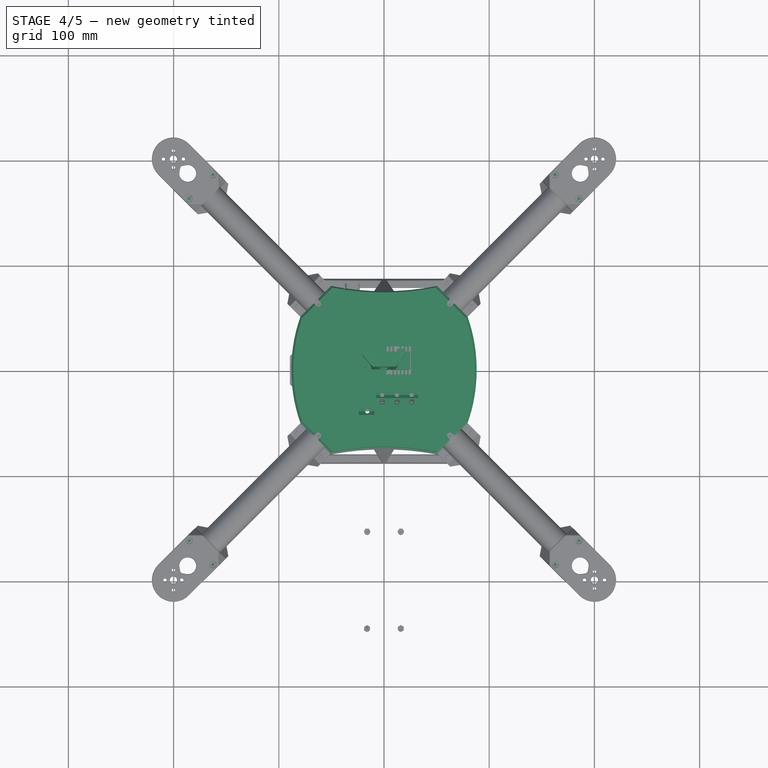
[diagram: stage 4 of 5 — top view after this stage's code; geometry added in this stage tinted green]
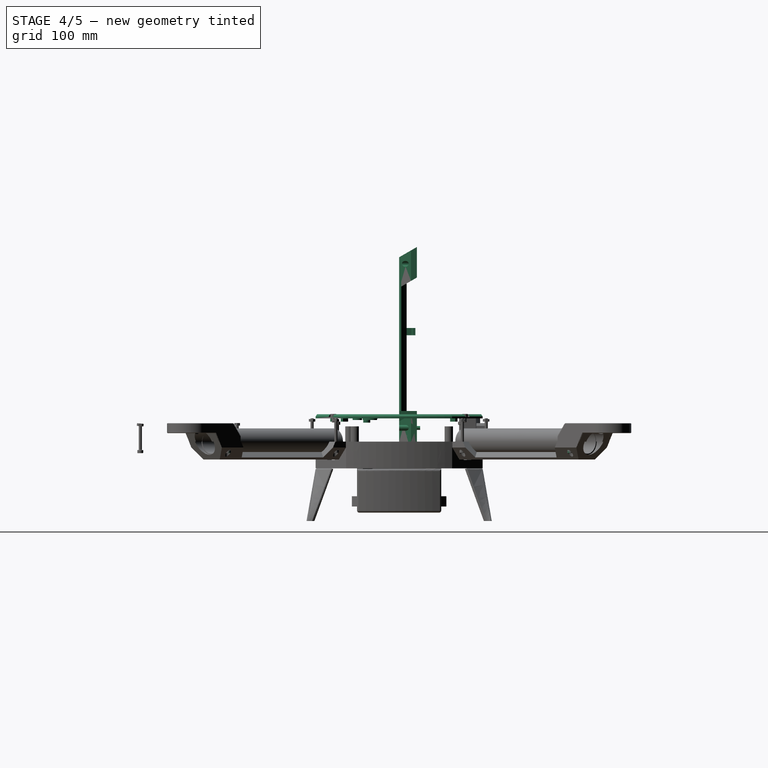
[diagram: stage 4 of 5 — right view after this stage's code; geometry added in this stage tinted green]
FEATURE [Sketcher::SketchObject] Sketch041
  sketch-geometry (7):
    g0: LineSegment StartX=-11 StartY=0 StartZ=0 EndX=11 EndY=0 EndZ=0
    g1: ArcOfCircle CenterX=0 CenterY=17 CenterZ=0 NormalX=0 NormalY=0 NormalZ=1 Radius=12.5 StartAngle=4.05789 EndAngle=5.36689
    g2: LineSegment [constr] StartX=-7.60952 StartY=7.08308 StartZ=0 EndX=7.60952 EndY=7.08308 EndZ=0
    g3: LineSegment StartX=11 StartY=0 StartZ=0 EndX=12.6782 EndY=2 EndZ=0
    g4: LineSegment StartX=12.6782 StartY=2 StartZ=0 EndX=7.60952 EndY=7.08308 EndZ=0
    g5: LineSegment StartX=-11 StartY=0 StartZ=0 EndX=-12.6782 EndY=2 EndZ=0
    g6: LineSegment StartX=-12.6782 StartY=2 StartZ=0 EndX=-7.60952 EndY=7.08308 EndZ=0
  constraints (20):
    c: Symmetric(g0,g0,g-2)
    c: DistanceX(g0,g0) = 22
    c: PointOnObject(g0,g-1)
    c: PointOnObject(g1,g-2)
    c: Radius(g1) = 12.5
    c: Coincident(g2,g1)
    c: Coincident(g2,g1)
    c: Horizontal(g2)
    c: Angle(g1) = 1.309
    c: DistanceY(g-1,g1) = 17
    c: Coincident(g3,g0)
    c: Coincident(g4,g3)
    c: Coincident(g4,g1)
    c: Coincident(g0,g5)
    c: Coincident(g5,g6)
    c: Coincident(g6,g1)
    c: Equal(g5,g3)
    c: Equal(g6,g4)
    c: Angle(g3,g0) = 2.26893
    c: DistanceY(g0,g3) = 2
FEATURE [Part::Extrusion] Extrude037  label="Wing"
  Base = -> Sketch041
  Dir = (0,0,128)
  Placement = pos=(0,0,17) rot=(0,0,1;0rad)
  Solid = true
FEATURE [Sketcher::SketchObject] Sketch042
  Placement = pos=(0,0,0) rot=(1,0,0;1.5708rad)
  sketch-geometry (69):
    g0: LineSegment StartX=3.5 StartY=19.1878 StartZ=0 EndX=7 EndY=25.25 EndZ=0
    g1: LineSegment StartX=7 StartY=25.25 StartZ=0 EndX=3.5 EndY=31.3122 EndZ=0
    g2: LineSegment StartX=3.5 StartY=31.3122 StartZ=0 EndX=-3.5 EndY=31.3122 EndZ=0
    g3: LineSegment StartX=-3.5 StartY=31.3122 StartZ=0 EndX=-7 EndY=25.25 EndZ=0
    g4: LineSegment StartX=-7 StartY=25.25 StartZ=0 EndX=-3.5 EndY=19.1878 EndZ=0
    g5: LineSegment StartX=-3.5 StartY=19.1878 StartZ=0 EndX=3.5 EndY=19.1878 EndZ=0
    g6: Circle [constr] CenterX=0 CenterY=25.25 CenterZ=0 NormalX=0 NormalY=0 NormalZ=1 Radius=7
    g7: LineSegment StartX=3.5 StartY=35.1878 StartZ=0 EndX=7 EndY=41.25 EndZ=0
    g8: LineSegment StartX=7 StartY=41.25 StartZ=0 EndX=3.5 EndY=47.3122 EndZ=0
    g9: LineSegment StartX=3.5 StartY=47.3122 StartZ=0 EndX=-3.5 EndY=47.3122 EndZ=0
    g10: LineSegment StartX=-3.5 StartY=47.3122 StartZ=0 EndX=-7 EndY=41.25 EndZ=0
    g11: LineSegment StartX=-7 StartY=41.25 StartZ=0 EndX=-3.5 EndY=35.1878 EndZ=0
    g12: LineSegment StartX=-3.5 StartY=35.1878 StartZ=0 EndX=3.5 EndY=35.1878 EndZ=0
    g13: Circle [constr] CenterX=0 CenterY=41.25 CenterZ=0 NormalX=0 NormalY=0 NormalZ=1 Radius=7
    g14: LineSegment StartX=3.5 StartY=51.1878 StartZ=0 EndX=7 EndY=57.25 EndZ=0
    g15: LineSegment StartX=7 StartY=57.25 StartZ=0 EndX=3.5 EndY=63.3122 EndZ=0
    g16: LineSegment StartX=3.5 StartY=63.3122 StartZ=0 EndX=-3.5 EndY=63.3122 EndZ=0
    g17: LineSegment StartX=-3.5 StartY=63.3122 StartZ=0 EndX=-7 EndY=57.25 EndZ=0
    g18: LineSegment StartX=-7 StartY=57.25 StartZ=0 EndX=-3.5 EndY=51.1878 EndZ=0
    g19: LineSegment StartX=-3.5 StartY=51.1878 StartZ=0 EndX=3.5 EndY=51.1878 EndZ=0
    g20: Circle [constr] CenterX=0 CenterY=57.25 CenterZ=0 NormalX=0 NormalY=0 NormalZ=1 Radius=7
    g21: LineSegment StartX=3.5 StartY=67.1878 StartZ=0 EndX=7 EndY=73.25 EndZ=0
    g22: LineSegment StartX=7 StartY=73.25 StartZ=0 EndX=3.5 EndY=79.3122 EndZ=0
    g23: LineSegment StartX=3.5 StartY=79.3122 StartZ=0 EndX=-3.5 EndY=79.3122 EndZ=0
    g24: LineSegment StartX=-3.5 StartY=79.3122 StartZ=0 EndX=-7 EndY=73.25 EndZ=0
    g25: LineSegment StartX=-7 StartY=73.25 StartZ=0 EndX=-3.5 EndY=67.1878 EndZ=0
    g26: LineSegment StartX=-3.5 StartY=67.1878 StartZ=0 EndX=3.5 EndY=67.1878 EndZ=0
    g27: Circle [constr] CenterX=0 CenterY=73.25 CenterZ=0 NormalX=0 NormalY=0 NormalZ=1 Radius=7
    g28: LineSegment StartX=3.5 StartY=83.1878 StartZ=0 EndX=7 EndY=89.25 EndZ=0
    g29: LineSegment StartX=7 StartY=89.25 StartZ=0 EndX=3.5 EndY=95.3122 EndZ=0
    g30: LineSegment StartX=3.5 StartY=95.3122 StartZ=0 EndX=-3.5 EndY=95.3122 EndZ=0
    g31: LineSegment StartX=-3.5 StartY=95.3122 StartZ=0 EndX=-7 EndY=89.25 EndZ=0
    g32: LineSegment StartX=-7 StartY=89.25 StartZ=0 EndX=-3.5 EndY=83.1878 EndZ=0
    g33: LineSegment StartX=-3.5 StartY=83.1878 StartZ=0 EndX=3.5 EndY=83.1878 EndZ=0
    g34: Circle [constr] CenterX=0 CenterY=89.25 CenterZ=0 NormalX=0 NormalY=0 NormalZ=1 Radius=7
    g35: LineSegment StartX=3.5 StartY=99.1878 StartZ=0 EndX=7 EndY=105.25 EndZ=0
    g36: LineSegment StartX=7 StartY=105.25 StartZ=0 EndX=3.5 EndY=111.312 EndZ=0
    g37: LineSegment StartX=3.5 StartY=111.312 StartZ=0 EndX=-3.5 EndY=111.312 EndZ=0
    g38: LineSegment StartX=-3.5 StartY=111.312 StartZ=0 EndX=-7 EndY=105.25 EndZ=0
    g39: LineSegment StartX=-7 StartY=105.25 StartZ=0 EndX=-3.5 EndY=99.1878 EndZ=0
    g40: LineSegment StartX=-3.5 StartY=99.1878 StartZ=0 EndX=3.5 EndY=99.1878 EndZ=0
    g41: Circle [constr] CenterX=0 CenterY=105.25 CenterZ=0 NormalX=0 NormalY=0 NormalZ=1 Radius=7
    g42: LineSegment StartX=3.5 StartY=115.188 StartZ=0 EndX=7 EndY=121.25 EndZ=0
    g43: LineSegment StartX=7 StartY=121.25 StartZ=0 EndX=3.5 EndY=127.312 EndZ=0
    g44: LineSegment StartX=3.5 StartY=127.312 StartZ=0 EndX=-3.5 EndY=127.312 EndZ=0
    g45: LineSegment StartX=-3.5 StartY=127.312 StartZ=0 EndX=-7 EndY=121.25 EndZ=0
    g46: LineSegment StartX=-7 StartY=121.25 StartZ=0 EndX=-3.5 EndY=115.188 EndZ=0
    g47: LineSegment StartX=-3.5 StartY=115.188 StartZ=0 EndX=3.5 EndY=115.188 EndZ=0
    g48: Circle [constr] CenterX=0 CenterY=121.25 CenterZ=0 NormalX=0 NormalY=0 NormalZ=1 Radius=7
    g49: LineSegment StartX=3.5 StartY=131.188 StartZ=0 EndX=7 EndY=137.25 EndZ=0
    g50: LineSegment StartX=7 StartY=137.25 StartZ=0 EndX=3.5 EndY=143.312 EndZ=0
    g51: LineSegment StartX=3.5 StartY=143.312 StartZ=0 EndX=-3.5 EndY=143.312 EndZ=0
    g52: LineSegment StartX=-3.5 StartY=143.312 StartZ=0 EndX=-7 EndY=137.25 EndZ=0
    g53: LineSegment StartX=-7 StartY=137.25 StartZ=0 EndX=-3.5 EndY=131.188 EndZ=0
    g54: LineSegment StartX=-3.5 StartY=131.188 StartZ=0 EndX=3.5 EndY=131.188 EndZ=0
    g55: Circle [constr] CenterX=0 CenterY=137.25 CenterZ=0 NormalX=0 NormalY=0 NormalZ=1 Radius=7
    g56: LineSegment [constr] StartX=0 StartY=137.25 StartZ=0 EndX=0 EndY=121.25 EndZ=0
    g57: LineSegment [constr] StartX=0 StartY=121.25 StartZ=0 EndX=0 EndY=105.25 EndZ=0
    g58: LineSegment [constr] StartX=0 StartY=105.25 StartZ=0 EndX=0 EndY=89.25 EndZ=0
    g59: LineSegment [constr] StartX=0 StartY=89.25 StartZ=0 EndX=0 EndY=73.25 EndZ=0
    g60: LineSegment [constr] StartX=0 StartY=73.25 StartZ=0 EndX=0 EndY=57.25 EndZ=0
    g61: LineSegment [constr] StartX=0 StartY=57.25 StartZ=0 EndX=0 EndY=41.25 EndZ=0
    g62: LineSegment [constr] StartX=0 StartY=41.25 StartZ=0 EndX=0 EndY=25.25 EndZ=0
    g63: LineSegment [constr] StartX=0 StartY=25.25 StartZ=0 EndX=0 EndY=9.25 EndZ=0
    g64: LineSegment StartX=5 StartY=-8.99998 StartZ=0 EndX=5 EndY=-16 EndZ=0
    g65: LineSegment StartX=5 StartY=-16 StartZ=0 EndX=-5 EndY=-16 EndZ=0
    g66: LineSegment StartX=-5 StartY=-16 StartZ=0 EndX=-5 EndY=-8.99998 EndZ=0
    g67: ArcOfCircle CenterX=0 CenterY=-9 CenterZ=0 NormalX=0 NormalY=0 NormalZ=1 Radius=5 StartAngle=3.14159 EndAngle=6.28319
    g68: Circle CenterX=0 CenterY=-9 CenterZ=0 NormalX=0 NormalY=0 NormalZ=1 Radius=1.85
  constraints (169):
    c: Coincident(g0,g1)
    c: Coincident(g1,g2)
    c: Coincident(g2,g3)
    c: Coincident(g3,g4)
    c: Coincident(g4,g5)
    c: Coincident(g5,g0)
    c: Equal(g0, g1-g5) x5
    c: PointOnObject(g0,g6)
    c: PointOnObject(g1,g6)
    c: PointOnObject(g2,g6)
    c: PointOnObject(g3,g6)
    c: PointOnObject(g4,g6)
    c: PointOnObject(g5,g6)
    c: PointOnObject(g6,g-2)
    c: Coincident(g7,g8)
    c: Coincident(g8,g9)
    c: Coincident(g9,g10)
    c: Coincident(g10,g11)
    c: Coincident(g11,g12)
    c: Coincident(g12,g7)
    c: Equal(g7, g8-g12) x5
    c: PointOnObject(g7,g13)
    c: PointOnObject(g8,g13)
    c: PointOnObject(g9,g13)
    c: PointOnObject(g10,g13)
    c: PointOnObject(g11,g13)
    c: PointOnObject(g12,g13)
    c: PointOnObject(g13,g-2)
    c: Horizontal(g12)
    c: Radius(g13) = 7
    c: Equal(g13,g6)
    c: Parallel(g12,g5)
    c: Coincident(g14,g15)
    c: Coincident(g15,g16)
    c: Coincident(g16,g17)
    c: Coincident(g17,g18)
    c: Coincident(g18,g19)
    c: Coincident(g19,g14)
    c: Equal(g14, g15-g19) x5
    c: PointOnObject(g14,g20)
    c: PointOnObject(g15,g20)
    c: PointOnObject(g16,g20)
    c: PointOnObject(g17,g20)
    c: PointOnObject(g18,g20)
    c: PointOnObject(g19,g20)
    c: PointOnObject(g20,g-2)
    c: Coincident(g21,g22)
    c: Coincident(g22,g23)
    c: Coincident(g23,g24)
    c: Coincident(g24,g25)
    c: Coincident(g25,g26)
    c: Coincident(g26,g21)
    c: Equal(g21, g22-g26) x5
    c: PointOnObject(g21,g27)
    c: PointOnObject(g22,g27)
    c: PointOnObject(g23,g27)
    c: PointOnObject(g24,g27)
    c: PointOnObject(g25,g27)
    c: PointOnObject(g26,g27)
    c: PointOnObject(g27,g-2)
    c: Horizontal(g26)
    c: Equal(g20,g27)
    c: Equal(g27,g13)
    c: Horizontal(g19)
    c: Coincident(g28,g29)
    c: Coincident(g29,g30)
    c: Coincident(g30,g31)
    c: Coincident(g31,g32)
    c: Coincident(g32,g33)
    c: Coincident(g33,g28)
    c: Equal(g28, g29-g33) x5
    c: PointOnObject(g28,g34)
    c: PointOnObject(g29,g34)
    c: PointOnObject(g30,g34)
    c: PointOnObject(g31,g34)
    c: PointOnObject(g32,g34)
    c: PointOnObject(g33,g34)
    c: PointOnObject(g34,g-2)
    c: Coincident(g35,g36)
    c: Coincident(g36,g37)
    c: Coincident(g37,g38)
    c: Coincident(g38,g39)
    c: Coincident(g39,g40)
    c: Coincident(g40,g35)
    c: Equal(g35, g36-g40) x5
    c: PointOnObject(g35,g41)
    c: PointOnObject(g36,g41)
    c: PointOnObject(g37,g41)
    c: PointOnObject(g38,g41)
    c: PointOnObject(g39,g41)
    c: PointOnObject(g40,g41)
    c: PointOnObject(g41,g-2)
    c: Horizontal(g33)
    c: Horizontal(g40)
    c: Equal(g34,g41)
    c: Equal(g41,g27)
    c: Coincident(g42,g43)
    c: Coincident(g43,g44)
    c: Coincident(g44,g45)
    c: Coincident(g45,g46)
    c: Coincident(g46,g47)
    c: Coincident(g47,g42)
    c: Equal(g42, g43-g47) x5
    c: PointOnObject(g42,g48)
    c: PointOnObject(g43,g48)
    c: PointOnObject(g44,g48)
    c: PointOnObject(g45,g48)
    c: PointOnObject(g46,g48)
    c: PointOnObject(g47,g48)
    c: PointOnObject(g48,g-2)
    c: Equal(g48,g41)
    c: Horizontal(g47)
    c: Coincident(g49,g50)
    c: Coincident(g50,g51)
    c: Coincident(g51,g52)
    c: Coincident(g52,g53)
    c: Coincident(g53,g54)
    c: Coincident(g54,g49)
    c: Equal(g49, g50-g54) x5
    c: PointOnObject(g49,g55)
    c: PointOnObject(g50,g55)
    c: PointOnObject(g51,g55)
    c: PointOnObject(g52,g55)
    c: PointOnObject(g53,g55)
    c: PointOnObject(g54,g55)
    c: PointOnObject(g55,g-2)
    c: Horizontal(g54)
    c: Coincident(g56,g55)
    c: Coincident(g56,g48)
    c: Coincident(g57,g48)
    c: Coincident(g57,g41)
    c: Coincident(g58,g41)
    c: Coincident(g58,g34)
    c: Coincident(g59,g34)
    c: Coincident(g59,g27)
    c: Coincident(g60,g27)
    c: Coincident(g60,g20)
    c: Coincident(g61,g20)
    c: Coincident(g61,g13)
    c: Coincident(g62,g13)
    c: Coincident(g62,g6)
    c: Coincident(g63,g6)
    c: Equal(g63,g62)
    c: Equal(g62,g61)
    c: Equal(g61,g60)
    c: Equal(g60,g59)
    c: Equal(g59,g58)
    c: Equal(g58,g57)
    c: Equal(g57,g56)
    c: DistanceY(g-1,g6) = 25.25
    c: DistanceY(g63,g63) = 16
    c: Equal(g55,g48)
    c: Vertical(g63)
    c: Coincident(g64,g65)
    c: Coincident(g65,g66)
    c: Horizontal(g65)
    c: Vertical(g64)
    c: Vertical(g66)
    c: PointOnObject(g67,g-2)
    c: Coincident(g67,g66)
    c: Coincident(g67,g64)
    c: Tangent(g64,g67)
    c: Tangent(g67,g66)
    c: Radius(g67) = 5
    c: PointOnObject(g68,g-2)
    c: Radius(g68) = 1.85
    c: DistanceY(g68,g-1) = 9
    c: Coincident(g67,g68)
    c: DistanceY(g64,g64) = 7
FEATURE [Part::Extrusion] Extrude038
  Base = -> Sketch042
  Dir = (0,20,0)
  Solid = true
FEATURE [Sketcher::SketchObject] Sketch005
  sketch-geometry (9):
    g0: LineSegment StartX=-11 StartY=0 StartZ=0 EndX=11 EndY=0 EndZ=0
    g1: ArcOfCircle CenterX=0 CenterY=17 CenterZ=0 NormalX=0 NormalY=0 NormalZ=1 Radius=12.5 StartAngle=3.15032 EndAngle=6.27446
    g2: LineSegment [constr] StartX=-12.4995 StartY=16.8909 StartZ=0 EndX=12.4995 EndY=16.8909 EndZ=0
    g3: LineSegment StartX=-20.5 StartY=11.3217 StartZ=0 EndX=-20.5 EndY=16.8909 EndZ=0
    g4: LineSegment StartX=-20.5 StartY=16.8909 StartZ=0 EndX=-12.4995 EndY=16.8909 EndZ=0
    g5: LineSegment StartX=20.5 StartY=11.3217 StartZ=0 EndX=20.5 EndY=16.8909 EndZ=0
    g6: LineSegment StartX=20.5 StartY=16.8909 StartZ=0 EndX=12.4995 EndY=16.8909 EndZ=0
    g7: LineSegment StartX=20.5 StartY=11.3217 StartZ=0 EndX=11 EndY=0 EndZ=0
    g8: LineSegment StartX=-20.5 StartY=11.3217 StartZ=0 EndX=-11 EndY=0 EndZ=0
  constraints (26):
    c: Symmetric(g0,g0,g-2)
    c: PointOnObject(g0,g-1)
    c: PointOnObject(g1,g-2)
    c: Radius(g1) = 12.5
    c: Coincident(g2,g1)
    c: Coincident(g2,g1)
    c: Horizontal(g2)
    c: Angle(g1) = 3.12414
    c: Vertical(g3)
    c: Coincident(g4,g1)
    c: Horizontal(g4)
    c: Coincident(g3,g4)
    c: Vertical(g5)
    c: Coincident(g6,g5)
    c: Horizontal(g6)
    c: Coincident(g6,g1)
    c: Equal(g4,g6)
    c: Equal(g5,g3)
    c: DistanceY(g-1,g1) = 17
    c: Coincident(g7,g5)
    c: Coincident(g7,g0)
    c: Coincident(g8,g0)
    c: Coincident(g8,g3)
    c: DistanceX(g3,g5) = 41
    c: Angle(g7,g0) = 2.26893
    c: DistanceX(g0,g0) = 22
FEATURE [Part::Extrusion] Extrude039
  Base = -> Sketch005
  Dir = (0,0,38)
  Placement = pos=(0,0,-9) rot=(0,0,1;0rad)
  Solid = true
FEATURE [Sketcher::SketchObject] Sketch043
  Placement = pos=(0,0,0) rot=(1,0,0;1.5708rad)
  sketch-geometry (6):
    g0: Circle CenterX=-16 CenterY=0 CenterZ=0 NormalX=0 NormalY=0 NormalZ=1 Radius=1.85
    g1: Circle CenterX=16 CenterY=0 CenterZ=0 NormalX=0 NormalY=0 NormalZ=1 Radius=1.85
    g2: LineSegment [constr] StartX=-16 StartY=30 StartZ=0 EndX=16 EndY=30 EndZ=0
    g3: LineSegment [constr] StartX=16 StartY=30 StartZ=0 EndX=16 EndY=0 EndZ=0
    g4: LineSegment [constr] StartX=16 StartY=0 StartZ=0 EndX=-16 EndY=0 EndZ=0
    g5: LineSegment [constr] StartX=-16 StartY=0 StartZ=0 EndX=-16 EndY=30 EndZ=0
  constraints (16):
    c: PointOnObject(g0,g-1)
    c: Symmetric(g0,g1,g-2)
    c: Radius(g0) = 1.85
    c: Equal(g0,g1)
    c: DistanceX(g0,g1) = 32
    c: Coincident(g2,g3)
    c: Coincident(g3,g4)
    c: Coincident(g4,g5)
    c: Coincident(g5,g2)
    c: Horizontal(g2)
    c: Horizontal(g4)
    c: Vertical(g3)
    c: Vertical(g5)
    c: Coincident(g3,g1)
    c: Coincident(g4,g0)
    c: DistanceY(g5,g5) = 30
FEATURE [Part::Extrusion] Extrude040
  Base = -> Sketch043
  Dir = (0,20,0)
  Solid = true
FEATURE [Sketcher::SketchObject] Sketch044
  Placement = pos=(0,0,0) rot=(1,0,0;1.5708rad)
  sketch-geometry (6):
    g0: Circle CenterX=-16 CenterY=0 CenterZ=0 NormalX=0 NormalY=0 NormalZ=1 Radius=2.75
    g1: Circle CenterX=16 CenterY=0 CenterZ=0 NormalX=0 NormalY=0 NormalZ=1 Radius=2.75
    g2: LineSegment [constr] StartX=-16 StartY=30 StartZ=0 EndX=16 EndY=30 EndZ=0
    g3: LineSegment [constr] StartX=16 StartY=30 StartZ=0 EndX=16 EndY=0 EndZ=0
    g4: LineSegment [constr] StartX=16 StartY=0 StartZ=0 EndX=-16 EndY=0 EndZ=0
    g5: LineSegment [constr] StartX=-16 StartY=0 StartZ=0 EndX=-16 EndY=30 EndZ=0
  constraints (16):
    c: PointOnObject(g0,g-1)
    c: Symmetric(g0,g1,g-2)
    c: Radius(g0) = 2.75
    c: Equal(g0,g1)
    c: DistanceX(g0,g1) = 32
    c: Coincident(g2,g3)
    c: Coincident(g3,g4)
    c: Coincident(g4,g5)
    c: Coincident(g5,g2)
    c: Horizontal(g2)
    c: Horizontal(g4)
    c: Vertical(g3)
    c: Vertical(g5)
    c: Coincident(g3,g1)
    c: Coincident(g4,g0)
    c: DistanceY(g5,g5) = 30
FEATURE [Part::Extrusion] Extrude041
  Base = -> Sketch044
  Dir = (0,9,0)
  Solid = true
FEATURE [Part::MultiFuse] Fusion016
  Placement = pos=(0,0,13) rot=(0,0,1;0rad)
  Shapes = -> [Extrude040,Extrude041]
FEATURE [Sketcher::SketchObject] Sketch045
  sketch-geometry (9):
    g0: LineSegment StartX=-11 StartY=0 StartZ=0 EndX=11 EndY=0 EndZ=0
    g1: ArcOfCircle CenterX=0 CenterY=17 CenterZ=0 NormalX=0 NormalY=0 NormalZ=1 Radius=12.5 StartAngle=3.15032 EndAngle=6.27446
    g2: LineSegment [constr] StartX=-12.4995 StartY=16.8909 StartZ=0 EndX=12.4995 EndY=16.8909 EndZ=0
    g3: LineSegment StartX=-20.5 StartY=11.3217 StartZ=0 EndX=-20.5 EndY=16.8909 EndZ=0
    g4: LineSegment StartX=-20.5 StartY=16.8909 StartZ=0 EndX=-12.4995 EndY=16.8909 EndZ=0
    g5: LineSegment StartX=20.5 StartY=11.3217 StartZ=0 EndX=20.5 EndY=16.8909 EndZ=0
    g6: LineSegment StartX=20.5 StartY=16.8909 StartZ=0 EndX=12.4995 EndY=16.8909 EndZ=0
    g7: LineSegment StartX=20.5 StartY=11.3217 StartZ=0 EndX=11 EndY=0 EndZ=0
    g8: LineSegment StartX=-20.5 StartY=11.3217 StartZ=0 EndX=-11 EndY=0 EndZ=0
  constraints (26):
    c: Symmetric(g0,g0,g-2)
    c: DistanceX(g0,g0) = 22
    c: PointOnObject(g0,g-1)
    c: PointOnObject(g1,g-2)
    c: Radius(g1) = 12.5
    c: Coincident(g2,g1)
    c: Coincident(g2,g1)
    c: Horizontal(g2)
    c: Angle(g1) = 3.12414
    c: Vertical(g3)
    c: Coincident(g4,g1)
    c: Horizontal(g4)
    c: Coincident(g3,g4)
    c: Vertical(g5)
    c: Coincident(g6,g5)
    c: Horizontal(g6)
    c: Coincident(g6,g1)
    c: Equal(g4,g6)
    c: Equal(g5,g3)
    c: DistanceY(g-1,g1) = 17
    c: Coincident(g7,g5)
    c: Coincident(g7,g0)
    c: Coincident(g8,g0)
    c: Coincident(g8,g3)
    c: Angle(g7,g0) = 2.26893
    c: DistanceX(g3,g5) = 41
FEATURE [Part::Extrusion] Extrude042
  Base = -> Sketch045
  Dir = (0,0,24)
  Solid = true
FEATURE [Sketcher::SketchObject] Sketch009
  Placement = pos=(0,0,0) rot=(1,0,0;1.5708rad)
  sketch-geometry (2):
    g0: Circle CenterX=-16 CenterY=0 CenterZ=0 NormalX=0 NormalY=0 NormalZ=1 Radius=1.85
    g1: Circle CenterX=16 CenterY=0 CenterZ=0 NormalX=0 NormalY=0 NormalZ=1 Radius=1.85
  constraints (5):
    c: PointOnObject(g0,g-1)
    c: Symmetric(g0,g1,g-2)
    c: Radius(g0) = 1.85
    c: Equal(g0,g1)
    c: DistanceX(g0,g1) = 32
FEATURE [Part::Extrusion] Extrude009
  Base = -> Sketch009
  Dir = (0,20,0)
  Solid = true
FEATURE [Sketcher::SketchObject] Sketch010
  Placement = pos=(0,0,0) rot=(1,0,0;1.5708rad)
  sketch-geometry (2):
    g0: Circle CenterX=-16 CenterY=0 CenterZ=0 NormalX=0 NormalY=0 NormalZ=1 Radius=2.75
    g1: Circle CenterX=16 CenterY=0 CenterZ=0 NormalX=0 NormalY=0 NormalZ=1 Radius=2.75
  constraints (5):
    c: PointOnObject(g0,g-1)
    c: Symmetric(g0,g1,g-2)
    c: Radius(g0) = 2.75
    c: Equal(g0,g1)
    c: DistanceX(g0,g1) = 32
FEATURE [Part::Extrusion] Extrude043
  Base = -> Sketch010
  Dir = (0,9,0)
  Solid = true
FEATURE [Part::MultiFuse] Fusion017
  Placement = pos=(0,0,9) rot=(0,0,1;0rad)
  Shapes = -> [Extrude009,Extrude043]
FEATURE [Part::Cut] Cut003  label="BodyBracket"
  Base = -> Extrude042
  Tool = -> Fusion017
FEATURE [Sketcher::SketchObject] Sketch216
  Placement = pos=(0,0,0) rot=(0.57735,0.57735,0.57735;2.0944rad)
  sketch-geometry (6):
    g0: LineSegment StartX=0 StartY=-9.81495 StartZ=0 EndX=17 EndY=0 EndZ=0
    g1: LineSegment StartX=17 StartY=0 StartZ=0 EndX=17 EndY=-9.81495 EndZ=0
    g2: LineSegment StartX=17 StartY=-9.81495 StartZ=0 EndX=0 EndY=-9.81495 EndZ=0
    g3: LineSegment StartX=17 StartY=29 StartZ=0 EndX=0 EndY=19.185 EndZ=0
    g4: LineSegment StartX=0 StartY=19.185 StartZ=0 EndX=0 EndY=29 EndZ=0
    g5: LineSegment StartX=0 StartY=29 StartZ=0 EndX=17 EndY=29 EndZ=0
  constraints (18):
    c: Coincident(g0,g1)
    c: Vertical(g1)
    c: Coincident(g1,g2)
    c: Coincident(g2,g0)
    c: Horizontal(g2)
    c: Angle(g2,g0) = 0.523599
    c: DistanceX(g2,g2) = 17
    c: PointOnObject(g0,g-2)
    c: PointOnObject(g0,g-1)
    c: Coincident(g3,g4)
    c: Vertical(g4)
    c: Coincident(g4,g5)
    c: Horizontal(g5)
    c: Coincident(g5,g3)
    c: Equal(g4,g1)
    c: Equal(g2,g5)
    c: PointOnObject(g3,g-2)
    c: DistanceY(g0,g3) = 29
FEATURE [Part::Extrusion] Extrude190
  Base = -> Sketch216
  Dir = (50,0,0)
  Placement = pos=(-25,0,0) rot=(0,0,1;0rad)
  Solid = true
FEATURE [Sketcher::SketchObject] Sketch046
  sketch-geometry (27):
    g0: Circle CenterX=0 CenterY=0 CenterZ=0 NormalX=0 NormalY=0 NormalZ=1 Radius=3.5
    g1: ArcOfCircle CenterX=0 CenterY=19.2111 CenterZ=0 NormalX=0 NormalY=0 NormalZ=1 Radius=8 StartAngle=5.30039 EndAngle=10.4076
    g2: ArcOfCircle CenterX=0 CenterY=12 CenterZ=0 NormalX=0 NormalY=0 NormalZ=1 Radius=2 StartAngle=4.12439 EndAngle=5.30039
    g3: LineSegment StartX=-4.4376 StartY=12.5547 StartZ=0 EndX=-1.1094 EndY=10.3359 EndZ=0
    g4: LineSegment StartX=4.4376 StartY=12.5547 StartZ=0 EndX=1.1094 EndY=10.3359 EndZ=0
    g5: LineSegment StartX=-20.5 StartY=-4e-12 StartZ=0 EndX=-20.5 EndY=70 EndZ=0
    g6: LineSegment StartX=-20.5 StartY=70 StartZ=0 EndX=-29.5 EndY=70 EndZ=0
    g7: LineSegment StartX=-29.5 StartY=70 StartZ=0 EndX=-29.5 EndY=-30 EndZ=0
    g8: LineSegment StartX=-29.5 StartY=-30 StartZ=0 EndX=29.5 EndY=-30 EndZ=0
    g9: LineSegment StartX=29.5 StartY=-30 StartZ=0 EndX=29.5 EndY=70 EndZ=0
    g10: LineSegment StartX=29.5 StartY=70 StartZ=0 EndX=20.5 EndY=70 EndZ=0
    g11: LineSegment StartX=20.5 StartY=70 StartZ=0 EndX=20.5 EndY=8e-12 EndZ=0
    g12: Circle CenterX=-16 CenterY=37 CenterZ=0 NormalX=0 NormalY=0 NormalZ=1 Radius=1.75
    g13: LineSegment [constr] StartX=-16 StartY=37 StartZ=0 EndX=16 EndY=37 EndZ=0
    g14: LineSegment [constr] StartX=16 StartY=37 StartZ=0 EndX=16 EndY=67 EndZ=0
    g15: LineSegment [constr] StartX=16 StartY=67 StartZ=0 EndX=-16 EndY=67 EndZ=0
    g16: LineSegment [constr] StartX=-16 StartY=67 StartZ=0 EndX=-16 EndY=37 EndZ=0
    g17: Circle [constr] CenterX=-16 CenterY=67 CenterZ=0 NormalX=0 NormalY=0 NormalZ=1 Radius=1.75
    g18: Circle [constr] CenterX=16 CenterY=67 CenterZ=0 NormalX=0 NormalY=0 NormalZ=1 Radius=1.75
    g19: Circle CenterX=16 CenterY=37 CenterZ=0 NormalX=0 NormalY=0 NormalZ=1 Radius=1.75
    g20: Circle CenterX=6.71751 CenterY=-6.71751 CenterZ=0 NormalX=0 NormalY=0 NormalZ=1 Radius=1.65
    g21: Circle CenterX=-6.71751 CenterY=6.71751 CenterZ=0 NormalX=0 NormalY=0 NormalZ=1 Radius=1.65
    g22: Circle CenterX=-5.65685 CenterY=-5.65685 CenterZ=0 NormalX=0 NormalY=0 NormalZ=1 Radius=1.65
    g23: Circle CenterX=5.65685 CenterY=5.65685 CenterZ=0 NormalX=0 NormalY=0 NormalZ=1 Radius=1.65
    g24: LineSegment [constr] StartX=-5.65685 StartY=-5.65685 StartZ=0 EndX=5.65685 EndY=5.65685 EndZ=0
    g25: LineSegment [constr] StartX=-6.71751 StartY=6.71751 StartZ=0 EndX=6.71751 EndY=-6.71751 EndZ=0
    g26: ArcOfCircle CenterX=0 CenterY=0 CenterZ=0 NormalX=0 NormalY=0 NormalZ=1 Radius=20.5 StartAngle=3.14159 EndAngle=6.28319
  constraints (71):
    c: Coincident(g0,g-1)
    c: Radius(g0) = 3.5
    c: Tangent(g1,g4) = 1.5708
    c: Tangent(g1,g3) = -1.5708
    c: Tangent(g3,g2) = -1.5708
    c: Tangent(g4,g2) = 1.5708
    c: PointOnObject(g2,g-2)
    c: Distance(g4) = 4
    c: Radius(g2) = 2
    c: Radius(g1) = 8
    c: PointOnObject(g1,g-2)
    c: DistanceY(g-1,g2) = 12
    c: Vertical(g5)
    c: Horizontal(g6)
    c: Vertical(g7)
    c: Coincident(g8,g7)
    c: Horizontal(g8)
    c: Vertical(g9)
    c: Coincident(g10,g9)
    c: Horizontal(g10)
    c: Vertical(g11)
    c: Coincident(g11,g10)
    c: Equal(g5,g11)
    c: Equal(g7,g9)
    c: Equal(g6,g10)
    c: Coincident(g9,g8)
    c: Coincident(g6,g5)
    c: Coincident(g6,g7)
    c: DistanceY(g9,g9) = 100
    c: DistanceX(g10,g10) = 9
    c: Radius(g12) = 1.75
    c: Coincident(g13,g14)
    c: Coincident(g14,g15)
    c: Coincident(g15,g16)
    c: Coincident(g16,g13)
    c: Horizontal(g13)
    c: Horizontal(g15)
    c: Vertical(g14)
    c: Vertical(g16)
    c: Coincident(g13,g12)
    c: DistanceX(g15,g15) = 32
    c: DistanceY(g14,g14) = 30
    c: Symmetric(g15,g14,g-2)
    c: Coincident(g17,g15)
    c: Coincident(g18,g14)
    c: Coincident(g19,g13)
    c: Equal(g17,g18)
    c: Equal(g18,g19)
    c: Equal(g19,g12)
    c: Radius(g22) = 1.65
    c: Equal(g22,g20)
    c: Equal(g22,g23)
    c: Equal(g22,g21)
    c: Symmetric(g22,g23,g-1)
    c: Symmetric(g21,g20,g-1)
    c: Distance(g21,g20) = 19
    c: Distance(g22,g23) = 16
    c: Coincident(g24,g22)
    c: Coincident(g24,g23)
    c: Coincident(g25,g20)
    c: Angle(g25,g24) = 1.5708
    c: Angle(g-1,g24) = 0.785398
    c: DistanceX(g5,g10) = 41
    c: DistanceY(g7,g-1) = 30
    c: Coincident(g21,g25)
    c: Symmetric(g5,g10,g-2)
    c: PointOnObject(g11,g-1)
    c: Coincident(g26,g-1)
    c: Coincident(g26,g5)
    c: Coincident(g26,g11)
    c: DistanceY(g-1,g12) = 37
FEATURE [Sketcher::SketchObject] Sketch047
  Placement = pos=(0,32,0) rot=(1,0,0;1.5708rad)
  sketch-geometry (1):
    g0: Circle CenterX=0 CenterY=0 CenterZ=0 NormalX=0 NormalY=0 NormalZ=1 Radius=12.5
  constraints (2):
    c: Coincident(g0,g-1)
    c: Radius(g0) = 12.5
FEATURE [Part::Extrusion] Extrude044
  Base = -> Sketch046
  Dir = (0,0,30)
  Solid = true
FEATURE [Sketcher::SketchObject] Sketch048
  Placement = pos=(33,0,0) rot=(0.57735,0.57735,0.57735;2.0944rad)
  sketch-geometry (4):
    g0: LineSegment StartX=-30 StartY=8 StartZ=0 EndX=16 EndY=8 EndZ=0
    g1: LineSegment StartX=20.6188 StartY=0 StartZ=0 EndX=-30 EndY=0 EndZ=0
    g2: LineSegment StartX=-30 StartY=0 StartZ=0 EndX=-30 EndY=8 EndZ=0
    g3: LineSegment StartX=16 StartY=8 StartZ=0 EndX=20.6188 EndY=0 EndZ=0
  constraints (12):
    c: Coincident(g1,g2)
    c: Coincident(g2,g0)
    c: Horizontal(g0)
    c: Horizontal(g1)
    c: Vertical(g2)
    c: DistanceY(g2,g2) = 8
    c: PointOnObject(g-1,g1)
    c: DistanceX(g-1,g0) = 16
    c: DistanceX(g0,g-1) = 30
    c: Coincident(g3,g0)
    c: Coincident(g3,g1)
    c: Angle(g3,g1) = 1.0472
FEATURE [Part::Extrusion] Extrude045
  Base = -> Sketch048
  Dir = (-60,0,0)
  Solid = true
FEATURE [Sketcher::SketchObject] Sketch049
  Placement = pos=(0,-28,0) rot=(1,0,0;1.5708rad)
  sketch-geometry (4):
    g0: LineSegment StartX=-25 StartY=17.5 StartZ=0 EndX=25 EndY=17.5 EndZ=0
    g1: LineSegment StartX=25 StartY=17.5 StartZ=0 EndX=25 EndY=0 EndZ=0
    g2: LineSegment StartX=25 StartY=0 StartZ=0 EndX=-25 EndY=0 EndZ=0
    g3: LineSegment StartX=-25 StartY=17.5 StartZ=0 EndX=-25 EndY=0 EndZ=0
  constraints (12):
    c: Coincident(g0,g1)
    c: Horizontal(g0)
    c: Vertical(g1)
    c: Coincident(g2,g1)
    c: Horizontal(g2)
    c: Vertical(g3)
    c: Coincident(g0,g3)
    c: DistanceX(g0,g0) = 50
    c: Coincident(g2,g3)
    c: Symmetric(g2,g1,g-2)
    c: DistanceY(g-1,g0) = 17.5
    c: PointOnObject(g2,g-1)
FEATURE [Part::Extrusion] Extrude046
  Base = -> Sketch049
  Dir = (0,78,0)
  Solid = true
FEATURE [Part::Extrusion] Extrude047
  Base = -> Sketch047
  Dir = (0,50,0)
  Placement = pos=(0,-3,0) rot=(0,0,1;0rad)
  Solid = true
FEATURE [Part::Cut] Cut029
  Base = -> Extrude046
  Tool = -> Extrude045
FEATURE [Part::Cut] Cut001
  Base = -> Cut029
  Tool = -> Extrude047
FEATURE [Part::Cut] Cut030
  Base = -> Cut001
  Tool = -> Extrude044
FEATURE [Sketcher::SketchObject] Sketch050
  Placement = pos=(0,33,0) rot=(1,0,0;1.5708rad)
  sketch-geometry (1):
    g0: Circle CenterX=0 CenterY=0 CenterZ=0 NormalX=0 NormalY=0 NormalZ=1 Radius=10.75
  constraints (2):
    c: Coincident(g0,g-1)
    c: Radius(g0) = 10.75
FEATURE [Part::Extrusion] Extrude048
  Base = -> Sketch050
  Dir = (0,27,0)
  Placement = pos=(0,-17,0) rot=(0,0,1;0rad)
  Solid = true
FEATURE [Sketcher::SketchObject] Sketch051
  Placement = pos=(0,40,0) rot=(0,0,1;0rad)
  sketch-geometry (32):
    g0: LineSegment [constr] StartX=-16 StartY=27 StartZ=0 EndX=16 EndY=27 EndZ=0
    g1: LineSegment [constr] StartX=16 StartY=27 StartZ=0 EndX=16 EndY=-3 EndZ=0
    g2: LineSegment [constr] StartX=16 StartY=-3 StartZ=0 EndX=-16 EndY=-3 EndZ=0
    g3: LineSegment [constr] StartX=-16 StartY=-3 StartZ=0 EndX=-16 EndY=27 EndZ=0
    g4: Circle [constr] CenterX=-16 CenterY=-3 CenterZ=0 NormalX=0 NormalY=0 NormalZ=1 Radius=3.25
    g5: Circle [constr] CenterX=16 CenterY=-3 CenterZ=0 NormalX=0 NormalY=0 NormalZ=1 Radius=3.25
    g6: Circle [constr] CenterX=-16 CenterY=27 CenterZ=0 NormalX=0 NormalY=0 NormalZ=1 Radius=3.25
    g7: Circle [constr] CenterX=16 CenterY=27 CenterZ=0 NormalX=0 NormalY=0 NormalZ=1 Radius=3.25
    g8: LineSegment StartX=-16 StartY=0.25 StartZ=0 EndX=-13.1854 EndY=-1.375 EndZ=0
    g9: LineSegment StartX=-13.1854 StartY=-1.375 StartZ=0 EndX=-13.1854 EndY=-4.625 EndZ=0
    g10: LineSegment StartX=-13.1854 StartY=-4.625 StartZ=0 EndX=-16 EndY=-6.25 EndZ=0
    g11: LineSegment StartX=-16 StartY=-6.25 StartZ=0 EndX=-18.8146 EndY=-4.625 EndZ=0
    g12: LineSegment StartX=-18.8146 StartY=-4.625 StartZ=0 EndX=-18.8146 EndY=-1.375 EndZ=0
    g13: LineSegment StartX=-18.8146 StartY=-1.375 StartZ=0 EndX=-16 EndY=0.25 EndZ=0
    g14: LineSegment StartX=16 StartY=0.25 StartZ=0 EndX=18.8146 EndY=-1.375 EndZ=0
    g15: LineSegment StartX=18.8146 StartY=-1.375 StartZ=0 EndX=18.8146 EndY=-4.625 EndZ=0
    g16: LineSegment StartX=18.8146 StartY=-4.625 StartZ=0 EndX=16 EndY=-6.25 EndZ=0
    g17: LineSegment StartX=16 StartY=-6.25 StartZ=0 EndX=13.1854 EndY=-4.625 EndZ=0
    g18: LineSegment StartX=13.1854 StartY=-4.625 StartZ=0 EndX=13.1854 EndY=-1.375 EndZ=0
    g19: LineSegment StartX=13.1854 StartY=-1.375 StartZ=0 EndX=16 EndY=0.25 EndZ=0
    g20: LineSegment [constr] StartX=14.375 StartY=29.8146 StartZ=0 EndX=17.625 EndY=29.8146 EndZ=0
    g21: LineSegment [constr] StartX=17.625 StartY=29.8146 StartZ=0 EndX=19.25 EndY=27 EndZ=0
    g22: LineSegment [constr] StartX=19.25 StartY=27 StartZ=0 EndX=17.625 EndY=24.1854 EndZ=0
    g23: LineSegment [constr] StartX=17.625 StartY=24.1854 StartZ=0 EndX=14.375 EndY=24.1854 EndZ=0
    g24: LineSegment [constr] StartX=14.375 StartY=24.1854 StartZ=0 EndX=12.75 EndY=27 EndZ=0
    g25: LineSegment [constr] StartX=12.75 StartY=27 StartZ=0 EndX=14.375 EndY=29.8146 EndZ=0
    g26: LineSegment [constr] StartX=-17.625 StartY=29.8146 StartZ=0 EndX=-14.375 EndY=29.8146 EndZ=0
    g27: LineSegment [constr] StartX=-14.375 StartY=29.8146 StartZ=0 EndX=-12.75 EndY=27 EndZ=0
    g28: LineSegment [constr] StartX=-12.75 StartY=27 StartZ=0 EndX=-14.375 EndY=24.1854 EndZ=0
    g29: LineSegment [constr] StartX=-14.375 StartY=24.1854 StartZ=0 EndX=-17.625 EndY=24.1854 EndZ=0
    g30: LineSegment [constr] StartX=-17.625 StartY=24.1854 StartZ=0 EndX=-19.25 EndY=27 EndZ=0
    g31: LineSegment [constr] StartX=-19.25 StartY=27 StartZ=0 EndX=-17.625 EndY=29.8146 EndZ=0
  constraints (92):
    c: Coincident(g0,g1)
    c: Coincident(g1,g2)
    c: Coincident(g2,g3)
    c: Coincident(g3,g0)
    c: Horizontal(g0)
    c: Horizontal(g2)
    c: Vertical(g1)
    c: Vertical(g3)
    c: Symmetric(g2,g1,g-2)
    c: DistanceY(g1,g1) = 30
    c: DistanceX(g0,g0) = 32
    c: Coincident(g5,g1)
    c: Coincident(g6,g0)
    c: Coincident(g7,g0)
    c: Equal(g6,g4)
    c: Equal(g4,g5)
    c: Equal(g5,g7)
    c: Radius(g4) = 3.25
    c: Coincident(g4,g2)
    c: PointOnObject(g8,g4)
    c: Coincident(g8,g9)
    c: PointOnObject(g9,g4)
    c: Coincident(g9,g10)
    c: Coincident(g10,g11)
    c: PointOnObject(g11,g4)
    c: Coincident(g11,g12)
    c: PointOnObject(g12,g4)
    c: Coincident(g12,g13)
    c: Coincident(g13,g8)
    c: Equal(g12,g13)
    c: Equal(g13,g8)
    c: Equal(g8,g9)
    c: Equal(g9,g10)
    c: Equal(g10,g11)
    c: PointOnObject(g8,g4)
    c: PointOnObject(g14,g5)
    c: Coincident(g14,g15)
    c: PointOnObject(g15,g5)
    c: Coincident(g15,g16)
    c: PointOnObject(g16,g5)
    c: Coincident(g16,g17)
    c: PointOnObject(g17,g5)
    c: Coincident(g17,g18)
    c: Coincident(g18,g19)
    c: Coincident(g19,g14)
    c: PointOnObject(g20,g7)
    c: PointOnObject(g20,g7)
    c: Horizontal(g20)
    c: Coincident(g20,g21)
    c: PointOnObject(g21,g7)
    c: Coincident(g21,g22)
    c: PointOnObject(g22,g7)
    c: Coincident(g22,g23)
    c: PointOnObject(g23,g7)
    c: Horizontal(g23)
    c: Coincident(g23,g24)
    c: PointOnObject(g24,g7)
    c: Coincident(g24,g25)
    c: Coincident(g25,g20)
    c: PointOnObject(g26,g6)
    c: Horizontal(g26)
    c: Coincident(g26,g27)
    c: PointOnObject(g27,g6)
    c: Coincident(g27,g28)
    c: PointOnObject(g28,g6)
    c: Coincident(g28,g29)
    c: PointOnObject(g29,g6)
    c: Horizontal(g29)
    c: Coincident(g29,g30)
    c: PointOnObject(g30,g6)
    c: Coincident(g30,g31)
    c: Coincident(g31,g26)
    c: Equal(g31,g26)
    c: Equal(g26,g27)
    c: Equal(g27,g28)
    c: Equal(g28,g29)
    c: Equal(g29,g30)
    c: Equal(g21,g20)
    c: Equal(g20,g25)
    c: Equal(g25,g24)
    c: Equal(g24,g23)
    c: Equal(g14,g15)
    c: Equal(g15,g16)
    c: Equal(g16,g17)
    c: Equal(g17,g18)
    c: Equal(g18,g19)
    c: PointOnObject(g18,g5)
    c: DistanceY(g-1,g0) = 27
    c: PointOnObject(g10,g4)
    c: Vertical(g12)
    c: Vertical(g18)
    c: PointOnObject(g14,g5)
FEATURE [Part::Extrusion] Extrude049
  Base = -> Sketch051
  Dir = (0,0,5)
  Placement = pos=(0,0,13) rot=(0,0,1;0rad)
  Solid = true
FEATURE [Sketcher::SketchObject] Sketch052
  sketch-geometry (9):
    g0: LineSegment [constr] StartX=-30 StartY=-30 StartZ=0 EndX=30 EndY=30 EndZ=0
    g1: LineSegment [constr] StartX=-30 StartY=30 StartZ=0 EndX=30 EndY=-30 EndZ=0
    g2: LineSegment [constr] StartX=30 StartY=30 StartZ=0 EndX=30 EndY=-30 EndZ=0
    g3: LineSegment [constr] StartX=-30 StartY=-30 StartZ=0 EndX=-30 EndY=30 EndZ=0
    g4: LineSegment [constr] StartX=-30 StartY=-30 StartZ=0 EndX=30 EndY=-30 EndZ=0
    g5: Circle CenterX=-6.71751 CenterY=6.71751 CenterZ=0 NormalX=0 NormalY=0 NormalZ=1 Radius=2.75
    g6: Circle CenterX=5.65685 CenterY=5.65685 CenterZ=0 NormalX=0 NormalY=0 NormalZ=1 Radius=2.75
    g7: Circle CenterX=6.71751 CenterY=-6.71751 CenterZ=0 NormalX=0 NormalY=0 NormalZ=1 Radius=2.75
    g8: Circle CenterX=-5.65685 CenterY=-5.65685 CenterZ=0 NormalX=0 NormalY=0 NormalZ=1 Radius=2.75
  constraints (27):
    c: PointOnObject(g-1,g1)
    c: PointOnObject(g-1,g0)
    c: Angle(g0) = 0.785398
    c: Vertical(g3)
    c: Coincident(g1,g2)
    c: DistanceY(g2,g2) = 60
    c: Coincident(g1,g3)
    c: Coincident(g0,g2)
    c: Vertical(g2)
    c: Coincident(g3,g0)
    c: Coincident(g4,g0)
    c: Coincident(g4,g1)
    c: Horizontal(g4)
    c: Equal(g4,g2)
    c: Equal(g3,g2)
    c: PointOnObject(g5,g1)
    c: PointOnObject(g6,g0)
    c: PointOnObject(g7,g1)
    c: PointOnObject(g8,g0)
    c: Radius(g8) = 2.75
    c: Equal(g8,g7)
    c: Equal(g8,g6)
    c: Equal(g8,g5)
    c: Symmetric(g5,g7,g-1)
    c: Symmetric(g8,g6,g-1)
    c: Distance(g5,g7) = 19
    c: Distance(g8,g6) = 16
FEATURE [Part::Extrusion] Extrude050
  Base = -> Sketch052
  Dir = (0,0,3)
  Placement = pos=(0,0,8) rot=(0,0,1;0rad)
  Solid = true
FEATURE [Part::Cut] Cut031
  Base = -> Cut030
  Tool = -> Extrude050
FEATURE [Part::Cut] Cut004
  Base = -> Cut031
  Tool = -> Extrude048
FEATURE [Part::Cut] Cut005
  Base = -> Cut004
  Tool = -> Extrude049
FEATURE [Sketcher::SketchObject] Sketch077
  Placement = pos=(0,0,0) rot=(0.57735,0.57735,0.57735;2.0944rad)
  sketch-geometry (3):
    g0: LineSegment StartX=-8.66025 StartY=15 StartZ=0 EndX=0 EndY=15 EndZ=0
    g1: LineSegment StartX=0 StartY=15 StartZ=0 EndX=0 EndY=0 EndZ=0
    g2: LineSegment StartX=0 StartY=0 StartZ=0 EndX=-8.66025 EndY=15 EndZ=0
  constraints (8):
    c: Horizontal(g0)
    c: Coincident(g0,g1)
    c: Vertical(g1)
    c: Coincident(g1,g2)
    c: Coincident(g2,g0)
    c: DistanceY(g1,g1) = 15
    c: Coincident(g1,g-1)
    c: Angle(g1,g2) = 0.523599
FEATURE [Part::Extrusion] Extrude076
  Base = -> Sketch077
  Dir = (23,0,0)
  Placement = pos=(13,0,0) rot=(0,0,-1;0.785398rad)
  Solid = true
FEATURE [Part::Extrusion] Extrude077
  Base = -> Sketch077
  Dir = (-23,0,0)
  Placement = pos=(-13,0,0) rot=(0,0,1;0.785398rad)
  Solid = true
FEATURE [Part::MultiFuse] Fusion032
  Placement = pos=(0,59,3) rot=(0,0,1;0rad)
  Shapes = -> [Extrude076,Extrude077]
FEATURE [Part::Cut] Cut043
  Base = -> Cut005
  Tool = -> Fusion032
FEATURE [Part::Chamfer] Chamfer
  Base = -> Cut043
  Edges = 46 edges r=0.5: [Edge1,Edge2,Edge3,Edge4,Edge5,Edge6,Edge7,Edge8,Edge9,Edge10,Edge11,Edge12,Edge13,Edge14,Edge15,Edge16,Edge17,Edge18,Edge19,Edge20,Edge21,Edge22,Edge23,Edge24,Edge25,Edge26,Edge27,Edge28,Edge32,Edge33,Edge34,Edge35,Edge36,Edge38,Edge40,Edge41,Edge42,Edge43,Edge44,Edge80,Edge96,Edge97,Edge98,Edge99,+2 more]
  Placement = pos=(0,0,0) rot=(0,1,0;3.14159rad)
FEATURE [Part::MultiFuse] Fusion034002
  Shapes = -> [Fusion016,Extrude190]
FEATURE [Part::Cut] Cut003004011
  Base = -> Extrude039
  Placement = pos=(0,0,141) rot=(0,0,1;0rad)
  Tool = -> Fusion034002
FEATURE [Part::FeaturePython] Clone001  label="Clone of Chamfer"  # Draft clone (typed FeaturePython)
  Objects = -> [Chamfer]
  Placement = pos=(0,17,191) rot=(-1,0,0;1.5708rad)
  Scale = (1,1,1)
FEATURE [Sketcher::SketchObject] Sketch078
  Placement = pos=(0,0,0) rot=(0.57735,0.57735,0.57735;2.0944rad)
  sketch-geometry (3):
    g0: LineSegment StartX=0 StartY=24 StartZ=0 EndX=17 EndY=24 EndZ=0
    g1: LineSegment StartX=0 StartY=24 StartZ=0 EndX=17 EndY=14.185 EndZ=0
    g2: LineSegment StartX=17 StartY=14.185 StartZ=0 EndX=17 EndY=24 EndZ=0
  constraints (9):
    c: Horizontal(g0)
    c: Coincident(g0,g1)
    c: Coincident(g1,g2)
    c: Coincident(g2,g0)
    c: Vertical(g2)
    c: DistanceX(g0,g0) = 17
    c: Angle(g1,g0) = 0.523599
    c: PointOnObject(g0,g-2)
    c: DistanceY(g-1,g0) = 24
FEATURE [Part::Extrusion] Extrude078
  Base = -> Sketch078
  Dir = (50,0,0)
  Placement = pos=(-25,0,0) rot=(0,0,1;0rad)
  Solid = true
FEATURE [Part::Cut] Cut003002
  Base = -> Cut003
  Tool = -> Extrude078
FEATURE [Sketcher::SketchObject] Sketch081
  sketch-geometry (5):
    g0: LineSegment StartX=-4.875 StartY=0 StartZ=0 EndX=4.875 EndY=0 EndZ=0
    g1: ArcOfCircle CenterX=0 CenterY=17 CenterZ=0 NormalX=0 NormalY=0 NormalZ=1 Radius=12.5 StartAngle=4.31176 EndAngle=5.11302
    g2: LineSegment [constr] StartX=-4.875 StartY=5.48981 StartZ=0 EndX=4.875 EndY=5.48981 EndZ=0
    g3: LineSegment StartX=-4.875 StartY=5.48981 StartZ=0 EndX=-4.875 EndY=0 EndZ=0
    g4: LineSegment StartX=4.875 StartY=5.48981 StartZ=0 EndX=4.875 EndY=0 EndZ=0
  constraints (14):
    c: Symmetric(g0,g0,g-2)
    c: PointOnObject(g0,g-1)
    c: PointOnObject(g1,g-2)
    c: Radius(g1) = 12.5
    c: Coincident(g2,g1)
    c: Coincident(g2,g1)
    c: Horizontal(g2)
    c: DistanceY(g-1,g1) = 17
    c: Coincident(g3,g1)
    c: Coincident(g3,g0)
    c: Vertical(g3)
    c: Coincident(g4,g1)
    c: Coincident(g4,g0)
    c: DistanceX(g0,g0) = 9.75
FEATURE [Part::Extrusion] Extrude081
  Base = -> Sketch081
  Dir = (0,0,-14)
  Solid = true
FEATURE [Sketcher::SketchObject] Sketch179
  sketch-geometry (4):
    g0: LineSegment StartX=-4.875 StartY=0 StartZ=0 EndX=4.875 EndY=0 EndZ=0
    g1: LineSegment StartX=-4.875 StartY=16.75 StartZ=0 EndX=4.875 EndY=16.75 EndZ=0
    g2: LineSegment StartX=-4.875 StartY=16.75 StartZ=0 EndX=-4.875 EndY=0 EndZ=0
    g3: LineSegment StartX=4.875 StartY=16.75 StartZ=0 EndX=4.875 EndY=0 EndZ=0
  constraints (11):
    c: Symmetric(g0,g0,g-2)
    c: PointOnObject(g0,g-1)
    c: Horizontal(g1)
    c: Coincident(g2,g0)
    c: Vertical(g2)
    c: Coincident(g3,g0)
    c: DistanceX(g0,g0) = 9.75
    c: Coincident(g3,g1)
    c: Coincident(g2,g1)
    c: Vertical(g3)
    c: DistanceY(g3,g3) = 16.75
FEATURE [Part::Extrusion] Extrude160
  Base = -> Sketch179
  Dir = (0,0,-9)
  Placement = pos=(0,0,-5) rot=(0,0,1;0rad)
  Solid = true
FEATURE [Part::MultiFuse] Fusion034003
  Shapes = -> [Extrude037,Cut003004011,Cut003002,Extrude081,Extrude160]
FEATURE [Part::Cut] Cut009010006005  label="165mmWingCut009010006005"
  Base = -> Fusion034003
  Tool = -> Extrude038
FEATURE [Sketcher::SketchObject] Sketch231
  sketch-geometry (9):
    g0: LineSegment StartX=-11 StartY=0 StartZ=0 EndX=11 EndY=0 EndZ=0
    g1: ArcOfCircle CenterX=0 CenterY=17 CenterZ=0 NormalX=0 NormalY=0 NormalZ=1 Radius=12.5 StartAngle=3.15032 EndAngle=6.27446
    g2: LineSegment [constr] StartX=-12.4995 StartY=16.8909 StartZ=0 EndX=12.4995 EndY=16.8909 EndZ=0
    g3: LineSegment StartX=-20.5 StartY=11.3217 StartZ=0 EndX=-20.5 EndY=16.8909 EndZ=0
    g4: LineSegment StartX=-20.5 StartY=16.8909 StartZ=0 EndX=-12.4995 EndY=16.8909 EndZ=0
    g5: LineSegment StartX=20.5 StartY=11.3217 StartZ=0 EndX=20.5 EndY=16.8909 EndZ=0
    g6: LineSegment StartX=20.5 StartY=16.8909 StartZ=0 EndX=12.4995 EndY=16.8909 EndZ=0
    g7: LineSegment StartX=20.5 StartY=11.3217 StartZ=0 EndX=11 EndY=0 EndZ=0
    g8: LineSegment StartX=-20.5 StartY=11.3217 StartZ=0 EndX=-11 EndY=0 EndZ=0
  constraints (26):
    c: Symmetric(g0,g0,g-2)
    c: PointOnObject(g0,g-1)
    c: PointOnObject(g1,g-2)
    c: Radius(g1) = 12.5
    c: Coincident(g2,g1)
    c: Coincident(g2,g1)
    c: Horizontal(g2)
    c: Angle(g1) = 3.12414
    c: Vertical(g3)
    c: Coincident(g4,g1)
    c: Horizontal(g4)
    c: Coincident(g3,g4)
    c: Vertical(g5)
    c: Coincident(g6,g5)
    c: Horizontal(g6)
    c: Coincident(g6,g1)
    c: Equal(g4,g6)
    c: Equal(g5,g3)
    c: DistanceY(g-1,g1) = 17
    c: Coincident(g7,g5)
    c: Coincident(g7,g0)
    c: Coincident(g8,g0)
    c: Coincident(g8,g3)
    c: DistanceX(g3,g5) = 41
    c: Angle(g7,g0) = 2.26893
    c: DistanceX(g0,g0) = 22
FEATURE [Part::Extrusion] Extrude136017
  Base = -> Sketch231
  Dir = (0,0,38)
  Placement = pos=(0,0,-9) rot=(0,0,1;0rad)
  Solid = true
FEATURE [Sketcher::SketchObject] Sketch232
  Placement = pos=(0,0,0) rot=(1,0,0;1.5708rad)
  sketch-geometry (6):
    g0: Circle CenterX=-16 CenterY=0 CenterZ=0 NormalX=0 NormalY=0 NormalZ=1 Radius=1.85
    g1: Circle CenterX=16 CenterY=0 CenterZ=0 NormalX=0 NormalY=0 NormalZ=1 Radius=1.85
    g2: LineSegment [constr] StartX=-16 StartY=30 StartZ=0 EndX=16 EndY=30 EndZ=0
    g3: LineSegment [constr] StartX=16 StartY=30 StartZ=0 EndX=16 EndY=0 EndZ=0
    g4: LineSegment [constr] StartX=16 StartY=0 StartZ=0 EndX=-16 EndY=0 EndZ=0
    g5: LineSegment [constr] StartX=-16 StartY=0 StartZ=0 EndX=-16 EndY=30 EndZ=0
  constraints (16):
    c: PointOnObject(g0,g-1)
    c: Symmetric(g0,g1,g-2)
    c: Radius(g0) = 1.85
    c: Equal(g0,g1)
    c: DistanceX(g0,g1) = 32
    c: Coincident(g2,g3)
    c: Coincident(g3,g4)
    c: Coincident(g4,g5)
    c: Coincident(g5,g2)
    c: Horizontal(g2)
    c: Horizontal(g4)
    c: Vertical(g3)
    c: Vertical(g5)
    c: Coincident(g3,g1)
    c: Coincident(g4,g0)
    c: DistanceY(g5,g5) = 30
FEATURE [Part::Extrusion] Extrude136018
  Base = -> Sketch232
  Dir = (0,20,0)
  Solid = true
FEATURE [Sketcher::SketchObject] Sketch233
  Placement = pos=(0,0,0) rot=(1,0,0;1.5708rad)
  sketch-geometry (6):
    g0: Circle CenterX=-16 CenterY=0 CenterZ=0 NormalX=0 NormalY=0 NormalZ=1 Radius=2.75
    g1: Circle CenterX=16 CenterY=0 CenterZ=0 NormalX=0 NormalY=0 NormalZ=1 Radius=2.75
    g2: LineSegment [constr] StartX=-16 StartY=30 StartZ=0 EndX=16 EndY=30 EndZ=0
    g3: LineSegment [constr] StartX=16 StartY=30 StartZ=0 EndX=16 EndY=0 EndZ=0
    g4: LineSegment [constr] StartX=16 StartY=0 StartZ=0 EndX=-16 EndY=0 EndZ=0
    g5: LineSegment [constr] StartX=-16 StartY=0 StartZ=0 EndX=-16 EndY=30 EndZ=0
  constraints (16):
    c: PointOnObject(g0,g-1)
    c: Symmetric(g0,g1,g-2)
    c: Radius(g0) = 2.75
    c: Equal(g0,g1)
    c: DistanceX(g0,g1) = 32
    c: Coincident(g2,g3)
    c: Coincident(g3,g4)
    c: Coincident(g4,g5)
    c: Coincident(g5,g2)
    c: Horizontal(g2)
    c: Horizontal(g4)
    c: Vertical(g3)
    c: Vertical(g5)
    c: Coincident(g3,g1)
    c: Coincident(g4,g0)
    c: DistanceY(g5,g5) = 30
FEATURE [Part::Extrusion] Extrude136019
  Base = -> Sketch233
  Dir = (0,9,0)
  Solid = true
FEATURE [Part::MultiFuse] Fusion034004041037
  Placement = pos=(0,0,13) rot=(0,0,1;0rad)
  Shapes = -> [Extrude136018,Extrude136019]
FEATURE [Sketcher::SketchObject] Sketch234
  sketch-geometry (9):
    g0: LineSegment StartX=-11 StartY=0 StartZ=0 EndX=11 EndY=0 EndZ=0
    g1: ArcOfCircle CenterX=0 CenterY=17 CenterZ=0 NormalX=0 NormalY=0 NormalZ=1 Radius=12.5 StartAngle=3.15032 EndAngle=6.27446
    g2: LineSegment [constr] StartX=-12.4995 StartY=16.8909 StartZ=0 EndX=12.4995 EndY=16.8909 EndZ=0
    g3: LineSegment StartX=-20.5 StartY=11.3217 StartZ=0 EndX=-20.5 EndY=16.8909 EndZ=0
    g4: LineSegment StartX=-20.5 StartY=16.8909 StartZ=0 EndX=-12.4995 EndY=16.8909 EndZ=0
    g5: LineSegment StartX=20.5 StartY=11.3217 StartZ=0 EndX=20.5 EndY=16.8909 EndZ=0
    g6: LineSegment StartX=20.5 StartY=16.8909 StartZ=0 EndX=12.4995 EndY=16.8909 EndZ=0
    g7: LineSegment StartX=20.5 StartY=11.3217 StartZ=0 EndX=11 EndY=0 EndZ=0
    g8: LineSegment StartX=-20.5 StartY=11.3217 StartZ=0 EndX=-11 EndY=0 EndZ=0
  constraints (26):
    c: Symmetric(g0,g0,g-2)
    c: DistanceX(g0,g0) = 22
    c: PointOnObject(g0,g-1)
    c: PointOnObject(g1,g-2)
    c: Radius(g1) = 12.5
    c: Coincident(g2,g1)
    c: Coincident(g2,g1)
    c: Horizontal(g2)
    c: Angle(g1) = 3.12414
    c: Vertical(g3)
    c: Coincident(g4,g1)
    c: Horizontal(g4)
    c: Coincident(g3,g4)
    c: Vertical(g5)
    c: Coincident(g6,g5)
    c: Horizontal(g6)
    c: Coincident(g6,g1)
    c: Equal(g4,g6)
    c: Equal(g5,g3)
    c: DistanceY(g-1,g1) = 17
    c: Coincident(g7,g5)
    c: Coincident(g7,g0)
    c: Coincident(g8,g0)
    c: Coincident(g8,g3)
    c: Angle(g7,g0) = 2.26893
    c: DistanceX(g3,g5) = 41
FEATURE [Part::Extrusion] Extrude136020
  Base = -> Sketch234
  Dir = (0,0,24)
  Solid = true
FEATURE [Sketcher::SketchObject] Sketch235
  Placement = pos=(0,0,0) rot=(1,0,0;1.5708rad)
  sketch-geometry (2):
    g0: Circle CenterX=-16 CenterY=0 CenterZ=0 NormalX=0 NormalY=0 NormalZ=1 Radius=1.85
    g1: Circle CenterX=16 CenterY=0 CenterZ=0 NormalX=0 NormalY=0 NormalZ=1 Radius=1.85
  constraints (5):
    c: PointOnObject(g0,g-1)
    c: Symmetric(g0,g1,g-2)
    c: Radius(g0) = 1.85
    c: Equal(g0,g1)
    c: DistanceX(g0,g1) = 32
FEATURE [Part::Extrusion] Extrude136021
  Base = -> Sketch235
  Dir = (0,20,0)
  Solid = true
FEATURE [Sketcher::SketchObject] Sketch236
  Placement = pos=(0,0,0) rot=(1,0,0;1.5708rad)
  sketch-geometry (2):
    g0: Circle CenterX=-16 CenterY=0 CenterZ=0 NormalX=0 NormalY=0 NormalZ=1 Radius=2.75
    g1: Circle CenterX=16 CenterY=0 CenterZ=0 NormalX=0 NormalY=0 NormalZ=1 Radius=2.75
  constraints (5):
    c: PointOnObject(g0,g-1)
    c: Symmetric(g0,g1,g-2)
    c: Radius(g0) = 2.75
    c: Equal(g0,g1)
    c: DistanceX(g0,g1) = 32
FEATURE [Part::Extrusion] Extrude136022
  Base = -> Sketch236
  Dir = (0,9,0)
  Solid = true
FEATURE [Part::MultiFuse] Fusion034004041038
  Placement = pos=(0,0,9) rot=(0,0,1;0rad)
  Shapes = -> [Extrude136021,Extrude136022]
FEATURE [Part::Cut] Cut009010006006006002  label="BodyBracket002"
  Base = -> Extrude136020
  Tool = -> Fusion034004041038
FEATURE [Sketcher::SketchObject] Sketch237
  Placement = pos=(0,0,0) rot=(0.57735,0.57735,0.57735;2.0944rad)
  sketch-geometry (6):
    g0: LineSegment StartX=0 StartY=-9.81495 StartZ=0 EndX=17 EndY=0 EndZ=0
    g1: LineSegment StartX=17 StartY=0 StartZ=0 EndX=17 EndY=-9.81495 EndZ=0
    g2: LineSegment StartX=17 StartY=-9.81495 StartZ=0 EndX=0 EndY=-9.81495 EndZ=0
    g3: LineSegment StartX=17 StartY=29 StartZ=0 EndX=0 EndY=19.185 EndZ=0
    g4: LineSegment StartX=0 StartY=19.185 StartZ=0 EndX=0 EndY=29 EndZ=0
    g5: LineSegment StartX=0 StartY=29 StartZ=0 EndX=17 EndY=29 EndZ=0
  constraints (18):
    c: Coincident(g0,g1)
    c: Vertical(g1)
    c: Coincident(g1,g2)
    c: Coincident(g2,g0)
    c: Horizontal(g2)
    c: Angle(g2,g0) = 0.523599
    c: DistanceX(g2,g2) = 17
    c: PointOnObject(g0,g-2)
    c: PointOnObject(g0,g-1)
    c: Coincident(g3,g4)
    c: Vertical(g4)
    c: Coincident(g4,g5)
    c: Horizontal(g5)
    c: Coincident(g5,g3)
    c: Equal(g4,g1)
    c: Equal(g2,g5)
    c: PointOnObject(g3,g-2)
    c: DistanceY(g0,g3) = 29
FEATURE [Part::Extrusion] Extrude136023
  Base = -> Sketch237
  Dir = (50,0,0)
  Placement = pos=(-25,0,0) rot=(0,0,1;0rad)
  Solid = true
FEATURE [Part::MultiFuse] Fusion034004041039
  Shapes = -> [Fusion034004041037,Extrude136023]
FEATURE [Sketcher::SketchObject] Sketch238
  Placement = pos=(0,0,0) rot=(0.57735,0.57735,0.57735;2.0944rad)
  sketch-geometry (3):
    g0: LineSegment StartX=0 StartY=24 StartZ=0 EndX=17 EndY=24 EndZ=0
    g1: LineSegment StartX=0 StartY=24 StartZ=0 EndX=17 EndY=14.185 EndZ=0
    g2: LineSegment StartX=17 StartY=14.185 StartZ=0 EndX=17 EndY=24 EndZ=0
  constraints (9):
    c: Horizontal(g0)
    c: Coincident(g0,g1)
    c: Coincident(g1,g2)
    c: Coincident(g2,g0)
    c: Vertical(g2)
    c: DistanceX(g0,g0) = 17
    c: Angle(g1,g0) = 0.523599
    c: PointOnObject(g0,g-2)
    c: DistanceY(g-1,g0) = 24
FEATURE [Part::Extrusion] Extrude136024
  Base = -> Sketch238
  Dir = (50,0,0)
  Placement = pos=(-25,0,0) rot=(0,0,1;0rad)
  Solid = true
FEATURE [Part::Cut] Cut009010006006006004
  Base = -> Cut009010006006006002
  Tool = -> Extrude136024
FEATURE [Sketcher::SketchObject] Sketch239
  sketch-geometry (5):
    g0: LineSegment StartX=-4.875 StartY=0 StartZ=0 EndX=4.875 EndY=0 EndZ=0
    g1: ArcOfCircle CenterX=0 CenterY=17 CenterZ=0 NormalX=0 NormalY=0 NormalZ=1 Radius=12.5 StartAngle=4.31176 EndAngle=5.11302
    g2: LineSegment [constr] StartX=-4.875 StartY=5.48981 StartZ=0 EndX=4.875 EndY=5.48981 EndZ=0
    g3: LineSegment StartX=-4.875 StartY=5.48981 StartZ=0 EndX=-4.875 EndY=0 EndZ=0
    g4: LineSegment StartX=4.875 StartY=5.48981 StartZ=0 EndX=4.875 EndY=0 EndZ=0
  constraints (14):
    c: Symmetric(g0,g0,g-2)
    c: PointOnObject(g0,g-1)
    c: PointOnObject(g1,g-2)
    c: Radius(g1) = 12.5
    c: Coincident(g2,g1)
    c: Coincident(g2,g1)
    c: Horizontal(g2)
    c: DistanceY(g-1,g1) = 17
    c: Coincident(g3,g1)
    c: Coincident(g3,g0)
    c: Vertical(g3)
    c: Coincident(g4,g1)
    c: Coincident(g4,g0)
    c: DistanceX(g0,g0) = 9.75
FEATURE [Part::Extrusion] Extrude136025
  Base = -> Sketch239
  Dir = (0,0,-14)
  Solid = true
FEATURE [Sketcher::SketchObject] Sketch240
  sketch-geometry (4):
    g0: LineSegment StartX=-4.875 StartY=0 StartZ=0 EndX=4.875 EndY=0 EndZ=0
    g1: LineSegment StartX=-4.875 StartY=16.75 StartZ=0 EndX=4.875 EndY=16.75 EndZ=0
    g2: LineSegment StartX=-4.875 StartY=16.75 StartZ=0 EndX=-4.875 EndY=0 EndZ=0
    g3: LineSegment StartX=4.875 StartY=16.75 StartZ=0 EndX=4.875 EndY=0 EndZ=0
  constraints (11):
    c: Symmetric(g0,g0,g-2)
    c: PointOnObject(g0,g-1)
    c: Horizontal(g1)
    c: Coincident(g2,g0)
    c: Vertical(g2)
    c: Coincident(g3,g0)
    c: DistanceX(g0,g0) = 9.75
    c: Coincident(g3,g1)
    c: Coincident(g2,g1)
    c: Vertical(g3)
    c: DistanceY(g3,g3) = 16.75
FEATURE [Part::Extrusion] Extrude136026
  Base = -> Sketch240
  Dir = (0,0,-9)
  Placement = pos=(0,0,-5) rot=(0,0,1;0rad)
  Solid = true
FEATURE [Sketcher::SketchObject] Sketch241
  sketch-geometry (7):
    g0: LineSegment StartX=-11 StartY=0 StartZ=0 EndX=11 EndY=0 EndZ=0
    g1: ArcOfCircle CenterX=0 CenterY=17 CenterZ=0 NormalX=0 NormalY=0 NormalZ=1 Radius=12.5 StartAngle=4.05789 EndAngle=5.36689
    g2: LineSegment [constr] StartX=-7.60952 StartY=7.08308 StartZ=0 EndX=7.60952 EndY=7.08308 EndZ=0
    g3: LineSegment StartX=11 StartY=0 StartZ=0 EndX=12.6782 EndY=2 EndZ=0
    g4: LineSegment StartX=12.6782 StartY=2 StartZ=0 EndX=7.60952 EndY=7.08308 EndZ=0
    g5: LineSegment StartX=-11 StartY=0 StartZ=0 EndX=-12.6782 EndY=2 EndZ=0
    g6: LineSegment StartX=-12.6782 StartY=2 StartZ=0 EndX=-7.60952 EndY=7.08308 EndZ=0
  constraints (20):
    c: Symmetric(g0,g0,g-2)
    c: DistanceX(g0,g0) = 22
    c: PointOnObject(g0,g-1)
    c: PointOnObject(g1,g-2)
    c: Radius(g1) = 12.5
    c: Coincident(g2,g1)
    c: Coincident(g2,g1)
    c: Horizontal(g2)
    c: Angle(g1) = 1.309
    c: DistanceY(g-1,g1) = 17
    c: Coincident(g3,g0)
    c: Coincident(g4,g3)
    c: Coincident(g4,g1)
    c: Coincident(g0,g5)
    c: Coincident(g5,g6)
    c: Coincident(g6,g1)
    c: Equal(g5,g3)
    c: Equal(g6,g4)
    c: Angle(g3,g0) = 2.26893
    c: DistanceY(g0,g3) = 2
FEATURE [Part::Extrusion] Extrude136027  label="Wing003"
  Base = -> Sketch241
  Dir = (0,0,135)
  Placement = pos=(0,0,17) rot=(0,0,1;0rad)
  Solid = true
FEATURE [Sketcher::SketchObject] Sketch242
  Placement = pos=(0,0,0) rot=(1,0,0;1.5708rad)
  sketch-geometry (69):
    g0: LineSegment StartX=3.5 StartY=19.1878 StartZ=0 EndX=7 EndY=25.25 EndZ=0
    g1: LineSegment StartX=7 StartY=25.25 StartZ=0 EndX=3.5 EndY=31.3122 EndZ=0
    g2: LineSegment StartX=3.5 StartY=31.3122 StartZ=0 EndX=-3.5 EndY=31.3122 EndZ=0
    g3: LineSegment StartX=-3.5 StartY=31.3122 StartZ=0 EndX=-7 EndY=25.25 EndZ=0
    g4: LineSegment StartX=-7 StartY=25.25 StartZ=0 EndX=-3.5 EndY=19.1878 EndZ=0
    g5: LineSegment StartX=-3.5 StartY=19.1878 StartZ=0 EndX=3.5 EndY=19.1878 EndZ=0
    g6: Circle [constr] CenterX=0 CenterY=25.25 CenterZ=0 NormalX=0 NormalY=0 NormalZ=1 Radius=7
    g7: LineSegment StartX=3.5 StartY=35.1878 StartZ=0 EndX=7 EndY=41.25 EndZ=0
    g8: LineSegment StartX=7 StartY=41.25 StartZ=0 EndX=3.5 EndY=47.3122 EndZ=0
    g9: LineSegment StartX=3.5 StartY=47.3122 StartZ=0 EndX=-3.5 EndY=47.3122 EndZ=0
    g10: LineSegment StartX=-3.5 StartY=47.3122 StartZ=0 EndX=-7 EndY=41.25 EndZ=0
    g11: LineSegment StartX=-7 StartY=41.25 StartZ=0 EndX=-3.5 EndY=35.1878 EndZ=0
    g12: LineSegment StartX=-3.5 StartY=35.1878 StartZ=0 EndX=3.5 EndY=35.1878 EndZ=0
    g13: Circle [constr] CenterX=0 CenterY=41.25 CenterZ=0 NormalX=0 NormalY=0 NormalZ=1 Radius=7
    g14: LineSegment StartX=3.5 StartY=51.1878 StartZ=0 EndX=7 EndY=57.25 EndZ=0
    g15: LineSegment StartX=7 StartY=57.25 StartZ=0 EndX=3.5 EndY=63.3122 EndZ=0
    g16: LineSegment StartX=3.5 StartY=63.3122 StartZ=0 EndX=-3.5 EndY=63.3122 EndZ=0
    g17: LineSegment StartX=-3.5 StartY=63.3122 StartZ=0 EndX=-7 EndY=57.25 EndZ=0
    g18: LineSegment StartX=-7 StartY=57.25 StartZ=0 EndX=-3.5 EndY=51.1878 EndZ=0
    g19: LineSegment StartX=-3.5 StartY=51.1878 StartZ=0 EndX=3.5 EndY=51.1878 EndZ=0
    g20: Circle [constr] CenterX=0 CenterY=57.25 CenterZ=0 NormalX=0 NormalY=0 NormalZ=1 Radius=7
    g21: LineSegment StartX=3.5 StartY=67.1878 StartZ=0 EndX=7 EndY=73.25 EndZ=0
    g22: LineSegment StartX=7 StartY=73.25 StartZ=0 EndX=3.5 EndY=79.3122 EndZ=0
    g23: LineSegment StartX=3.5 StartY=79.3122 StartZ=0 EndX=-3.5 EndY=79.3122 EndZ=0
    g24: LineSegment StartX=-3.5 StartY=79.3122 StartZ=0 EndX=-7 EndY=73.25 EndZ=0
    g25: LineSegment StartX=-7 StartY=73.25 StartZ=0 EndX=-3.5 EndY=67.1878 EndZ=0
    g26: LineSegment StartX=-3.5 StartY=67.1878 StartZ=0 EndX=3.5 EndY=67.1878 EndZ=0
    g27: Circle [constr] CenterX=0 CenterY=73.25 CenterZ=0 NormalX=0 NormalY=0 NormalZ=1 Radius=7
    g28: LineSegment StartX=3.5 StartY=83.1878 StartZ=0 EndX=7 EndY=89.25 EndZ=0
    g29: LineSegment StartX=7 StartY=89.25 StartZ=0 EndX=3.5 EndY=95.3122 EndZ=0
    g30: LineSegment StartX=3.5 StartY=95.3122 StartZ=0 EndX=-3.5 EndY=95.3122 EndZ=0
    g31: LineSegment StartX=-3.5 StartY=95.3122 StartZ=0 EndX=-7 EndY=89.25 EndZ=0
    g32: LineSegment StartX=-7 StartY=89.25 StartZ=0 EndX=-3.5 EndY=83.1878 EndZ=0
    g33: LineSegment StartX=-3.5 StartY=83.1878 StartZ=0 EndX=3.5 EndY=83.1878 EndZ=0
    g34: Circle [constr] CenterX=0 CenterY=89.25 CenterZ=0 NormalX=0 NormalY=0 NormalZ=1 Radius=7
    g35: LineSegment StartX=3.5 StartY=99.1878 StartZ=0 EndX=7 EndY=105.25 EndZ=0
    g36: LineSegment StartX=7 StartY=105.25 StartZ=0 EndX=3.5 EndY=111.312 EndZ=0
    g37: LineSegment StartX=3.5 StartY=111.312 StartZ=0 EndX=-3.5 EndY=111.312 EndZ=0
    g38: LineSegment StartX=-3.5 StartY=111.312 StartZ=0 EndX=-7 EndY=105.25 EndZ=0
    g39: LineSegment StartX=-7 StartY=105.25 StartZ=0 EndX=-3.5 EndY=99.1878 EndZ=0
    g40: LineSegment StartX=-3.5 StartY=99.1878 StartZ=0 EndX=3.5 EndY=99.1878 EndZ=0
    g41: Circle [constr] CenterX=0 CenterY=105.25 CenterZ=0 NormalX=0 NormalY=0 NormalZ=1 Radius=7
    g42: LineSegment StartX=3.5 StartY=115.188 StartZ=0 EndX=7 EndY=121.25 EndZ=0
    g43: LineSegment StartX=7 StartY=121.25 StartZ=0 EndX=3.5 EndY=127.312 EndZ=0
    g44: LineSegment StartX=3.5 StartY=127.312 StartZ=0 EndX=-3.5 EndY=127.312 EndZ=0
    g45: LineSegment StartX=-3.5 StartY=127.312 StartZ=0 EndX=-7 EndY=121.25 EndZ=0
    g46: LineSegment StartX=-7 StartY=121.25 StartZ=0 EndX=-3.5 EndY=115.188 EndZ=0
    g47: LineSegment StartX=-3.5 StartY=115.188 StartZ=0 EndX=3.5 EndY=115.188 EndZ=0
    g48: Circle [constr] CenterX=0 CenterY=121.25 CenterZ=0 NormalX=0 NormalY=0 NormalZ=1 Radius=7
    g49: LineSegment StartX=3.5 StartY=131.188 StartZ=0 EndX=7 EndY=137.25 EndZ=0
    g50: LineSegment StartX=7 StartY=137.25 StartZ=0 EndX=3.5 EndY=143.312 EndZ=0
    g51: LineSegment StartX=3.5 StartY=143.312 StartZ=0 EndX=-3.5 EndY=143.312 EndZ=0
    g52: LineSegment StartX=-3.5 StartY=143.312 StartZ=0 EndX=-7 EndY=137.25 EndZ=0
    g53: LineSegment StartX=-7 StartY=137.25 StartZ=0 EndX=-3.5 EndY=131.188 EndZ=0
    g54: LineSegment StartX=-3.5 StartY=131.188 StartZ=0 EndX=3.5 EndY=131.188 EndZ=0
    g55: Circle [constr] CenterX=0 CenterY=137.25 CenterZ=0 NormalX=0 NormalY=0 NormalZ=1 Radius=7
    g56: LineSegment [constr] StartX=0 StartY=137.25 StartZ=0 EndX=0 EndY=121.25 EndZ=0
    g57: LineSegment [constr] StartX=0 StartY=121.25 StartZ=0 EndX=0 EndY=105.25 EndZ=0
    g58: LineSegment [constr] StartX=0 StartY=105.25 StartZ=0 EndX=0 EndY=89.25 EndZ=0
    g59: LineSegment [constr] StartX=0 StartY=89.25 StartZ=0 EndX=0 EndY=73.25 EndZ=0
    g60: LineSegment [constr] StartX=0 StartY=73.25 StartZ=0 EndX=0 EndY=57.25 EndZ=0
    g61: LineSegment [constr] StartX=0 StartY=57.25 StartZ=0 EndX=0 EndY=41.25 EndZ=0
    g62: LineSegment [constr] StartX=0 StartY=41.25 StartZ=0 EndX=0 EndY=25.25 EndZ=0
    g63: LineSegment [constr] StartX=0 StartY=25.25 StartZ=0 EndX=0 EndY=9.25 EndZ=0
    g64: LineSegment StartX=5 StartY=-8.99998 StartZ=0 EndX=5 EndY=-16 EndZ=0
    g65: LineSegment StartX=5 StartY=-16 StartZ=0 EndX=-5 EndY=-16 EndZ=0
    g66: LineSegment StartX=-5 StartY=-16 StartZ=0 EndX=-5 EndY=-8.99998 EndZ=0
    g67: ArcOfCircle CenterX=0 CenterY=-9 CenterZ=0 NormalX=0 NormalY=0 NormalZ=1 Radius=5 StartAngle=3.14159 EndAngle=6.28319
    g68: Circle CenterX=0 CenterY=-9 CenterZ=0 NormalX=0 NormalY=0 NormalZ=1 Radius=1.85
  constraints (169):
    c: Coincident(g0,g1)
    c: Coincident(g1,g2)
    c: Coincident(g2,g3)
    c: Coincident(g3,g4)
    c: Coincident(g4,g5)
    c: Coincident(g5,g0)
    c: Equal(g0, g1-g5) x5
    c: PointOnObject(g0,g6)
    c: PointOnObject(g1,g6)
    c: PointOnObject(g2,g6)
    c: PointOnObject(g3,g6)
    c: PointOnObject(g4,g6)
    c: PointOnObject(g5,g6)
    c: PointOnObject(g6,g-2)
    c: Coincident(g7,g8)
    c: Coincident(g8,g9)
    c: Coincident(g9,g10)
    c: Coincident(g10,g11)
    c: Coincident(g11,g12)
    c: Coincident(g12,g7)
    c: Equal(g7, g8-g12) x5
    c: PointOnObject(g7,g13)
    c: PointOnObject(g8,g13)
    c: PointOnObject(g9,g13)
    c: PointOnObject(g10,g13)
    c: PointOnObject(g11,g13)
    c: PointOnObject(g12,g13)
    c: PointOnObject(g13,g-2)
    c: Horizontal(g12)
    c: Radius(g13) = 7
    c: Equal(g13,g6)
    c: Parallel(g12,g5)
    c: Coincident(g14,g15)
    c: Coincident(g15,g16)
    c: Coincident(g16,g17)
    c: Coincident(g17,g18)
    c: Coincident(g18,g19)
    c: Coincident(g19,g14)
    c: Equal(g14, g15-g19) x5
    c: PointOnObject(g14,g20)
    c: PointOnObject(g15,g20)
    c: PointOnObject(g16,g20)
    c: PointOnObject(g17,g20)
    c: PointOnObject(g18,g20)
    c: PointOnObject(g19,g20)
    c: PointOnObject(g20,g-2)
    c: Coincident(g21,g22)
    c: Coincident(g22,g23)
    c: Coincident(g23,g24)
    c: Coincident(g24,g25)
    c: Coincident(g25,g26)
    c: Coincident(g26,g21)
    c: Equal(g21, g22-g26) x5
    c: PointOnObject(g21,g27)
    c: PointOnObject(g22,g27)
    c: PointOnObject(g23,g27)
    c: PointOnObject(g24,g27)
    c: PointOnObject(g25,g27)
    c: PointOnObject(g26,g27)
    c: PointOnObject(g27,g-2)
    c: Horizontal(g26)
    c: Equal(g20,g27)
    c: Equal(g27,g13)
    c: Horizontal(g19)
    c: Coincident(g28,g29)
    c: Coincident(g29,g30)
    c: Coincident(g30,g31)
    c: Coincident(g31,g32)
    c: Coincident(g32,g33)
    c: Coincident(g33,g28)
    c: Equal(g28, g29-g33) x5
    c: PointOnObject(g28,g34)
    c: PointOnObject(g29,g34)
    c: PointOnObject(g30,g34)
    c: PointOnObject(g31,g34)
    c: PointOnObject(g32,g34)
    c: PointOnObject(g33,g34)
    c: PointOnObject(g34,g-2)
    c: Coincident(g35,g36)
    c: Coincident(g36,g37)
    c: Coincident(g37,g38)
    c: Coincident(g38,g39)
    c: Coincident(g39,g40)
    c: Coincident(g40,g35)
    c: Equal(g35, g36-g40) x5
    c: PointOnObject(g35,g41)
    c: PointOnObject(g36,g41)
    c: PointOnObject(g37,g41)
    c: PointOnObject(g38,g41)
    c: PointOnObject(g39,g41)
    c: PointOnObject(g40,g41)
    c: PointOnObject(g41,g-2)
    c: Horizontal(g33)
    c: Horizontal(g40)
    c: Equal(g34,g41)
    c: Equal(g41,g27)
    c: Coincident(g42,g43)
    c: Coincident(g43,g44)
    c: Coincident(g44,g45)
    c: Coincident(g45,g46)
    c: Coincident(g46,g47)
    c: Coincident(g47,g42)
    c: Equal(g42, g43-g47) x5
    c: PointOnObject(g42,g48)
    c: PointOnObject(g43,g48)
    c: PointOnObject(g44,g48)
    c: PointOnObject(g45,g48)
    c: PointOnObject(g46,g48)
    c: PointOnObject(g47,g48)
    c: PointOnObject(g48,g-2)
    c: Equal(g48,g41)
    c: Horizontal(g47)
    c: Coincident(g49,g50)
    c: Coincident(g50,g51)
    c: Coincident(g51,g52)
    c: Coincident(g52,g53)
    c: Coincident(g53,g54)
    c: Coincident(g54,g49)
    c: Equal(g49, g50-g54) x5
    c: PointOnObject(g49,g55)
    c: PointOnObject(g50,g55)
    c: PointOnObject(g51,g55)
    c: PointOnObject(g52,g55)
    c: PointOnObject(g53,g55)
    c: PointOnObject(g54,g55)
    c: PointOnObject(g55,g-2)
    c: Horizontal(g54)
    c: Coincident(g56,g55)
    c: Coincident(g56,g48)
    c: Coincident(g57,g48)
    c: Coincident(g57,g41)
    c: Coincident(g58,g41)
    c: Coincident(g58,g34)
    c: Coincident(g59,g34)
    c: Coincident(g59,g27)
    c: Coincident(g60,g27)
    c: Coincident(g60,g20)
    c: Coincident(g61,g20)
    c: Coincident(g61,g13)
    c: Coincident(g62,g13)
    c: Coincident(g62,g6)
    c: Coincident(g63,g6)
    c: Equal(g63,g62)
    c: Equal(g62,g61)
    c: Equal(g61,g60)
    c: Equal(g60,g59)
    c: Equal(g59,g58)
    c: Equal(g58,g57)
    c: Equal(g57,g56)
    c: DistanceY(g-1,g6) = 25.25
    c: DistanceY(g63,g63) = 16
    c: Equal(g55,g48)
    c: Vertical(g63)
    c: Coincident(g64,g65)
    c: Coincident(g65,g66)
    c: Horizontal(g65)
    c: Vertical(g64)
    c: Vertical(g66)
    c: PointOnObject(g67,g-2)
    c: Coincident(g67,g66)
    c: Coincident(g67,g64)
    c: Tangent(g64,g67)
    c: Tangent(g67,g66)
    c: Radius(g67) = 5
    c: PointOnObject(g68,g-2)
    c: Radius(g68) = 1.85
    c: DistanceY(g68,g-1) = 9
    c: Coincident(g67,g68)
    c: DistanceY(g64,g64) = 7
FEATURE [Part::Extrusion] Extrude136028
  Base = -> Sketch242
  Dir = (0,20,0)
  Solid = true
FEATURE [Sketcher::SketchObject] Sketch243
  sketch-geometry (9):
    g0: LineSegment StartX=-11 StartY=0 StartZ=0 EndX=11 EndY=0 EndZ=0
    g1: ArcOfCircle CenterX=0 CenterY=17 CenterZ=0 NormalX=0 NormalY=0 NormalZ=1 Radius=12.5 StartAngle=3.15032 EndAngle=6.27446
    g2: LineSegment [constr] StartX=-12.4995 StartY=16.8909 StartZ=0 EndX=12.4995 EndY=16.8909 EndZ=0
    g3: LineSegment StartX=-20.5 StartY=11.3217 StartZ=0 EndX=-20.5 EndY=16.8909 EndZ=0
    g4: LineSegment StartX=-20.5 StartY=16.8909 StartZ=0 EndX=-12.4995 EndY=16.8909 EndZ=0
    g5: LineSegment StartX=20.5 StartY=11.3217 StartZ=0 EndX=20.5 EndY=16.8909 EndZ=0
    g6: LineSegment StartX=20.5 StartY=16.8909 StartZ=0 EndX=12.4995 EndY=16.8909 EndZ=0
    g7: LineSegment StartX=20.5 StartY=11.3217 StartZ=0 EndX=11 EndY=0 EndZ=0
    g8: LineSegment StartX=-20.5 StartY=11.3217 StartZ=0 EndX=-11 EndY=0 EndZ=0
  constraints (26):
    c: Symmetric(g0,g0,g-2)
    c: PointOnObject(g0,g-1)
    c: PointOnObject(g1,g-2)
    c: Radius(g1) = 12.5
    c: Coincident(g2,g1)
    c: Coincident(g2,g1)
    c: Horizontal(g2)
    c: Angle(g1) = 3.12414
    c: Vertical(g3)
    c: Coincident(g4,g1)
    c: Horizontal(g4)
    c: Coincident(g3,g4)
    c: Vertical(g5)
    c: Coincident(g6,g5)
    c: Horizontal(g6)
    c: Coincident(g6,g1)
    c: Equal(g4,g6)
    c: Equal(g5,g3)
    c: DistanceY(g-1,g1) = 17
    c: Coincident(g7,g5)
    c: Coincident(g7,g0)
    c: Coincident(g8,g0)
    c: Coincident(g8,g3)
    c: DistanceX(g3,g5) = 41
    c: Angle(g7,g0) = 2.26893
    c: DistanceX(g0,g0) = 22
FEATURE [Part::Extrusion] Extrude136029
  Base = -> Sketch243
  Dir = (0,0,38)
  Placement = pos=(0,0,-9) rot=(0,0,1;0rad)
  Solid = true
FEATURE [Sketcher::SketchObject] Sketch244
  Placement = pos=(0,0,0) rot=(1,0,0;1.5708rad)
  sketch-geometry (6):
    g0: Circle CenterX=-16 CenterY=0 CenterZ=0 NormalX=0 NormalY=0 NormalZ=1 Radius=1.85
    g1: Circle CenterX=16 CenterY=0 CenterZ=0 NormalX=0 NormalY=0 NormalZ=1 Radius=1.85
    g2: LineSegment [constr] StartX=-16 StartY=30 StartZ=0 EndX=16 EndY=30 EndZ=0
    g3: LineSegment [constr] StartX=16 StartY=30 StartZ=0 EndX=16 EndY=0 EndZ=0
    g4: LineSegment [constr] StartX=16 StartY=0 StartZ=0 EndX=-16 EndY=0 EndZ=0
    g5: LineSegment [constr] StartX=-16 StartY=0 StartZ=0 EndX=-16 EndY=30 EndZ=0
  constraints (16):
    c: PointOnObject(g0,g-1)
    c: Symmetric(g0,g1,g-2)
    c: Radius(g0) = 1.85
    c: Equal(g0,g1)
    c: DistanceX(g0,g1) = 32
    c: Coincident(g2,g3)
    c: Coincident(g3,g4)
    c: Coincident(g4,g5)
    c: Coincident(g5,g2)
    c: Horizontal(g2)
    c: Horizontal(g4)
    c: Vertical(g3)
    c: Vertical(g5)
    c: Coincident(g3,g1)
    c: Coincident(g4,g0)
    c: DistanceY(g5,g5) = 30
FEATURE [Part::Extrusion] Extrude136030
  Base = -> Sketch244
  Dir = (0,20,0)
  Solid = true
FEATURE [Sketcher::SketchObject] Sketch245
  Placement = pos=(0,0,0) rot=(1,0,0;1.5708rad)
  sketch-geometry (6):
    g0: Circle CenterX=-16 CenterY=0 CenterZ=0 NormalX=0 NormalY=0 NormalZ=1 Radius=2.75
    g1: Circle CenterX=16 CenterY=0 CenterZ=0 NormalX=0 NormalY=0 NormalZ=1 Radius=2.75
    g2: LineSegment [constr] StartX=-16 StartY=30 StartZ=0 EndX=16 EndY=30 EndZ=0
    g3: LineSegment [constr] StartX=16 StartY=30 StartZ=0 EndX=16 EndY=0 EndZ=0
    g4: LineSegment [constr] StartX=16 StartY=0 StartZ=0 EndX=-16 EndY=0 EndZ=0
    g5: LineSegment [constr] StartX=-16 StartY=0 StartZ=0 EndX=-16 EndY=30 EndZ=0
  constraints (16):
    c: PointOnObject(g0,g-1)
    c: Symmetric(g0,g1,g-2)
    c: Radius(g0) = 2.75
    c: Equal(g0,g1)
    c: DistanceX(g0,g1) = 32
    c: Coincident(g2,g3)
    c: Coincident(g3,g4)
    c: Coincident(g4,g5)
    c: Coincident(g5,g2)
    c: Horizontal(g2)
    c: Horizontal(g4)
    c: Vertical(g3)
    c: Vertical(g5)
    c: Coincident(g3,g1)
    c: Coincident(g4,g0)
    c: DistanceY(g5,g5) = 30
FEATURE [Part::Extrusion] Extrude136031
  Base = -> Sketch245
  Dir = (0,9,0)
  Solid = true
FEATURE [Part::MultiFuse] Fusion034004041041
  Placement = pos=(0,0,13) rot=(0,0,1;0rad)
  Shapes = -> [Extrude136030,Extrude136031]
FEATURE [Sketcher::SketchObject] Sketch246
  sketch-geometry (9):
    g0: LineSegment StartX=-11 StartY=0 StartZ=0 EndX=11 EndY=0 EndZ=0
    g1: ArcOfCircle CenterX=0 CenterY=17 CenterZ=0 NormalX=0 NormalY=0 NormalZ=1 Radius=12.5 StartAngle=3.15032 EndAngle=6.27446
    g2: LineSegment [constr] StartX=-12.4995 StartY=16.8909 StartZ=0 EndX=12.4995 EndY=16.8909 EndZ=0
    g3: LineSegment StartX=-20.5 StartY=11.3217 StartZ=0 EndX=-20.5 EndY=16.8909 EndZ=0
    g4: LineSegment StartX=-20.5 StartY=16.8909 StartZ=0 EndX=-12.4995 EndY=16.8909 EndZ=0
    g5: LineSegment StartX=20.5 StartY=11.3217 StartZ=0 EndX=20.5 EndY=16.8909 EndZ=0
    g6: LineSegment StartX=20.5 StartY=16.8909 StartZ=0 EndX=12.4995 EndY=16.8909 EndZ=0
    g7: LineSegment StartX=20.5 StartY=11.3217 StartZ=0 EndX=11 EndY=0 EndZ=0
    g8: LineSegment StartX=-20.5 StartY=11.3217 StartZ=0 EndX=-11 EndY=0 EndZ=0
  constraints (26):
    c: Symmetric(g0,g0,g-2)
    c: DistanceX(g0,g0) = 22
    c: PointOnObject(g0,g-1)
    c: PointOnObject(g1,g-2)
    c: Radius(g1) = 12.5
    c: Coincident(g2,g1)
    c: Coincident(g2,g1)
    c: Horizontal(g2)
    c: Angle(g1) = 3.12414
    c: Vertical(g3)
    c: Coincident(g4,g1)
    c: Horizontal(g4)
    c: Coincident(g3,g4)
    c: Vertical(g5)
    c: Coincident(g6,g5)
    c: Horizontal(g6)
    c: Coincident(g6,g1)
    c: Equal(g4,g6)
    c: Equal(g5,g3)
    c: DistanceY(g-1,g1) = 17
    c: Coincident(g7,g5)
    c: Coincident(g7,g0)
    c: Coincident(g8,g0)
    c: Coincident(g8,g3)
    c: Angle(g7,g0) = 2.26893
    c: DistanceX(g3,g5) = 41
FEATURE [Part::Extrusion] Extrude136032
  Base = -> Sketch246
  Dir = (0,0,24)
  Solid = true
FEATURE [Sketcher::SketchObject] Sketch247
  Placement = pos=(0,0,0) rot=(1,0,0;1.5708rad)
  sketch-geometry (2):
    g0: Circle CenterX=-16 CenterY=0 CenterZ=0 NormalX=0 NormalY=0 NormalZ=1 Radius=1.85
    g1: Circle CenterX=16 CenterY=0 CenterZ=0 NormalX=0 NormalY=0 NormalZ=1 Radius=1.85
  constraints (5):
    c: PointOnObject(g0,g-1)
    c: Symmetric(g0,g1,g-2)
    c: Radius(g0) = 1.85
    c: Equal(g0,g1)
    c: DistanceX(g0,g1) = 32
FEATURE [Part::Extrusion] Extrude136033
  Base = -> Sketch247
  Dir = (0,20,0)
  Solid = true
FEATURE [Sketcher::SketchObject] Sketch248
  Placement = pos=(0,0,0) rot=(1,0,0;1.5708rad)
  sketch-geometry (2):
    g0: Circle CenterX=-16 CenterY=0 CenterZ=0 NormalX=0 NormalY=0 NormalZ=1 Radius=2.75
    g1: Circle CenterX=16 CenterY=0 CenterZ=0 NormalX=0 NormalY=0 NormalZ=1 Radius=2.75
  constraints (5):
    c: PointOnObject(g0,g-1)
    c: Symmetric(g0,g1,g-2)
    c: Radius(g0) = 2.75
    c: Equal(g0,g1)
    c: DistanceX(g0,g1) = 32
FEATURE [Part::Extrusion] Extrude136034
  Base = -> Sketch248
  Dir = (0,9,0)
  Solid = true
FEATURE [Part::MultiFuse] Fusion034004041042
  Placement = pos=(0,0,9) rot=(0,0,1;0rad)
  Shapes = -> [Extrude136033,Extrude136034]
FEATURE [Part::Cut] Cut009010006006006005002  label="BodyBracket003"
  Base = -> Extrude136032
  Tool = -> Fusion034004041042
FEATURE [Sketcher::SketchObject] Sketch249
  Placement = pos=(0,0,0) rot=(0.57735,0.57735,0.57735;2.0944rad)
  sketch-geometry (6):
    g0: LineSegment StartX=0 StartY=-9.81495 StartZ=0 EndX=17 EndY=0 EndZ=0
    g1: LineSegment StartX=17 StartY=0 StartZ=0 EndX=17 EndY=-9.81495 EndZ=0
    g2: LineSegment StartX=17 StartY=-9.81495 StartZ=0 EndX=0 EndY=-9.81495 EndZ=0
    g3: LineSegment StartX=17 StartY=29 StartZ=0 EndX=0 EndY=19.185 EndZ=0
    g4: LineSegment StartX=0 StartY=19.185 StartZ=0 EndX=0 EndY=29 EndZ=0
    g5: LineSegment StartX=0 StartY=29 StartZ=0 EndX=17 EndY=29 EndZ=0
  constraints (18):
    c: Coincident(g0,g1)
    c: Vertical(g1)
    c: Coincident(g1,g2)
    c: Coincident(g2,g0)
    c: Horizontal(g2)
    c: Angle(g2,g0) = 0.523599
    c: DistanceX(g2,g2) = 17
    c: PointOnObject(g0,g-2)
    c: PointOnObject(g0,g-1)
    c: Coincident(g3,g4)
    c: Vertical(g4)
    c: Coincident(g4,g5)
    c: Horizontal(g5)
    c: Coincident(g5,g3)
    c: Equal(g4,g1)
    c: Equal(g2,g5)
    c: PointOnObject(g3,g-2)
    c: DistanceY(g0,g3) = 29
FEATURE [Part::Extrusion] Extrude136035
  Base = -> Sketch249
  Dir = (50,0,0)
  Placement = pos=(-25,0,0) rot=(0,0,1;0rad)
  Solid = true
FEATURE [Part::MultiFuse] Fusion034004041043
  Shapes = -> [Fusion034004041041,Extrude136035]
FEATURE [Part::Cut] Cut009010006006006005003
  Base = -> Extrude136029
  Placement = pos=(0,0,156) rot=(0,0,1;0rad)
  Tool = -> Fusion034004041043
FEATURE [Sketcher::SketchObject] Sketch250
  Placement = pos=(0,0,0) rot=(0.57735,0.57735,0.57735;2.0944rad)
  sketch-geometry (3):
    g0: LineSegment StartX=0 StartY=24 StartZ=0 EndX=17 EndY=24 EndZ=0
    g1: LineSegment StartX=0 StartY=24 StartZ=0 EndX=17 EndY=14.185 EndZ=0
    g2: LineSegment StartX=17 StartY=14.185 StartZ=0 EndX=17 EndY=24 EndZ=0
  constraints (9):
    c: Horizontal(g0)
    c: Coincident(g0,g1)
    c: Coincident(g1,g2)
    c: Coincident(g2,g0)
    c: Vertical(g2)
    c: DistanceX(g0,g0) = 17
    c: Angle(g1,g0) = 0.523599
    c: PointOnObject(g0,g-2)
    c: DistanceY(g-1,g0) = 24
FEATURE [Part::Extrusion] Extrude136036
  Base = -> Sketch250
  Dir = (50,0,0)
  Placement = pos=(-25,0,0) rot=(0,0,1;0rad)
  Solid = true
FEATURE [Part::Cut] Cut009010006006006005004
  Base = -> Cut009010006006006005002
  Tool = -> Extrude136036
FEATURE [Sketcher::SketchObject] Sketch251
  sketch-geometry (5):
    g0: LineSegment StartX=-4.875 StartY=0 StartZ=0 EndX=4.875 EndY=0 EndZ=0
    g1: ArcOfCircle CenterX=0 CenterY=17 CenterZ=0 NormalX=0 NormalY=0 NormalZ=1 Radius=12.5 StartAngle=4.31176 EndAngle=5.11302
    g2: LineSegment [constr] StartX=-4.875 StartY=5.48981 StartZ=0 EndX=4.875 EndY=5.48981 EndZ=0
    g3: LineSegment StartX=-4.875 StartY=5.48981 StartZ=0 EndX=-4.875 EndY=0 EndZ=0
    g4: LineSegment StartX=4.875 StartY=5.48981 StartZ=0 EndX=4.875 EndY=0 EndZ=0
  constraints (14):
    c: Symmetric(g0,g0,g-2)
    c: PointOnObject(g0,g-1)
    c: PointOnObject(g1,g-2)
    c: Radius(g1) = 12.5
    c: Coincident(g2,g1)
    c: Coincident(g2,g1)
    c: Horizontal(g2)
    c: DistanceY(g-1,g1) = 17
    c: Coincident(g3,g1)
    c: Coincident(g3,g0)
    c: Vertical(g3)
    c: Coincident(g4,g1)
    c: Coincident(g4,g0)
    c: DistanceX(g0,g0) = 9.75
FEATURE [Part::Extrusion] Extrude136037
  Base = -> Sketch251
  Dir = (0,0,-14)
  Solid = true
FEATURE [Sketcher::SketchObject] Sketch252
  sketch-geometry (4):
    g0: LineSegment StartX=-4.875 StartY=0 StartZ=0 EndX=4.875 EndY=0 EndZ=0
    g1: LineSegment StartX=-4.875 StartY=16.75 StartZ=0 EndX=4.875 EndY=16.75 EndZ=0
    g2: LineSegment StartX=-4.875 StartY=16.75 StartZ=0 EndX=-4.875 EndY=0 EndZ=0
    g3: LineSegment StartX=4.875 StartY=16.75 StartZ=0 EndX=4.875 EndY=0 EndZ=0
  constraints (11):
    c: Symmetric(g0,g0,g-2)
    c: PointOnObject(g0,g-1)
    c: Horizontal(g1)
    c: Coincident(g2,g0)
    c: Vertical(g2)
    c: Coincident(g3,g0)
    c: DistanceX(g0,g0) = 9.75
    c: Coincident(g3,g1)
    c: Coincident(g2,g1)
    c: Vertical(g3)
    c: DistanceY(g3,g3) = 16.75
FEATURE [Part::Extrusion] Extrude136038
  Base = -> Sketch252
  Dir = (0,0,-9)
  Placement = pos=(0,0,-5) rot=(0,0,1;0rad)
  Solid = true
FEATURE [Sketcher::SketchObject] Sketch253
  sketch-geometry (12):
    g0: LineSegment StartX=0 StartY=5 StartZ=0 EndX=0 EndY=0 EndZ=0
    g1: LineSegment StartX=0 StartY=0 StartZ=0 EndX=-20.5 EndY=0 EndZ=0
    g2: LineSegment StartX=-20.5 StartY=0 StartZ=0 EndX=-22.6651 EndY=3.75 EndZ=0
    g3: LineSegment StartX=-22.6651 StartY=3.75 StartZ=0 EndX=-22.6651 EndY=11.75 EndZ=0
    g4: LineSegment StartX=-22.6651 StartY=11.75 StartZ=0 EndX=-20.5 EndY=15.5 EndZ=0
    g5: LineSegment StartX=-20.5 StartY=15.5 StartZ=0 EndX=-18 EndY=15.5 EndZ=0
    g6: LineSegment StartX=-18 StartY=15.5 StartZ=0 EndX=-18 EndY=13 EndZ=0
    g7: LineSegment StartX=-18 StartY=13 StartZ=0 EndX=-18.6651 EndY=11.8481 EndZ=0
    g8: LineSegment StartX=-18.6651 StartY=11.8481 StartZ=0 EndX=-18.6651 EndY=6.15192 EndZ=0
    g9: LineSegment StartX=-18.6651 StartY=6.15192 StartZ=0 EndX=-18 EndY=5 EndZ=0
    g10: LineSegment StartX=-18 StartY=5 StartZ=0 EndX=0 EndY=5 EndZ=0
    g11: LineSegment [constr] StartX=-18.6651 StartY=6.15192 StartZ=0 EndX=-22.6651 EndY=6.15192 EndZ=0
  constraints (35):
    c: Vertical(g0)
    c: Coincident(g0,g-1)
    c: DistanceY(g0,g0) = 5
    c: Horizontal(g1)
    c: Coincident(g2,g1)
    c: Coincident(g2,g3)
    c: Vertical(g3)
    c: Coincident(g3,g4)
    c: Coincident(g4,g5)
    c: Horizontal(g5)
    c: Coincident(g5,g6)
    c: Coincident(g6,g7)
    c: Coincident(g7,g8)
    c: Vertical(g8)
    c: Coincident(g8,g9)
    c: Coincident(g9,g10)
    c: Horizontal(g10)
    c: Parallel(g7,g4)
    c: Parallel(g9,g2)
    c: Vertical(g6)
    c: Equal(g4,g2)
    c: Coincident(g11,g8)
    c: PointOnObject(g11,g3)
    c: Horizontal(g11)
    c: Equal(g6,g5)
    c: DistanceX(g11,g11) = 4
    c: DistanceX(g10,g10) = 18
    c: DistanceY(g9,g6) = 8
    c: DistanceX(g5,g5) = 2.5
    c: Angle(g3,g4) = 2.61799
    c: Coincident(g1,g-1)
    c: DistanceY(g3,g3) = 8
    c: Coincident(g10,g0)
    c: Angle(g2,g3) = 2.61799
    c: Equal(g9,g7)
FEATURE [Part::Extrusion] Extrude136039
  Base = -> Sketch253
  Dir = (0,0,7)
  Placement = pos=(0,0,101) rot=(0,0,1;0rad)
  Solid = true
FEATURE [Part::MultiFuse] Fusion034004041027
  Shapes = -> [Extrude136027,Cut009010006006006005003,Cut009010006006006005004,Extrude136037,Extrude136038,Extrude136039]
FEATURE [Part::Cut] Cut009010006006006005005  label="180mmWingWithAntenaGuardCut009010006006006007"
  Base = -> Fusion034004041027
  Tool = -> Extrude136028
FEATURE [Sketcher::SketchObject] Sketch258
  Placement = pos=(0,0,4) rot=(0,0,1;0rad)
  sketch-geometry (15):
    g0: LineSegment [constr] StartX=-77.9139 StartY=48.9226 StartZ=0 EndX=-77.9139 EndY=-48.9226 EndZ=0
    g1: LineSegment StartX=-77.9139 StartY=-48.9226 StartZ=0 EndX=-48.9226 EndY=-77.9139 EndZ=0
    g2: LineSegment [constr] StartX=-48.9226 StartY=-77.9139 StartZ=0 EndX=48.9226 EndY=-77.9139 EndZ=0
    g3: LineSegment StartX=48.9226 StartY=-77.9139 StartZ=0 EndX=77.9139 EndY=-48.9226 EndZ=0
    g4: LineSegment [constr] StartX=77.9139 StartY=-48.9226 StartZ=0 EndX=77.9139 EndY=48.9226 EndZ=0
    g5: LineSegment StartX=77.9139 StartY=48.9226 StartZ=0 EndX=48.9226 EndY=77.9139 EndZ=0
    g6: LineSegment [constr] StartX=48.9226 StartY=77.9139 StartZ=0 EndX=-48.9226 EndY=77.9139 EndZ=0
    g7: LineSegment StartX=-48.9226 StartY=77.9139 StartZ=0 EndX=-77.9139 EndY=48.9226 EndZ=0
    g8: Circle [constr] CenterX=0 CenterY=0 CenterZ=0 NormalX=0 NormalY=0 NormalZ=1 Radius=92
    g9: ArcOfCircle CenterX=0 CenterY=327.914 CenterZ=0 NormalX=0 NormalY=0 NormalZ=1 Radius=254.742 StartAngle=4.51914 EndAngle=4.90564
    g10: ArcOfCircle CenterX=0 CenterY=-327.914 CenterZ=0 NormalX=0 NormalY=0 NormalZ=1 Radius=254.742 StartAngle=1.37755 EndAngle=1.76404
    g11: LineSegment [constr] StartX=0 StartY=-327.914 StartZ=0 EndX=0 EndY=-77.9139 EndZ=0
    g12: LineSegment [constr] StartX=0 StartY=327.914 StartZ=0 EndX=0 EndY=77.9139 EndZ=0
    g13: ArcOfCircle CenterX=63.8837 CenterY=0 CenterZ=0 NormalX=0 NormalY=0 NormalZ=1 Radius=150 StartAngle=2.80936 EndAngle=3.47382
    g14: ArcOfCircle CenterX=-63.8837 CenterY=0 CenterZ=0 NormalX=0 NormalY=0 NormalZ=1 Radius=150 StartAngle=5.95096 EndAngle=6.61541
  constraints (44):
    c: Coincident(g0,g1)
    c: Coincident(g1,g2)
    c: Coincident(g2,g3)
    c: Coincident(g3,g4)
    c: Coincident(g4,g5)
    c: Coincident(g5,g6)
    c: Coincident(g6,g7)
    c: Coincident(g7,g0)
    c: PointOnObject(g0,g8)
    c: PointOnObject(g1,g8)
    c: PointOnObject(g2,g8)
    c: PointOnObject(g3,g8)
    c: PointOnObject(g4,g8)
    c: PointOnObject(g5,g8)
    c: PointOnObject(g6,g8)
    c: PointOnObject(g7,g8)
    c: Coincident(g8,g-1)
    c: Horizontal(g2)
    c: Radius(g8) = 92
    c: Coincident(g9,g6)
    c: Coincident(g9,g5)
    c: Coincident(g10,g1)
    c: Coincident(g10,g2)
    c: Coincident(g11,g10)
    c: PointOnObject(g11,g2)
    c: Vertical(g11)
    c: Coincident(g12,g9)
    c: PointOnObject(g12,g6)
    c: Vertical(g12)
    c: Equal(g1,g3)
    c: Equal(g3,g5)
    c: Equal(g5,g7)
    c: Equal(g0,g2)
    c: Equal(g2,g4)
    c: Equal(g4,g6)
    c: Distance(g3) = 41
    c: Distance(g12) = 250
    c: Equal(g11,g12)
    c: Coincident(g13,g0)
    c: Coincident(g13,g0)
    c: Coincident(g14,g4)
    c: Coincident(g14,g3)
    c: Equal(g13,g14)
    c: Radius(g13) = 150
FEATURE [Sketcher::SketchObject] Sketch259
  Placement = pos=(0,0,2) rot=(0,0,1;0rad)
  sketch-geometry (15):
    g0: LineSegment [constr] StartX=-79.3638 StartY=50.3724 StartZ=0 EndX=-79.3638 EndY=-50.3724 EndZ=0
    g1: LineSegment StartX=-79.3638 StartY=-50.3724 StartZ=0 EndX=-50.3724 EndY=-79.3638 EndZ=0
    g2: LineSegment [constr] StartX=-50.3724 StartY=-79.3638 StartZ=0 EndX=50.3724 EndY=-79.3638 EndZ=0
    g3: LineSegment StartX=50.3724 StartY=-79.3638 StartZ=0 EndX=79.3638 EndY=-50.3724 EndZ=0
    g4: LineSegment [constr] StartX=79.3638 StartY=-50.3724 StartZ=0 EndX=79.3638 EndY=50.3724 EndZ=0
    g5: LineSegment StartX=79.3638 StartY=50.3724 StartZ=0 EndX=50.3724 EndY=79.3638 EndZ=0
    g6: LineSegment [constr] StartX=50.3724 StartY=79.3638 StartZ=0 EndX=-50.3724 EndY=79.3638 EndZ=0
    g7: LineSegment StartX=-50.3724 StartY=79.3638 StartZ=0 EndX=-79.3638 EndY=50.3724 EndZ=0
    g8: Circle [constr] CenterX=0 CenterY=0 CenterZ=0 NormalX=0 NormalY=0 NormalZ=1 Radius=94
    g9: ArcOfCircle CenterX=0 CenterY=329.364 CenterZ=0 NormalX=0 NormalY=0 NormalZ=1 Radius=255.024 StartAngle=4.51356 EndAngle=4.91122
    g10: ArcOfCircle CenterX=0 CenterY=-329.364 CenterZ=0 NormalX=0 NormalY=0 NormalZ=1 Radius=255.024 StartAngle=1.37197 EndAngle=1.76962
    g11: LineSegment [constr] StartX=0 StartY=-329.364 StartZ=0 EndX=0 EndY=-79.3638 EndZ=0
    g12: LineSegment [constr] StartX=0 StartY=329.364 StartZ=0 EndX=0 EndY=79.3638 EndZ=0
    g13: ArcOfCircle CenterX=61.9253 CenterY=0 CenterZ=0 NormalX=0 NormalY=0 NormalZ=1 Radius=150 StartAngle=2.79912 EndAngle=3.48406
    g14: ArcOfCircle CenterX=-61.9253 CenterY=0 CenterZ=0 NormalX=0 NormalY=0 NormalZ=1 Radius=150 StartAngle=5.94071 EndAngle=6.62566
  constraints (44):
    c: Coincident(g0,g1)
    c: Coincident(g1,g2)
    c: Coincident(g2,g3)
    c: Coincident(g3,g4)
    c: Coincident(g4,g5)
    c: Coincident(g5,g6)
    c: Coincident(g6,g7)
    c: Coincident(g7,g0)
    c: PointOnObject(g0,g8)
    c: PointOnObject(g1,g8)
    c: PointOnObject(g2,g8)
    c: PointOnObject(g3,g8)
    c: PointOnObject(g4,g8)
    c: PointOnObject(g5,g8)
    c: PointOnObject(g6,g8)
    c: PointOnObject(g7,g8)
    c: Coincident(g8,g-1)
    c: Horizontal(g2)
    c: Radius(g8) = 94
    c: Coincident(g9,g6)
    c: Coincident(g9,g5)
    c: Coincident(g10,g1)
    c: Coincident(g10,g2)
    c: Coincident(g11,g10)
    c: PointOnObject(g11,g2)
    c: Vertical(g11)
    c: Coincident(g12,g9)
    c: PointOnObject(g12,g6)
    c: Vertical(g12)
    c: Equal(g1,g3)
    c: Equal(g3,g5)
    c: Equal(g5,g7)
    c: Equal(g0,g2)
    c: Equal(g2,g4)
    c: Equal(g4,g6)
    c: Distance(g3) = 41
    c: Distance(g12) = 250
    c: Equal(g11,g12)
    c: Coincident(g13,g0)
    c: Coincident(g13,g0)
    c: Coincident(g14,g4)
    c: Coincident(g14,g3)
    c: Equal(g13,g14)
    c: Radius(g13) = 150
FEATURE [Sketcher::SketchObject] Sketch260
  sketch-geometry (15):
    g0: LineSegment [constr] StartX=-79.3638 StartY=50.3724 StartZ=0 EndX=-79.3638 EndY=-50.3724 EndZ=0
    g1: LineSegment StartX=-79.3638 StartY=-50.3724 StartZ=0 EndX=-50.3724 EndY=-79.3638 EndZ=0
    g2: LineSegment [constr] StartX=-50.3724 StartY=-79.3638 StartZ=0 EndX=50.3724 EndY=-79.3638 EndZ=0
    g3: LineSegment StartX=50.3724 StartY=-79.3638 StartZ=0 EndX=79.3638 EndY=-50.3724 EndZ=0
    g4: LineSegment [constr] StartX=79.3638 StartY=-50.3724 StartZ=0 EndX=79.3638 EndY=50.3724 EndZ=0
    g5: LineSegment StartX=79.3638 StartY=50.3724 StartZ=0 EndX=50.3724 EndY=79.3638 EndZ=0
    g6: LineSegment [constr] StartX=50.3724 StartY=79.3638 StartZ=0 EndX=-50.3724 EndY=79.3638 EndZ=0
    g7: LineSegment StartX=-50.3724 StartY=79.3638 StartZ=0 EndX=-79.3638 EndY=50.3724 EndZ=0
    g8: Circle [constr] CenterX=0 CenterY=0 CenterZ=0 NormalX=0 NormalY=0 NormalZ=1 Radius=94
    g9: ArcOfCircle CenterX=0 CenterY=329.364 CenterZ=0 NormalX=0 NormalY=0 NormalZ=1 Radius=255.024 StartAngle=4.51356 EndAngle=4.91122
    g10: ArcOfCircle CenterX=0 CenterY=-329.364 CenterZ=0 NormalX=0 NormalY=0 NormalZ=1 Radius=255.024 StartAngle=1.37197 EndAngle=1.76962
    g11: LineSegment [constr] StartX=0 StartY=-329.364 StartZ=0 EndX=0 EndY=-79.3638 EndZ=0
    g12: LineSegment [constr] StartX=0 StartY=329.364 StartZ=0 EndX=0 EndY=79.3638 EndZ=0
    g13: ArcOfCircle CenterX=61.9253 CenterY=0 CenterZ=0 NormalX=0 NormalY=0 NormalZ=1 Radius=150 StartAngle=2.79912 EndAngle=3.48406
    g14: ArcOfCircle CenterX=-61.9253 CenterY=0 CenterZ=0 NormalX=0 NormalY=0 NormalZ=1 Radius=150 StartAngle=5.94071 EndAngle=6.62566
  constraints (44):
    c: Coincident(g0,g1)
    c: Coincident(g1,g2)
    c: Coincident(g2,g3)
    c: Coincident(g3,g4)
    c: Coincident(g4,g5)
    c: Coincident(g5,g6)
    c: Coincident(g6,g7)
    c: Coincident(g7,g0)
    c: PointOnObject(g0,g8)
    c: PointOnObject(g1,g8)
    c: PointOnObject(g2,g8)
    c: PointOnObject(g3,g8)
    c: PointOnObject(g4,g8)
    c: PointOnObject(g5,g8)
    c: PointOnObject(g6,g8)
    c: PointOnObject(g7,g8)
    c: Coincident(g8,g-1)
    c: Horizontal(g2)
    c: Radius(g8) = 94
    c: Coincident(g9,g6)
    c: Coincident(g9,g5)
    c: Coincident(g10,g1)
    c: Coincident(g10,g2)
    c: Coincident(g11,g10)
    c: PointOnObject(g11,g2)
    c: Vertical(g11)
    c: Coincident(g12,g9)
    c: PointOnObject(g12,g6)
    c: Vertical(g12)
    c: Equal(g1,g3)
    c: Equal(g3,g5)
    c: Equal(g5,g7)
    c: Equal(g0,g2)
    c: Equal(g2,g4)
    c: Equal(g4,g6)
    c: Distance(g3) = 41
    c: Distance(g12) = 250
    c: Equal(g11,g12)
    c: Coincident(g13,g0)
    c: Coincident(g13,g0)
    c: Coincident(g14,g4)
    c: Coincident(g14,g3)
    c: Equal(g13,g14)
    c: Radius(g13) = 150
FEATURE [Part::Loft] Loft003
  Closed = false
  Ruled = true
  Sections = -> [Sketch258,Sketch259,Sketch260]
  Solid = true
FEATURE [Sketcher::SketchObject] Sketch261
  Placement = pos=(0,0,2.5) rot=(0,0,1;0rad)
  sketch-geometry (15):
    g0: LineSegment [constr] StartX=-72.8256 StartY=43.8342 StartZ=0 EndX=-72.8256 EndY=-43.8342 EndZ=0
    g1: LineSegment StartX=-72.8256 StartY=-43.8342 StartZ=0 EndX=-43.8342 EndY=-72.8256 EndZ=0
    g2: LineSegment [constr] StartX=-43.8342 StartY=-72.8256 StartZ=0 EndX=43.8342 EndY=-72.8256 EndZ=0
    g3: LineSegment StartX=43.8342 StartY=-72.8256 StartZ=0 EndX=72.8256 EndY=-43.8342 EndZ=0
    g4: LineSegment [constr] StartX=72.8256 StartY=-43.8342 StartZ=0 EndX=72.8256 EndY=43.8342 EndZ=0
    g5: LineSegment StartX=72.8256 StartY=43.8342 StartZ=0 EndX=43.8342 EndY=72.8256 EndZ=0
    g6: LineSegment [constr] StartX=43.8342 StartY=72.8256 StartZ=0 EndX=-43.8342 EndY=72.8256 EndZ=0
    g7: LineSegment StartX=-43.8342 StartY=72.8256 StartZ=0 EndX=-72.8256 EndY=43.8342 EndZ=0
    g8: Circle [constr] CenterX=0 CenterY=0 CenterZ=0 NormalX=0 NormalY=0 NormalZ=1 Radius=85
    g9: ArcOfCircle CenterX=0 CenterY=322.826 CenterZ=0 NormalX=0 NormalY=0 NormalZ=1 Radius=253.814 StartAngle=4.53882 EndAngle=4.88596
    g10: ArcOfCircle CenterX=0 CenterY=-322.826 CenterZ=0 NormalX=0 NormalY=0 NormalZ=1 Radius=253.814 StartAngle=1.39722 EndAngle=1.74437
    g11: LineSegment [constr] StartX=0 StartY=-322.826 StartZ=0 EndX=0 EndY=-72.8256 EndZ=0
    g12: LineSegment [constr] StartX=0 StartY=322.826 StartZ=0 EndX=0 EndY=72.8256 EndZ=0
    g13: ArcOfCircle CenterX=70.6267 CenterY=0 CenterZ=0 NormalX=0 NormalY=0 NormalZ=1 Radius=150 StartAngle=2.84504 EndAngle=3.43815
    g14: ArcOfCircle CenterX=-70.6267 CenterY=0 CenterZ=0 NormalX=0 NormalY=0 NormalZ=1 Radius=150 StartAngle=5.98663 EndAngle=6.57974
  constraints (44):
    c: Coincident(g0,g1)
    c: Coincident(g1,g2)
    c: Coincident(g2,g3)
    c: Coincident(g3,g4)
    c: Coincident(g4,g5)
    c: Coincident(g5,g6)
    c: Coincident(g6,g7)
    c: Coincident(g7,g0)
    c: PointOnObject(g0,g8)
    c: PointOnObject(g1,g8)
    c: PointOnObject(g2,g8)
    c: PointOnObject(g3,g8)
    c: PointOnObject(g4,g8)
    c: PointOnObject(g5,g8)
    c: PointOnObject(g6,g8)
    c: PointOnObject(g7,g8)
    c: Coincident(g8,g-1)
    c: Horizontal(g2)
    c: Radius(g8) = 85
    c: Coincident(g9,g6)
    c: Coincident(g9,g5)
    c: Coincident(g10,g1)
    c: Coincident(g10,g2)
    c: Coincident(g11,g10)
    c: PointOnObject(g11,g2)
    c: Vertical(g11)
    c: Coincident(g12,g9)
    c: PointOnObject(g12,g6)
    c: Vertical(g12)
    c: Equal(g1,g3)
    c: Equal(g3,g5)
    c: Equal(g5,g7)
    c: Equal(g0,g2)
    c: Equal(g2,g4)
    c: Equal(g4,g6)
    c: Distance(g3) = 41
    c: Distance(g12) = 250
    c: Equal(g11,g12)
    c: Coincident(g13,g0)
    c: Coincident(g13,g0)
    c: Coincident(g14,g4)
    c: Coincident(g14,g3)
    c: Equal(g13,g14)
    c: Radius(g13) = 150
FEATURE [Sketcher::SketchObject] Sketch262
  sketch-geometry (15):
    g0: LineSegment [constr] StartX=-75.0091 StartY=46.0177 StartZ=0 EndX=-75.0091 EndY=-46.0177 EndZ=0
    g1: LineSegment StartX=-75.0091 StartY=-46.0177 StartZ=0 EndX=-46.0177 EndY=-75.0091 EndZ=0
    g2: LineSegment [constr] StartX=-46.0177 StartY=-75.0091 StartZ=0 EndX=46.0177 EndY=-75.0091 EndZ=0
    g3: LineSegment StartX=46.0177 StartY=-75.0091 StartZ=0 EndX=75.0091 EndY=-46.0177 EndZ=0
    g4: LineSegment [constr] StartX=75.0091 StartY=-46.0177 StartZ=0 EndX=75.0091 EndY=46.0177 EndZ=0
    g5: LineSegment StartX=75.0091 StartY=46.0177 StartZ=0 EndX=46.0177 EndY=75.0091 EndZ=0
    g6: LineSegment [constr] StartX=46.0177 StartY=75.0091 StartZ=0 EndX=-46.0177 EndY=75.0091 EndZ=0
    g7: LineSegment StartX=-46.0177 StartY=75.0091 StartZ=0 EndX=-75.0091 EndY=46.0177 EndZ=0
    g8: Circle [constr] CenterX=0 CenterY=0 CenterZ=0 NormalX=0 NormalY=0 NormalZ=1 Radius=88
    g9: ArcOfCircle CenterX=0 CenterY=325.009 CenterZ=0 NormalX=0 NormalY=0 NormalZ=1 Radius=254.2 StartAngle=4.53036 EndAngle=4.89442
    g10: ArcOfCircle CenterX=0 CenterY=-325.009 CenterZ=0 NormalX=0 NormalY=0 NormalZ=1 Radius=254.2 StartAngle=1.38876 EndAngle=1.75283
    g11: LineSegment [constr] StartX=0 StartY=-325.009 StartZ=0 EndX=0 EndY=-75.0091 EndZ=0
    g12: LineSegment [constr] StartX=0 StartY=325.009 StartZ=0 EndX=0 EndY=75.0091 EndZ=0
    g13: ArcOfCircle CenterX=67.7577 CenterY=0 CenterZ=0 NormalX=0 NormalY=0 NormalZ=1 Radius=150 StartAngle=2.82978 EndAngle=3.45341
    g14: ArcOfCircle CenterX=-67.7577 CenterY=0 CenterZ=0 NormalX=0 NormalY=0 NormalZ=1 Radius=150 StartAngle=5.97137 EndAngle=6.595
  constraints (44):
    c: Coincident(g0,g1)
    c: Coincident(g1,g2)
    c: Coincident(g2,g3)
    c: Coincident(g3,g4)
    c: Coincident(g4,g5)
    c: Coincident(g5,g6)
    c: Coincident(g6,g7)
    c: Coincident(g7,g0)
    c: PointOnObject(g0,g8)
    c: PointOnObject(g1,g8)
    c: PointOnObject(g2,g8)
    c: PointOnObject(g3,g8)
    c: PointOnObject(g4,g8)
    c: PointOnObject(g5,g8)
    c: PointOnObject(g6,g8)
    c: PointOnObject(g7,g8)
    c: Coincident(g8,g-1)
    c: Horizontal(g2)
    c: Radius(g8) = 88
    c: Coincident(g9,g6)
    c: Coincident(g9,g5)
    c: Coincident(g10,g1)
    c: Coincident(g10,g2)
    c: Coincident(g11,g10)
    c: PointOnObject(g11,g2)
    c: Vertical(g11)
    c: Coincident(g12,g9)
    c: PointOnObject(g12,g6)
    c: Vertical(g12)
    c: Equal(g1,g3)
    c: Equal(g3,g5)
    c: Equal(g5,g7)
    c: Equal(g0,g2)
    c: Equal(g2,g4)
    c: Equal(g4,g6)
    c: Distance(g3) = 41
    c: Distance(g12) = 250
    c: Equal(g11,g12)
    c: Coincident(g13,g0)
    c: Coincident(g13,g0)
    c: Coincident(g14,g4)
    c: Coincident(g14,g3)
    c: Equal(g13,g14)
    c: Radius(g13) = 150
FEATURE [Part::Loft] Loft004
  Closed = false
  Ruled = true
  Sections = -> [Sketch261,Sketch262]
  Solid = true
FEATURE [Part::Cut] Cut009010006006006005006
  Base = -> Loft003
  Tool = -> Loft004
FEATURE [Part::MultiFuse] Fusion034004041046
  Shapes = -> [Cut009010006006006005006,Extrude090,Array012,Extrude101,Array018]
FEATURE [Part::Cut] Cut009010006006006005007  label="BodyCoverCut009010006006006005007"
  Base = -> Fusion034004041046
  Placement = pos=(0,0,22) rot=(0,0,1;0rad)
  Tool = -> Fusion029
FEATURE [Part::MultiFuse] Fusion034004041011  label="WingFusion034004041011"
  Shapes = -> [Clone001,Cut009010006005,Cut009010006006006005025,Screw001,Screw002,Nut,Nut001]
FEATURE [App::DocumentObjectGroup] Group002  label="wing"
  Group = -> [Chamfer,Fusion034004041011,Cylinder014,Cut009010006006006005,Cut009010006006006,Cut009010006006006005005]
FEATURE [Part::FeaturePython] Clone002  label="Clone of WingFusion034004041011"  # Draft clone (typed FeaturePython)
  Objects = -> [Fusion034004041011]
  Placement = pos=(0,-92,-17) rot=(1,0,0;1.5708rad)
  Scale = (1,1,1)
FEATURE [Part::FeaturePython] Array015  # Draft array (typed FeaturePython)
  Angle = 360
  ArrayType = 1
  Axis = (0,0,1)
  Base = -> Clone002
  Center = (0,0,0)
  Fuse = false
  IntervalAxis = (0,0,0)
  IntervalX = (1,0,0)
  IntervalY = (0,1,0)
  IntervalZ = (0,0,0)
  NumberPolar = 4
  NumberX = 2
  NumberY = 2
  NumberZ = 1
  Placement = pos=(0,0,0) rot=(0,0,1;0.785398rad)
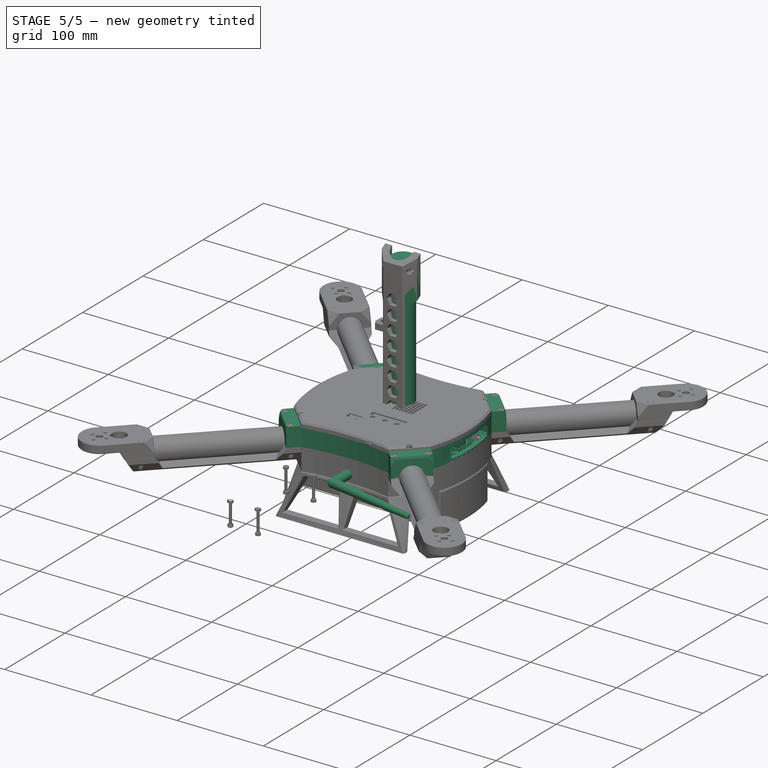
[diagram: stage 5 of 5 — iso view after this stage's code; geometry added in this stage tinted green]
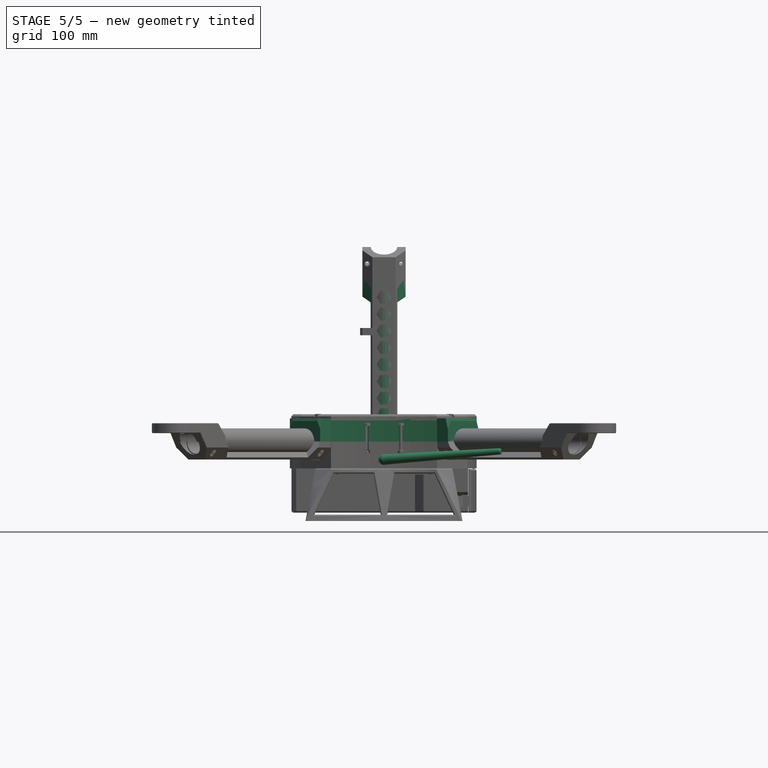
[diagram: stage 5 of 5 — front view after this stage's code; geometry added in this stage tinted green]
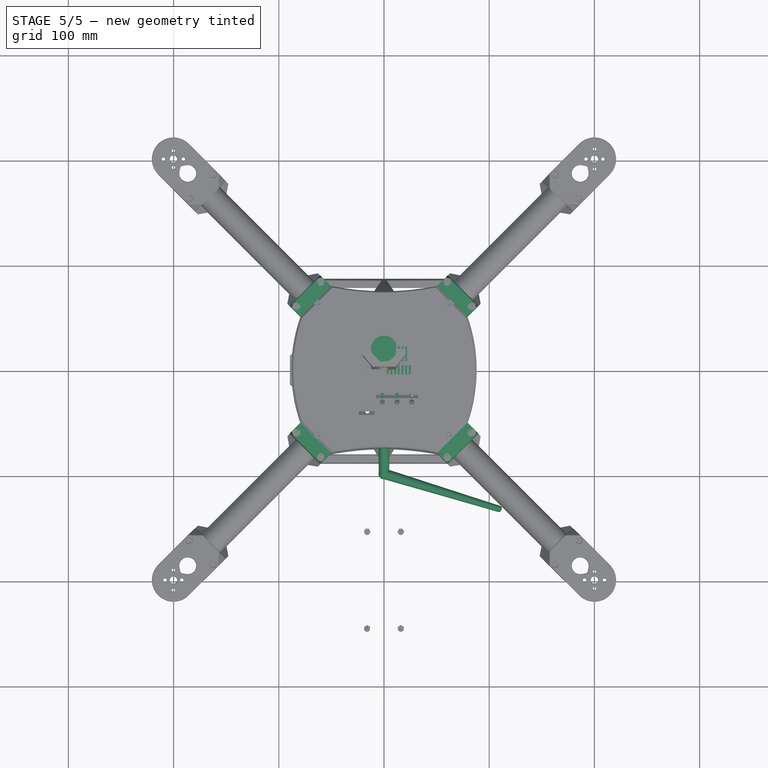
[diagram: stage 5 of 5 — top view after this stage's code; geometry added in this stage tinted green]
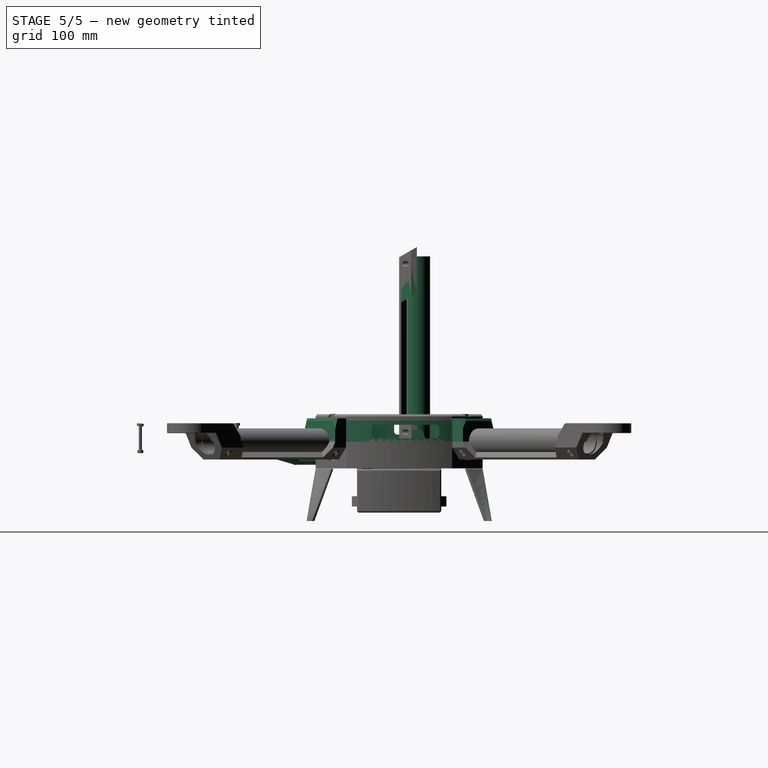
[diagram: stage 5 of 5 — right view after this stage's code; geometry added in this stage tinted green]
FEATURE [Part::Feature] Pcb
  Placement = pos=(-110,70,0) rot=(0,0,1;0rad)
  shape: bbox 50 x 50 x 1.6 mm, 28 faces (baked)
FEATURE [Part::Feature] Shape  label="1_"
  Placement = pos=(-14,-14,0) rot=(0,0,-1;0.785398rad)
  shape: bbox 13.08 x 13.08 x 19.95 mm, 89 faces (baked)
FEATURE [Part::Feature] Shape001  label="Fusion_"
  Placement = pos=(0,3,0) rot=(0,0,1;0rad)
  shape: bbox 20.92 x 18.3 x 33.1 mm, 552 faces (baked)
FEATURE [Part::Feature] Shape002  label="1_001"
  Placement = pos=(14,-13.9749,0) rot=(0,0,1;0.785398rad)
  shape: bbox 13.08 x 13.08 x 19.95 mm, 89 faces (baked)
FEATURE [Part::Feature] Shape003  label="1_002"
  Placement = pos=(19.6,-2.8,0) rot=(0,0,1;1.39626rad)
  shape: bbox 10.11 x 11.32 x 19.95 mm, 89 faces (baked)
FEATURE [Part::Feature] Shape004  label="1_003"
  Placement = pos=(17.4,9.8,0) rot=(0,0,1;2.0944rad)
  shape: bbox 12.36 x 12.91 x 19.95 mm, 89 faces (baked)
FEATURE [Part::Feature] Shape005  label="1_004"
  Placement = pos=(8.4,18.2,0) rot=(0,0,1;2.70526rad)
  shape: bbox 12.66 x 11.93 x 19.95 mm, 89 faces (baked)
FEATURE [Part::Feature] Shape006  label="1_005"
  Placement = pos=(-8.2,18.2,0) rot=(0,0,1;3.57793rad)
  shape: bbox 12.66 x 11.93 x 19.95 mm, 89 faces (baked)
FEATURE [Part::Feature] Shape007  label="1_006"
  Placement = pos=(-17.4,9.8,0) rot=(0,0,-1;2.0944rad)
  shape: bbox 12.36 x 12.91 x 19.95 mm, 89 faces (baked)
FEATURE [Part::Feature] Shape008  label="1_007"
  Placement = pos=(-19.6,-3,0) rot=(0,0,-1;1.39626rad)
  shape: bbox 10.11 x 11.32 x 19.95 mm, 89 faces (baked)
FEATURE [Part::MultiFuse] Fusion034004041014  label="EscPowerFusion"
  Placement = pos=(53,18,-18.5) rot=(0,0,1;0rad)
  Shapes = -> [Pcb,Shape004,Shape005,Shape008,Shape,Shape006,Shape007,Shape001,Shape002,Shape003]
FEATURE [Part::Box] Box001  label="esc-x-003"
  Height = 17
  Length = 85
  Placement = pos=(-61.5,8.75,-20.6) rot=(0,0,1;0rad)
  Width = 33
FEATURE [Part::Feature] Compound001  label="ColibriCompound001"
  Placement = pos=(62,47.25,16) rot=(0,0.707107,0.707107;3.14159rad)
  shape: large baked B-rep (96 MB .brp); summary skipped
FEATURE [Part::Box] Box002  label="esc-x-004"
  Height = 17
  Length = 85
  Placement = pos=(-59.5,-28.25,-20.6) rot=(0,0,1;0rad)
  Width = 33
FEATURE [Part::Box] Box004  label="receiver"
  Height = 15
  Length = 44
  Placement = pos=(-21.5,43.75,-20.6) rot=(0,0,1;0rad)
  Width = 22
FEATURE [Part::Cylinder] Cylinder008
  Angle = 360
  Height = 24
  Radius = 5
FEATURE [Sketcher::SketchObject] Sketch192
  Placement = pos=(0,0,0) rot=(1,0,0;1.5708rad)
  sketch-geometry (5):
    g0: LineSegment StartX=0 StartY=0 StartZ=0 EndX=5 EndY=0 EndZ=0
    g1: LineSegment StartX=5 StartY=0 StartZ=0 EndX=3 EndY=115.035 EndZ=0
    g2: LineSegment StartX=1.0003 StartY=117 StartZ=0 EndX=0 EndY=117 EndZ=0
    g3: ArcOfCircle CenterX=1.0003 CenterY=115 CenterZ=0 NormalX=0 NormalY=0 NormalZ=1 Radius=2 StartAngle=0.0173843 EndAngle=1.5708
    g4: LineSegment StartX=0 StartY=0 StartZ=0 EndX=0 EndY=117 EndZ=0
  constraints (13):
    c: Coincident(g-1,g0)
    c: Horizontal(g0)
    c: Coincident(g0,g1)
    c: Horizontal(g2)
    c: DistanceX(g0,g0) = 5
    c: DistanceY(g-1,g2) = 117
    c: Tangent(g2,g3) = -1.5708
    c: Tangent(g1,g3) = -1.5708
    c: DistanceX(g2,g1) = 3
    c: Coincident(g4,g-1)
    c: Coincident(g4,g2)
    c: Vertical(g4)
    c: Radius(g3) = 2
FEATURE [Part::Revolution] Revolve
  Angle = 360
  Axis = (0,0,1)
  Base = (0,0,0)
  Placement = pos=(0,0,24) rot=(0,1,0;1.27409rad)
  Solid = true
  Source = -> Sketch192
FEATURE [Part::MultiFuse] Fusion034004041015
  Placement = pos=(0,0,0) rot=(0.998783,-0.034878,0.034878;1.57201rad)
  Shapes = -> [Cylinder008,Revolve]
FEATURE [Part::Sphere] Sphere
  Angle1 = -90
  Angle2 = 90
  Angle3 = 360
  Placement = pos=(0,-24,0) rot=(0,0,1;0rad)
  Radius = 5.2
FEATURE [Part::MultiFuse] Fusion034004041016  label="AntenaFusion034004041015"
  Placement = pos=(0,-74.5,-17) rot=(0,0,1;0rad)
  Shapes = -> [Sphere,Fusion034004041015]
FEATURE [Sketcher::SketchObject] Sketch082
  Placement = pos=(0,0,0) rot=(1,0,0;1.5708rad)
  sketch-geometry (6):
    g0: LineSegment StartX=12.5 StartY=0 StartZ=0 EndX=20.5 EndY=0 EndZ=0
    g1: LineSegment StartX=20.5 StartY=0 StartZ=0 EndX=20.5 EndY=22 EndZ=0
    g2: LineSegment StartX=20.5 StartY=22 StartZ=0 EndX=-20.5 EndY=22 EndZ=0
    g3: LineSegment StartX=-20.5 StartY=22 StartZ=0 EndX=-20.5 EndY=0 EndZ=0
    g4: LineSegment StartX=-20.5 StartY=0 StartZ=0 EndX=-12.5 EndY=0 EndZ=0
    g5: ArcOfCircle CenterX=0 CenterY=1e-12 CenterZ=0 NormalX=0 NormalY=0 NormalZ=1 Radius=12.5 StartAngle=0 EndAngle=3.14159
  constraints (18):
    c: Horizontal(g0)
    c: Coincident(g0,g1)
    c: Vertical(g1)
    c: Coincident(g1,g2)
    c: Horizontal(g2)
    c: Coincident(g2,g3)
    c: Vertical(g3)
    c: Coincident(g3,g4)
    c: Horizontal(g4)
    c: Coincident(g5,g4)
    c: Coincident(g5,g0)
    c: Radius(g5) = 12.5
    c: Angle(g5) = 3.14159
    c: Equal(g0,g4)
    c: DistanceX(g3,g0) = 41
    c: DistanceY(g1,g1) = 22
    c: Symmetric(g0,g3,g-2)
    c: PointOnObject(g3,g-1)
FEATURE [Part::Extrusion] Extrude082
  Base = -> Sketch082
  Dir = (0,-20.3,0)
  Solid = true
FEATURE [Sketcher::SketchObject] Sketch085
  sketch-geometry (2):
    g0: Circle CenterX=-16 CenterY=0 CenterZ=0 NormalX=0 NormalY=0 NormalZ=1 Radius=1.85
    g1: Circle CenterX=16 CenterY=0 CenterZ=0 NormalX=0 NormalY=0 NormalZ=1 Radius=1.85
  constraints (5):
    c: PointOnObject(g0,g-1)
    c: Symmetric(g0,g1,g-2)
    c: Radius(g0) = 1.85
    c: Equal(g0,g1)
    c: DistanceX(g0,g1) = 32
FEATURE [Part::Extrusion] Extrude085
  Base = -> Sketch085
  Dir = (0,0,22)
  Solid = true
FEATURE [Sketcher::SketchObject] Sketch086
  sketch-geometry (14):
    g0: LineSegment StartX=-13.1854 StartY=-1.625 StartZ=0 EndX=-13.1854 EndY=1.625 EndZ=0
    g1: LineSegment StartX=-13.1854 StartY=1.625 StartZ=0 EndX=-16 EndY=3.25 EndZ=0
    g2: LineSegment StartX=-16 StartY=3.25 StartZ=0 EndX=-18.8146 EndY=1.625 EndZ=0
    g3: LineSegment StartX=-18.8146 StartY=1.625 StartZ=0 EndX=-18.8146 EndY=-1.625 EndZ=0
    g4: LineSegment StartX=-18.8146 StartY=-1.625 StartZ=0 EndX=-16 EndY=-3.25 EndZ=0
    g5: LineSegment StartX=-16 StartY=-3.25 StartZ=0 EndX=-13.1854 EndY=-1.625 EndZ=0
    g6: Circle [constr] CenterX=-16 CenterY=0 CenterZ=0 NormalX=0 NormalY=0 NormalZ=1 Radius=3.25
    g7: LineSegment StartX=18.8146 StartY=-1.625 StartZ=0 EndX=18.8146 EndY=1.625 EndZ=0
    g8: LineSegment StartX=18.8146 StartY=1.625 StartZ=0 EndX=16 EndY=3.25 EndZ=0
    g9: LineSegment StartX=16 StartY=3.25 StartZ=0 EndX=13.1854 EndY=1.625 EndZ=0
    g10: LineSegment StartX=13.1854 StartY=1.625 StartZ=0 EndX=13.1854 EndY=-1.625 EndZ=0
    g11: LineSegment StartX=13.1854 StartY=-1.625 StartZ=0 EndX=16 EndY=-3.25 EndZ=0
    g12: LineSegment StartX=16 StartY=-3.25 StartZ=0 EndX=18.8146 EndY=-1.625 EndZ=0
    g13: Circle [constr] CenterX=16 CenterY=0 CenterZ=0 NormalX=0 NormalY=0 NormalZ=1 Radius=3.25
  constraints (33):
    c: Coincident(g0,g1)
    c: Coincident(g1,g2)
    c: Coincident(g2,g3)
    c: Coincident(g3,g4)
    c: Coincident(g4,g5)
    c: Coincident(g5,g0)
    c: Equal(g0, g1-g5) x5
    c: PointOnObject(g0,g6)
    c: PointOnObject(g1,g6)
    c: PointOnObject(g2,g6)
    c: PointOnObject(g3,g6)
    c: PointOnObject(g4,g6)
    c: PointOnObject(g5,g6)
    c: Coincident(g7,g8)
    c: Coincident(g8,g9)
    c: Coincident(g9,g10)
    c: Coincident(g10,g11)
    c: Coincident(g11,g12)
    c: Coincident(g12,g7)
    c: Equal(g7, g8-g12) x5
    c: PointOnObject(g7,g13)
    c: PointOnObject(g8,g13)
    c: PointOnObject(g9,g13)
    c: PointOnObject(g10,g13)
    c: PointOnObject(g11,g13)
    c: PointOnObject(g12,g13)
    c: Vertical(g7)
    c: Vertical(g0)
    c: DistanceX(g6,g13) = 32
    c: PointOnObject(g6,g-1)
    c: Symmetric(g13,g6,g-2)
    c: Equal(g6,g13)
    c: Radius(g6) = 3.25
FEATURE [Part::Extrusion] Extrude086
  Base = -> Sketch086
  Dir = (0,0,4)
  Placement = pos=(0,0,18) rot=(0,0,1;0rad)
  Solid = true
FEATURE [PartDesign::Pad] Pad
  Length = 25
  Length2 = 100
  Midplane = true
  Placement = pos=(-20.5,-20.35,22.05) rot=(0.774596,0.447214,0.447214;1.82348rad)
  Type = 0
FEATURE [PartDesign::Pad] Pad001
  Length = 25
  Length2 = 100
  Midplane = true
  Placement = pos=(20.5,-20.35,22.05) rot=(0.377963,0.654654,0.654654;2.41886rad)
  Type = 0
FEATURE [Sketcher::SketchObject] Sketch094
  sketch-geometry (4):
    g0: ArcOfCircle CenterX=0 CenterY=4 CenterZ=0 NormalX=0 NormalY=0 NormalZ=1 Radius=5 StartAngle=0 EndAngle=3.14159
    g1: LineSegment StartX=-5 StartY=4 StartZ=0 EndX=-5 EndY=0 EndZ=0
    g2: LineSegment StartX=5 StartY=4 StartZ=0 EndX=5 EndY=0 EndZ=0
    g3: LineSegment StartX=-5 StartY=0 StartZ=0 EndX=5 EndY=0 EndZ=0
  constraints (10):
    c: Tangent(g0,g2) = 1.5708
    c: Tangent(g0,g1) = -1.5708
    c: Vertical(g1)
    c: Coincident(g3,g1)
    c: Coincident(g3,g2)
    c: Horizontal(g3)
    c: DistanceX(g3,g3) = 10
    c: DistanceY(g1,g1) = 4
    c: Vertical(g2)
    c: Symmetric(g1,g2,g-1)
FEATURE [Part::Extrusion] Extrude091
  Base = -> Sketch094
  Dir = (0,0,-22)
  Placement = pos=(0,-87,22) rot=(0,0,1;0rad)
  Solid = true
FEATURE [Part::FeaturePython] Array004  # Draft array (typed FeaturePython)
  Angle = 360
  ArrayType = 1
  Axis = (0,0,1)
  Base = -> Extrude091
  Center = (0,0,0)
  Fuse = false
  IntervalAxis = (0,0,0)
  IntervalX = (1,0,0)
  IntervalY = (0,1,0)
  IntervalZ = (0,0,0)
  NumberPolar = 4
  NumberX = 2
  NumberY = 2
  NumberZ = 1
  Placement = pos=(0,0,0) rot=(0,0,1;0.785398rad)
FEATURE [Sketcher::SketchObject] Sketch148
  sketch-geometry (14):
    g0: LineSegment StartX=-12.9689 StartY=-1.75 StartZ=0 EndX=-12.9689 EndY=1.75 EndZ=0
    g1: LineSegment StartX=-12.9689 StartY=1.75 StartZ=0 EndX=-16 EndY=3.5 EndZ=0
    g2: LineSegment StartX=-16 StartY=3.5 StartZ=0 EndX=-19.0311 EndY=1.75 EndZ=0
    g3: LineSegment StartX=-19.0311 StartY=1.75 StartZ=0 EndX=-19.0311 EndY=-1.75 EndZ=0
    g4: LineSegment StartX=-19.0311 StartY=-1.75 StartZ=0 EndX=-16 EndY=-3.5 EndZ=0
    g5: LineSegment StartX=-16 StartY=-3.5 StartZ=0 EndX=-12.9689 EndY=-1.75 EndZ=0
    g6: Circle [constr] CenterX=-16 CenterY=0 CenterZ=0 NormalX=0 NormalY=0 NormalZ=1 Radius=3.5
    g7: LineSegment StartX=19.0311 StartY=-1.75 StartZ=0 EndX=19.0311 EndY=1.75 EndZ=0
    g8: LineSegment StartX=19.0311 StartY=1.75 StartZ=0 EndX=16 EndY=3.5 EndZ=0
    g9: LineSegment StartX=16 StartY=3.5 StartZ=0 EndX=12.9689 EndY=1.75 EndZ=0
    g10: LineSegment StartX=12.9689 StartY=1.75 StartZ=0 EndX=12.9689 EndY=-1.75 EndZ=0
    g11: LineSegment StartX=12.9689 StartY=-1.75 StartZ=0 EndX=16 EndY=-3.5 EndZ=0
    g12: LineSegment StartX=16 StartY=-3.5 StartZ=0 EndX=19.0311 EndY=-1.75 EndZ=0
    g13: Circle [constr] CenterX=16 CenterY=0 CenterZ=0 NormalX=0 NormalY=0 NormalZ=1 Radius=3.5
  constraints (33):
    c: Coincident(g0,g1)
    c: Coincident(g1,g2)
    c: Coincident(g2,g3)
    c: Coincident(g3,g4)
    c: Coincident(g4,g5)
    c: Coincident(g5,g0)
    c: Equal(g0, g1-g5) x5
    c: PointOnObject(g0,g6)
    c: PointOnObject(g1,g6)
    c: PointOnObject(g2,g6)
    c: PointOnObject(g3,g6)
    c: PointOnObject(g4,g6)
    c: PointOnObject(g5,g6)
    c: Coincident(g7,g8)
    c: Coincident(g8,g9)
    c: Coincident(g9,g10)
    c: Coincident(g10,g11)
    c: Coincident(g11,g12)
    c: Coincident(g12,g7)
    c: Equal(g7, g8-g12) x5
    c: PointOnObject(g7,g13)
    c: PointOnObject(g8,g13)
    c: PointOnObject(g9,g13)
    c: PointOnObject(g10,g13)
    c: PointOnObject(g11,g13)
    c: PointOnObject(g12,g13)
    c: Vertical(g7)
    c: Vertical(g0)
    c: DistanceX(g6,g13) = 32
    c: PointOnObject(g6,g-1)
    c: Symmetric(g13,g6,g-2)
    c: Equal(g6,g13)
    c: Radius(g6) = 3.5
FEATURE [Part::Extrusion] Extrude125
  Base = -> Sketch148
  Dir = (0,0,0.5)
  Placement = pos=(0,0,21.5) rot=(0,0,1;0rad)
  Solid = true
FEATURE [Part::MultiFuse] Fusion034004004
  Placement = pos=(0,-15,0) rot=(0,0,1;0rad)
  Shapes = -> [Extrude085,Extrude086,Extrude125]
FEATURE [Part::Cut] Cut003005
  Base = -> Extrude082
  Tool = -> Fusion034004004
FEATURE [PartDesign::Pad] Pad002
  Length = 40
  Length2 = 100
  Midplane = true
  Placement = pos=(0,-21.5,22.05) rot=(0.57735,0.57735,0.57735;2.0944rad)
  Type = 0
FEATURE [Part::MultiFuse] Fusion034004005
  Shapes = -> [Pad,Pad001,Pad002]
FEATURE [Part::Cut] Cut003006
  Base = -> Cut003005
  Placement = pos=(0,-86,0) rot=(0,0,1;0rad)
  Tool = -> Fusion034004005
FEATURE [Part::FeaturePython] Array002  # Draft array (typed FeaturePython)
  Angle = 360
  ArrayType = 1
  Axis = (0,0,1)
  Base = -> Cut003006
  Center = (0,0,0)
  Fuse = false
  IntervalAxis = (0,0,0)
  IntervalX = (1,0,0)
  IntervalY = (0,1,0)
  IntervalZ = (0,0,0)
  NumberPolar = 4
  NumberX = 2
  NumberY = 2
  NumberZ = 1
  Placement = pos=(0,0,0) rot=(0,0,1;0.785398rad)
FEATURE [Sketcher::SketchObject] Sketch200
  Placement = pos=(0,0,0) rot=(1,0,0;1.5708rad)
  sketch-geometry (4):
    g0: LineSegment StartX=20.5 StartY=0 StartZ=0 EndX=20.5 EndY=23 EndZ=0
    g1: LineSegment StartX=20.5 StartY=23 StartZ=0 EndX=-20.5 EndY=23 EndZ=0
    g2: LineSegment StartX=-20.5 StartY=23 StartZ=0 EndX=-20.5 EndY=0 EndZ=0
    g3: LineSegment StartX=-20.5 StartY=0 StartZ=0 EndX=20.5 EndY=0 EndZ=0
  constraints (12):
    c: Vertical(g0)
    c: Coincident(g0,g1)
    c: Horizontal(g1)
    c: Coincident(g1,g2)
    c: Vertical(g2)
    c: Coincident(g2,g3)
    c: Horizontal(g3)
    c: DistanceX(g2,g0) = 41
    c: DistanceY(g0,g0) = 23
    c: Symmetric(g0,g2,g-2)
    c: Coincident(g3,g0)
    c: PointOnObject(g2,g-1)
FEATURE [Part::Extrusion] Extrude180
  Base = -> Sketch200
  Dir = (0,-11,0)
  Placement = pos=(0,-83,0) rot=(0,0,1;0rad)
  Solid = true
FEATURE [Part::FeaturePython] Array010  # Draft array (typed FeaturePython)
  Angle = 360
  ArrayType = 1
  Axis = (0,0,1)
  Base = -> Extrude180
  Center = (0,0,0)
  Fuse = false
  IntervalAxis = (0,0,0)
  IntervalX = (1,0,0)
  IntervalY = (0,1,0)
  IntervalZ = (0,0,0)
  NumberPolar = 4
  NumberX = 2
  NumberY = 2
  NumberZ = 1
  Placement = pos=(0,0,0) rot=(0,0,1;0.785398rad)
FEATURE [Sketcher::SketchObject] Sketch201
  sketch-geometry (15):
    g0: LineSegment [constr] StartX=-79.3638 StartY=50.3724 StartZ=0 EndX=-79.3638 EndY=-50.3724 EndZ=0
    g1: LineSegment StartX=-79.3638 StartY=-50.3724 StartZ=0 EndX=-50.3724 EndY=-79.3638 EndZ=0
    g2: LineSegment [constr] StartX=-50.3724 StartY=-79.3638 StartZ=0 EndX=50.3724 EndY=-79.3638 EndZ=0
    g3: LineSegment StartX=50.3724 StartY=-79.3638 StartZ=0 EndX=79.3638 EndY=-50.3724 EndZ=0
    g4: LineSegment [constr] StartX=79.3638 StartY=-50.3724 StartZ=0 EndX=79.3638 EndY=50.3724 EndZ=0
    g5: LineSegment StartX=79.3638 StartY=50.3724 StartZ=0 EndX=50.3724 EndY=79.3638 EndZ=0
    g6: LineSegment [constr] StartX=50.3724 StartY=79.3638 StartZ=0 EndX=-50.3724 EndY=79.3638 EndZ=0
    g7: LineSegment StartX=-50.3724 StartY=79.3638 StartZ=0 EndX=-79.3638 EndY=50.3724 EndZ=0
    g8: Circle [constr] CenterX=0 CenterY=0 CenterZ=0 NormalX=0 NormalY=0 NormalZ=1 Radius=94
    g9: ArcOfCircle CenterX=0 CenterY=329.364 CenterZ=0 NormalX=0 NormalY=0 NormalZ=1 Radius=255.024 StartAngle=4.51356 EndAngle=4.91122
    g10: ArcOfCircle CenterX=0 CenterY=-329.364 CenterZ=0 NormalX=0 NormalY=0 NormalZ=1 Radius=255.024 StartAngle=1.37197 EndAngle=1.76962
    g11: LineSegment [constr] StartX=0 StartY=-329.364 StartZ=0 EndX=0 EndY=-79.3638 EndZ=0
    g12: LineSegment [constr] StartX=0 StartY=329.364 StartZ=0 EndX=0 EndY=79.3638 EndZ=0
    g13: ArcOfCircle CenterX=61.9253 CenterY=0 CenterZ=0 NormalX=0 NormalY=0 NormalZ=1 Radius=150 StartAngle=2.79912 EndAngle=3.48406
    g14: ArcOfCircle CenterX=-61.9253 CenterY=0 CenterZ=0 NormalX=0 NormalY=0 NormalZ=1 Radius=150 StartAngle=5.94071 EndAngle=6.62566
  constraints (44):
    c: Coincident(g0,g1)
    c: Coincident(g1,g2)
    c: Coincident(g2,g3)
    c: Coincident(g3,g4)
    c: Coincident(g4,g5)
    c: Coincident(g5,g6)
    c: Coincident(g6,g7)
    c: Coincident(g7,g0)
    c: PointOnObject(g0,g8)
    c: PointOnObject(g1,g8)
    c: PointOnObject(g2,g8)
    c: PointOnObject(g3,g8)
    c: PointOnObject(g4,g8)
    c: PointOnObject(g5,g8)
    c: PointOnObject(g6,g8)
    c: PointOnObject(g7,g8)
    c: Coincident(g8,g-1)
    c: Horizontal(g2)
    c: Radius(g8) = 94
    c: Coincident(g9,g6)
    c: Coincident(g9,g5)
    c: Coincident(g10,g1)
    c: Coincident(g10,g2)
    c: Coincident(g11,g10)
    c: PointOnObject(g11,g2)
    c: Vertical(g11)
    c: Coincident(g12,g9)
    c: PointOnObject(g12,g6)
    c: Vertical(g12)
    c: Equal(g1,g3)
    c: Equal(g3,g5)
    c: Equal(g5,g7)
    c: Equal(g0,g2)
    c: Equal(g2,g4)
    c: Equal(g4,g6)
    c: Distance(g3) = 41
    c: Distance(g12) = 250
    c: Equal(g11,g12)
    c: Coincident(g13,g0)
    c: Coincident(g13,g0)
    c: Coincident(g14,g4)
    c: Coincident(g14,g3)
    c: Equal(g13,g14)
    c: Radius(g13) = 150
FEATURE [Sketcher::SketchObject] Sketch202
  sketch-geometry (15):
    g0: LineSegment [constr] StartX=-75.5543 StartY=46.5629 StartZ=0 EndX=-75.5543 EndY=-46.5629 EndZ=0
    g1: LineSegment StartX=-75.5543 StartY=-46.5629 StartZ=0 EndX=-46.5629 EndY=-75.5543 EndZ=0
    g2: LineSegment [constr] StartX=-46.5629 StartY=-75.5543 StartZ=0 EndX=46.5629 EndY=-75.5543 EndZ=0
    g3: LineSegment StartX=46.5629 StartY=-75.5543 StartZ=0 EndX=75.5543 EndY=-46.5629 EndZ=0
    g4: LineSegment [constr] StartX=75.5543 StartY=-46.5629 StartZ=0 EndX=75.5543 EndY=46.5629 EndZ=0
    g5: LineSegment StartX=75.5543 StartY=46.5629 StartZ=0 EndX=46.5629 EndY=75.5543 EndZ=0
    g6: LineSegment [constr] StartX=46.5629 StartY=75.5543 StartZ=0 EndX=-46.5629 EndY=75.5543 EndZ=0
    g7: LineSegment StartX=-46.5629 StartY=75.5543 StartZ=0 EndX=-75.5543 EndY=46.5629 EndZ=0
    g8: Circle [constr] CenterX=0 CenterY=0 CenterZ=0 NormalX=0 NormalY=0 NormalZ=1 Radius=88.75
    g9: ArcOfCircle CenterX=0 CenterY=325.554 CenterZ=0 NormalX=0 NormalY=0 NormalZ=1 Radius=254.299 StartAngle=4.52825 EndAngle=4.89653
    g10: ArcOfCircle CenterX=0 CenterY=-325.554 CenterZ=0 NormalX=0 NormalY=0 NormalZ=1 Radius=254.299 StartAngle=1.38665 EndAngle=1.75494
    g11: LineSegment [constr] StartX=0 StartY=-325.554 StartZ=0 EndX=0 EndY=-75.5543 EndZ=0
    g12: LineSegment [constr] StartX=0 StartY=325.554 StartZ=0 EndX=0 EndY=75.5543 EndZ=0
    g13: ArcOfCircle CenterX=67.0356 CenterY=0 CenterZ=0 NormalX=0 NormalY=0 NormalZ=1 Radius=150 StartAngle=2.82596 EndAngle=3.45723
    g14: ArcOfCircle CenterX=-67.0356 CenterY=0 CenterZ=0 NormalX=0 NormalY=0 NormalZ=1 Radius=150 StartAngle=5.96755 EndAngle=6.59882
  constraints (44):
    c: Coincident(g0,g1)
    c: Coincident(g1,g2)
    c: Coincident(g2,g3)
    c: Coincident(g3,g4)
    c: Coincident(g4,g5)
    c: Coincident(g5,g6)
    c: Coincident(g6,g7)
    c: Coincident(g7,g0)
    c: PointOnObject(g0,g8)
    c: PointOnObject(g1,g8)
    c: PointOnObject(g2,g8)
    c: PointOnObject(g3,g8)
    c: PointOnObject(g4,g8)
    c: PointOnObject(g5,g8)
    c: PointOnObject(g6,g8)
    c: PointOnObject(g7,g8)
    c: Coincident(g8,g-1)
    c: Horizontal(g2)
    c: Radius(g8) = 88.75
    c: Coincident(g9,g6)
    c: Coincident(g9,g5)
    c: Coincident(g10,g1)
    c: Coincident(g10,g2)
    c: Coincident(g11,g10)
    c: PointOnObject(g11,g2)
    c: Vertical(g11)
    c: Coincident(g12,g9)
    c: PointOnObject(g12,g6)
    c: Vertical(g12)
    c: Equal(g1,g3)
    c: Equal(g3,g5)
    c: Equal(g5,g7)
    c: Equal(g0,g2)
    c: Equal(g2,g4)
    c: Equal(g4,g6)
    c: Distance(g3) = 41
    c: Distance(g12) = 250
    c: Equal(g11,g12)
    c: Coincident(g13,g0)
    c: Coincident(g13,g0)
    c: Coincident(g14,g4)
    c: Coincident(g14,g3)
    c: Equal(g13,g14)
    c: Radius(g13) = 150
FEATURE [Part::Extrusion] Extrude181
  Base = -> Sketch201
  Dir = (0,0,22)
  Solid = true
FEATURE [Part::Extrusion] Extrude182
  Base = -> Sketch202
  Dir = (0,0,22)
  Solid = true
FEATURE [Part::MultiFuse] Fusion034004041026
  Shapes = -> [Extrude182,Array010]
FEATURE [Part::Cut] Cut003004005
  Base = -> Extrude181
  Tool = -> Fusion034004041026
FEATURE [Sketcher::SketchObject] Sketch184
  sketch-geometry (8):
    g0: LineSegment StartX=0 StartY=13 StartZ=0 EndX=0 EndY=-13 EndZ=0
    g1: LineSegment StartX=-7 StartY=-13 StartZ=0 EndX=-7 EndY=13 EndZ=0
    g2: LineSegment StartX=-7 StartY=13 StartZ=0 EndX=-3.5 EndY=16.5 EndZ=0
    g3: LineSegment StartX=-3.5 StartY=16.5 StartZ=0 EndX=0 EndY=13 EndZ=0
    g4: LineSegment StartX=-7 StartY=-13 StartZ=0 EndX=-3.5 EndY=-16.5 EndZ=0
    g5: LineSegment StartX=-3.5 StartY=-16.5 StartZ=0 EndX=0 EndY=-13 EndZ=0
    g6: LineSegment [constr] StartX=-7 StartY=13 StartZ=0 EndX=0 EndY=13 EndZ=0
    g7: LineSegment [constr] StartX=-7 StartY=-13 StartZ=0 EndX=0 EndY=-13 EndZ=0
  constraints (22):
    c: Vertical(g0)
    c: Vertical(g1)
    c: Symmetric(g1,g1,g-1)
    c: DistanceY(g1,g1) = 26
    c: DistanceX(g1,g0) = 7
    c: PointOnObject(g-1,g0)
    c: Coincident(g2,g1)
    c: Coincident(g2,g3)
    c: Coincident(g1,g4)
    c: Coincident(g4,g5)
    c: Coincident(g5,g0)
    c: Equal(g4,g5)
    c: Equal(g5,g2)
    c: Equal(g2,g3)
    c: Coincident(g3,g0)
    c: Equal(g0,g1)
    c: Coincident(g6,g1)
    c: Coincident(g6,g0)
    c: Horizontal(g6)
    c: Coincident(g7,g1)
    c: Coincident(g7,g0)
    c: Angle(g4,g1) = 2.35619
FEATURE [Part::Extrusion] Extrude165
  Base = -> Sketch184
  Dir = (0,0,22)
  Placement = pos=(-82.5,0,0) rot=(0,0,1;0rad)
  Solid = true
FEATURE [Sketcher::SketchObject] Sketch203
  Placement = pos=(0,0,22) rot=(0,0,1;0rad)
  sketch-geometry (17):
    g0: LineSegment [constr] StartX=-79.3638 StartY=50.3724 StartZ=0 EndX=-79.3638 EndY=-50.3724 EndZ=0
    g1: LineSegment [constr] StartX=-79.3638 StartY=-50.3724 StartZ=0 EndX=-50.3724 EndY=-79.3638 EndZ=0
    g2: LineSegment [constr] StartX=-50.3724 StartY=-79.3638 StartZ=0 EndX=50.3724 EndY=-79.3638 EndZ=0
    g3: LineSegment [constr] StartX=50.3724 StartY=-79.3638 StartZ=0 EndX=79.3638 EndY=-50.3724 EndZ=0
    g4: LineSegment [constr] StartX=79.3638 StartY=-50.3724 StartZ=0 EndX=79.3638 EndY=50.3724 EndZ=0
    g5: LineSegment [constr] StartX=79.3638 StartY=50.3724 StartZ=0 EndX=50.3724 EndY=79.3638 EndZ=0
    g6: LineSegment [constr] StartX=50.3724 StartY=79.3638 StartZ=0 EndX=-50.3724 EndY=79.3638 EndZ=0
    g7: LineSegment [constr] StartX=-50.3724 StartY=79.3638 StartZ=0 EndX=-79.3638 EndY=50.3724 EndZ=0
    g8: Circle [constr] CenterX=0 CenterY=0 CenterZ=0 NormalX=0 NormalY=0 NormalZ=1 Radius=94
    g9: ArcOfCircle [constr] CenterX=0 CenterY=229.364 CenterZ=0 NormalX=0 NormalY=0 NormalZ=1 Radius=158.232 StartAngle=4.38841 EndAngle=5.03637
    g10: ArcOfCircle [constr] CenterX=0 CenterY=-229.364 CenterZ=0 NormalX=0 NormalY=0 NormalZ=1 Radius=158.232 StartAngle=1.24681 EndAngle=1.89478
    g11: LineSegment [constr] StartX=0 StartY=-229.364 StartZ=0 EndX=0 EndY=-79.3638 EndZ=0
    g12: LineSegment [constr] StartX=0 StartY=229.364 StartZ=0 EndX=0 EndY=79.3638 EndZ=0
    g13: LineSegment StartX=78 StartY=44 StartZ=0 EndX=71 EndY=44 EndZ=0
    g14: LineSegment StartX=71 StartY=44 StartZ=0 EndX=71 EndY=-32 EndZ=0
    g15: LineSegment StartX=71 StartY=-32 StartZ=0 EndX=81 EndY=-32 EndZ=0
    g16: ArcOfCircle CenterX=-44.7164 CenterY=1.09672 CenterZ=0 NormalX=0 NormalY=0 NormalZ=1 Radius=130 StartAngle=6.02576 EndAngle=6.61952
  constraints (51):
    c: Coincident(g0,g1)
    c: Coincident(g1,g2)
    c: Coincident(g2,g3)
    c: Coincident(g3,g4)
    c: Coincident(g4,g5)
    c: Coincident(g5,g6)
    c: Coincident(g6,g7)
    c: Coincident(g7,g0)
    c: PointOnObject(g0,g8)
    c: PointOnObject(g1,g8)
    c: PointOnObject(g2,g8)
    c: PointOnObject(g3,g8)
    c: PointOnObject(g5,g8)
    c: PointOnObject(g6,g8)
    c: PointOnObject(g7,g8)
    c: Coincident(g8,g-1)
    c: Horizontal(g2)
    c: Radius(g8) = 94
    c: Coincident(g9,g6)
    c: Coincident(g9,g5)
    c: Coincident(g10,g1)
    c: Coincident(g10,g2)
    c: Coincident(g11,g10)
    c: PointOnObject(g11,g2)
    c: Vertical(g11)
    c: Coincident(g12,g9)
    c: PointOnObject(g12,g6)
    c: Vertical(g12)
    c: Equal(g1,g3)
    c: Equal(g3,g5)
    c: Equal(g5,g7)
    c: Equal(g0,g2)
    c: Equal(g2,g4)
    c: Equal(g4,g6)
    c: Distance(g3) = 41
    c: Distance(g12) = 150
    c: Equal(g11,g12)
    c: PointOnObject(g4,g8)
    c: Horizontal(g13)
    c: Coincident(g13,g14)
    c: Vertical(g14)
    c: Coincident(g14,g15)
    c: Horizontal(g15)
    c: DistanceY(g14,g-1) = 32
    c: DistanceX(g-1,g14) = 71
    c: Coincident(g16,g13)
    c: Coincident(g16,g15)
    c: Radius(g16) = 130
    c: DistanceX(g-1,g15) = 81
    c: DistanceY(g13) = 44
    c: DistanceX(g-1,g13) = 78
FEATURE [Part::Extrusion] Extrude183
  Base = -> Sketch203
  Dir = (0,0,-19)
  Solid = true
FEATURE [Sketcher::SketchObject] Sketch204
  Placement = pos=(0,0,22) rot=(0,0,1;0rad)
  sketch-geometry (5):
    g0: LineSegment StartX=58 StartY=64 StartZ=0 EndX=58 EndY=57 EndZ=0
    g1: LineSegment StartX=58 StartY=57 StartZ=0 EndX=3 EndY=57 EndZ=0
    g2: LineSegment StartX=3 StartY=57 StartZ=0 EndX=3 EndY=72 EndZ=0
    g3: LineSegment StartX=58 StartY=64 StartZ=0 EndX=46 EndY=76 EndZ=0
    g4: ArcOfCircle CenterX=1.43069 CenterY=321.995 CenterZ=0 NormalX=0 NormalY=0 NormalZ=1 Radius=250 StartAngle=4.71867 EndAngle=4.89162
  constraints (16):
    c: Coincident(g0,g1)
    c: Coincident(g1,g2)
    c: Horizontal(g1)
    c: Vertical(g0)
    c: Vertical(g2)
    c: Coincident(g0,g3)
    c: Coincident(g4,g2)
    c: Coincident(g4,g3)
    c: Angle(g3,g0) = 2.35619
    c: DistanceY(g-1,g1) = 57
    c: Radius(g4) = 250
    c: DistanceY(g-1,g2) = 72
    c: DistanceX(g-1,g0) = 58
    c: DistanceY(g-1,g0) = 64
    c: DistanceY(g-1,g3) = 76
    c: DistanceX(g-1,g1) = 3
FEATURE [Part::Extrusion] Extrude184
  Base = -> Sketch204
  Dir = (0,0,-14.5)
  Solid = true
FEATURE [Sketcher::SketchObject] Sketch205
  Placement = pos=(0,0,0) rot=(0.57735,0.57735,0.57735;2.0944rad)
  sketch-geometry (8):
    g0: LineSegment StartX=-30.5 StartY=-6.5 StartZ=0 EndX=30.5 EndY=-6.5 EndZ=0
    g1: LineSegment StartX=30.5 StartY=-6.5 StartZ=0 EndX=32.2321 EndY=-3.5 EndZ=0
    g2: LineSegment StartX=32.2321 StartY=-3.5 StartZ=0 EndX=32.2321 EndY=3.5 EndZ=0
    g3: LineSegment StartX=32.2321 StartY=3.5 StartZ=0 EndX=30.5 EndY=6.5 EndZ=0
    g4: LineSegment StartX=30.5 StartY=6.5 StartZ=0 EndX=-30.5 EndY=6.5 EndZ=0
    g5: LineSegment StartX=-30.5 StartY=6.5 StartZ=0 EndX=-32.2321 EndY=3.5 EndZ=0
    g6: LineSegment StartX=-32.2321 StartY=3.5 StartZ=0 EndX=-32.2321 EndY=-3.5 EndZ=0
    g7: LineSegment StartX=-32.2321 StartY=-3.5 StartZ=0 EndX=-30.5 EndY=-6.5 EndZ=0
  constraints (24):
    c: Horizontal(g0)
    c: Coincident(g0,g1)
    c: Coincident(g1,g2)
    c: Vertical(g2)
    c: Coincident(g2,g3)
    c: Coincident(g3,g4)
    c: Horizontal(g4)
    c: Coincident(g4,g5)
    c: Coincident(g5,g6)
    c: Vertical(g6)
    c: Coincident(g6,g7)
    c: Coincident(g7,g0)
    c: Angle(g7,g6) = 2.61799
    c: Angle(g6,g5) = 2.61799
    c: Angle(g2,g1) = 2.61799
    c: Equal(g2,g6)
    c: Equal(g4,g0)
    c: Equal(g7,g1)
    c: DistanceY(g0,g3) = 13
    c: DistanceX(g0,g0) = 61
    c: DistanceY(g2,g2) = 7
    c: Symmetric(g0,g0,g-2)
    c: Symmetric(g2,g1,g-1)
    c: Angle(g3,g2) = 2.61799
FEATURE [Part::Extrusion] Extrude185
  Base = -> Sketch205
  Dir = (30,0,0)
  Placement = pos=(68,6,9.5) rot=(0,0,1;0rad)
  Solid = true
FEATURE [Sketcher::SketchObject] Sketch206
  Placement = pos=(0,0,0) rot=(1,0,0;1.5708rad)
  sketch-geometry (9):
    g0: LineSegment StartX=-20.3587 StartY=-5 StartZ=0 EndX=20.3587 EndY=-5 EndZ=0
    g1: LineSegment StartX=20.3587 StartY=-5 StartZ=0 EndX=22.8094 EndY=-1.5 EndZ=0
    g2: LineSegment StartX=22.8094 StartY=-1.5 StartZ=0 EndX=22.8094 EndY=1 EndZ=0
    g3: LineSegment StartX=22.8094 StartY=1 StartZ=0 EndX=20.5 EndY=5 EndZ=0
    g4: LineSegment StartX=20.5 StartY=5 StartZ=0 EndX=-20.5 EndY=5 EndZ=0
    g5: LineSegment StartX=-20.5 StartY=5 StartZ=0 EndX=-22.8094 EndY=1 EndZ=0
    g6: LineSegment StartX=-22.8094 StartY=1 StartZ=0 EndX=-22.8094 EndY=-1.5 EndZ=0
    g7: LineSegment StartX=-22.8094 StartY=-1.5 StartZ=0 EndX=-20.3587 EndY=-5 EndZ=0
    g8: LineSegment [constr] StartX=0 StartY=5 StartZ=0 EndX=0 EndY=-5 EndZ=0
  constraints (27):
    c: Horizontal(g0)
    c: Coincident(g0,g1)
    c: Coincident(g1,g2)
    c: Vertical(g2)
    c: Coincident(g2,g3)
    c: Coincident(g3,g4)
    c: Horizontal(g4)
    c: Coincident(g4,g5)
    c: Coincident(g5,g6)
    c: Vertical(g6)
    c: Coincident(g6,g7)
    c: Coincident(g7,g0)
    c: DistanceY(g0,g3) = 10
    c: Symmetric(g4,g3,g-2)
    c: DistanceX(g4,g4) = 41
    c: DistanceY(g2,g2) = 2.5
    c: DistanceY(g0,g1) = 3.5
    c: Angle(g1,g0) = 2.18166
    c: Angle(g4,g3) = 2.0944
    c: Angle(g0,g7) = 2.18166
    c: Angle(g5,g4) = 2.0944
    c: Equal(g7,g1)
    c: Equal(g5,g3)
    c: PointOnObject(g8,g4)
    c: Vertical(g8)
    c: PointOnObject(g8,g0)
    c: Symmetric(g8,g8,g-1)
FEATURE [Part::Extrusion] Extrude186
  Base = -> Sketch206
  Dir = (0,40,0)
  Placement = pos=(32.75,51,12.5) rot=(0,0,1;0rad)
  Solid = true
FEATURE [Sketcher::SketchObject] Sketch207
  Placement = pos=(0,0,22) rot=(0,0,1;0rad)
  sketch-geometry (15):
    g0: LineSegment [constr] StartX=-79.3638 StartY=50.3724 StartZ=0 EndX=-79.3638 EndY=-50.3724 EndZ=0
    g1: LineSegment StartX=-79.3638 StartY=-50.3724 StartZ=0 EndX=-50.3724 EndY=-79.3638 EndZ=0
    g2: LineSegment [constr] StartX=-50.3724 StartY=-79.3638 StartZ=0 EndX=50.3724 EndY=-79.3638 EndZ=0
    g3: LineSegment StartX=50.3724 StartY=-79.3638 StartZ=0 EndX=79.3638 EndY=-50.3724 EndZ=0
    g4: LineSegment [constr] StartX=79.3638 StartY=-50.3724 StartZ=0 EndX=79.3638 EndY=50.3724 EndZ=0
    g5: LineSegment StartX=79.3638 StartY=50.3724 StartZ=0 EndX=50.3724 EndY=79.3638 EndZ=0
    g6: LineSegment [constr] StartX=50.3724 StartY=79.3638 StartZ=0 EndX=-50.3724 EndY=79.3638 EndZ=0
    g7: LineSegment StartX=-50.3724 StartY=79.3638 StartZ=0 EndX=-79.3638 EndY=50.3724 EndZ=0
    g8: Circle [constr] CenterX=0 CenterY=0 CenterZ=0 NormalX=0 NormalY=0 NormalZ=1 Radius=94
    g9: ArcOfCircle CenterX=0 CenterY=329.364 CenterZ=0 NormalX=0 NormalY=0 NormalZ=1 Radius=255.024 StartAngle=4.51356 EndAngle=4.91122
    g10: ArcOfCircle CenterX=0 CenterY=-329.364 CenterZ=0 NormalX=0 NormalY=0 NormalZ=1 Radius=255.024 StartAngle=1.37197 EndAngle=1.76962
    g11: LineSegment [constr] StartX=0 StartY=-329.364 StartZ=0 EndX=0 EndY=-79.3638 EndZ=0
    g12: LineSegment [constr] StartX=0 StartY=329.364 StartZ=0 EndX=0 EndY=79.3638 EndZ=0
    g13: ArcOfCircle CenterX=61.9253 CenterY=0 CenterZ=0 NormalX=0 NormalY=0 NormalZ=1 Radius=150 StartAngle=2.79912 EndAngle=3.48406
    g14: ArcOfCircle CenterX=-61.9253 CenterY=0 CenterZ=0 NormalX=0 NormalY=0 NormalZ=1 Radius=150 StartAngle=5.94071 EndAngle=6.62566
  constraints (44):
    c: Coincident(g0,g1)
    c: Coincident(g1,g2)
    c: Coincident(g2,g3)
    c: Coincident(g3,g4)
    c: Coincident(g4,g5)
    c: Coincident(g5,g6)
    c: Coincident(g6,g7)
    c: Coincident(g7,g0)
    c: PointOnObject(g0,g8)
    c: PointOnObject(g1,g8)
    c: PointOnObject(g2,g8)
    c: PointOnObject(g3,g8)
    c: PointOnObject(g4,g8)
    c: PointOnObject(g5,g8)
    c: PointOnObject(g6,g8)
    c: PointOnObject(g7,g8)
    c: Coincident(g8,g-1)
    c: Horizontal(g2)
    c: Radius(g8) = 94
    c: Coincident(g9,g6)
    c: Coincident(g9,g5)
    c: Coincident(g10,g1)
    c: Coincident(g10,g2)
    c: Coincident(g11,g10)
    c: PointOnObject(g11,g2)
    c: Vertical(g11)
    c: Coincident(g12,g9)
    c: PointOnObject(g12,g6)
    c: Vertical(g12)
    c: Equal(g1,g3)
    c: Equal(g3,g5)
    c: Equal(g5,g7)
    c: Equal(g0,g2)
    c: Equal(g2,g4)
    c: Equal(g4,g6)
    c: Distance(g3) = 41
    c: Distance(g12) = 250
    c: Equal(g11,g12)
    c: Coincident(g13,g0)
    c: Coincident(g13,g0)
    c: Coincident(g14,g4)
    c: Coincident(g14,g3)
    c: Equal(g13,g14)
    c: Radius(g13) = 150
FEATURE [Sketcher::SketchObject] Sketch208
  Placement = pos=(0,0,22) rot=(0,0,1;0rad)
  sketch-geometry (15):
    g0: LineSegment [constr] StartX=-74.2818 StartY=45.2904 StartZ=0 EndX=-74.2818 EndY=-45.2904 EndZ=0
    g1: LineSegment StartX=-74.2818 StartY=-45.2904 StartZ=0 EndX=-45.2904 EndY=-74.2818 EndZ=0
    g2: LineSegment [constr] StartX=-45.2904 StartY=-74.2818 StartZ=0 EndX=45.2904 EndY=-74.2818 EndZ=0
    g3: LineSegment StartX=45.2904 StartY=-74.2818 StartZ=0 EndX=74.2818 EndY=-45.2904 EndZ=0
    g4: LineSegment [constr] StartX=74.2818 StartY=-45.2904 StartZ=0 EndX=74.2818 EndY=45.2904 EndZ=0
    g5: LineSegment StartX=74.2818 StartY=45.2904 StartZ=0 EndX=45.2904 EndY=74.2818 EndZ=0
    g6: LineSegment [constr] StartX=45.2904 StartY=74.2818 StartZ=0 EndX=-45.2904 EndY=74.2818 EndZ=0
    g7: LineSegment StartX=-45.2904 StartY=74.2818 StartZ=0 EndX=-74.2818 EndY=45.2904 EndZ=0
    g8: Circle [constr] CenterX=0 CenterY=0 CenterZ=0 NormalX=0 NormalY=0 NormalZ=1 Radius=87
    g9: ArcOfCircle CenterX=0 CenterY=324.282 CenterZ=0 NormalX=0 NormalY=0 NormalZ=1 Radius=254.069 StartAngle=4.53317 EndAngle=4.89161
    g10: ArcOfCircle CenterX=0 CenterY=-324.282 CenterZ=0 NormalX=0 NormalY=0 NormalZ=1 Radius=254.069 StartAngle=1.39158 EndAngle=1.75001
    g11: LineSegment [constr] StartX=0 StartY=-324.282 StartZ=0 EndX=0 EndY=-74.2818 EndZ=0
    g12: LineSegment [constr] StartX=0 StartY=324.282 StartZ=0 EndX=0 EndY=74.2818 EndZ=0
    g13: ArcOfCircle CenterX=68.7175 CenterY=0 CenterZ=0 NormalX=0 NormalY=0 NormalZ=1 Radius=150 StartAngle=2.83487 EndAngle=3.44832
    g14: ArcOfCircle CenterX=-68.7175 CenterY=0 CenterZ=0 NormalX=0 NormalY=0 NormalZ=1 Radius=150 StartAngle=5.97646 EndAngle=6.58991
  constraints (44):
    c: Coincident(g0,g1)
    c: Coincident(g1,g2)
    c: Coincident(g2,g3)
    c: Coincident(g3,g4)
    c: Coincident(g4,g5)
    c: Coincident(g5,g6)
    c: Coincident(g6,g7)
    c: Coincident(g7,g0)
    c: PointOnObject(g0,g8)
    c: PointOnObject(g1,g8)
    c: PointOnObject(g2,g8)
    c: PointOnObject(g3,g8)
    c: PointOnObject(g4,g8)
    c: PointOnObject(g5,g8)
    c: PointOnObject(g6,g8)
    c: PointOnObject(g7,g8)
    c: Coincident(g8,g-1)
    c: Horizontal(g2)
    c: Radius(g8) = 87
    c: Coincident(g9,g6)
    c: Coincident(g9,g5)
    c: Coincident(g10,g1)
    c: Coincident(g10,g2)
    c: Coincident(g11,g10)
    c: PointOnObject(g11,g2)
    c: Vertical(g11)
    c: Coincident(g12,g9)
    c: PointOnObject(g12,g6)
    c: Vertical(g12)
    c: Equal(g1,g3)
    c: Equal(g3,g5)
    c: Equal(g5,g7)
    c: Equal(g0,g2)
    c: Equal(g2,g4)
    c: Equal(g4,g6)
    c: Distance(g3) = 41
    c: Distance(g12) = 250
    c: Equal(g11,g12)
    c: Coincident(g13,g0)
    c: Coincident(g13,g0)
    c: Coincident(g14,g4)
    c: Coincident(g14,g3)
    c: Equal(g13,g14)
    c: Radius(g13) = 150
FEATURE [Part::Extrusion] Extrude187
  Base = -> Sketch207
  Dir = (0,0,-2)
  Solid = true
FEATURE [Part::Extrusion] Extrude188
  Base = -> Sketch208
  Dir = (0,0,-2)
  Solid = true
FEATURE [Part::Cut] Cut003004007
  Base = -> Extrude187
  Tool = -> Extrude188
FEATURE [Sketcher::SketchObject] Sketch120
  Placement = pos=(0,0,0) rot=(0.57735,0.57735,0.57735;2.0944rad)
  sketch-geometry (4):
    g0: LineSegment StartX=10 StartY=3 StartZ=0 EndX=10 EndY=17 EndZ=0
    g1: LineSegment StartX=10 StartY=17 StartZ=0 EndX=-25.5 EndY=17 EndZ=0
    g2: LineSegment StartX=-25.5 StartY=17 StartZ=0 EndX=-25.5 EndY=3 EndZ=0
    g3: LineSegment StartX=-25.5 StartY=3 StartZ=0 EndX=10 EndY=3 EndZ=0
  constraints (12):
    c: Vertical(g0)
    c: Coincident(g0,g1)
    c: Horizontal(g1)
    c: Vertical(g2)
    c: DistanceX(g-1,g0) = 10
    c: Coincident(g1,g2)
    c: DistanceY(g-1,g0) = 17
    c: DistanceX(g2,g-1) = 25.5
    c: Horizontal(g3)
    c: Coincident(g3,g2)
    c: Coincident(g3,g0)
    c: DistanceY(g-1,g0) = 3
FEATURE [Part::Extrusion] Extrude104
  Base = -> Sketch120
  Dir = (-15,0,0)
  Placement = pos=(67,0,0) rot=(0,0,1;0rad)
  Solid = true
FEATURE [Part::Cylinder] Cylinder011
  Angle = 360
  Height = 8
  Placement = pos=(0,-88.5,14) rot=(0,0,1;0rad)
  Radius = 1.45
FEATURE [Part::FeaturePython] Array011  # Draft array (typed FeaturePython)
  Angle = 360
  ArrayType = 1
  Axis = (0,0,1)
  Base = -> Cylinder011
  Center = (0,0,0)
  Fuse = false
  IntervalAxis = (0,0,0)
  IntervalX = (1,0,0)
  IntervalY = (0,1,0)
  IntervalZ = (0,0,0)
  NumberPolar = 4
  NumberX = 2
  NumberY = 2
  NumberZ = 1
  Placement = pos=(0,0,0) rot=(0,0,1;0.785398rad)
FEATURE [Sketcher::SketchObject] Sketch166
  Placement = pos=(0,0,0) rot=(0.57735,0.57735,0.57735;2.0944rad)
  sketch-geometry (10):
    g0: LineSegment [constr] StartX=-9 StartY=15.75 StartZ=0 EndX=9 EndY=15.75 EndZ=0
    g1: LineSegment [constr] StartX=9 StartY=15.75 StartZ=0 EndX=9 EndY=-15.75 EndZ=0
    g2: LineSegment [constr] StartX=9 StartY=-15.75 StartZ=0 EndX=-9 EndY=-15.75 EndZ=0
    g3: LineSegment [constr] StartX=-9 StartY=-15.75 StartZ=0 EndX=-9 EndY=15.75 EndZ=0
    g4: LineSegment StartX=-4.75 StartY=17.75 StartZ=0 EndX=4.75 EndY=17.75 EndZ=0
    g5: LineSegment StartX=4.75 StartY=17.75 StartZ=0 EndX=4.75 EndY=8.75 EndZ=0
    g6: LineSegment StartX=-4.75 StartY=8.75 StartZ=0 EndX=-4.75 EndY=17.75 EndZ=0
    g7: LineSegment StartX=-4.75 StartY=8.75 StartZ=0 EndX=-3 EndY=6.75 EndZ=0
    g8: LineSegment StartX=-3 StartY=6.75 StartZ=0 EndX=3 EndY=6.75 EndZ=0
    g9: LineSegment StartX=3 StartY=6.75 StartZ=0 EndX=4.75 EndY=8.75 EndZ=0
  constraints (29):
    c: Coincident(g0,g1)
    c: Coincident(g1,g2)
    c: Coincident(g2,g3)
    c: Coincident(g3,g0)
    c: Horizontal(g0)
    c: Horizontal(g2)
    c: Vertical(g1)
    c: Vertical(g3)
    c: DistanceX(g2,g2) = 18
    c: DistanceY(g1,g1) = 31.5
    c: Symmetric(g0,g0,g-2)
    c: Symmetric(g0,g2,g-1)
    c: Coincident(g4,g5)
    c: Coincident(g6,g4)
    c: Horizontal(g4)
    c: Vertical(g5)
    c: Vertical(g6)
    c: Symmetric(g5,g6,g-2)
    c: DistanceY(g0,g4) = 2
    c: DistanceX(g6,g5) = 9.5
    c: DistanceY(g5,g5) = 9
    c: Coincident(g6,g7)
    c: Coincident(g7,g8)
    c: Horizontal(g8)
    c: Coincident(g8,g9)
    c: Coincident(g9,g5)
    c: Equal(g7,g9)
    c: DistanceX(g8,g8) = 6
    c: DistanceY(g8,g5) = 2
FEATURE [Part::Extrusion] Extrude141
  Base = -> Sketch166
  Dir = (10,0,0)
  Placement = pos=(-90,0,0) rot=(0,0,1;0rad)
  Solid = true
FEATURE [Sketcher::SketchObject] Sketch167
  Placement = pos=(0,0,0) rot=(0.57735,0.57735,0.57735;2.0944rad)
  sketch-geometry (8):
    g0: LineSegment [constr] StartX=-9 StartY=15.75 StartZ=0 EndX=9 EndY=15.75 EndZ=0
    g1: LineSegment [constr] StartX=9 StartY=15.75 StartZ=0 EndX=9 EndY=-15.75 EndZ=0
    g2: LineSegment [constr] StartX=9 StartY=-15.75 StartZ=0 EndX=-9 EndY=-15.75 EndZ=0
    g3: LineSegment [constr] StartX=-9 StartY=-15.75 StartZ=0 EndX=-9 EndY=15.75 EndZ=0
    g4: Circle CenterX=-9 CenterY=15.75 CenterZ=0 NormalX=0 NormalY=0 NormalZ=1 Radius=1.35
    g5: Circle CenterX=9 CenterY=15.75 CenterZ=0 NormalX=0 NormalY=0 NormalZ=1 Radius=1.35
    g6: Circle CenterX=-9 CenterY=-15.75 CenterZ=0 NormalX=0 NormalY=0 NormalZ=1 Radius=1.35
    g7: Circle CenterX=9 CenterY=-15.75 CenterZ=0 NormalX=0 NormalY=0 NormalZ=1 Radius=1.35
  constraints (20):
    c: Coincident(g0,g1)
    c: Coincident(g1,g2)
    c: Coincident(g2,g3)
    c: Coincident(g3,g0)
    c: Horizontal(g0)
    c: Horizontal(g2)
    c: Vertical(g1)
    c: Vertical(g3)
    c: DistanceX(g2,g2) = 18
    c: DistanceY(g1,g1) = 31.5
    c: Radius(g4) = 1.35
    c: Equal(g4,g5)
    c: Symmetric(g0,g0,g-2)
    c: Symmetric(g0,g2,g-1)
    c: Coincident(g5,g0)
    c: Coincident(g4,g0)
    c: Coincident(g6,g2)
    c: Coincident(g7,g1)
    c: Equal(g6,g7)
    c: Equal(g7,g4)
FEATURE [Part::Extrusion] Extrude142
  Base = -> Sketch167
  Dir = (10,0,0)
  Placement = pos=(-88,0,0) rot=(0,0,1;0rad)
  Solid = true
FEATURE [Sketcher::SketchObject] Sketch180
  sketch-geometry (7):
    g0: LineSegment [constr] StartX=2.85 StartY=0 StartZ=0 EndX=1.425 EndY=2.46817 EndZ=0
    g1: LineSegment [constr] StartX=1.425 StartY=2.46817 StartZ=0 EndX=-1.425 EndY=2.46817 EndZ=0
    g2: LineSegment [constr] StartX=-1.425 StartY=2.46817 StartZ=0 EndX=-2.85 EndY=0 EndZ=0
    g3: LineSegment [constr] StartX=-2.85 StartY=0 StartZ=0 EndX=-1.425 EndY=-2.46817 EndZ=0
    g4: LineSegment [constr] StartX=-1.425 StartY=-2.46817 StartZ=0 EndX=1.425 EndY=-2.46817 EndZ=0
    g5: LineSegment [constr] StartX=1.425 StartY=-2.46817 StartZ=0 EndX=2.85 EndY=0 EndZ=0
    g6: Circle CenterX=0 CenterY=0 CenterZ=0 NormalX=0 NormalY=0 NormalZ=1 Radius=2.85
  constraints (16):
    c: Coincident(g0,g1)
    c: Coincident(g1,g2)
    c: Coincident(g2,g3)
    c: Coincident(g3,g4)
    c: Coincident(g4,g5)
    c: Coincident(g5,g0)
    c: Equal(g0, g1-g5) x5
    c: PointOnObject(g0,g6)
    c: PointOnObject(g1,g6)
    c: PointOnObject(g2,g6)
    c: PointOnObject(g3,g6)
    c: PointOnObject(g4,g6)
    c: PointOnObject(g5,g6)
    c: Coincident(g6,g-1)
    c: Horizontal(g1)
    c: Radius(g6) = 2.85
FEATURE [Part::Extrusion] Extrude161
  Base = -> Sketch180
  Dir = (0,0,6)
  Placement = pos=(0,0,16) rot=(0,0,1;0rad)
  Solid = true
FEATURE [Sketcher::SketchObject] Sketch181
  sketch-geometry (7):
    g0: LineSegment [constr] StartX=3 StartY=0 StartZ=0 EndX=1.5 EndY=2.59808 EndZ=0
    g1: LineSegment [constr] StartX=1.5 StartY=2.59808 StartZ=0 EndX=-1.5 EndY=2.59808 EndZ=0
    g2: LineSegment [constr] StartX=-1.5 StartY=2.59808 StartZ=0 EndX=-3 EndY=0 EndZ=0
    g3: LineSegment [constr] StartX=-3 StartY=0 StartZ=0 EndX=-1.5 EndY=-2.59808 EndZ=0
    g4: LineSegment [constr] StartX=-1.5 StartY=-2.59808 StartZ=0 EndX=1.5 EndY=-2.59808 EndZ=0
    g5: LineSegment [constr] StartX=1.5 StartY=-2.59808 StartZ=0 EndX=3 EndY=0 EndZ=0
    g6: Circle CenterX=0 CenterY=0 CenterZ=0 NormalX=0 NormalY=0 NormalZ=1 Radius=3
  constraints (16):
    c: Coincident(g0,g1)
    c: Coincident(g1,g2)
    c: Coincident(g2,g3)
    c: Coincident(g3,g4)
    c: Coincident(g4,g5)
    c: Coincident(g5,g0)
    c: Equal(g0, g1-g5) x5
    c: PointOnObject(g0,g6)
    c: PointOnObject(g1,g6)
    c: PointOnObject(g2,g6)
    c: PointOnObject(g3,g6)
    c: PointOnObject(g4,g6)
    c: PointOnObject(g5,g6)
    c: Coincident(g6,g-1)
    c: Horizontal(g1)
    c: Radius(g6) = 3
FEATURE [Part::Extrusion] Extrude162
  Base = -> Sketch181
  Dir = (0,0,0.5)
  Placement = pos=(0,0,21.5) rot=(0,0,1;0rad)
  Solid = true
FEATURE [Part::Cylinder] Cylinder003
  Angle = 360
  Height = 35
  Placement = pos=(0,0,-12) rot=(0,0,1;0rad)
  Radius = 1.85
FEATURE [Part::MultiFuse] Fusion034004008
  Placement = pos=(0,-83,0) rot=(0,0,1;0rad)
  Shapes = -> [Cylinder003,Extrude161,Extrude162]
FEATURE [Part::FeaturePython] Array005  # Draft array (typed FeaturePython)
  Angle = 360
  ArrayType = 1
  Axis = (0,0,1)
  Base = -> Fusion034004008
  Center = (0,0,0)
  Fuse = false
  IntervalAxis = (0,0,0)
  IntervalX = (1,0,0)
  IntervalY = (0,1,0)
  IntervalZ = (0,0,0)
  NumberPolar = 4
  NumberX = 2
  NumberY = 2
  NumberZ = 1
  Placement = pos=(0,0,0) rot=(0,0,1;0.785398rad)
FEATURE [Part::Box] Box016  label="Cube012"
  Height = 3
  Length = 3
  Placement = pos=(54.4472,62.9325,4.5) rot=(0,0,-1;0.785398rad)
  Width = 3
FEATURE [Sketcher::SketchObject] Sketch209
  sketch-geometry (7):
    g0: Circle CenterX=7 CenterY=63 CenterZ=0 NormalX=0 NormalY=0 NormalZ=1 Radius=1.45
    g1: Circle CenterX=75 CenterY=41 CenterZ=0 NormalX=0 NormalY=0 NormalZ=1 Radius=1.45
    g2: Circle CenterX=75 CenterY=-29 CenterZ=0 NormalX=0 NormalY=0 NormalZ=1 Radius=1.45
    g3: LineSegment [constr] StartX=75 StartY=41 StartZ=0 EndX=75 EndY=-29 EndZ=0
    g4: Circle CenterX=-39.5 CenterY=63 CenterZ=0 NormalX=0 NormalY=0 NormalZ=1 Radius=1.45
    g5: Circle CenterX=-20.5 CenterY=63 CenterZ=0 NormalX=0 NormalY=0 NormalZ=1 Radius=1.45
    g6: LineSegment [constr] StartX=-39.5 StartY=63 StartZ=0 EndX=-20.5 EndY=63 EndZ=0
  constraints (19):
    c: Coincident(g3,g1)
    c: Coincident(g3,g2)
    c: Vertical(g3)
    c: Equal(g2,g1)
    c: Equal(g1,g0)
    c: Radius(g2) = 1.45
    c: DistanceY(g2,g-1) = 29
    c: DistanceY(g-1,g1) = 41
    c: DistanceX(g-1,g2) = 75
    c: DistanceX(g-1,g0) = 7
    c: DistanceY(g-1,g0) = 63
    c: Coincident(g6,g4)
    c: Coincident(g6,g5)
    c: Horizontal(g6)
    c: Equal(g1,g5)
    c: Equal(g5,g4)
    c: DistanceX(g6,g6) = 19
    c: PointOnObject(g0,g6)
    c: DistanceX(g5,g-1) = 20.5
FEATURE [Part::Extrusion] Extrude189
  Base = -> Sketch209
  Dir = (0,0,15)
  Solid = true
FEATURE [Part::Box] Box017  label="Cube002"
  Height = 33
  Length = 138
  Width = 44
FEATURE [Sketcher::SketchObject] Sketch016
  Placement = pos=(0,0,0) rot=(0.57735,-0.57735,-0.57735;2.0944rad)
  sketch-geometry (4):
    g0: LineSegment [constr] StartX=5 StartY=25 StartZ=0 EndX=5 EndY=5 EndZ=0
    g1: Circle CenterX=5 CenterY=5 CenterZ=0 NormalX=0 NormalY=0 NormalZ=1 Radius=3
    g2: LineSegment [constr] StartX=5 StartY=15 StartZ=0 EndX=0 EndY=15 EndZ=0
    g3: Circle [constr] CenterX=5 CenterY=25 CenterZ=0 NormalX=0 NormalY=0 NormalZ=1 Radius=3
  constraints (11):
    c: Vertical(g0)
    c: DistanceY(g0,g0) = 20
    c: Coincident(g1,g0)
    c: Radius(g1) = 3
    c: Horizontal(g2)
    c: Symmetric(g0,g0,g2)
    c: PointOnObject(g2,g-2)
    c: DistanceY(g-1,g2) = 15
    c: DistanceX(g2,g2) = 5
    c: Coincident(g3,g0)
    c: Equal(g3,g1)
FEATURE [Sketcher::SketchObject] Sketch017
  sketch-geometry (3):
    g0: LineSegment StartX=-5.0724e-08 StartY=-4 StartZ=0 EndX=-2 EndY=-4 EndZ=0
    g1: ArcOfCircle CenterX=0 CenterY=0 CenterZ=0 NormalX=0 NormalY=0 NormalZ=1 Radius=4 StartAngle=4.71239 EndAngle=6.28319
    g2: ArcOfCircle CenterX=-2.00002 CenterY=0 CenterZ=0 NormalX=0 NormalY=0 NormalZ=1 Radius=4 StartAngle=3.14159 EndAngle=4.71239
  constraints (11):
    c: Horizontal(g0)
    c: Coincident(g1,g0)
    c: PointOnObject(g1,g-1)
    c: Tangent(g0,g1)
    c: Coincident(g1,g-1)
    c: Radius(g1) = 4
    c: DistanceX(g0,g0) = 2
    c: PointOnObject(g2,g-1)
    c: Coincident(g2,g0)
    c: PointOnObject(g2,g-1)
    c: Radius(g2) = 4
FEATURE [Sketcher::SketchObject] Sketch018
  Placement = pos=(0,0,0) rot=(0.57735,-0.57735,-0.57735;2.0944rad)
  sketch-geometry (4):
    g0: LineSegment [constr] StartX=5 StartY=25 StartZ=0 EndX=5 EndY=5 EndZ=0
    g1: Circle [constr] CenterX=5 CenterY=5 CenterZ=0 NormalX=0 NormalY=0 NormalZ=1 Radius=3
    g2: LineSegment [constr] StartX=5 StartY=15 StartZ=0 EndX=0 EndY=15 EndZ=0
    g3: Circle CenterX=5 CenterY=25 CenterZ=0 NormalX=0 NormalY=0 NormalZ=1 Radius=3
  constraints (11):
    c: Vertical(g0)
    c: DistanceY(g0,g0) = 20
    c: Coincident(g1,g0)
    c: Radius(g1) = 3
    c: Horizontal(g2)
    c: Symmetric(g0,g0,g2)
    c: PointOnObject(g2,g-2)
    c: DistanceY(g-1,g2) = 15
    c: DistanceX(g2,g2) = 5
    c: Coincident(g3,g0)
    c: Equal(g3,g1)
FEATURE [Part::Sweep] Sweep003
  Frenet = false
  Sections = -> [Sketch018]
  Solid = true
  Spine = -> Sketch017 [Edge1,Edge2,Edge3]
  Transition = 1
FEATURE [Part::Sweep] Sweep002
  Frenet = false
  Sections = -> [Sketch016]
  Solid = true
  Spine = -> Sketch017 [Edge1,Edge2,Edge3]
  Transition = 1
FEATURE [Part::MultiFuse] Fusion034004041030  label="Battery4s"
  Placement = pos=(57,22,-60) rot=(0,0,1;3.14159rad)
  Shapes = -> [Box017,Sweep003,Sweep002]
FEATURE [Sketcher::SketchObject] Sketch217
  sketch-geometry (7):
    g0: LineSegment StartX=-11 StartY=0 StartZ=0 EndX=11 EndY=0 EndZ=0
    g1: ArcOfCircle CenterX=0 CenterY=17 CenterZ=0 NormalX=0 NormalY=0 NormalZ=1 Radius=12.5 StartAngle=4.05789 EndAngle=5.36689
    g2: LineSegment [constr] StartX=-7.60952 StartY=7.08308 StartZ=0 EndX=7.60952 EndY=7.08308 EndZ=0
    g3: LineSegment StartX=11 StartY=0 StartZ=0 EndX=12.6782 EndY=2 EndZ=0
    g4: LineSegment StartX=12.6782 StartY=2 StartZ=0 EndX=7.60952 EndY=7.08308 EndZ=0
    g5: LineSegment StartX=-11 StartY=0 StartZ=0 EndX=-12.6782 EndY=2 EndZ=0
    g6: LineSegment StartX=-12.6782 StartY=2 StartZ=0 EndX=-7.60952 EndY=7.08308 EndZ=0
  constraints (20):
    c: Symmetric(g0,g0,g-2)
    c: DistanceX(g0,g0) = 22
    c: PointOnObject(g0,g-1)
    c: PointOnObject(g1,g-2)
    c: Radius(g1) = 12.5
    c: Coincident(g2,g1)
    c: Coincident(g2,g1)
    c: Horizontal(g2)
    c: Angle(g1) = 1.309
    c: DistanceY(g-1,g1) = 17
    c: Coincident(g3,g0)
    c: Coincident(g4,g3)
    c: Coincident(g4,g1)
    c: Coincident(g0,g5)
    c: Coincident(g5,g6)
    c: Coincident(g6,g1)
    c: Equal(g5,g3)
    c: Equal(g6,g4)
    c: Angle(g3,g0) = 2.26893
    c: DistanceY(g0,g3) = 2
FEATURE [Part::Extrusion] Extrude136002  label="Wing001"
  Base = -> Sketch217
  Dir = (0,0,128)
  Placement = pos=(0,0,17) rot=(0,0,1;0rad)
  Solid = true
FEATURE [Sketcher::SketchObject] Sketch218
  Placement = pos=(0,0,0) rot=(1,0,0;1.5708rad)
  sketch-geometry (69):
    g0: LineSegment StartX=3.5 StartY=19.1878 StartZ=0 EndX=7 EndY=25.25 EndZ=0
    g1: LineSegment StartX=7 StartY=25.25 StartZ=0 EndX=3.5 EndY=31.3122 EndZ=0
    g2: LineSegment StartX=3.5 StartY=31.3122 StartZ=0 EndX=-3.5 EndY=31.3122 EndZ=0
    g3: LineSegment StartX=-3.5 StartY=31.3122 StartZ=0 EndX=-7 EndY=25.25 EndZ=0
    g4: LineSegment StartX=-7 StartY=25.25 StartZ=0 EndX=-3.5 EndY=19.1878 EndZ=0
    g5: LineSegment StartX=-3.5 StartY=19.1878 StartZ=0 EndX=3.5 EndY=19.1878 EndZ=0
    g6: Circle [constr] CenterX=0 CenterY=25.25 CenterZ=0 NormalX=0 NormalY=0 NormalZ=1 Radius=7
    g7: LineSegment StartX=3.5 StartY=35.1878 StartZ=0 EndX=7 EndY=41.25 EndZ=0
    g8: LineSegment StartX=7 StartY=41.25 StartZ=0 EndX=3.5 EndY=47.3122 EndZ=0
    g9: LineSegment StartX=3.5 StartY=47.3122 StartZ=0 EndX=-3.5 EndY=47.3122 EndZ=0
    g10: LineSegment StartX=-3.5 StartY=47.3122 StartZ=0 EndX=-7 EndY=41.25 EndZ=0
    g11: LineSegment StartX=-7 StartY=41.25 StartZ=0 EndX=-3.5 EndY=35.1878 EndZ=0
    g12: LineSegment StartX=-3.5 StartY=35.1878 StartZ=0 EndX=3.5 EndY=35.1878 EndZ=0
    g13: Circle [constr] CenterX=0 CenterY=41.25 CenterZ=0 NormalX=0 NormalY=0 NormalZ=1 Radius=7
    g14: LineSegment StartX=3.5 StartY=51.1878 StartZ=0 EndX=7 EndY=57.25 EndZ=0
    g15: LineSegment StartX=7 StartY=57.25 StartZ=0 EndX=3.5 EndY=63.3122 EndZ=0
    g16: LineSegment StartX=3.5 StartY=63.3122 StartZ=0 EndX=-3.5 EndY=63.3122 EndZ=0
    g17: LineSegment StartX=-3.5 StartY=63.3122 StartZ=0 EndX=-7 EndY=57.25 EndZ=0
    g18: LineSegment StartX=-7 StartY=57.25 StartZ=0 EndX=-3.5 EndY=51.1878 EndZ=0
    g19: LineSegment StartX=-3.5 StartY=51.1878 StartZ=0 EndX=3.5 EndY=51.1878 EndZ=0
    g20: Circle [constr] CenterX=0 CenterY=57.25 CenterZ=0 NormalX=0 NormalY=0 NormalZ=1 Radius=7
    g21: LineSegment StartX=3.5 StartY=67.1878 StartZ=0 EndX=7 EndY=73.25 EndZ=0
    g22: LineSegment StartX=7 StartY=73.25 StartZ=0 EndX=3.5 EndY=79.3122 EndZ=0
    g23: LineSegment StartX=3.5 StartY=79.3122 StartZ=0 EndX=-3.5 EndY=79.3122 EndZ=0
    g24: LineSegment StartX=-3.5 StartY=79.3122 StartZ=0 EndX=-7 EndY=73.25 EndZ=0
    g25: LineSegment StartX=-7 StartY=73.25 StartZ=0 EndX=-3.5 EndY=67.1878 EndZ=0
    g26: LineSegment StartX=-3.5 StartY=67.1878 StartZ=0 EndX=3.5 EndY=67.1878 EndZ=0
    g27: Circle [constr] CenterX=0 CenterY=73.25 CenterZ=0 NormalX=0 NormalY=0 NormalZ=1 Radius=7
    g28: LineSegment StartX=3.5 StartY=83.1878 StartZ=0 EndX=7 EndY=89.25 EndZ=0
    g29: LineSegment StartX=7 StartY=89.25 StartZ=0 EndX=3.5 EndY=95.3122 EndZ=0
    g30: LineSegment StartX=3.5 StartY=95.3122 StartZ=0 EndX=-3.5 EndY=95.3122 EndZ=0
    g31: LineSegment StartX=-3.5 StartY=95.3122 StartZ=0 EndX=-7 EndY=89.25 EndZ=0
    g32: LineSegment StartX=-7 StartY=89.25 StartZ=0 EndX=-3.5 EndY=83.1878 EndZ=0
    g33: LineSegment StartX=-3.5 StartY=83.1878 StartZ=0 EndX=3.5 EndY=83.1878 EndZ=0
    g34: Circle [constr] CenterX=0 CenterY=89.25 CenterZ=0 NormalX=0 NormalY=0 NormalZ=1 Radius=7
    g35: LineSegment StartX=3.5 StartY=99.1878 StartZ=0 EndX=7 EndY=105.25 EndZ=0
    g36: LineSegment StartX=7 StartY=105.25 StartZ=0 EndX=3.5 EndY=111.312 EndZ=0
    g37: LineSegment StartX=3.5 StartY=111.312 StartZ=0 EndX=-3.5 EndY=111.312 EndZ=0
    g38: LineSegment StartX=-3.5 StartY=111.312 StartZ=0 EndX=-7 EndY=105.25 EndZ=0
    g39: LineSegment StartX=-7 StartY=105.25 StartZ=0 EndX=-3.5 EndY=99.1878 EndZ=0
    g40: LineSegment StartX=-3.5 StartY=99.1878 StartZ=0 EndX=3.5 EndY=99.1878 EndZ=0
    g41: Circle [constr] CenterX=0 CenterY=105.25 CenterZ=0 NormalX=0 NormalY=0 NormalZ=1 Radius=7
    g42: LineSegment StartX=3.5 StartY=115.188 StartZ=0 EndX=7 EndY=121.25 EndZ=0
    g43: LineSegment StartX=7 StartY=121.25 StartZ=0 EndX=3.5 EndY=127.312 EndZ=0
    g44: LineSegment StartX=3.5 StartY=127.312 StartZ=0 EndX=-3.5 EndY=127.312 EndZ=0
    g45: LineSegment StartX=-3.5 StartY=127.312 StartZ=0 EndX=-7 EndY=121.25 EndZ=0
    g46: LineSegment StartX=-7 StartY=121.25 StartZ=0 EndX=-3.5 EndY=115.188 EndZ=0
    g47: LineSegment StartX=-3.5 StartY=115.188 StartZ=0 EndX=3.5 EndY=115.188 EndZ=0
    g48: Circle [constr] CenterX=0 CenterY=121.25 CenterZ=0 NormalX=0 NormalY=0 NormalZ=1 Radius=7
    g49: LineSegment StartX=3.5 StartY=131.188 StartZ=0 EndX=7 EndY=137.25 EndZ=0
    g50: LineSegment StartX=7 StartY=137.25 StartZ=0 EndX=3.5 EndY=143.312 EndZ=0
    g51: LineSegment StartX=3.5 StartY=143.312 StartZ=0 EndX=-3.5 EndY=143.312 EndZ=0
    g52: LineSegment StartX=-3.5 StartY=143.312 StartZ=0 EndX=-7 EndY=137.25 EndZ=0
    g53: LineSegment StartX=-7 StartY=137.25 StartZ=0 EndX=-3.5 EndY=131.188 EndZ=0
    g54: LineSegment StartX=-3.5 StartY=131.188 StartZ=0 EndX=3.5 EndY=131.188 EndZ=0
    g55: Circle [constr] CenterX=0 CenterY=137.25 CenterZ=0 NormalX=0 NormalY=0 NormalZ=1 Radius=7
    g56: LineSegment [constr] StartX=0 StartY=137.25 StartZ=0 EndX=0 EndY=121.25 EndZ=0
    g57: LineSegment [constr] StartX=0 StartY=121.25 StartZ=0 EndX=0 EndY=105.25 EndZ=0
    g58: LineSegment [constr] StartX=0 StartY=105.25 StartZ=0 EndX=0 EndY=89.25 EndZ=0
    g59: LineSegment [constr] StartX=0 StartY=89.25 StartZ=0 EndX=0 EndY=73.25 EndZ=0
    g60: LineSegment [constr] StartX=0 StartY=73.25 StartZ=0 EndX=0 EndY=57.25 EndZ=0
    g61: LineSegment [constr] StartX=0 StartY=57.25 StartZ=0 EndX=0 EndY=41.25 EndZ=0
    g62: LineSegment [constr] StartX=0 StartY=41.25 StartZ=0 EndX=0 EndY=25.25 EndZ=0
    g63: LineSegment [constr] StartX=0 StartY=25.25 StartZ=0 EndX=0 EndY=9.25 EndZ=0
    g64: LineSegment StartX=5 StartY=-8.99998 StartZ=0 EndX=5 EndY=-16 EndZ=0
    g65: LineSegment StartX=5 StartY=-16 StartZ=0 EndX=-5 EndY=-16 EndZ=0
    g66: LineSegment StartX=-5 StartY=-16 StartZ=0 EndX=-5 EndY=-8.99998 EndZ=0
    g67: ArcOfCircle CenterX=0 CenterY=-9 CenterZ=0 NormalX=0 NormalY=0 NormalZ=1 Radius=5 StartAngle=3.14159 EndAngle=6.28319
    g68: Circle CenterX=0 CenterY=-9 CenterZ=0 NormalX=0 NormalY=0 NormalZ=1 Radius=1.85
  constraints (169):
    c: Coincident(g0,g1)
    c: Coincident(g1,g2)
    c: Coincident(g2,g3)
    c: Coincident(g3,g4)
    c: Coincident(g4,g5)
    c: Coincident(g5,g0)
    c: Equal(g0, g1-g5) x5
    c: PointOnObject(g0,g6)
    c: PointOnObject(g1,g6)
    c: PointOnObject(g2,g6)
    c: PointOnObject(g3,g6)
    c: PointOnObject(g4,g6)
    c: PointOnObject(g5,g6)
    c: PointOnObject(g6,g-2)
    c: Coincident(g7,g8)
    c: Coincident(g8,g9)
    c: Coincident(g9,g10)
    c: Coincident(g10,g11)
    c: Coincident(g11,g12)
    c: Coincident(g12,g7)
    c: Equal(g7, g8-g12) x5
    c: PointOnObject(g7,g13)
    c: PointOnObject(g8,g13)
    c: PointOnObject(g9,g13)
    c: PointOnObject(g10,g13)
    c: PointOnObject(g11,g13)
    c: PointOnObject(g12,g13)
    c: PointOnObject(g13,g-2)
    c: Horizontal(g12)
    c: Radius(g13) = 7
    c: Equal(g13,g6)
    c: Parallel(g12,g5)
    c: Coincident(g14,g15)
    c: Coincident(g15,g16)
    c: Coincident(g16,g17)
    c: Coincident(g17,g18)
    c: Coincident(g18,g19)
    c: Coincident(g19,g14)
    c: Equal(g14, g15-g19) x5
    c: PointOnObject(g14,g20)
    c: PointOnObject(g15,g20)
    c: PointOnObject(g16,g20)
    c: PointOnObject(g17,g20)
    c: PointOnObject(g18,g20)
    c: PointOnObject(g19,g20)
    c: PointOnObject(g20,g-2)
    c: Coincident(g21,g22)
    c: Coincident(g22,g23)
    c: Coincident(g23,g24)
    c: Coincident(g24,g25)
    c: Coincident(g25,g26)
    c: Coincident(g26,g21)
    c: Equal(g21, g22-g26) x5
    c: PointOnObject(g21,g27)
    c: PointOnObject(g22,g27)
    c: PointOnObject(g23,g27)
    c: PointOnObject(g24,g27)
    c: PointOnObject(g25,g27)
    c: PointOnObject(g26,g27)
    c: PointOnObject(g27,g-2)
    c: Horizontal(g26)
    c: Equal(g20,g27)
    c: Equal(g27,g13)
    c: Horizontal(g19)
    c: Coincident(g28,g29)
    c: Coincident(g29,g30)
    c: Coincident(g30,g31)
    c: Coincident(g31,g32)
    c: Coincident(g32,g33)
    c: Coincident(g33,g28)
    c: Equal(g28, g29-g33) x5
    c: PointOnObject(g28,g34)
    c: PointOnObject(g29,g34)
    c: PointOnObject(g30,g34)
    c: PointOnObject(g31,g34)
    c: PointOnObject(g32,g34)
    c: PointOnObject(g33,g34)
    c: PointOnObject(g34,g-2)
    c: Coincident(g35,g36)
    c: Coincident(g36,g37)
    c: Coincident(g37,g38)
    c: Coincident(g38,g39)
    c: Coincident(g39,g40)
    c: Coincident(g40,g35)
    c: Equal(g35, g36-g40) x5
    c: PointOnObject(g35,g41)
    c: PointOnObject(g36,g41)
    c: PointOnObject(g37,g41)
    c: PointOnObject(g38,g41)
    c: PointOnObject(g39,g41)
    c: PointOnObject(g40,g41)
    c: PointOnObject(g41,g-2)
    c: Horizontal(g33)
    c: Horizontal(g40)
    c: Equal(g34,g41)
    c: Equal(g41,g27)
    c: Coincident(g42,g43)
    c: Coincident(g43,g44)
    c: Coincident(g44,g45)
    c: Coincident(g45,g46)
    c: Coincident(g46,g47)
    c: Coincident(g47,g42)
    c: Equal(g42, g43-g47) x5
    c: PointOnObject(g42,g48)
    c: PointOnObject(g43,g48)
    c: PointOnObject(g44,g48)
    c: PointOnObject(g45,g48)
    c: PointOnObject(g46,g48)
    c: PointOnObject(g47,g48)
    c: PointOnObject(g48,g-2)
    c: Equal(g48,g41)
    c: Horizontal(g47)
    c: Coincident(g49,g50)
    c: Coincident(g50,g51)
    c: Coincident(g51,g52)
    c: Coincident(g52,g53)
    c: Coincident(g53,g54)
    c: Coincident(g54,g49)
    c: Equal(g49, g50-g54) x5
    c: PointOnObject(g49,g55)
    c: PointOnObject(g50,g55)
    c: PointOnObject(g51,g55)
    c: PointOnObject(g52,g55)
    c: PointOnObject(g53,g55)
    c: PointOnObject(g54,g55)
    c: PointOnObject(g55,g-2)
    c: Horizontal(g54)
    c: Coincident(g56,g55)
    c: Coincident(g56,g48)
    c: Coincident(g57,g48)
    c: Coincident(g57,g41)
    c: Coincident(g58,g41)
    c: Coincident(g58,g34)
    c: Coincident(g59,g34)
    c: Coincident(g59,g27)
    c: Coincident(g60,g27)
    c: Coincident(g60,g20)
    c: Coincident(g61,g20)
    c: Coincident(g61,g13)
    c: Coincident(g62,g13)
    c: Coincident(g62,g6)
    c: Coincident(g63,g6)
    c: Equal(g63,g62)
    c: Equal(g62,g61)
    c: Equal(g61,g60)
    c: Equal(g60,g59)
    c: Equal(g59,g58)
    c: Equal(g58,g57)
    c: Equal(g57,g56)
    c: DistanceY(g-1,g6) = 25.25
    c: DistanceY(g63,g63) = 16
    c: Equal(g55,g48)
    c: Vertical(g63)
    c: Coincident(g64,g65)
    c: Coincident(g65,g66)
    c: Horizontal(g65)
    c: Vertical(g64)
    c: Vertical(g66)
    c: PointOnObject(g67,g-2)
    c: Coincident(g67,g66)
    c: Coincident(g67,g64)
    c: Tangent(g64,g67)
    c: Tangent(g67,g66)
    c: Radius(g67) = 5
    c: PointOnObject(g68,g-2)
    c: Radius(g68) = 1.85
    c: DistanceY(g68,g-1) = 9
    c: Coincident(g67,g68)
    c: DistanceY(g64,g64) = 7
FEATURE [Part::Extrusion] Extrude136003
  Base = -> Sketch218
  Dir = (0,20,0)
  Solid = true
FEATURE [Sketcher::SketchObject] Sketch219
  sketch-geometry (9):
    g0: LineSegment StartX=-11 StartY=0 StartZ=0 EndX=11 EndY=0 EndZ=0
    g1: ArcOfCircle CenterX=0 CenterY=17 CenterZ=0 NormalX=0 NormalY=0 NormalZ=1 Radius=12.5 StartAngle=3.15032 EndAngle=6.27446
    g2: LineSegment [constr] StartX=-12.4995 StartY=16.8909 StartZ=0 EndX=12.4995 EndY=16.8909 EndZ=0
    g3: LineSegment StartX=-20.5 StartY=11.3217 StartZ=0 EndX=-20.5 EndY=16.8909 EndZ=0
    g4: LineSegment StartX=-20.5 StartY=16.8909 StartZ=0 EndX=-12.4995 EndY=16.8909 EndZ=0
    g5: LineSegment StartX=20.5 StartY=11.3217 StartZ=0 EndX=20.5 EndY=16.8909 EndZ=0
    g6: LineSegment StartX=20.5 StartY=16.8909 StartZ=0 EndX=12.4995 EndY=16.8909 EndZ=0
    g7: LineSegment StartX=20.5 StartY=11.3217 StartZ=0 EndX=11 EndY=0 EndZ=0
    g8: LineSegment StartX=-20.5 StartY=11.3217 StartZ=0 EndX=-11 EndY=0 EndZ=0
  constraints (26):
    c: Symmetric(g0,g0,g-2)
    c: PointOnObject(g0,g-1)
    c: PointOnObject(g1,g-2)
    c: Radius(g1) = 12.5
    c: Coincident(g2,g1)
    c: Coincident(g2,g1)
    c: Horizontal(g2)
    c: Angle(g1) = 3.12414
    c: Vertical(g3)
    c: Coincident(g4,g1)
    c: Horizontal(g4)
    c: Coincident(g3,g4)
    c: Vertical(g5)
    c: Coincident(g6,g5)
    c: Horizontal(g6)
    c: Coincident(g6,g1)
    c: Equal(g4,g6)
    c: Equal(g5,g3)
    c: DistanceY(g-1,g1) = 17
    c: Coincident(g7,g5)
    c: Coincident(g7,g0)
    c: Coincident(g8,g0)
    c: Coincident(g8,g3)
    c: DistanceX(g3,g5) = 41
    c: Angle(g7,g0) = 2.26893
    c: DistanceX(g0,g0) = 22
FEATURE [Part::Extrusion] Extrude136004
  Base = -> Sketch219
  Dir = (0,0,38)
  Placement = pos=(0,0,-9) rot=(0,0,1;0rad)
  Solid = true
FEATURE [Sketcher::SketchObject] Sketch220
  Placement = pos=(0,0,0) rot=(1,0,0;1.5708rad)
  sketch-geometry (6):
    g0: Circle CenterX=-16 CenterY=0 CenterZ=0 NormalX=0 NormalY=0 NormalZ=1 Radius=1.85
    g1: Circle CenterX=16 CenterY=0 CenterZ=0 NormalX=0 NormalY=0 NormalZ=1 Radius=1.85
    g2: LineSegment [constr] StartX=-16 StartY=30 StartZ=0 EndX=16 EndY=30 EndZ=0
    g3: LineSegment [constr] StartX=16 StartY=30 StartZ=0 EndX=16 EndY=0 EndZ=0
    g4: LineSegment [constr] StartX=16 StartY=0 StartZ=0 EndX=-16 EndY=0 EndZ=0
    g5: LineSegment [constr] StartX=-16 StartY=0 StartZ=0 EndX=-16 EndY=30 EndZ=0
  constraints (16):
    c: PointOnObject(g0,g-1)
    c: Symmetric(g0,g1,g-2)
    c: Radius(g0) = 1.85
    c: Equal(g0,g1)
    c: DistanceX(g0,g1) = 32
    c: Coincident(g2,g3)
    c: Coincident(g3,g4)
    c: Coincident(g4,g5)
    c: Coincident(g5,g2)
    c: Horizontal(g2)
    c: Horizontal(g4)
    c: Vertical(g3)
    c: Vertical(g5)
    c: Coincident(g3,g1)
    c: Coincident(g4,g0)
    c: DistanceY(g5,g5) = 30
FEATURE [Part::Extrusion] Extrude136005
  Base = -> Sketch220
  Dir = (0,20,0)
  Solid = true
FEATURE [Sketcher::SketchObject] Sketch221
  Placement = pos=(0,0,0) rot=(1,0,0;1.5708rad)
  sketch-geometry (6):
    g0: Circle CenterX=-16 CenterY=0 CenterZ=0 NormalX=0 NormalY=0 NormalZ=1 Radius=2.75
    g1: Circle CenterX=16 CenterY=0 CenterZ=0 NormalX=0 NormalY=0 NormalZ=1 Radius=2.75
    g2: LineSegment [constr] StartX=-16 StartY=30 StartZ=0 EndX=16 EndY=30 EndZ=0
    g3: LineSegment [constr] StartX=16 StartY=30 StartZ=0 EndX=16 EndY=0 EndZ=0
    g4: LineSegment [constr] StartX=16 StartY=0 StartZ=0 EndX=-16 EndY=0 EndZ=0
    g5: LineSegment [constr] StartX=-16 StartY=0 StartZ=0 EndX=-16 EndY=30 EndZ=0
  constraints (16):
    c: PointOnObject(g0,g-1)
    c: Symmetric(g0,g1,g-2)
    c: Radius(g0) = 2.75
    c: Equal(g0,g1)
    c: DistanceX(g0,g1) = 32
    c: Coincident(g2,g3)
    c: Coincident(g3,g4)
    c: Coincident(g4,g5)
    c: Coincident(g5,g2)
    c: Horizontal(g2)
    c: Horizontal(g4)
    c: Vertical(g3)
    c: Vertical(g5)
    c: Coincident(g3,g1)
    c: Coincident(g4,g0)
    c: DistanceY(g5,g5) = 30
FEATURE [Part::Extrusion] Extrude136006
  Base = -> Sketch221
  Dir = (0,9,0)
  Solid = true
FEATURE [Part::MultiFuse] Fusion034004041033
  Placement = pos=(0,0,13) rot=(0,0,1;0rad)
  Shapes = -> [Extrude136005,Extrude136006]
FEATURE [Sketcher::SketchObject] Sketch222
  sketch-geometry (9):
    g0: LineSegment StartX=-11 StartY=0 StartZ=0 EndX=11 EndY=0 EndZ=0
    g1: ArcOfCircle CenterX=0 CenterY=17 CenterZ=0 NormalX=0 NormalY=0 NormalZ=1 Radius=12.5 StartAngle=3.15032 EndAngle=6.27446
    g2: LineSegment [constr] StartX=-12.4995 StartY=16.8909 StartZ=0 EndX=12.4995 EndY=16.8909 EndZ=0
    g3: LineSegment StartX=-20.5 StartY=11.3217 StartZ=0 EndX=-20.5 EndY=16.8909 EndZ=0
    g4: LineSegment StartX=-20.5 StartY=16.8909 StartZ=0 EndX=-12.4995 EndY=16.8909 EndZ=0
    g5: LineSegment StartX=20.5 StartY=11.3217 StartZ=0 EndX=20.5 EndY=16.8909 EndZ=0
    g6: LineSegment StartX=20.5 StartY=16.8909 StartZ=0 EndX=12.4995 EndY=16.8909 EndZ=0
    g7: LineSegment StartX=20.5 StartY=11.3217 StartZ=0 EndX=11 EndY=0 EndZ=0
    g8: LineSegment StartX=-20.5 StartY=11.3217 StartZ=0 EndX=-11 EndY=0 EndZ=0
  constraints (26):
    c: Symmetric(g0,g0,g-2)
    c: DistanceX(g0,g0) = 22
    c: PointOnObject(g0,g-1)
    c: PointOnObject(g1,g-2)
    c: Radius(g1) = 12.5
    c: Coincident(g2,g1)
    c: Coincident(g2,g1)
    c: Horizontal(g2)
    c: Angle(g1) = 3.12414
    c: Vertical(g3)
    c: Coincident(g4,g1)
    c: Horizontal(g4)
    c: Coincident(g3,g4)
    c: Vertical(g5)
    c: Coincident(g6,g5)
    c: Horizontal(g6)
    c: Coincident(g6,g1)
    c: Equal(g4,g6)
    c: Equal(g5,g3)
    c: DistanceY(g-1,g1) = 17
    c: Coincident(g7,g5)
    c: Coincident(g7,g0)
    c: Coincident(g8,g0)
    c: Coincident(g8,g3)
    c: Angle(g7,g0) = 2.26893
    c: DistanceX(g3,g5) = 41
FEATURE [Part::Extrusion] Extrude136007
  Base = -> Sketch222
  Dir = (0,0,24)
  Solid = true
FEATURE [Sketcher::SketchObject] Sketch223
  Placement = pos=(0,0,0) rot=(1,0,0;1.5708rad)
  sketch-geometry (2):
    g0: Circle CenterX=-16 CenterY=0 CenterZ=0 NormalX=0 NormalY=0 NormalZ=1 Radius=1.85
    g1: Circle CenterX=16 CenterY=0 CenterZ=0 NormalX=0 NormalY=0 NormalZ=1 Radius=1.85
  constraints (5):
    c: PointOnObject(g0,g-1)
    c: Symmetric(g0,g1,g-2)
    c: Radius(g0) = 1.85
    c: Equal(g0,g1)
    c: DistanceX(g0,g1) = 32
FEATURE [Part::Extrusion] Extrude136008
  Base = -> Sketch223
  Dir = (0,20,0)
  Solid = true
FEATURE [Sketcher::SketchObject] Sketch224
  Placement = pos=(0,0,0) rot=(1,0,0;1.5708rad)
  sketch-geometry (2):
    g0: Circle CenterX=-16 CenterY=0 CenterZ=0 NormalX=0 NormalY=0 NormalZ=1 Radius=2.75
    g1: Circle CenterX=16 CenterY=0 CenterZ=0 NormalX=0 NormalY=0 NormalZ=1 Radius=2.75
  constraints (5):
    c: PointOnObject(g0,g-1)
    c: Symmetric(g0,g1,g-2)
    c: Radius(g0) = 2.75
    c: Equal(g0,g1)
    c: DistanceX(g0,g1) = 32
FEATURE [Part::Extrusion] Extrude136009
  Base = -> Sketch224
  Dir = (0,9,0)
  Solid = true
FEATURE [Part::MultiFuse] Fusion034004041034
  Placement = pos=(0,0,9) rot=(0,0,1;0rad)
  Shapes = -> [Extrude136008,Extrude136009]
FEATURE [Part::Cut] Cut009010006006003  label="BodyBracket001"
  Base = -> Extrude136007
  Tool = -> Fusion034004041034
FEATURE [Sketcher::SketchObject] Sketch225
  Placement = pos=(0,0,0) rot=(0.57735,0.57735,0.57735;2.0944rad)
  sketch-geometry (6):
    g0: LineSegment StartX=0 StartY=-9.81495 StartZ=0 EndX=17 EndY=0 EndZ=0
    g1: LineSegment StartX=17 StartY=0 StartZ=0 EndX=17 EndY=-9.81495 EndZ=0
    g2: LineSegment StartX=17 StartY=-9.81495 StartZ=0 EndX=0 EndY=-9.81495 EndZ=0
    g3: LineSegment StartX=17 StartY=29 StartZ=0 EndX=0 EndY=19.185 EndZ=0
    g4: LineSegment StartX=0 StartY=19.185 StartZ=0 EndX=0 EndY=29 EndZ=0
    g5: LineSegment StartX=0 StartY=29 StartZ=0 EndX=17 EndY=29 EndZ=0
  constraints (18):
    c: Coincident(g0,g1)
    c: Vertical(g1)
    c: Coincident(g1,g2)
    c: Coincident(g2,g0)
    c: Horizontal(g2)
    c: Angle(g2,g0) = 0.523599
    c: DistanceX(g2,g2) = 17
    c: PointOnObject(g0,g-2)
    c: PointOnObject(g0,g-1)
    c: Coincident(g3,g4)
    c: Vertical(g4)
    c: Coincident(g4,g5)
    c: Horizontal(g5)
    c: Coincident(g5,g3)
    c: Equal(g4,g1)
    c: Equal(g2,g5)
    c: PointOnObject(g3,g-2)
    c: DistanceY(g0,g3) = 29
FEATURE [Part::Extrusion] Extrude136010
  Base = -> Sketch225
  Dir = (50,0,0)
  Placement = pos=(-25,0,0) rot=(0,0,1;0rad)
  Solid = true
FEATURE [Part::MultiFuse] Fusion034004041035
  Shapes = -> [Fusion034004041033,Extrude136010]
FEATURE [Part::Cut] Cut009010006006004
  Base = -> Extrude136004
  Placement = pos=(0,0,141) rot=(0,0,1;0rad)
  Tool = -> Fusion034004041035
FEATURE [Sketcher::SketchObject] Sketch226
  Placement = pos=(0,0,0) rot=(0.57735,0.57735,0.57735;2.0944rad)
  sketch-geometry (3):
    g0: LineSegment StartX=0 StartY=24 StartZ=0 EndX=17 EndY=24 EndZ=0
    g1: LineSegment StartX=0 StartY=24 StartZ=0 EndX=17 EndY=14.185 EndZ=0
    g2: LineSegment StartX=17 StartY=14.185 StartZ=0 EndX=17 EndY=24 EndZ=0
  constraints (9):
    c: Horizontal(g0)
    c: Coincident(g0,g1)
    c: Coincident(g1,g2)
    c: Coincident(g2,g0)
    c: Vertical(g2)
    c: DistanceX(g0,g0) = 17
    c: Angle(g1,g0) = 0.523599
    c: PointOnObject(g0,g-2)
    c: DistanceY(g-1,g0) = 24
FEATURE [Part::Extrusion] Extrude136011
  Base = -> Sketch226
  Dir = (50,0,0)
  Placement = pos=(-25,0,0) rot=(0,0,1;0rad)
  Solid = true
FEATURE [Part::Cut] Cut009010006006005
  Base = -> Cut009010006006003
  Tool = -> Extrude136011
FEATURE [Sketcher::SketchObject] Sketch199
  sketch-geometry (5):
    g0: LineSegment StartX=-4.875 StartY=0 StartZ=0 EndX=4.875 EndY=0 EndZ=0
    g1: ArcOfCircle CenterX=0 CenterY=17 CenterZ=0 NormalX=0 NormalY=0 NormalZ=1 Radius=12.5 StartAngle=4.31176 EndAngle=5.11302
    g2: LineSegment [constr] StartX=-4.875 StartY=5.48981 StartZ=0 EndX=4.875 EndY=5.48981 EndZ=0
    g3: LineSegment StartX=-4.875 StartY=5.48981 StartZ=0 EndX=-4.875 EndY=0 EndZ=0
    g4: LineSegment StartX=4.875 StartY=5.48981 StartZ=0 EndX=4.875 EndY=0 EndZ=0
  constraints (14):
    c: Symmetric(g0,g0,g-2)
    c: PointOnObject(g0,g-1)
    c: PointOnObject(g1,g-2)
    c: Radius(g1) = 12.5
    c: Coincident(g2,g1)
    c: Coincident(g2,g1)
    c: Horizontal(g2)
    c: DistanceY(g-1,g1) = 17
    c: Coincident(g3,g1)
    c: Coincident(g3,g0)
    c: Vertical(g3)
    c: Coincident(g4,g1)
    c: Coincident(g4,g0)
    c: DistanceX(g0,g0) = 9.75
FEATURE [Part::Extrusion] Extrude136012
  Base = -> Sketch199
  Dir = (0,0,-14)
  Solid = true
FEATURE [Sketcher::SketchObject] Sketch227
  sketch-geometry (4):
    g0: LineSegment StartX=-4.875 StartY=0 StartZ=0 EndX=4.875 EndY=0 EndZ=0
    g1: LineSegment StartX=-4.875 StartY=16.75 StartZ=0 EndX=4.875 EndY=16.75 EndZ=0
    g2: LineSegment StartX=-4.875 StartY=16.75 StartZ=0 EndX=-4.875 EndY=0 EndZ=0
    g3: LineSegment StartX=4.875 StartY=16.75 StartZ=0 EndX=4.875 EndY=0 EndZ=0
  constraints (11):
    c: Symmetric(g0,g0,g-2)
    c: PointOnObject(g0,g-1)
    c: Horizontal(g1)
    c: Coincident(g2,g0)
    c: Vertical(g2)
    c: Coincident(g3,g0)
    c: DistanceX(g0,g0) = 9.75
    c: Coincident(g3,g1)
    c: Coincident(g2,g1)
    c: Vertical(g3)
    c: DistanceY(g3,g3) = 16.75
FEATURE [Part::Extrusion] Extrude136013
  Base = -> Sketch227
  Dir = (0,0,-9)
  Placement = pos=(0,0,-5) rot=(0,0,1;0rad)
  Solid = true
FEATURE [Sketcher::SketchObject] Sketch228
  sketch-geometry (12):
    g0: LineSegment StartX=0 StartY=5 StartZ=0 EndX=0 EndY=0 EndZ=0
    g1: LineSegment StartX=0 StartY=0 StartZ=0 EndX=-20.5 EndY=0 EndZ=0
    g2: LineSegment StartX=-20.5 StartY=0 StartZ=0 EndX=-22.6651 EndY=3.75 EndZ=0
    g3: LineSegment StartX=-22.6651 StartY=3.75 StartZ=0 EndX=-22.6651 EndY=11.75 EndZ=0
    g4: LineSegment StartX=-22.6651 StartY=11.75 StartZ=0 EndX=-20.5 EndY=15.5 EndZ=0
    g5: LineSegment StartX=-20.5 StartY=15.5 StartZ=0 EndX=-18 EndY=15.5 EndZ=0
    g6: LineSegment StartX=-18 StartY=15.5 StartZ=0 EndX=-18 EndY=13 EndZ=0
    g7: LineSegment StartX=-18 StartY=13 StartZ=0 EndX=-18.6651 EndY=11.8481 EndZ=0
    g8: LineSegment StartX=-18.6651 StartY=11.8481 StartZ=0 EndX=-18.6651 EndY=6.15192 EndZ=0
    g9: LineSegment StartX=-18.6651 StartY=6.15192 StartZ=0 EndX=-18 EndY=5 EndZ=0
    g10: LineSegment StartX=-18 StartY=5 StartZ=0 EndX=0 EndY=5 EndZ=0
    g11: LineSegment [constr] StartX=-18.6651 StartY=6.15192 StartZ=0 EndX=-22.6651 EndY=6.15192 EndZ=0
  constraints (35):
    c: Vertical(g0)
    c: Coincident(g0,g-1)
    c: DistanceY(g0,g0) = 5
    c: Horizontal(g1)
    c: Coincident(g2,g1)
    c: Coincident(g2,g3)
    c: Vertical(g3)
    c: Coincident(g3,g4)
    c: Coincident(g4,g5)
    c: Horizontal(g5)
    c: Coincident(g5,g6)
    c: Coincident(g6,g7)
    c: Coincident(g7,g8)
    c: Vertical(g8)
    c: Coincident(g8,g9)
    c: Coincident(g9,g10)
    c: Horizontal(g10)
    c: Parallel(g7,g4)
    c: Parallel(g9,g2)
    c: Vertical(g6)
    c: Equal(g4,g2)
    c: Coincident(g11,g8)
    c: PointOnObject(g11,g3)
    c: Horizontal(g11)
    c: Equal(g6,g5)
    c: DistanceX(g11,g11) = 4
    c: DistanceX(g10,g10) = 18
    c: DistanceY(g9,g6) = 8
    c: DistanceX(g5,g5) = 2.5
    c: Angle(g3,g4) = 2.61799
    c: Coincident(g1,g-1)
    c: DistanceY(g3,g3) = 8
    c: Coincident(g10,g0)
    c: Angle(g2,g3) = 2.61799
    c: Equal(g9,g7)
FEATURE [Part::Extrusion] Extrude136014
  Base = -> Sketch228
  Dir = (0,0,7)
  Placement = pos=(0,0,101) rot=(0,0,1;0rad)
  Solid = true
FEATURE [Part::MultiFuse] Fusion034004041036
  Shapes = -> [Extrude136002,Cut009010006006004,Cut009010006006005,Extrude136012,Extrude136013,Extrude136014]
FEATURE [Part::Cut] Cut009010006006006  label="165mmWingWithAntenaGuardCut009010006006006"
  Base = -> Fusion034004041036
  Tool = -> Extrude136003
FEATURE [Part::Cylinder] Cylinder014  label="180mmCylinder"
  Angle = 360
  Height = 180
  Placement = pos=(0,17,-4) rot=(0,0,1;0rad)
  Radius = 12.5
FEATURE [Sketcher::SketchObject] Sketch229
  sketch-geometry (7):
    g0: LineSegment StartX=-11 StartY=0 StartZ=0 EndX=11 EndY=0 EndZ=0
    g1: ArcOfCircle CenterX=0 CenterY=17 CenterZ=0 NormalX=0 NormalY=0 NormalZ=1 Radius=12.5 StartAngle=4.05789 EndAngle=5.36689
    g2: LineSegment [constr] StartX=-7.60952 StartY=7.08308 StartZ=0 EndX=7.60952 EndY=7.08308 EndZ=0
    g3: LineSegment StartX=11 StartY=0 StartZ=0 EndX=12.6782 EndY=2 EndZ=0
    g4: LineSegment StartX=12.6782 StartY=2 StartZ=0 EndX=7.60952 EndY=7.08308 EndZ=0
    g5: LineSegment StartX=-11 StartY=0 StartZ=0 EndX=-12.6782 EndY=2 EndZ=0
    g6: LineSegment StartX=-12.6782 StartY=2 StartZ=0 EndX=-7.60952 EndY=7.08308 EndZ=0
  constraints (20):
    c: Symmetric(g0,g0,g-2)
    c: DistanceX(g0,g0) = 22
    c: PointOnObject(g0,g-1)
    c: PointOnObject(g1,g-2)
    c: Radius(g1) = 12.5
    c: Coincident(g2,g1)
    c: Coincident(g2,g1)
    c: Horizontal(g2)
    c: Angle(g1) = 1.309
    c: DistanceY(g-1,g1) = 17
    c: Coincident(g3,g0)
    c: Coincident(g4,g3)
    c: Coincident(g4,g1)
    c: Coincident(g0,g5)
    c: Coincident(g5,g6)
    c: Coincident(g6,g1)
    c: Equal(g5,g3)
    c: Equal(g6,g4)
    c: Angle(g3,g0) = 2.26893
    c: DistanceY(g0,g3) = 2
FEATURE [Part::Extrusion] Extrude136015  label="Wing002"
  Base = -> Sketch229
  Dir = (0,0,135)
  Placement = pos=(0,0,17) rot=(0,0,1;0rad)
  Solid = true
FEATURE [Sketcher::SketchObject] Sketch230
  Placement = pos=(0,0,0) rot=(1,0,0;1.5708rad)
  sketch-geometry (69):
    g0: LineSegment StartX=3.5 StartY=19.1878 StartZ=0 EndX=7 EndY=25.25 EndZ=0
    g1: LineSegment StartX=7 StartY=25.25 StartZ=0 EndX=3.5 EndY=31.3122 EndZ=0
    g2: LineSegment StartX=3.5 StartY=31.3122 StartZ=0 EndX=-3.5 EndY=31.3122 EndZ=0
    g3: LineSegment StartX=-3.5 StartY=31.3122 StartZ=0 EndX=-7 EndY=25.25 EndZ=0
    g4: LineSegment StartX=-7 StartY=25.25 StartZ=0 EndX=-3.5 EndY=19.1878 EndZ=0
    g5: LineSegment StartX=-3.5 StartY=19.1878 StartZ=0 EndX=3.5 EndY=19.1878 EndZ=0
    g6: Circle [constr] CenterX=0 CenterY=25.25 CenterZ=0 NormalX=0 NormalY=0 NormalZ=1 Radius=7
    g7: LineSegment StartX=3.5 StartY=35.1878 StartZ=0 EndX=7 EndY=41.25 EndZ=0
    g8: LineSegment StartX=7 StartY=41.25 StartZ=0 EndX=3.5 EndY=47.3122 EndZ=0
    g9: LineSegment StartX=3.5 StartY=47.3122 StartZ=0 EndX=-3.5 EndY=47.3122 EndZ=0
    g10: LineSegment StartX=-3.5 StartY=47.3122 StartZ=0 EndX=-7 EndY=41.25 EndZ=0
    g11: LineSegment StartX=-7 StartY=41.25 StartZ=0 EndX=-3.5 EndY=35.1878 EndZ=0
    g12: LineSegment StartX=-3.5 StartY=35.1878 StartZ=0 EndX=3.5 EndY=35.1878 EndZ=0
    g13: Circle [constr] CenterX=0 CenterY=41.25 CenterZ=0 NormalX=0 NormalY=0 NormalZ=1 Radius=7
    g14: LineSegment StartX=3.5 StartY=51.1878 StartZ=0 EndX=7 EndY=57.25 EndZ=0
    g15: LineSegment StartX=7 StartY=57.25 StartZ=0 EndX=3.5 EndY=63.3122 EndZ=0
    g16: LineSegment StartX=3.5 StartY=63.3122 StartZ=0 EndX=-3.5 EndY=63.3122 EndZ=0
    g17: LineSegment StartX=-3.5 StartY=63.3122 StartZ=0 EndX=-7 EndY=57.25 EndZ=0
    g18: LineSegment StartX=-7 StartY=57.25 StartZ=0 EndX=-3.5 EndY=51.1878 EndZ=0
    g19: LineSegment StartX=-3.5 StartY=51.1878 StartZ=0 EndX=3.5 EndY=51.1878 EndZ=0
    g20: Circle [constr] CenterX=0 CenterY=57.25 CenterZ=0 NormalX=0 NormalY=0 NormalZ=1 Radius=7
    g21: LineSegment StartX=3.5 StartY=67.1878 StartZ=0 EndX=7 EndY=73.25 EndZ=0
    g22: LineSegment StartX=7 StartY=73.25 StartZ=0 EndX=3.5 EndY=79.3122 EndZ=0
    g23: LineSegment StartX=3.5 StartY=79.3122 StartZ=0 EndX=-3.5 EndY=79.3122 EndZ=0
    g24: LineSegment StartX=-3.5 StartY=79.3122 StartZ=0 EndX=-7 EndY=73.25 EndZ=0
    g25: LineSegment StartX=-7 StartY=73.25 StartZ=0 EndX=-3.5 EndY=67.1878 EndZ=0
    g26: LineSegment StartX=-3.5 StartY=67.1878 StartZ=0 EndX=3.5 EndY=67.1878 EndZ=0
    g27: Circle [constr] CenterX=0 CenterY=73.25 CenterZ=0 NormalX=0 NormalY=0 NormalZ=1 Radius=7
    g28: LineSegment StartX=3.5 StartY=83.1878 StartZ=0 EndX=7 EndY=89.25 EndZ=0
    g29: LineSegment StartX=7 StartY=89.25 StartZ=0 EndX=3.5 EndY=95.3122 EndZ=0
    g30: LineSegment StartX=3.5 StartY=95.3122 StartZ=0 EndX=-3.5 EndY=95.3122 EndZ=0
    g31: LineSegment StartX=-3.5 StartY=95.3122 StartZ=0 EndX=-7 EndY=89.25 EndZ=0
    g32: LineSegment StartX=-7 StartY=89.25 StartZ=0 EndX=-3.5 EndY=83.1878 EndZ=0
    g33: LineSegment StartX=-3.5 StartY=83.1878 StartZ=0 EndX=3.5 EndY=83.1878 EndZ=0
    g34: Circle [constr] CenterX=0 CenterY=89.25 CenterZ=0 NormalX=0 NormalY=0 NormalZ=1 Radius=7
    g35: LineSegment StartX=3.5 StartY=99.1878 StartZ=0 EndX=7 EndY=105.25 EndZ=0
    g36: LineSegment StartX=7 StartY=105.25 StartZ=0 EndX=3.5 EndY=111.312 EndZ=0
    g37: LineSegment StartX=3.5 StartY=111.312 StartZ=0 EndX=-3.5 EndY=111.312 EndZ=0
    g38: LineSegment StartX=-3.5 StartY=111.312 StartZ=0 EndX=-7 EndY=105.25 EndZ=0
    g39: LineSegment StartX=-7 StartY=105.25 StartZ=0 EndX=-3.5 EndY=99.1878 EndZ=0
    g40: LineSegment StartX=-3.5 StartY=99.1878 StartZ=0 EndX=3.5 EndY=99.1878 EndZ=0
    g41: Circle [constr] CenterX=0 CenterY=105.25 CenterZ=0 NormalX=0 NormalY=0 NormalZ=1 Radius=7
    g42: LineSegment StartX=3.5 StartY=115.188 StartZ=0 EndX=7 EndY=121.25 EndZ=0
    g43: LineSegment StartX=7 StartY=121.25 StartZ=0 EndX=3.5 EndY=127.312 EndZ=0
    g44: LineSegment StartX=3.5 StartY=127.312 StartZ=0 EndX=-3.5 EndY=127.312 EndZ=0
    g45: LineSegment StartX=-3.5 StartY=127.312 StartZ=0 EndX=-7 EndY=121.25 EndZ=0
    g46: LineSegment StartX=-7 StartY=121.25 StartZ=0 EndX=-3.5 EndY=115.188 EndZ=0
    g47: LineSegment StartX=-3.5 StartY=115.188 StartZ=0 EndX=3.5 EndY=115.188 EndZ=0
    g48: Circle [constr] CenterX=0 CenterY=121.25 CenterZ=0 NormalX=0 NormalY=0 NormalZ=1 Radius=7
    g49: LineSegment StartX=3.5 StartY=131.188 StartZ=0 EndX=7 EndY=137.25 EndZ=0
    g50: LineSegment StartX=7 StartY=137.25 StartZ=0 EndX=3.5 EndY=143.312 EndZ=0
    g51: LineSegment StartX=3.5 StartY=143.312 StartZ=0 EndX=-3.5 EndY=143.312 EndZ=0
    g52: LineSegment StartX=-3.5 StartY=143.312 StartZ=0 EndX=-7 EndY=137.25 EndZ=0
    g53: LineSegment StartX=-7 StartY=137.25 StartZ=0 EndX=-3.5 EndY=131.188 EndZ=0
    g54: LineSegment StartX=-3.5 StartY=131.188 StartZ=0 EndX=3.5 EndY=131.188 EndZ=0
    g55: Circle [constr] CenterX=0 CenterY=137.25 CenterZ=0 NormalX=0 NormalY=0 NormalZ=1 Radius=7
    g56: LineSegment [constr] StartX=0 StartY=137.25 StartZ=0 EndX=0 EndY=121.25 EndZ=0
    g57: LineSegment [constr] StartX=0 StartY=121.25 StartZ=0 EndX=0 EndY=105.25 EndZ=0
    g58: LineSegment [constr] StartX=0 StartY=105.25 StartZ=0 EndX=0 EndY=89.25 EndZ=0
    g59: LineSegment [constr] StartX=0 StartY=89.25 StartZ=0 EndX=0 EndY=73.25 EndZ=0
    g60: LineSegment [constr] StartX=0 StartY=73.25 StartZ=0 EndX=0 EndY=57.25 EndZ=0
    g61: LineSegment [constr] StartX=0 StartY=57.25 StartZ=0 EndX=0 EndY=41.25 EndZ=0
    g62: LineSegment [constr] StartX=0 StartY=41.25 StartZ=0 EndX=0 EndY=25.25 EndZ=0
    g63: LineSegment [constr] StartX=0 StartY=25.25 StartZ=0 EndX=0 EndY=9.25 EndZ=0
    g64: LineSegment StartX=5 StartY=-8.99998 StartZ=0 EndX=5 EndY=-16 EndZ=0
    g65: LineSegment StartX=5 StartY=-16 StartZ=0 EndX=-5 EndY=-16 EndZ=0
    g66: LineSegment StartX=-5 StartY=-16 StartZ=0 EndX=-5 EndY=-8.99998 EndZ=0
    g67: ArcOfCircle CenterX=0 CenterY=-9 CenterZ=0 NormalX=0 NormalY=0 NormalZ=1 Radius=5 StartAngle=3.14159 EndAngle=6.28319
    g68: Circle CenterX=0 CenterY=-9 CenterZ=0 NormalX=0 NormalY=0 NormalZ=1 Radius=1.85
  constraints (169):
    c: Coincident(g0,g1)
    c: Coincident(g1,g2)
    c: Coincident(g2,g3)
    c: Coincident(g3,g4)
    c: Coincident(g4,g5)
    c: Coincident(g5,g0)
    c: Equal(g0, g1-g5) x5
    c: PointOnObject(g0,g6)
    c: PointOnObject(g1,g6)
    c: PointOnObject(g2,g6)
    c: PointOnObject(g3,g6)
    c: PointOnObject(g4,g6)
    c: PointOnObject(g5,g6)
    c: PointOnObject(g6,g-2)
    c: Coincident(g7,g8)
    c: Coincident(g8,g9)
    c: Coincident(g9,g10)
    c: Coincident(g10,g11)
    c: Coincident(g11,g12)
    c: Coincident(g12,g7)
    c: Equal(g7, g8-g12) x5
    c: PointOnObject(g7,g13)
    c: PointOnObject(g8,g13)
    c: PointOnObject(g9,g13)
    c: PointOnObject(g10,g13)
    c: PointOnObject(g11,g13)
    c: PointOnObject(g12,g13)
    c: PointOnObject(g13,g-2)
    c: Horizontal(g12)
    c: Radius(g13) = 7
    c: Equal(g13,g6)
    c: Parallel(g12,g5)
    c: Coincident(g14,g15)
    c: Coincident(g15,g16)
    c: Coincident(g16,g17)
    c: Coincident(g17,g18)
    c: Coincident(g18,g19)
    c: Coincident(g19,g14)
    c: Equal(g14, g15-g19) x5
    c: PointOnObject(g14,g20)
    c: PointOnObject(g15,g20)
    c: PointOnObject(g16,g20)
    c: PointOnObject(g17,g20)
    c: PointOnObject(g18,g20)
    c: PointOnObject(g19,g20)
    c: PointOnObject(g20,g-2)
    c: Coincident(g21,g22)
    c: Coincident(g22,g23)
    c: Coincident(g23,g24)
    c: Coincident(g24,g25)
    c: Coincident(g25,g26)
    c: Coincident(g26,g21)
    c: Equal(g21, g22-g26) x5
    c: PointOnObject(g21,g27)
    c: PointOnObject(g22,g27)
    c: PointOnObject(g23,g27)
    c: PointOnObject(g24,g27)
    c: PointOnObject(g25,g27)
    c: PointOnObject(g26,g27)
    c: PointOnObject(g27,g-2)
    c: Horizontal(g26)
    c: Equal(g20,g27)
    c: Equal(g27,g13)
    c: Horizontal(g19)
    c: Coincident(g28,g29)
    c: Coincident(g29,g30)
    c: Coincident(g30,g31)
    c: Coincident(g31,g32)
    c: Coincident(g32,g33)
    c: Coincident(g33,g28)
    c: Equal(g28, g29-g33) x5
    c: PointOnObject(g28,g34)
    c: PointOnObject(g29,g34)
    c: PointOnObject(g30,g34)
    c: PointOnObject(g31,g34)
    c: PointOnObject(g32,g34)
    c: PointOnObject(g33,g34)
    c: PointOnObject(g34,g-2)
    c: Coincident(g35,g36)
    c: Coincident(g36,g37)
    c: Coincident(g37,g38)
    c: Coincident(g38,g39)
    c: Coincident(g39,g40)
    c: Coincident(g40,g35)
    c: Equal(g35, g36-g40) x5
    c: PointOnObject(g35,g41)
    c: PointOnObject(g36,g41)
    c: PointOnObject(g37,g41)
    c: PointOnObject(g38,g41)
    c: PointOnObject(g39,g41)
    c: PointOnObject(g40,g41)
    c: PointOnObject(g41,g-2)
    c: Horizontal(g33)
    c: Horizontal(g40)
    c: Equal(g34,g41)
    c: Equal(g41,g27)
    c: Coincident(g42,g43)
    c: Coincident(g43,g44)
    c: Coincident(g44,g45)
    c: Coincident(g45,g46)
    c: Coincident(g46,g47)
    c: Coincident(g47,g42)
    c: Equal(g42, g43-g47) x5
    c: PointOnObject(g42,g48)
    c: PointOnObject(g43,g48)
    c: PointOnObject(g44,g48)
    c: PointOnObject(g45,g48)
    c: PointOnObject(g46,g48)
    c: PointOnObject(g47,g48)
    c: PointOnObject(g48,g-2)
    c: Equal(g48,g41)
    c: Horizontal(g47)
    c: Coincident(g49,g50)
    c: Coincident(g50,g51)
    c: Coincident(g51,g52)
    c: Coincident(g52,g53)
    c: Coincident(g53,g54)
    c: Coincident(g54,g49)
    c: Equal(g49, g50-g54) x5
    c: PointOnObject(g49,g55)
    c: PointOnObject(g50,g55)
    c: PointOnObject(g51,g55)
    c: PointOnObject(g52,g55)
    c: PointOnObject(g53,g55)
    c: PointOnObject(g54,g55)
    c: PointOnObject(g55,g-2)
    c: Horizontal(g54)
    c: Coincident(g56,g55)
    c: Coincident(g56,g48)
    c: Coincident(g57,g48)
    c: Coincident(g57,g41)
    c: Coincident(g58,g41)
    c: Coincident(g58,g34)
    c: Coincident(g59,g34)
    c: Coincident(g59,g27)
    c: Coincident(g60,g27)
    c: Coincident(g60,g20)
    c: Coincident(g61,g20)
    c: Coincident(g61,g13)
    c: Coincident(g62,g13)
    c: Coincident(g62,g6)
    c: Coincident(g63,g6)
    c: Equal(g63,g62)
    c: Equal(g62,g61)
    c: Equal(g61,g60)
    c: Equal(g60,g59)
    c: Equal(g59,g58)
    c: Equal(g58,g57)
    c: Equal(g57,g56)
    c: DistanceY(g-1,g6) = 25.25
    c: DistanceY(g63,g63) = 16
    c: Equal(g55,g48)
    c: Vertical(g63)
    c: Coincident(g64,g65)
    c: Coincident(g65,g66)
    c: Horizontal(g65)
    c: Vertical(g64)
    c: Vertical(g66)
    c: PointOnObject(g67,g-2)
    c: Coincident(g67,g66)
    c: Coincident(g67,g64)
    c: Tangent(g64,g67)
    c: Tangent(g67,g66)
    c: Radius(g67) = 5
    c: PointOnObject(g68,g-2)
    c: Radius(g68) = 1.85
    c: DistanceY(g68,g-1) = 9
    c: Coincident(g67,g68)
    c: DistanceY(g64,g64) = 7
FEATURE [Part::Extrusion] Extrude136016
  Base = -> Sketch230
  Dir = (0,20,0)
  Solid = true
FEATURE [Part::Cut] Cut009010006006006003
  Base = -> Extrude136017
  Placement = pos=(0,0,156) rot=(0,0,1;0rad)
  Tool = -> Fusion034004041039
FEATURE [Part::MultiFuse] Fusion034004041040
  Shapes = -> [Extrude136015,Cut009010006006006003,Cut009010006006006004,Extrude136025,Extrude136026]
FEATURE [Part::Cut] Cut009010006006006005  label="180mmWingCut009010006006006005"
  Base = -> Fusion034004041040
  Tool = -> Extrude136016
FEATURE [Part::MultiFuse] Fusion034004041028
  Shapes = -> [Extrude185,Extrude186,Extrude104,Array005,Array011,Extrude141,Extrude142,Box016,Extrude189,Extrude136079]
FEATURE [Part::MultiFuse] Fusion034004041029
  Shapes = -> [Array002,Array004,Cut003004005,Extrude165,Extrude183,Extrude184,Cut003004007,Extrude136080]
FEATURE [Part::Cut] Cut003004006  label="BodyTopCut003004006"
  Base = -> Fusion034004041029
  Tool = -> Fusion034004041028
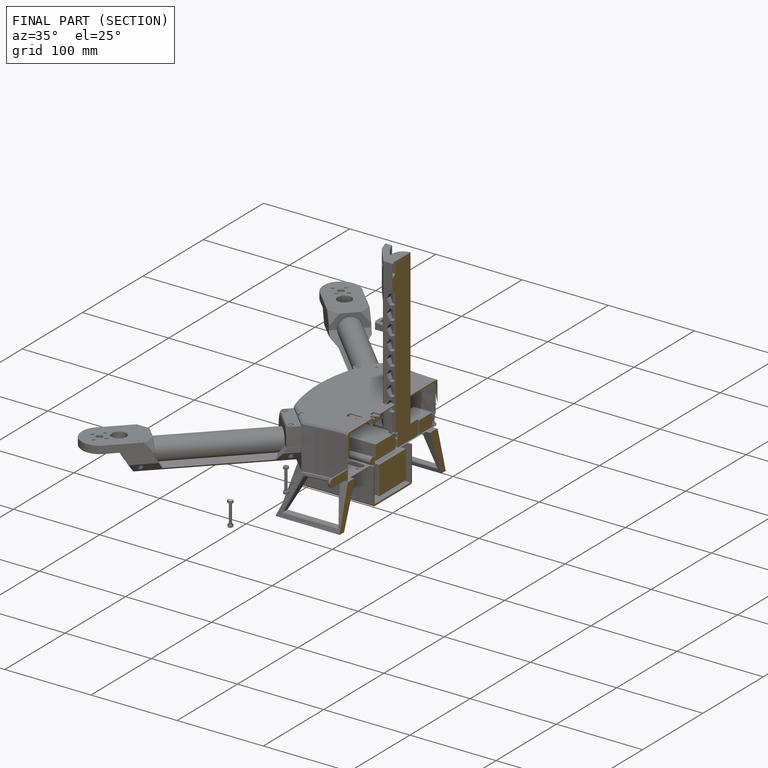
[diagram: finished part — half-section view (interior)]
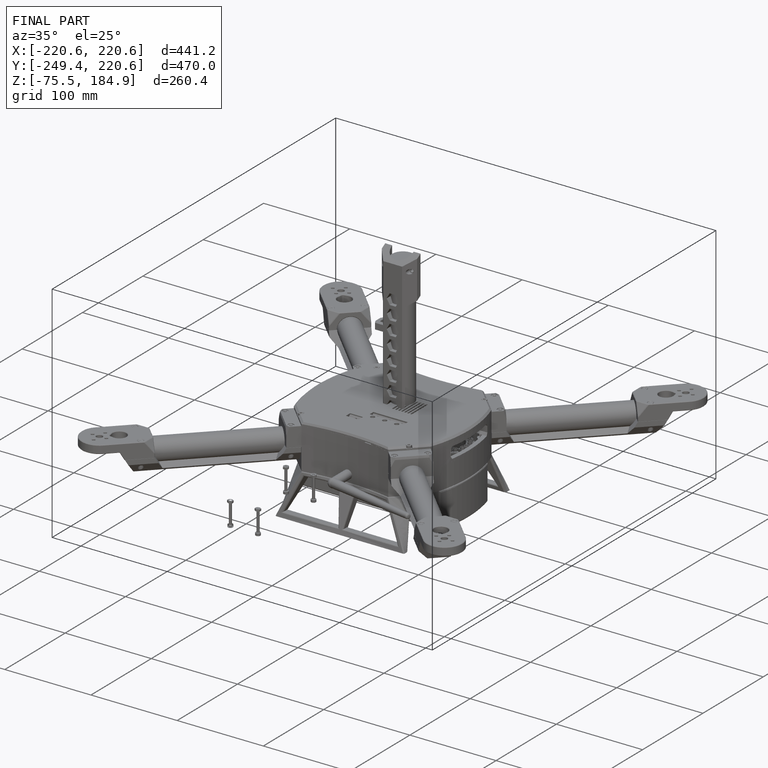
[diagram: finished part — iso view with bounding-box wireframe]
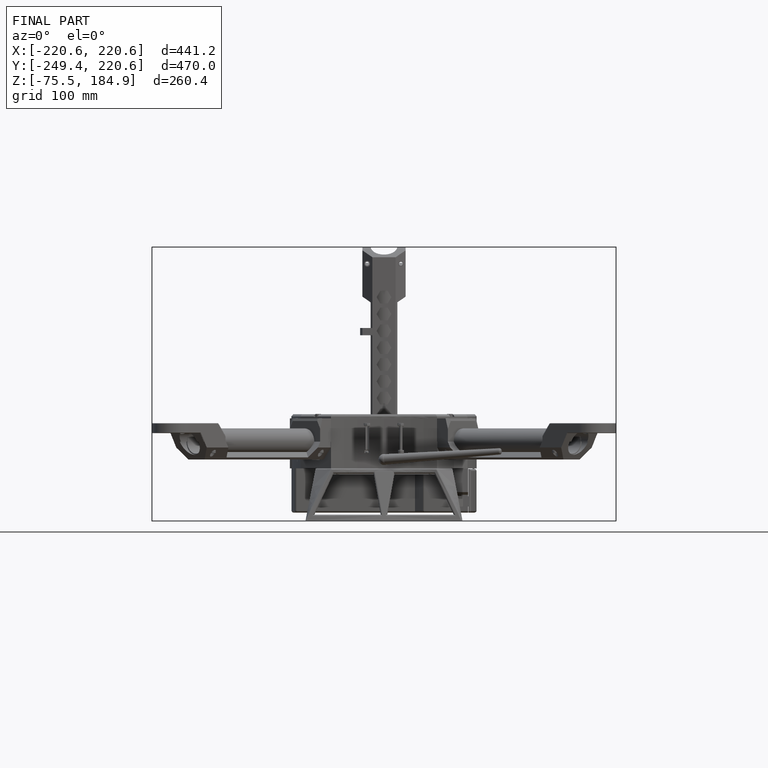
[diagram: finished part — front view with bounding-box wireframe]
